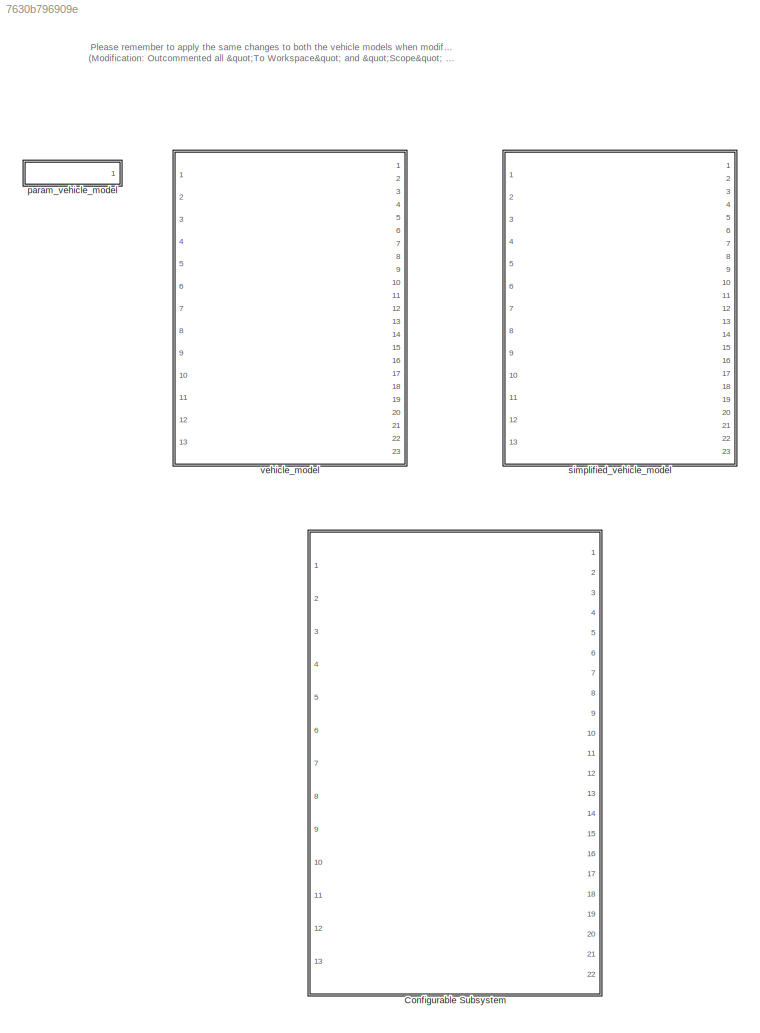
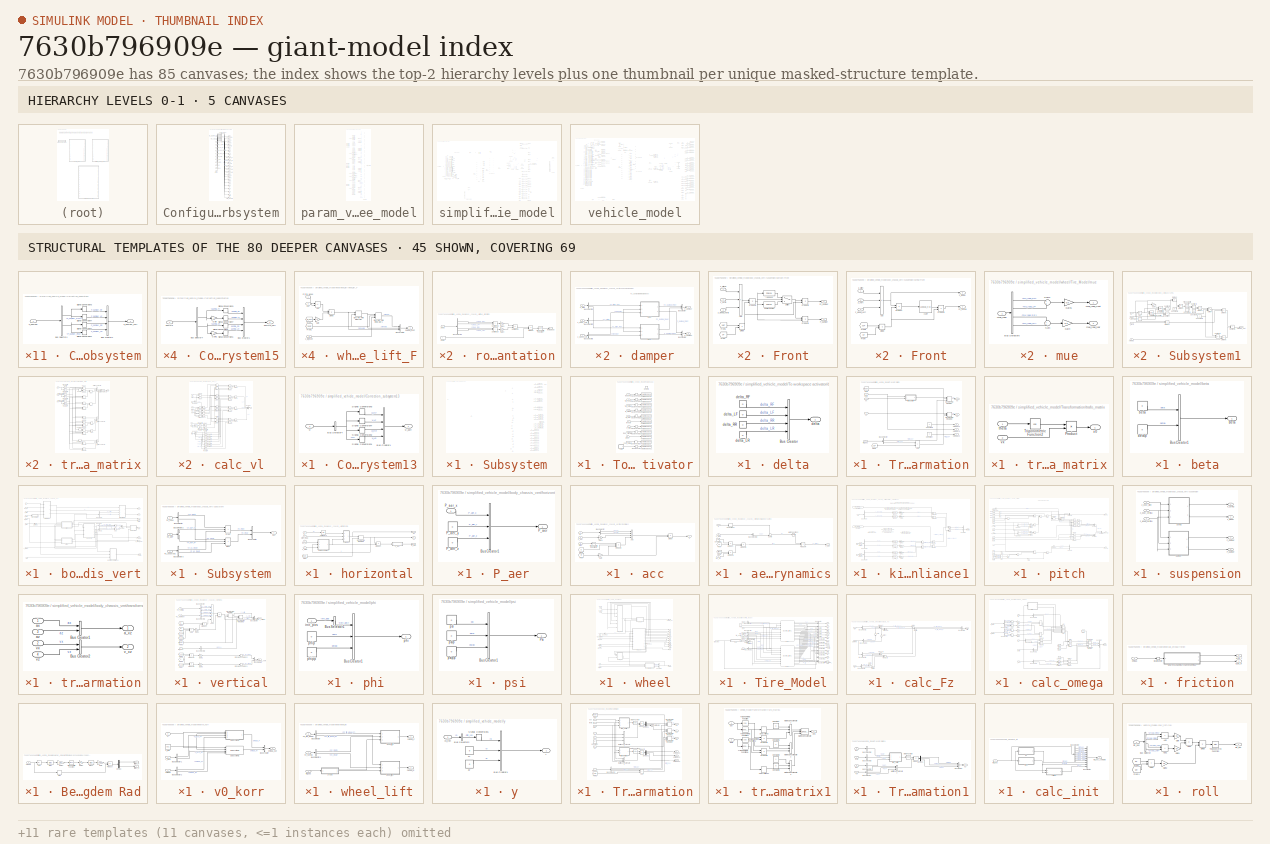
[diagram: thumbnail index - top-2 hierarchy levels (5 canvases) + 45 structural-template representatives of the remaining 80 canvases]
MODEL slx_7630b796909e
KIND library
CONFIG AbsTol = auto
CONFIG EnableMultiTasking = on
CONFIG FixedStep = auto
CONFIG MaxStep = auto
CONFIG MinStep = auto
CONFIG RelTol = 1e-3
CONFIG SampleTimeConstraint = Unconstrained
CONFIG SolverName = ode45
CONFIG StartTime = 0.0
CONFIG StopTime = 10.0
BLOCK [SubSystem] Configurable Subsystem
  BlockChoice = vehicle_model
  MemberBlocks = simplified_vehicle_model,vehicle_model
  Ports = [13, 22]
  RequestExecContextInheritance = off
  TemplateBlock = self
BLOCK [Inport] Configurable Subsystem/ENV_rho_air
  Port = 5
BLOCK [Inport] Configurable Subsystem/ENV_road_mu
  Port = 7
BLOCK [Inport] Configurable Subsystem/ENV_road_orientation
  Port = 6
BLOCK [Inport] Configurable Subsystem/ENV_v_wind
  Port = 4
BLOCK [Outport] Configurable Subsystem/F0
  Port = 20
  VectorParamsAs1DForOutWhenUnconnected = off
BLOCK [Inport] Configurable Subsystem/FZG_Parameter
  Port = 3
BLOCK [Outport] Configurable Subsystem/FZG_beta
  Port = 10
  VectorParamsAs1DForOutWhenUnconnected = off
BLOCK [Inport] Configurable Subsystem/FZG_delta
  Port = 8
BLOCK [Outport] Configurable Subsystem/FZG_omega
  VectorParamsAs1DForOutWhenUnconnected = off
BLOCK [Outport] Configurable Subsystem/FZG_phi
  Port = 2
  VectorParamsAs1DForOutWhenUnconnected = off
BLOCK [Outport] Configurable Subsystem/FZG_psi
  Port = 3
  VectorParamsAs1DForOutWhenUnconnected = off
BLOCK [Outport] Configurable Subsystem/FZG_rot_0
  Port = 14
  VectorParamsAs1DForOutWhenUnconnected = off
BLOCK [Outport] Configurable Subsystem/FZG_theta
  Port = 4
  VectorParamsAs1DForOutWhenUnconnected = off
BLOCK [Outport] Configurable Subsystem/FZG_wheel_Fl
  Port = 8
  VectorParamsAs1DForOutWhenUnconnected = off
BLOCK [Outport] Configurable Subsystem/FZG_wheel_Fs
  Port = 11
  VectorParamsAs1DForOutWhenUnconnected = off
BLOCK [Outport] Configurable Subsystem/FZG_wheel_Mh
  Port = 13
  VectorParamsAs1DForOutWhenUnconnected = off
BLOCK [Outport] Configurable Subsystem/FZG_wheel_Ml
  Port = 9
  VectorParamsAs1DForOutWhenUnconnected = off
BLOCK [Outport] Configurable Subsystem/FZG_wheel_Ms
  Port = 12
  VectorParamsAs1DForOutWhenUnconnected = off
BLOCK [Outport] Configurable Subsystem/FZG_x
  Port = 5
  VectorParamsAs1DForOutWhenUnconnected = off
BLOCK [Outport] Configurable Subsystem/FZG_y
  Port = 6
  VectorParamsAs1DForOutWhenUnconnected = off
BLOCK [Outport] Configurable Subsystem/FZG_z
  Port = 7
  VectorParamsAs1DForOutWhenUnconnected = off
BLOCK [Outport] Configurable Subsystem/Fz
  Port = 18
  VectorParamsAs1DForOutWhenUnconnected = off
BLOCK [Inport] Configurable Subsystem/M_antr
  Port = 9
BLOCK [Inport] Configurable Subsystem/M_brems
  Port = 10
BLOCK [Inport] Configurable Subsystem/TIR_parameter
BLOCK [Inport] Configurable Subsystem/TIR_scale
  Port = 2
BLOCK [Inport] Configurable Subsystem/delta_h
  Port = 13
BLOCK [Outport] Configurable Subsystem/delta_kinematic
  Port = 22
BLOCK [Inport] Configurable Subsystem/init_pos
  Port = 12
BLOCK [Outport] Configurable Subsystem/kappa
  Port = 16
  VectorParamsAs1DForOutWhenUnconnected = off
BLOCK [Outport] Configurable Subsystem/r_dyn
  Port = 17
  VectorParamsAs1DForOutWhenUnconnected = off
BLOCK [Outport] Configurable Subsystem/r_stat
  Port = 21
  VectorParamsAs1DForOutWhenUnconnected = off
BLOCK [Inport] Configurable Subsystem/reset
  Port = 11
BLOCK [Reference] Configurable Subsystem/vehicle_model  REF=$bdroot/vehicle_model
  Ports = [13, 23]
  SourceBlock = $bdroot/vehicle_model
  SourceType = SubSystem
BLOCK [Outport] Configurable Subsystem/vl
  Port = 19
  VectorParamsAs1DForOutWhenUnconnected = off
BLOCK [Outport] Configurable Subsystem/z_wheel
  Port = 15
  VectorParamsAs1DForOutWhenUnconnected = off
BLOCK [SubSystem] param_vehicle_model
  Ports = [0, 1]
  RequestExecContextInheritance = off
BLOCK [BusCreator] param_vehicle_model/Bus Creator
  DisplayOption = bar
  InheritFromInputs = on
  Inputs = 49
  Ports = [49, 1]
BLOCK [Constant] param_vehicle_model/Constant
  Value = par_VEH.m
BLOCK [Constant] param_vehicle_model/Constant1
  Value = par_VEH.cz
BLOCK [Constant] param_vehicle_model/Constant10
  Value = par_VEH.sF
BLOCK [Constant] param_vehicle_model/Constant11
  Value = par_VEH.sR
BLOCK [Constant] param_vehicle_model/Constant12
  Value = par_VEH.ssF
BLOCK [Constant] param_vehicle_model/Constant13
  Value = par_VEH.ssR
BLOCK [Constant] param_vehicle_model/Constant16
  Value = par_VEH.sdF
BLOCK [Constant] param_vehicle_model/Constant17
  Value = par_VEH.sdR
BLOCK [Constant] param_vehicle_model/Constant20
  Value = par_VEH.carbF
BLOCK [Constant] param_vehicle_model/Constant21
  Value = par_VEH.carbR
BLOCK [Constant] param_vehicle_model/Constant22
  Value = par_VEH.sDP
BLOCK [Constant] param_vehicle_model/Constant23
  Value = par_VEH.lDP
BLOCK [Constant] param_vehicle_model/Constant24
  Value = par_VEH.lF
BLOCK [Constant] param_vehicle_model/Constant25
  Value = par_VEH.lR
BLOCK [Constant] param_vehicle_model/Constant28
  Value = par_VEH.g
BLOCK [Constant] param_vehicle_model/Constant29
  Value = par_VEH.Iwf
BLOCK [Constant] param_vehicle_model/Constant3
  Value = par_VEH.Ix
BLOCK [Constant] param_vehicle_model/Constant30
  Value = par_VEH.Iwr
BLOCK [Constant] param_vehicle_model/Constant31
  Value = par_VEH.cx
BLOCK [Constant] param_vehicle_model/Constant32
  Value = par_VEH.Afront
BLOCK [Constant] param_vehicle_model/Constant34
  Value = par_VEH.cy
BLOCK [Constant] param_vehicle_model/Constant37
  Value = par_VEH.m_usF
BLOCK [Constant] param_vehicle_model/Constant38
  Value = par_VEH.m_usR
BLOCK [Constant] param_vehicle_model/Constant4
  Value = par_VEH.Iy
BLOCK [Constant] param_vehicle_model/Constant41
  Value = par_VEH.zRC
BLOCK [Constant] param_vehicle_model/Constant42
  Value = par_VEH.zRCf
BLOCK [Constant] param_vehicle_model/Constant43
  Value = par_VEH.zRCr
BLOCK [Constant] param_vehicle_model/Constant44
  Value = par_VEH.zPC
BLOCK [Constant] param_vehicle_model/Constant47
  Value = par_VEH.sarbF
BLOCK [Constant] param_vehicle_model/Constant48
  Value = par_VEH.sarbR
BLOCK [Constant] param_vehicle_model/Constant49
  Value = par_VEH.sw_kinematics
BLOCK [Constant] param_vehicle_model/Constant5
  Value = par_VEH.Iz
BLOCK [Constant] param_vehicle_model/Constant50
  Value = par_VEH.sw_compliance
BLOCK [Constant] param_vehicle_model/Constant6
  Value = par_VEH.xSP
BLOCK [Constant] param_vehicle_model/Constant7
  Value = par_VEH.ySP
BLOCK [Constant] param_vehicle_model/Constant8
  Value = par_VEH.zSP
BLOCK [Constant] param_vehicle_model/Constant9
  Value = par_VEH.l
BLOCK [Outport] param_vehicle_model/FZG_parameter
  VectorParamsAs1DForOutWhenUnconnected = off
BLOCK [Ground] param_vehicle_model/Ground1
BLOCK [Ground] param_vehicle_model/Ground10
BLOCK [Ground] param_vehicle_model/Ground2
BLOCK [Ground] param_vehicle_model/Ground3
BLOCK [Ground] param_vehicle_model/Ground4
BLOCK [Ground] param_vehicle_model/Ground5
BLOCK [Ground] param_vehicle_model/Ground6
BLOCK [Ground] param_vehicle_model/Ground7
BLOCK [Ground] param_vehicle_model/Ground77
BLOCK [Ground] param_vehicle_model/Ground78
BLOCK [Ground] param_vehicle_model/Ground8
BLOCK [Ground] param_vehicle_model/Ground9
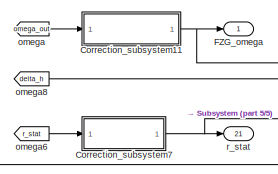
[diagram: simplified_vehicle_model - part 1/5, top right region]
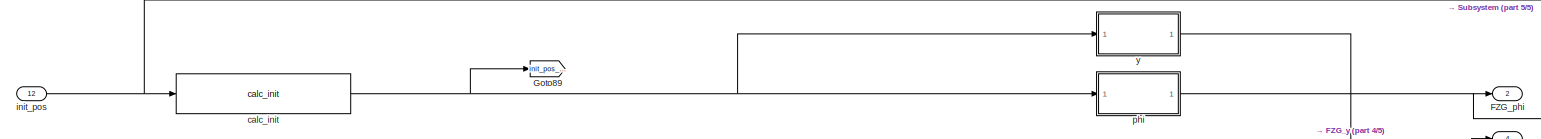
[diagram: simplified_vehicle_model - part 2/5, top center region]
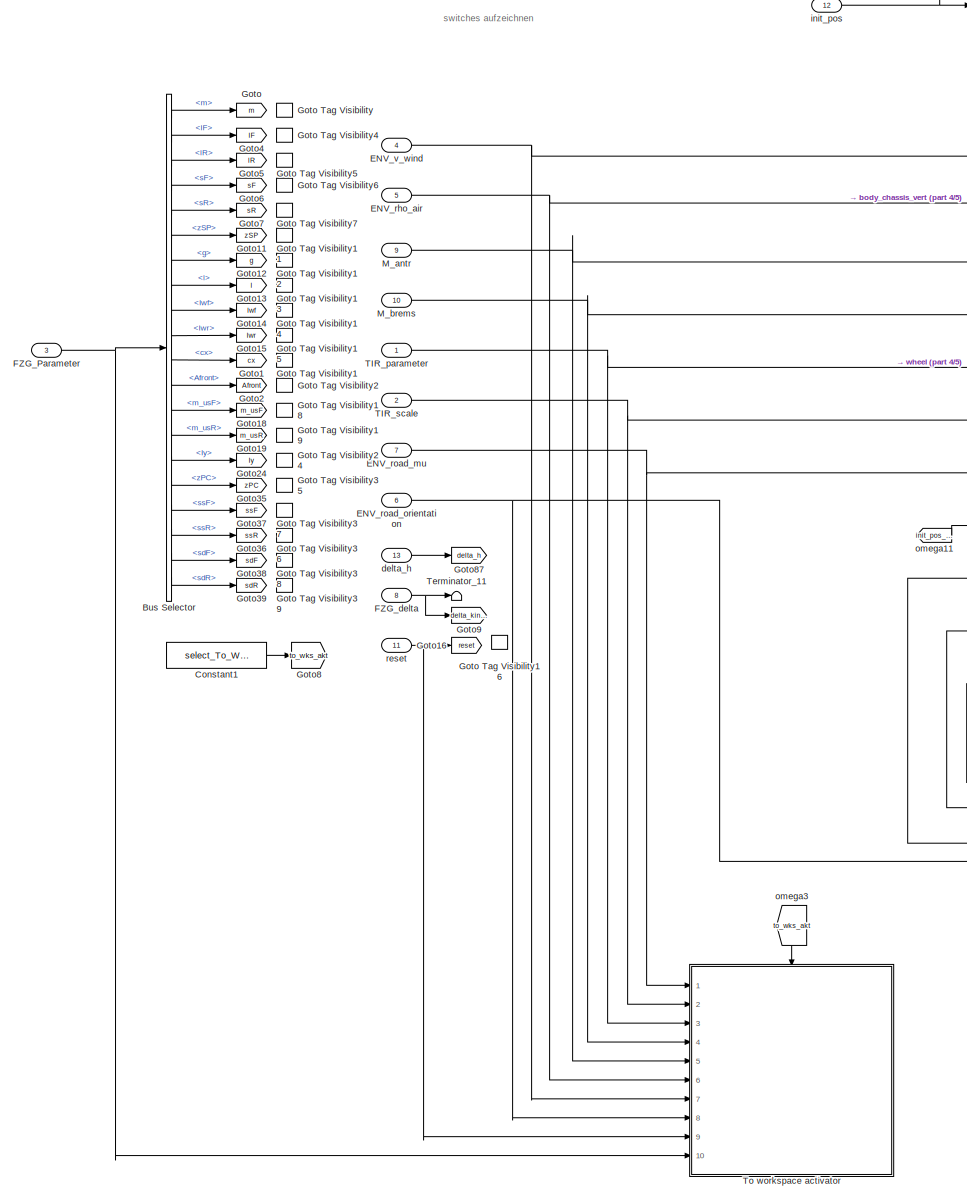
[diagram: simplified_vehicle_model - part 3/5, left side, full height]
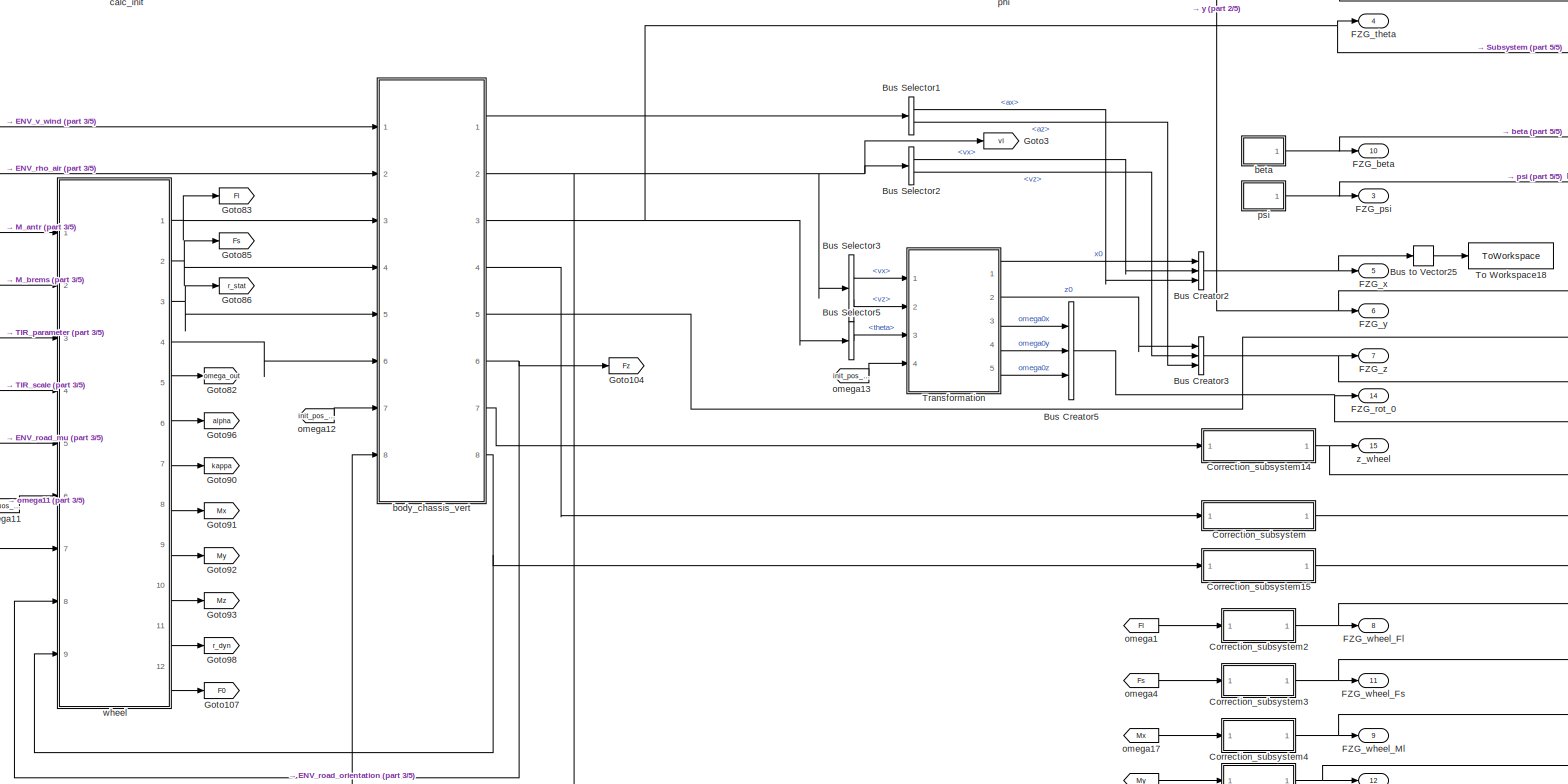
[diagram: simplified_vehicle_model - part 4/5, central region]
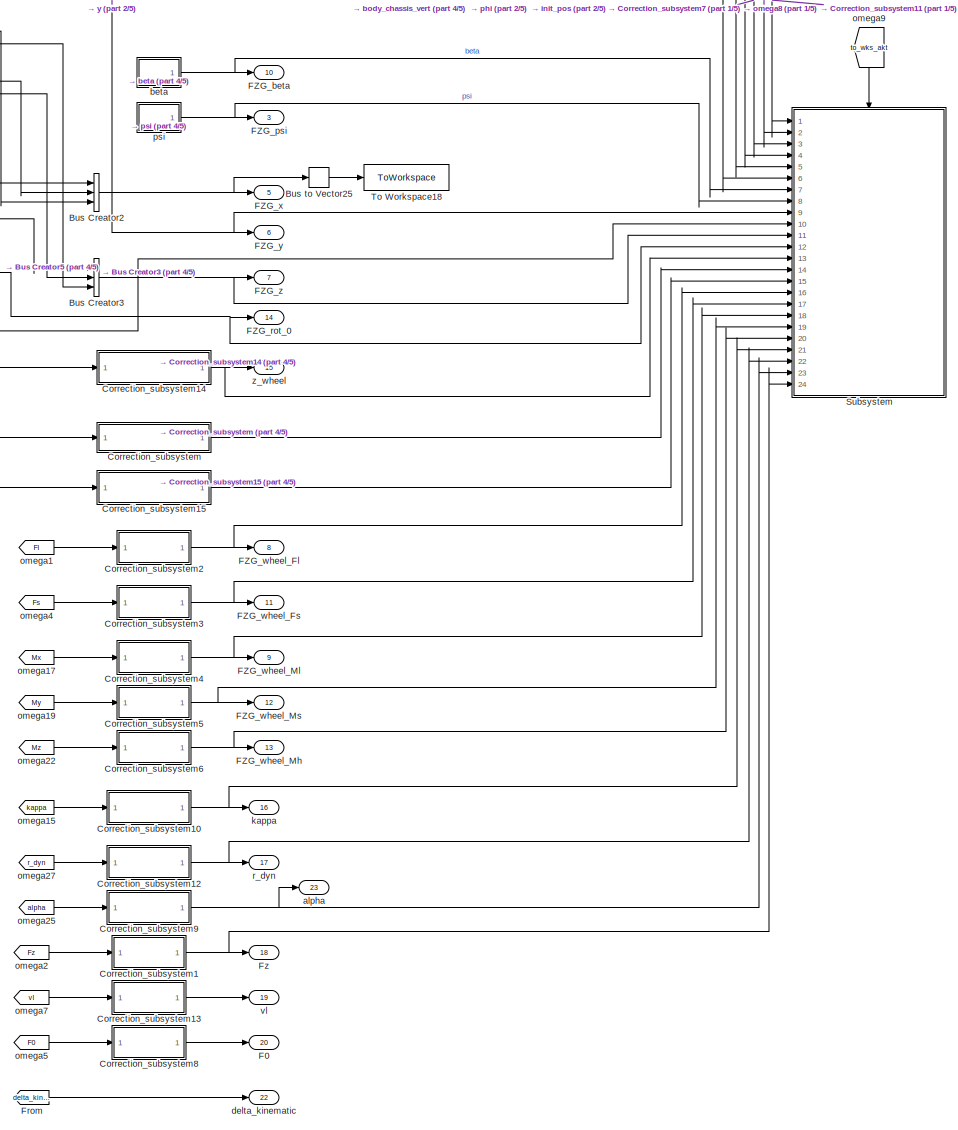
[diagram: simplified_vehicle_model - part 5/5, right side, full height]
BLOCK [SubSystem] simplified_vehicle_model
  MinAlgLoopOccurrences = on
  Ports = [13, 23]
  RequestExecContextInheritance = off
  SystemSampleTime = stepsize
  TreatAsAtomicUnit = on
BLOCK [BusCreator] simplified_vehicle_model/Bus Creator2
  DisplayOption = bar
  InheritFromInputs = on
  Inputs = 3
  Ports = [3, 1]
BLOCK [BusCreator] simplified_vehicle_model/Bus Creator3
  DisplayOption = bar
  InheritFromInputs = on
  Inputs = 3
  Ports = [3, 1]
BLOCK [BusCreator] simplified_vehicle_model/Bus Creator5
  DisplayOption = bar
  InheritFromInputs = on
  Inputs = 3
  Ports = [3, 1]
BLOCK [BusSelector] simplified_vehicle_model/Bus Selector
  OutputSignals = m,lF,lR,sF,sR,zSP,g,l,Iwf,Iwr,cx,Afront,m_usF,m_usR,Iy,zPC,ssF,ssR,sdF,sdR
  Ports = [1, 20]
BLOCK [BusSelector] simplified_vehicle_model/Bus Selector1
  OutputSignals = ax,az
  Ports = [1, 2]
BLOCK [BusSelector] simplified_vehicle_model/Bus Selector2
  OutputSignals = vx,vz
  Ports = [1, 2]
BLOCK [BusSelector] simplified_vehicle_model/Bus Selector3
  OutputSignals = vx,vz
  Ports = [1, 2]
BLOCK [BusSelector] simplified_vehicle_model/Bus Selector5
  OutputSignals = theta
  Ports = [1, 1]
BLOCK [BusToVector] simplified_vehicle_model/Bus to Vector25
BLOCK [Constant] simplified_vehicle_model/Constant1
  Value = select_To_Wks_akt
BLOCK [SubSystem] simplified_vehicle_model/Correction_subsystem
  Ports = [1, 1]
  RequestExecContextInheritance = off
BLOCK [BusCreator] simplified_vehicle_model/Correction_subsystem/Bus Creator1
  DisplayOption = bar
  InheritFromInputs = on
  Inputs = 4
  Ports = [4, 1]
BLOCK [BusSelector] simplified_vehicle_model/Correction_subsystem/Bus Selector4
  OutputSignals = P_damper_Front,P_damper_Rear
  Ports = [1, 2]
BLOCK [Inport] simplified_vehicle_model/Correction_subsystem/P_damper
BLOCK [Outport] simplified_vehicle_model/Correction_subsystem/P_damper_korr
  VectorParamsAs1DForOutWhenUnconnected = off
BLOCK [SignalConversion] simplified_vehicle_model/Correction_subsystem/Signal Conversion1
  OverrideOpt = off
BLOCK [SignalConversion] simplified_vehicle_model/Correction_subsystem/Signal Conversion2
  OverrideOpt = off
BLOCK [SignalConversion] simplified_vehicle_model/Correction_subsystem/Signal Conversion3
  OverrideOpt = off
BLOCK [SignalConversion] simplified_vehicle_model/Correction_subsystem/Signal Conversion7
  OverrideOpt = off
BLOCK [SubSystem] simplified_vehicle_model/Correction_subsystem1
  Ports = [1, 1]
  RequestExecContextInheritance = off
BLOCK [BusCreator] simplified_vehicle_model/Correction_subsystem1/Bus Creator1
  DisplayOption = bar
  InheritFromInputs = on
  Inputs = 4
  Ports = [4, 1]
BLOCK [BusSelector] simplified_vehicle_model/Correction_subsystem1/Bus Selector4
  OutputSignals = Fz_Front,Fz_Rear
  Ports = [1, 2]
BLOCK [Inport] simplified_vehicle_model/Correction_subsystem1/Fz
BLOCK [Outport] simplified_vehicle_model/Correction_subsystem1/Fz_korr
  VectorParamsAs1DForOutWhenUnconnected = off
BLOCK [SignalConversion] simplified_vehicle_model/Correction_subsystem1/Signal Conversion1
  OverrideOpt = off
BLOCK [SignalConversion] simplified_vehicle_model/Correction_subsystem1/Signal Conversion2
  OverrideOpt = off
BLOCK [SignalConversion] simplified_vehicle_model/Correction_subsystem1/Signal Conversion3
  OverrideOpt = off
BLOCK [SignalConversion] simplified_vehicle_model/Correction_subsystem1/Signal Conversion7
  OverrideOpt = off
BLOCK [SubSystem] simplified_vehicle_model/Correction_subsystem10
  Ports = [1, 1]
  RequestExecContextInheritance = off
BLOCK [BusCreator] simplified_vehicle_model/Correction_subsystem10/Bus Creator1
  DisplayOption = bar
  InheritFromInputs = on
  Inputs = 4
  Ports = [4, 1]
BLOCK [BusSelector] simplified_vehicle_model/Correction_subsystem10/Bus Selector4
  OutputSignals = kappa_F,kappa_R
  Ports = [1, 2]
BLOCK [SignalConversion] simplified_vehicle_model/Correction_subsystem10/Signal Conversion1
  OverrideOpt = off
BLOCK [SignalConversion] simplified_vehicle_model/Correction_subsystem10/Signal Conversion2
  OverrideOpt = off
BLOCK [SignalConversion] simplified_vehicle_model/Correction_subsystem10/Signal Conversion3
  OverrideOpt = off
BLOCK [SignalConversion] simplified_vehicle_model/Correction_subsystem10/Signal Conversion7
  OverrideOpt = off
BLOCK [Inport] simplified_vehicle_model/Correction_subsystem10/kappa
BLOCK [Outport] simplified_vehicle_model/Correction_subsystem10/kappa_korr
  VectorParamsAs1DForOutWhenUnconnected = off
BLOCK [SubSystem] simplified_vehicle_model/Correction_subsystem11
  Ports = [1, 1]
  RequestExecContextInheritance = off
BLOCK [BusCreator] simplified_vehicle_model/Correction_subsystem11/Bus Creator1
  DisplayOption = bar
  InheritFromInputs = on
  Inputs = 4
  Ports = [4, 1]
BLOCK [BusSelector] simplified_vehicle_model/Correction_subsystem11/Bus Selector4
  OutputSignals = omega_F,omega_R
  Ports = [1, 2]
BLOCK [SignalConversion] simplified_vehicle_model/Correction_subsystem11/Signal Conversion1
  OverrideOpt = off
BLOCK [SignalConversion] simplified_vehicle_model/Correction_subsystem11/Signal Conversion2
  OverrideOpt = off
BLOCK [SignalConversion] simplified_vehicle_model/Correction_subsystem11/Signal Conversion3
  OverrideOpt = off
BLOCK [SignalConversion] simplified_vehicle_model/Correction_subsystem11/Signal Conversion7
  OverrideOpt = off
BLOCK [Inport] simplified_vehicle_model/Correction_subsystem11/omega
BLOCK [Outport] simplified_vehicle_model/Correction_subsystem11/omega_korr
  VectorParamsAs1DForOutWhenUnconnected = off
BLOCK [SubSystem] simplified_vehicle_model/Correction_subsystem12
  Ports = [1, 1]
  RequestExecContextInheritance = off
BLOCK [BusCreator] simplified_vehicle_model/Correction_subsystem12/Bus Creator1
  DisplayOption = bar
  InheritFromInputs = on
  Inputs = 4
  Ports = [4, 1]
BLOCK [BusSelector] simplified_vehicle_model/Correction_subsystem12/Bus Selector4
  OutputSignals = r_dyn_F,r_dyn_R
  Ports = [1, 2]
BLOCK [SignalConversion] simplified_vehicle_model/Correction_subsystem12/Signal Conversion1
  OverrideOpt = off
BLOCK [SignalConversion] simplified_vehicle_model/Correction_subsystem12/Signal Conversion2
  OverrideOpt = off
BLOCK [SignalConversion] simplified_vehicle_model/Correction_subsystem12/Signal Conversion3
  OverrideOpt = off
BLOCK [SignalConversion] simplified_vehicle_model/Correction_subsystem12/Signal Conversion7
  OverrideOpt = off
BLOCK [Inport] simplified_vehicle_model/Correction_subsystem12/r_dyn
BLOCK [Outport] simplified_vehicle_model/Correction_subsystem12/r_dyn_korr
  VectorParamsAs1DForOutWhenUnconnected = off
BLOCK [SubSystem] simplified_vehicle_model/Correction_subsystem13
  Ports = [1, 1]
  RequestExecContextInheritance = off
BLOCK [BusCreator] simplified_vehicle_model/Correction_subsystem13/Bus Creator1
  DisplayOption = bar
  InheritFromInputs = on
  Inputs = 4
  Ports = [4, 1]
BLOCK [BusSelector] simplified_vehicle_model/Correction_subsystem13/Bus Selector4
  OutputSignals = vx
  Ports = [1, 1]
BLOCK [SignalConversion] simplified_vehicle_model/Correction_subsystem13/Signal Conversion1
  OverrideOpt = off
BLOCK [SignalConversion] simplified_vehicle_model/Correction_subsystem13/Signal Conversion2
  OverrideOpt = off
BLOCK [SignalConversion] simplified_vehicle_model/Correction_subsystem13/Signal Conversion3
  OverrideOpt = off
BLOCK [SignalConversion] simplified_vehicle_model/Correction_subsystem13/Signal Conversion7
  OverrideOpt = off
BLOCK [Inport] simplified_vehicle_model/Correction_subsystem13/vl
BLOCK [Outport] simplified_vehicle_model/Correction_subsystem13/vl_korr
  VectorParamsAs1DForOutWhenUnconnected = off
BLOCK [SubSystem] simplified_vehicle_model/Correction_subsystem14
  Ports = [1, 1]
  RequestExecContextInheritance = off
BLOCK [BusCreator] simplified_vehicle_model/Correction_subsystem14/Bus Creator1
  DisplayOption = bar
  InheritFromInputs = on
  Inputs = 4
  Ports = [4, 1]
BLOCK [BusSelector] simplified_vehicle_model/Correction_subsystem14/Bus Selector4
  OutputSignals = z_wheel_Front,z_wheel_Rear
  Ports = [1, 2]
BLOCK [SignalConversion] simplified_vehicle_model/Correction_subsystem14/Signal Conversion1
  OverrideOpt = off
BLOCK [SignalConversion] simplified_vehicle_model/Correction_subsystem14/Signal Conversion2
  OverrideOpt = off
BLOCK [SignalConversion] simplified_vehicle_model/Correction_subsystem14/Signal Conversion3
  OverrideOpt = off
BLOCK [SignalConversion] simplified_vehicle_model/Correction_subsystem14/Signal Conversion7
  OverrideOpt = off
BLOCK [Inport] simplified_vehicle_model/Correction_subsystem14/z_wheel
BLOCK [Outport] simplified_vehicle_model/Correction_subsystem14/z_wheel_korr
  VectorParamsAs1DForOutWhenUnconnected = off
BLOCK [SubSystem] simplified_vehicle_model/Correction_subsystem15
  Ports = [1, 1]
  RequestExecContextInheritance = off
BLOCK [BusCreator] simplified_vehicle_model/Correction_subsystem15/Bus Creator1
  DisplayOption = bar
  InheritFromInputs = on
  Inputs = 4
  Ports = [4, 1]
BLOCK [BusSelector] simplified_vehicle_model/Correction_subsystem15/Bus Selector4
  OutputSignals = gamma_F,gamma_R
  Ports = [1, 2]
BLOCK [Gain] simplified_vehicle_model/Correction_subsystem15/Gain
  Gain = -1
BLOCK [Gain] simplified_vehicle_model/Correction_subsystem15/Gain1
  Gain = -1
BLOCK [SignalConversion] simplified_vehicle_model/Correction_subsystem15/Signal Conversion1
  OverrideOpt = off
BLOCK [SignalConversion] simplified_vehicle_model/Correction_subsystem15/Signal Conversion2
  OverrideOpt = off
BLOCK [SignalConversion] simplified_vehicle_model/Correction_subsystem15/Signal Conversion3
  OverrideOpt = off
BLOCK [SignalConversion] simplified_vehicle_model/Correction_subsystem15/Signal Conversion7
  OverrideOpt = off
BLOCK [Inport] simplified_vehicle_model/Correction_subsystem15/gamma
BLOCK [Outport] simplified_vehicle_model/Correction_subsystem15/gamma_korr
  VectorParamsAs1DForOutWhenUnconnected = off
BLOCK [SubSystem] simplified_vehicle_model/Correction_subsystem2
  Ports = [1, 1]
  RequestExecContextInheritance = off
BLOCK [BusCreator] simplified_vehicle_model/Correction_subsystem2/Bus Creator1
  DisplayOption = bar
  InheritFromInputs = on
  Inputs = 4
  Ports = [4, 1]
BLOCK [BusSelector] simplified_vehicle_model/Correction_subsystem2/Bus Selector4
  OutputSignals = Fl_F,Fl_R
  Ports = [1, 2]
BLOCK [Inport] simplified_vehicle_model/Correction_subsystem2/Fl
BLOCK [Outport] simplified_vehicle_model/Correction_subsystem2/Fl_korr
  VectorParamsAs1DForOutWhenUnconnected = off
BLOCK [SignalConversion] simplified_vehicle_model/Correction_subsystem2/Signal Conversion1
  OverrideOpt = off
BLOCK [SignalConversion] simplified_vehicle_model/Correction_subsystem2/Signal Conversion2
  OverrideOpt = off
BLOCK [SignalConversion] simplified_vehicle_model/Correction_subsystem2/Signal Conversion3
  OverrideOpt = off
BLOCK [SignalConversion] simplified_vehicle_model/Correction_subsystem2/Signal Conversion7
  OverrideOpt = off
BLOCK [SubSystem] simplified_vehicle_model/Correction_subsystem3
  Ports = [1, 1]
  RequestExecContextInheritance = off
BLOCK [BusCreator] simplified_vehicle_model/Correction_subsystem3/Bus Creator1
  DisplayOption = bar
  InheritFromInputs = on
  Inputs = 4
  Ports = [4, 1]
BLOCK [BusSelector] simplified_vehicle_model/Correction_subsystem3/Bus Selector4
  OutputSignals = Fs_F,Fs_R
  Ports = [1, 2]
BLOCK [Inport] simplified_vehicle_model/Correction_subsystem3/Fs
BLOCK [Outport] simplified_vehicle_model/Correction_subsystem3/Fs_korr
  VectorParamsAs1DForOutWhenUnconnected = off
BLOCK [Gain] simplified_vehicle_model/Correction_subsystem3/Gain
  Gain = -1
BLOCK [Gain] simplified_vehicle_model/Correction_subsystem3/Gain1
  Gain = -1
BLOCK [SignalConversion] simplified_vehicle_model/Correction_subsystem3/Signal Conversion1
  OverrideOpt = off
BLOCK [SignalConversion] simplified_vehicle_model/Correction_subsystem3/Signal Conversion2
  OverrideOpt = off
BLOCK [SignalConversion] simplified_vehicle_model/Correction_subsystem3/Signal Conversion3
  OverrideOpt = off
BLOCK [SignalConversion] simplified_vehicle_model/Correction_subsystem3/Signal Conversion7
  OverrideOpt = off
BLOCK [SubSystem] simplified_vehicle_model/Correction_subsystem4
  Ports = [1, 1]
  RequestExecContextInheritance = off
BLOCK [BusCreator] simplified_vehicle_model/Correction_subsystem4/Bus Creator1
  DisplayOption = bar
  InheritFromInputs = on
  Inputs = 4
  Ports = [4, 1]
BLOCK [BusSelector] simplified_vehicle_model/Correction_subsystem4/Bus Selector4
  OutputSignals = Ml_F,Ml_R
  Ports = [1, 2]
BLOCK [Gain] simplified_vehicle_model/Correction_subsystem4/Gain
  Gain = -1
BLOCK [Gain] simplified_vehicle_model/Correction_subsystem4/Gain1
  Gain = -1
BLOCK [Inport] simplified_vehicle_model/Correction_subsystem4/Mx
BLOCK [Outport] simplified_vehicle_model/Correction_subsystem4/Mx_korr
  VectorParamsAs1DForOutWhenUnconnected = off
BLOCK [SignalConversion] simplified_vehicle_model/Correction_subsystem4/Signal Conversion1
  OverrideOpt = off
BLOCK [SignalConversion] simplified_vehicle_model/Correction_subsystem4/Signal Conversion2
  OverrideOpt = off
BLOCK [SignalConversion] simplified_vehicle_model/Correction_subsystem4/Signal Conversion3
  OverrideOpt = off
BLOCK [SignalConversion] simplified_vehicle_model/Correction_subsystem4/Signal Conversion7
  OverrideOpt = off
BLOCK [SubSystem] simplified_vehicle_model/Correction_subsystem5
  Ports = [1, 1]
  RequestExecContextInheritance = off
BLOCK [BusCreator] simplified_vehicle_model/Correction_subsystem5/Bus Creator1
  DisplayOption = bar
  InheritFromInputs = on
  Inputs = 4
  Ports = [4, 1]
BLOCK [BusSelector] simplified_vehicle_model/Correction_subsystem5/Bus Selector4
  OutputSignals = Ms_F,Ms_R
  Ports = [1, 2]
BLOCK [Inport] simplified_vehicle_model/Correction_subsystem5/My
BLOCK [Outport] simplified_vehicle_model/Correction_subsystem5/My_korr
  VectorParamsAs1DForOutWhenUnconnected = off
BLOCK [SignalConversion] simplified_vehicle_model/Correction_subsystem5/Signal Conversion1
  OverrideOpt = off
BLOCK [SignalConversion] simplified_vehicle_model/Correction_subsystem5/Signal Conversion2
  OverrideOpt = off
BLOCK [SignalConversion] simplified_vehicle_model/Correction_subsystem5/Signal Conversion3
  OverrideOpt = off
BLOCK [SignalConversion] simplified_vehicle_model/Correction_subsystem5/Signal Conversion7
  OverrideOpt = off
BLOCK [SubSystem] simplified_vehicle_model/Correction_subsystem6
  Ports = [1, 1]
  RequestExecContextInheritance = off
BLOCK [BusCreator] simplified_vehicle_model/Correction_subsystem6/Bus Creator1
  DisplayOption = bar
  InheritFromInputs = on
  Inputs = 4
  Ports = [4, 1]
BLOCK [BusSelector] simplified_vehicle_model/Correction_subsystem6/Bus Selector4
  OutputSignals = Mv_F,Mv_R
  Ports = [1, 2]
BLOCK [Gain] simplified_vehicle_model/Correction_subsystem6/Gain
  Gain = -1
BLOCK [Gain] simplified_vehicle_model/Correction_subsystem6/Gain1
  Gain = -1
BLOCK [Inport] simplified_vehicle_model/Correction_subsystem6/Mz
BLOCK [Outport] simplified_vehicle_model/Correction_subsystem6/Mz_korr
  VectorParamsAs1DForOutWhenUnconnected = off
BLOCK [SignalConversion] simplified_vehicle_model/Correction_subsystem6/Signal Conversion1
  OverrideOpt = off
BLOCK [SignalConversion] simplified_vehicle_model/Correction_subsystem6/Signal Conversion2
  OverrideOpt = off
BLOCK [SignalConversion] simplified_vehicle_model/Correction_subsystem6/Signal Conversion3
  OverrideOpt = off
BLOCK [SignalConversion] simplified_vehicle_model/Correction_subsystem6/Signal Conversion7
  OverrideOpt = off
BLOCK [SubSystem] simplified_vehicle_model/Correction_subsystem7
  Ports = [1, 1]
  RequestExecContextInheritance = off
BLOCK [BusCreator] simplified_vehicle_model/Correction_subsystem7/Bus Creator1
  DisplayOption = bar
  InheritFromInputs = on
  Inputs = 4
  Ports = [4, 1]
BLOCK [BusSelector] simplified_vehicle_model/Correction_subsystem7/Bus Selector4
  OutputSignals = r_stat_F,r_stat_R
  Ports = [1, 2]
BLOCK [SignalConversion] simplified_vehicle_model/Correction_subsystem7/Signal Conversion1
  OverrideOpt = off
BLOCK [SignalConversion] simplified_vehicle_model/Correction_subsystem7/Signal Conversion2
  OverrideOpt = off
BLOCK [SignalConversion] simplified_vehicle_model/Correction_subsystem7/Signal Conversion3
  OverrideOpt = off
BLOCK [SignalConversion] simplified_vehicle_model/Correction_subsystem7/Signal Conversion7
  OverrideOpt = off
BLOCK [Inport] simplified_vehicle_model/Correction_subsystem7/r_stat
BLOCK [Outport] simplified_vehicle_model/Correction_subsystem7/r_stat_korr
  VectorParamsAs1DForOutWhenUnconnected = off
BLOCK [SubSystem] simplified_vehicle_model/Correction_subsystem8
  Ports = [1, 1]
  RequestExecContextInheritance = off
BLOCK [BusCreator] simplified_vehicle_model/Correction_subsystem8/Bus Creator1
  DisplayOption = bar
  InheritFromInputs = on
  Inputs = 4
  Ports = [4, 1]
BLOCK [BusSelector] simplified_vehicle_model/Correction_subsystem8/Bus Selector4
  OutputSignals = F,R
  Ports = [1, 2]
BLOCK [Inport] simplified_vehicle_model/Correction_subsystem8/F0
BLOCK [Outport] simplified_vehicle_model/Correction_subsystem8/F0_korr
  VectorParamsAs1DForOutWhenUnconnected = off
BLOCK [SignalConversion] simplified_vehicle_model/Correction_subsystem8/Signal Conversion1
  OverrideOpt = off
BLOCK [SignalConversion] simplified_vehicle_model/Correction_subsystem8/Signal Conversion2
  OverrideOpt = off
BLOCK [SignalConversion] simplified_vehicle_model/Correction_subsystem8/Signal Conversion3
  OverrideOpt = off
BLOCK [SignalConversion] simplified_vehicle_model/Correction_subsystem8/Signal Conversion7
  OverrideOpt = off
BLOCK [SubSystem] simplified_vehicle_model/Correction_subsystem9
  Ports = [1, 1]
  RequestExecContextInheritance = off
BLOCK [BusCreator] simplified_vehicle_model/Correction_subsystem9/Bus Creator1
  DisplayOption = bar
  InheritFromInputs = on
  Inputs = 4
  Ports = [4, 1]
BLOCK [BusSelector] simplified_vehicle_model/Correction_subsystem9/Bus Selector4
  OutputSignals = alpha_F,alpha_R
  Ports = [1, 2]
BLOCK [SignalConversion] simplified_vehicle_model/Correction_subsystem9/Signal Conversion1
  OverrideOpt = off
BLOCK [SignalConversion] simplified_vehicle_model/Correction_subsystem9/Signal Conversion2
  OverrideOpt = off
BLOCK [SignalConversion] simplified_vehicle_model/Correction_subsystem9/Signal Conversion3
  OverrideOpt = off
BLOCK [SignalConversion] simplified_vehicle_model/Correction_subsystem9/Signal Conversion7
  OverrideOpt = off
BLOCK [Inport] simplified_vehicle_model/Correction_subsystem9/alpha
BLOCK [Outport] simplified_vehicle_model/Correction_subsystem9/alpha_korr
  VectorParamsAs1DForOutWhenUnconnected = off
BLOCK [Inport] simplified_vehicle_model/ENV_rho_air
  Port = 5
BLOCK [Inport] simplified_vehicle_model/ENV_road_mu
  Port = 7
BLOCK [Inport] simplified_vehicle_model/ENV_road_orientation
  Port = 6
BLOCK [Inport] simplified_vehicle_model/ENV_v_wind
  Port = 4
BLOCK [Outport] simplified_vehicle_model/F0
  Port = 20
  VectorParamsAs1DForOutWhenUnconnected = off
BLOCK [Inport] simplified_vehicle_model/FZG_Parameter
  Port = 3
BLOCK [Outport] simplified_vehicle_model/FZG_beta
  Port = 10
  VectorParamsAs1DForOutWhenUnconnected = off
BLOCK [Inport] simplified_vehicle_model/FZG_delta
  Port = 8
BLOCK [Outport] simplified_vehicle_model/FZG_omega
  VectorParamsAs1DForOutWhenUnconnected = off
BLOCK [Outport] simplified_vehicle_model/FZG_phi
  Port = 2
  VectorParamsAs1DForOutWhenUnconnected = off
BLOCK [Outport] simplified_vehicle_model/FZG_psi
  Port = 3
  VectorParamsAs1DForOutWhenUnconnected = off
BLOCK [Outport] simplified_vehicle_model/FZG_rot_0
  Port = 14
  VectorParamsAs1DForOutWhenUnconnected = off
BLOCK [Outport] simplified_vehicle_model/FZG_theta
  Port = 4
  VectorParamsAs1DForOutWhenUnconnected = off
BLOCK [Outport] simplified_vehicle_model/FZG_wheel_Fl
  Port = 8
  VectorParamsAs1DForOutWhenUnconnected = off
BLOCK [Outport] simplified_vehicle_model/FZG_wheel_Fs
  Port = 11
  VectorParamsAs1DForOutWhenUnconnected = off
BLOCK [Outport] simplified_vehicle_model/FZG_wheel_Mh
  Port = 13
  VectorParamsAs1DForOutWhenUnconnected = off
BLOCK [Outport] simplified_vehicle_model/FZG_wheel_Ml
  Port = 9
  VectorParamsAs1DForOutWhenUnconnected = off
BLOCK [Outport] simplified_vehicle_model/FZG_wheel_Ms
  Port = 12
  VectorParamsAs1DForOutWhenUnconnected = off
BLOCK [Outport] simplified_vehicle_model/FZG_x
  Port = 5
  PortDimensions = 3
  VectorParamsAs1DForOutWhenUnconnected = off
BLOCK [Outport] simplified_vehicle_model/FZG_y
  Port = 6
  VectorParamsAs1DForOutWhenUnconnected = off
BLOCK [Outport] simplified_vehicle_model/FZG_z
  Port = 7
  VectorParamsAs1DForOutWhenUnconnected = off
BLOCK [From] simplified_vehicle_model/From
  GotoTag = delta_kinematic
BLOCK [Outport] simplified_vehicle_model/Fz
  Port = 18
  VectorParamsAs1DForOutWhenUnconnected = off
BLOCK [Goto] simplified_vehicle_model/Goto
  GotoTag = m
  TagVisibility = scoped
BLOCK [GotoTagVisibility] simplified_vehicle_model/Goto Tag Visibility
  GotoTag = m
BLOCK [GotoTagVisibility] simplified_vehicle_model/Goto Tag Visibility1
  GotoTag = cx
BLOCK [GotoTagVisibility] simplified_vehicle_model/Goto Tag Visibility11
  GotoTag = zSP
BLOCK [GotoTagVisibility] simplified_vehicle_model/Goto Tag Visibility12
  GotoTag = g
BLOCK [GotoTagVisibility] simplified_vehicle_model/Goto Tag Visibility13
  GotoTag = l
BLOCK [GotoTagVisibility] simplified_vehicle_model/Goto Tag Visibility14
  GotoTag = Iwf
BLOCK [GotoTagVisibility] simplified_vehicle_model/Goto Tag Visibility15
  GotoTag = Iwr
BLOCK [GotoTagVisibility] simplified_vehicle_model/Goto Tag Visibility16
  GotoTag = reset
BLOCK [GotoTagVisibility] simplified_vehicle_model/Goto Tag Visibility18
  GotoTag = m_usF
BLOCK [GotoTagVisibility] simplified_vehicle_model/Goto Tag Visibility19
  GotoTag = m_usR
BLOCK [GotoTagVisibility] simplified_vehicle_model/Goto Tag Visibility2
  GotoTag = Afront
BLOCK [GotoTagVisibility] simplified_vehicle_model/Goto Tag Visibility24
  GotoTag = Iy
BLOCK [GotoTagVisibility] simplified_vehicle_model/Goto Tag Visibility35
  GotoTag = zPC
BLOCK [GotoTagVisibility] simplified_vehicle_model/Goto Tag Visibility36
  GotoTag = ssR
BLOCK [GotoTagVisibility] simplified_vehicle_model/Goto Tag Visibility37
  GotoTag = ssF
BLOCK [GotoTagVisibility] simplified_vehicle_model/Goto Tag Visibility38
  GotoTag = sdF
BLOCK [GotoTagVisibility] simplified_vehicle_model/Goto Tag Visibility39
  GotoTag = sdR
BLOCK [GotoTagVisibility] simplified_vehicle_model/Goto Tag Visibility4
  GotoTag = lF
BLOCK [GotoTagVisibility] simplified_vehicle_model/Goto Tag Visibility5
  GotoTag = lR
BLOCK [GotoTagVisibility] simplified_vehicle_model/Goto Tag Visibility6
  GotoTag = sF
BLOCK [GotoTagVisibility] simplified_vehicle_model/Goto Tag Visibility7
  GotoTag = sR
BLOCK [Goto] simplified_vehicle_model/Goto1
  GotoTag = cx
  TagVisibility = scoped
BLOCK [Goto] simplified_vehicle_model/Goto104
  GotoTag = Fz
BLOCK [Goto] simplified_vehicle_model/Goto107
  GotoTag = F0
BLOCK [Goto] simplified_vehicle_model/Goto11
  GotoTag = zSP
  TagVisibility = scoped
BLOCK [Goto] simplified_vehicle_model/Goto12
  GotoTag = g
  TagVisibility = scoped
BLOCK [Goto] simplified_vehicle_model/Goto13
  GotoTag = l
  TagVisibility = scoped
BLOCK [Goto] simplified_vehicle_model/Goto14
  GotoTag = Iwf
  TagVisibility = scoped
BLOCK [Goto] simplified_vehicle_model/Goto15
  GotoTag = Iwr
  TagVisibility = scoped
BLOCK [Goto] simplified_vehicle_model/Goto16
  GotoTag = reset
  TagVisibility = scoped
BLOCK [Goto] simplified_vehicle_model/Goto18
  GotoTag = m_usF
  TagVisibility = scoped
BLOCK [Goto] simplified_vehicle_model/Goto19
  GotoTag = m_usR
  TagVisibility = scoped
BLOCK [Goto] simplified_vehicle_model/Goto2
  GotoTag = Afront
  TagVisibility = scoped
BLOCK [Goto] simplified_vehicle_model/Goto24
  GotoTag = Iy
  TagVisibility = scoped
BLOCK [Goto] simplified_vehicle_model/Goto3
  GotoTag = vl
BLOCK [Goto] simplified_vehicle_model/Goto35
  GotoTag = zPC
  TagVisibility = scoped
BLOCK [Goto] simplified_vehicle_model/Goto36
  GotoTag = ssR
  TagVisibility = scoped
BLOCK [Goto] simplified_vehicle_model/Goto37
  GotoTag = ssF
  TagVisibility = scoped
BLOCK [Goto] simplified_vehicle_model/Goto38
  GotoTag = sdF
  TagVisibility = scoped
BLOCK [Goto] simplified_vehicle_model/Goto39
  GotoTag = sdR
  TagVisibility = scoped
BLOCK [Goto] simplified_vehicle_model/Goto4
  GotoTag = lF
  TagVisibility = scoped
BLOCK [Goto] simplified_vehicle_model/Goto5
  GotoTag = lR
  TagVisibility = scoped
BLOCK [Goto] simplified_vehicle_model/Goto6
  GotoTag = sF
  TagVisibility = scoped
BLOCK [Goto] simplified_vehicle_model/Goto7
  GotoTag = sR
  TagVisibility = scoped
BLOCK [Goto] simplified_vehicle_model/Goto8
  GotoTag = to_wks_akt
BLOCK [Goto] simplified_vehicle_model/Goto82
  GotoTag = omega_out
BLOCK [Goto] simplified_vehicle_model/Goto83
  GotoTag = Fl
BLOCK [Goto] simplified_vehicle_model/Goto85
  GotoTag = Fs
BLOCK [Goto] simplified_vehicle_model/Goto86
  GotoTag = r_stat
BLOCK [Goto] simplified_vehicle_model/Goto87
  GotoTag = delta_h
BLOCK [Goto] simplified_vehicle_model/Goto89
  GotoTag = init_pos_complete
BLOCK [Goto] simplified_vehicle_model/Goto9
  GotoTag = delta_kinematic
BLOCK [Goto] simplified_vehicle_model/Goto90
  GotoTag = kappa
BLOCK [Goto] simplified_vehicle_model/Goto91
  GotoTag = Mx
BLOCK [Goto] simplified_vehicle_model/Goto92
  GotoTag = My
BLOCK [Goto] simplified_vehicle_model/Goto93
  GotoTag = Mz
BLOCK [Goto] simplified_vehicle_model/Goto96
  GotoTag = alpha
BLOCK [Goto] simplified_vehicle_model/Goto98
  GotoTag = r_dyn
BLOCK [Inport] simplified_vehicle_model/M_antr
  Port = 9
  PortDimensions = 4
BLOCK [Inport] simplified_vehicle_model/M_brems
  Port = 10
  PortDimensions = 4
BLOCK [SubSystem] simplified_vehicle_model/Subsystem
  Ports = [24, 0, 1]
  RequestExecContextInheritance = off
BLOCK [BusToVector] simplified_vehicle_model/Subsystem/Bus to Vector1
BLOCK [BusToVector] simplified_vehicle_model/Subsystem/Bus to Vector16
BLOCK [BusToVector] simplified_vehicle_model/Subsystem/Bus to Vector17
BLOCK [BusToVector] simplified_vehicle_model/Subsystem/Bus to Vector18
BLOCK [BusToVector] simplified_vehicle_model/Subsystem/Bus to Vector19
BLOCK [BusToVector] simplified_vehicle_model/Subsystem/Bus to Vector2
BLOCK [BusToVector] simplified_vehicle_model/Subsystem/Bus to Vector20
BLOCK [BusToVector] simplified_vehicle_model/Subsystem/Bus to Vector21
BLOCK [BusToVector] simplified_vehicle_model/Subsystem/Bus to Vector22
BLOCK [BusToVector] simplified_vehicle_model/Subsystem/Bus to Vector23
BLOCK [BusToVector] simplified_vehicle_model/Subsystem/Bus to Vector24
BLOCK [BusToVector] simplified_vehicle_model/Subsystem/Bus to Vector28
BLOCK [BusToVector] simplified_vehicle_model/Subsystem/Bus to Vector3
BLOCK [BusToVector] simplified_vehicle_model/Subsystem/Bus to Vector34
BLOCK [BusToVector] simplified_vehicle_model/Subsystem/Bus to Vector35
BLOCK [BusToVector] simplified_vehicle_model/Subsystem/Bus to Vector4
BLOCK [BusToVector] simplified_vehicle_model/Subsystem/Bus to Vector43
BLOCK [BusToVector] simplified_vehicle_model/Subsystem/Bus to Vector44
BLOCK [BusToVector] simplified_vehicle_model/Subsystem/Bus to Vector45
BLOCK [BusToVector] simplified_vehicle_model/Subsystem/Bus to Vector5
BLOCK [BusToVector] simplified_vehicle_model/Subsystem/Bus to Vector6
BLOCK [BusToVector] simplified_vehicle_model/Subsystem/Bus to Vector7
BLOCK [BusToVector] simplified_vehicle_model/Subsystem/Bus to Vector8
BLOCK [EnablePort] simplified_vehicle_model/Subsystem/Enable
  Ports = []
BLOCK [Inport] simplified_vehicle_model/Subsystem/In1
BLOCK [Inport] simplified_vehicle_model/Subsystem/In10
  Port = 10
BLOCK [Inport] simplified_vehicle_model/Subsystem/In11
  Port = 11
BLOCK [Inport] simplified_vehicle_model/Subsystem/In12
  Port = 12
BLOCK [Inport] simplified_vehicle_model/Subsystem/In13
  Port = 13
BLOCK [Inport] simplified_vehicle_model/Subsystem/In14
  Port = 14
BLOCK [Inport] simplified_vehicle_model/Subsystem/In15
  Port = 15
BLOCK [Inport] simplified_vehicle_model/Subsystem/In16
  Port = 16
BLOCK [Inport] simplified_vehicle_model/Subsystem/In17
  Port = 17
BLOCK [Inport] simplified_vehicle_model/Subsystem/In18
  Port = 18
BLOCK [Inport] simplified_vehicle_model/Subsystem/In19
  Port = 19
BLOCK [Inport] simplified_vehicle_model/Subsystem/In2
  Port = 2
BLOCK [Inport] simplified_vehicle_model/Subsystem/In20
  Port = 20
BLOCK [Inport] simplified_vehicle_model/Subsystem/In21
  Port = 21
BLOCK [Inport] simplified_vehicle_model/Subsystem/In22
  Port = 22
BLOCK [Inport] simplified_vehicle_model/Subsystem/In23
  Port = 23
BLOCK [Inport] simplified_vehicle_model/Subsystem/In24
  Port = 24
BLOCK [Inport] simplified_vehicle_model/Subsystem/In3
  Port = 3
BLOCK [Inport] simplified_vehicle_model/Subsystem/In4
  Port = 4
BLOCK [Inport] simplified_vehicle_model/Subsystem/In5
  Port = 5
BLOCK [Inport] simplified_vehicle_model/Subsystem/In6
  Port = 6
BLOCK [Inport] simplified_vehicle_model/Subsystem/In9
  Port = 9
BLOCK [ToWorkspace] simplified_vehicle_model/Subsystem/To Workspace10
  Decimation = savedec
  FixptAsFi = on
  MaxDataPoints = 1
  Ports = [1]
  SampleTime = -1
  Save2DSignal = 2-D array (concatenate along first dimension)
  VariableName = sv_init_pos
BLOCK [ToWorkspace] simplified_vehicle_model/Subsystem/To Workspace12
  Decimation = savedec
  FixptAsFi = on
  MaxDataPoints = inf
  Ports = [1]
  SampleTime = -1
  Save2DSignal = 2-D array (concatenate along first dimension)
  VariableName = sv_FAH_delta
BLOCK [ToWorkspace] simplified_vehicle_model/Subsystem/To Workspace13
  Decimation = savedec
  FixptAsFi = on
  MaxDataPoints = inf
  Ports = [1]
  SampleTime = -1
  Save2DSignal = 2-D array (concatenate along first dimension)
  VariableName = sv_r_stat
BLOCK [ToWorkspace] simplified_vehicle_model/Subsystem/To Workspace14
  Decimation = savedec
  FixptAsFi = on
  MaxDataPoints = inf
  Ports = [1]
  SampleTime = -1
  Save2DSignal = 2-D array (concatenate along first dimension)
  VariableName = sv_FZG_omega
BLOCK [ToWorkspace] simplified_vehicle_model/Subsystem/To Workspace15
  Decimation = savedec
  FixptAsFi = on
  MaxDataPoints = inf
  Ports = [1]
  SampleTime = -1
  Save2DSignal = 2-D array (concatenate along first dimension)
  VariableName = sv_FZG_phi
BLOCK [ToWorkspace] simplified_vehicle_model/Subsystem/To Workspace16
  Decimation = savedec
  FixptAsFi = on
  MaxDataPoints = inf
  Ports = [1]
  SampleTime = -1
  Save2DSignal = 2-D array (concatenate along first dimension)
  VariableName = sv_FZG_psi
BLOCK [ToWorkspace] simplified_vehicle_model/Subsystem/To Workspace17
  Decimation = savedec
  FixptAsFi = on
  MaxDataPoints = inf
  Ports = [1]
  SampleTime = -1
  Save2DSignal = 2-D array (concatenate along first dimension)
  VariableName = sv_FZG_theta
BLOCK [ToWorkspace] simplified_vehicle_model/Subsystem/To Workspace19
  Decimation = savedec
  FixptAsFi = on
  MaxDataPoints = inf
  Ports = [1]
  SampleTime = -1
  Save2DSignal = 2-D array (concatenate along first dimension)
  VariableName = sv_FZG_y
BLOCK [ToWorkspace] simplified_vehicle_model/Subsystem/To Workspace20
  Decimation = savedec
  FixptAsFi = on
  MaxDataPoints = inf
  Ports = [1]
  SampleTime = -1
  Save2DSignal = 2-D array (concatenate along first dimension)
  VariableName = sv_FZG_z
BLOCK [ToWorkspace] simplified_vehicle_model/Subsystem/To Workspace21
  Decimation = savedec
  FixptAsFi = on
  MaxDataPoints = inf
  Ports = [1]
  SampleTime = -1
  Save2DSignal = 2-D array (concatenate along first dimension)
  VariableName = sv_FZG_Fl
BLOCK [ToWorkspace] simplified_vehicle_model/Subsystem/To Workspace22
  Decimation = savedec
  FixptAsFi = on
  MaxDataPoints = inf
  Ports = [1]
  SampleTime = -1
  Save2DSignal = 2-D array (concatenate along first dimension)
  VariableName = sv_FZG_Fs
BLOCK [ToWorkspace] simplified_vehicle_model/Subsystem/To Workspace23
  Decimation = savedec
  FixptAsFi = on
  MaxDataPoints = inf
  Ports = [1]
  SampleTime = -1
  Save2DSignal = 2-D array (concatenate along first dimension)
  VariableName = sv_FZG_wheel_Ml
BLOCK [ToWorkspace] simplified_vehicle_model/Subsystem/To Workspace24
  Decimation = savedec
  FixptAsFi = on
  MaxDataPoints = inf
  Ports = [1]
  SampleTime = -1
  Save2DSignal = 2-D array (concatenate along first dimension)
  VariableName = sv_FZG_wheel_Ms
BLOCK [ToWorkspace] simplified_vehicle_model/Subsystem/To Workspace25
  Decimation = savedec
  FixptAsFi = on
  MaxDataPoints = inf
  Ports = [1]
  SampleTime = -1
  Save2DSignal = 2-D array (concatenate along first dimension)
  VariableName = sv_FZG_wheel_Mh
BLOCK [ToWorkspace] simplified_vehicle_model/Subsystem/To Workspace26
  Decimation = savedec
  FixptAsFi = on
  MaxDataPoints = inf
  Ports = [1]
  SampleTime = -1
  Save2DSignal = 2-D array (concatenate along first dimension)
  VariableName = sv_FZG_beta
BLOCK [ToWorkspace] simplified_vehicle_model/Subsystem/To Workspace27
  Decimation = savedec
  FixptAsFi = on
  MaxDataPoints = inf
  Ports = [1]
  SampleTime = -1
  Save2DSignal = 2-D array (concatenate along first dimension)
  VariableName = sv_FZG_rot_0
BLOCK [ToWorkspace] simplified_vehicle_model/Subsystem/To Workspace28
  Decimation = savedec
  FixptAsFi = on
  MaxDataPoints = inf
  Ports = [1]
  SampleTime = -1
  Save2DSignal = 2-D array (concatenate along first dimension)
  VariableName = sv_kappa
BLOCK [ToWorkspace] simplified_vehicle_model/Subsystem/To Workspace29
  Decimation = savedec
  FixptAsFi = on
  MaxDataPoints = inf
  Ports = [1]
  SampleTime = -1
  Save2DSignal = 2-D array (concatenate along first dimension)
  VariableName = sv_FZG_zwheel
BLOCK [ToWorkspace] simplified_vehicle_model/Subsystem/To Workspace30
  Decimation = savedec
  FixptAsFi = on
  MaxDataPoints = inf
  Ports = [1]
  SampleTime = -1
  Save2DSignal = 2-D array (concatenate along first dimension)
  VariableName = sv_FZG_camber
BLOCK [ToWorkspace] simplified_vehicle_model/Subsystem/To Workspace31
  Decimation = savedec
  FixptAsFi = on
  MaxDataPoints = inf
  Ports = [1]
  SampleTime = -1
  Save2DSignal = 2-D array (concatenate along first dimension)
  VariableName = sv_alpha
BLOCK [ToWorkspace] simplified_vehicle_model/Subsystem/To Workspace32
  Decimation = savedec
  FixptAsFi = on
  MaxDataPoints = inf
  Ports = [1]
  SampleTime = -1
  Save2DSignal = 2-D array (concatenate along first dimension)
  VariableName = sv_FZG_Fz
BLOCK [ToWorkspace] simplified_vehicle_model/Subsystem/To Workspace33
  Decimation = savedec
  FixptAsFi = on
  MaxDataPoints = inf
  Ports = [1]
  SampleTime = -1
  Save2DSignal = 2-D array (concatenate along first dimension)
  VariableName = sv_r_dyn
BLOCK [ToWorkspace] simplified_vehicle_model/Subsystem/To Workspace34
  Decimation = savedec
  FixptAsFi = on
  MaxDataPoints = inf
  Ports = [1]
  SampleTime = -1
  Save2DSignal = 2-D array (concatenate along first dimension)
  VariableName = sv_Paer
BLOCK [ToWorkspace] simplified_vehicle_model/Subsystem/To Workspace35
  Decimation = savedec
  FixptAsFi = on
  MaxDataPoints = inf
  Ports = [1]
  SampleTime = -1
  Save2DSignal = 2-D array (concatenate along first dimension)
  VariableName = sv_Pdamper
BLOCK [Inport] simplified_vehicle_model/Subsystem/beta
  Port = 7
BLOCK [Inport] simplified_vehicle_model/Subsystem/psi
  Port = 8
BLOCK [Inport] simplified_vehicle_model/TIR_parameter
BLOCK [Inport] simplified_vehicle_model/TIR_scale
  Port = 2
BLOCK [Terminator] simplified_vehicle_model/Terminator_11
BLOCK [ToWorkspace] simplified_vehicle_model/To Workspace18
  Commented = on
  Decimation = savedec
  FixptAsFi = on
  MaxDataPoints = inf
  Ports = [1]
  SampleTime = -1
  Save2DSignal = 2-D array (concatenate along first dimension)
  VariableName = sv_FZG_x
BLOCK [SubSystem] simplified_vehicle_model/To workspace activator
  Ports = [10, 0, 1]
  RequestExecContextInheritance = off
BLOCK [BusToVector] simplified_vehicle_model/To workspace activator/Bus to Vector
BLOCK [BusToVector] simplified_vehicle_model/To workspace activator/Bus to Vector26
BLOCK [BusToVector] simplified_vehicle_model/To workspace activator/Bus to Vector27
BLOCK [BusToVector] simplified_vehicle_model/To workspace activator/Bus to Vector29
BLOCK [BusToVector] simplified_vehicle_model/To workspace activator/Bus to Vector30
BLOCK [BusToVector] simplified_vehicle_model/To workspace activator/Bus to Vector31
BLOCK [BusToVector] simplified_vehicle_model/To workspace activator/Bus to Vector32
BLOCK [BusToVector] simplified_vehicle_model/To workspace activator/Bus to Vector33
BLOCK [BusToVector] simplified_vehicle_model/To workspace activator/Bus to Vector38
BLOCK [EnablePort] simplified_vehicle_model/To workspace activator/Enable
  Ports = []
BLOCK [Inport] simplified_vehicle_model/To workspace activator/FZG_param
  Port = 10
BLOCK [Inport] simplified_vehicle_model/To workspace activator/M_antr
  Port = 5
BLOCK [Inport] simplified_vehicle_model/To workspace activator/M_brems
  Port = 4
BLOCK [Inport] simplified_vehicle_model/To workspace activator/TIR_param
  Port = 3
BLOCK [Inport] simplified_vehicle_model/To workspace activator/TIR_scale
  Port = 2
BLOCK [ToWorkspace] simplified_vehicle_model/To workspace activator/To Workspace
  Decimation = savedec
  FixptAsFi = on
  MaxDataPoints = 1
  Ports = [1]
  SampleTime = -1
  Save2DSignal = 2-D array (concatenate along first dimension)
  VariableName = sv_FZG_Parameter
BLOCK [ToWorkspace] simplified_vehicle_model/To workspace activator/To Workspace1
  Decimation = savedec
  FixptAsFi = on
  MaxDataPoints = inf
  Ports = [1]
  SampleTime = -1
  Save2DSignal = 2-D array (concatenate along first dimension)
  VariableName = sv_ENV_v_wind
BLOCK [ToWorkspace] simplified_vehicle_model/To workspace activator/To Workspace11
  Decimation = savedec
  FixptAsFi = on
  MaxDataPoints = inf
  Ports = [1]
  SampleTime = -1
  Save2DSignal = 2-D array (concatenate along first dimension)
  VariableName = sv_FZG_delta
BLOCK [ToWorkspace] simplified_vehicle_model/To workspace activator/To Workspace2
  Decimation = savedec
  FixptAsFi = on
  MaxDataPoints = inf
  Ports = [1]
  SampleTime = -1
  Save2DSignal = 2-D array (concatenate along first dimension)
  VariableName = sv_ENV_rho_air
BLOCK [ToWorkspace] simplified_vehicle_model/To workspace activator/To Workspace3
  Decimation = savedec
  FixptAsFi = on
  MaxDataPoints = inf
  Ports = [1]
  SampleTime = -1
  Save2DSignal = 2-D array (concatenate along first dimension)
  VariableName = sv_reset
BLOCK [ToWorkspace] simplified_vehicle_model/To workspace activator/To Workspace4
  Decimation = savedec
  FixptAsFi = on
  MaxDataPoints = inf
  Ports = [1]
  SampleTime = -1
  Save2DSignal = 2-D array (concatenate along first dimension)
  VariableName = sv_FZG_M_antr
BLOCK [ToWorkspace] simplified_vehicle_model/To workspace activator/To Workspace5
  Decimation = savedec
  FixptAsFi = on
  MaxDataPoints = inf
  Ports = [1]
  SampleTime = -1
  Save2DSignal = 2-D array (concatenate along first dimension)
  VariableName = sv_FZG_M_brems
BLOCK [ToWorkspace] simplified_vehicle_model/To workspace activator/To Workspace6
  Decimation = savedec
  FixptAsFi = on
  MaxDataPoints = 1
  Ports = [1]
  SampleTime = -1
  Save2DSignal = 2-D array (concatenate along first dimension)
  VariableName = sv_TIR_parameter
BLOCK [ToWorkspace] simplified_vehicle_model/To workspace activator/To Workspace7
  Decimation = savedec
  FixptAsFi = on
  MaxDataPoints = 1
  Ports = [1]
  SampleTime = -1
  Save2DSignal = 2-D array (concatenate along first dimension)
  VariableName = sv_TIR_scale
BLOCK [ToWorkspace] simplified_vehicle_model/To workspace activator/To Workspace8
  Decimation = savedec
  FixptAsFi = on
  MaxDataPoints = inf
  Ports = [1]
  SampleTime = -1
  Save2DSignal = 2-D array (concatenate along first dimension)
  VariableName = sv_ENV_road_mu
BLOCK [ToWorkspace] simplified_vehicle_model/To workspace activator/To Workspace9
  Decimation = savedec
  FixptAsFi = on
  MaxDataPoints = inf
  Ports = [1]
  SampleTime = -1
  Save2DSignal = 2-D array (concatenate along first dimension)
  VariableName = sv_ENV_road_orientation
BLOCK [SubSystem] simplified_vehicle_model/To workspace activator/delta
  Ports = [0, 1]
  RequestExecContextInheritance = off
BLOCK [BusCreator] simplified_vehicle_model/To workspace activator/delta/Bus Creator
  DisplayOption = bar
  InheritFromInputs = on
  Inputs = 4
  Ports = [4, 1]
BLOCK [Outport] simplified_vehicle_model/To workspace activator/delta/delta
  VectorParamsAs1DForOutWhenUnconnected = off
BLOCK [Constant] simplified_vehicle_model/To workspace activator/delta/delta_LF
  Value = 0
BLOCK [Constant] simplified_vehicle_model/To workspace activator/delta/delta_LR
  Value = 0
BLOCK [Constant] simplified_vehicle_model/To workspace activator/delta/delta_RF
  Value = 0
BLOCK [Constant] simplified_vehicle_model/To workspace activator/delta/delta_RR
  Value = 0
BLOCK [Inport] simplified_vehicle_model/To workspace activator/reset
  Port = 9
BLOCK [Inport] simplified_vehicle_model/To workspace activator/rho_air
  Port = 6
BLOCK [Inport] simplified_vehicle_model/To workspace activator/road_mu
BLOCK [Inport] simplified_vehicle_model/To workspace activator/road_orientation
  Port = 8
BLOCK [Inport] simplified_vehicle_model/To workspace activator/v_wind
  Port = 7
BLOCK [SubSystem] simplified_vehicle_model/Transformation
  Ports = [4, 5]
  RequestExecContextInheritance = off
BLOCK [Sum] simplified_vehicle_model/Transformation/Add
  IconShape = rectangular
  Ports = [2, 1]
BLOCK [BusSelector] simplified_vehicle_model/Transformation/Bus Selector
  OutputSignals = init_x0,init_z0
  Ports = [1, 2]
BLOCK [Constant] simplified_vehicle_model/Transformation/Constant
  Value = 0
BLOCK [Constant] simplified_vehicle_model/Transformation/Constant1
  Value = 0
BLOCK [DiscreteIntegrator] simplified_vehicle_model/Transformation/Discrete-Time Integrator
  ExternalReset = sampled level
  ICPrevOutput = DiscIntNeverNeededParam
  ICPrevScaledInput = DiscIntNeverNeededParam
  InitialConditionSource = external
  Ports = [3, 1]
  SampleTime = -1
BLOCK [DiscreteIntegrator] simplified_vehicle_model/Transformation/Discrete-Time Integrator2
  ExternalReset = sampled level
  ICPrevOutput = DiscIntNeverNeededParam
  ICPrevScaledInput = DiscIntNeverNeededParam
  InitialConditionSource = external
  Ports = [3, 1]
  SampleTime = -1
BLOCK [From] simplified_vehicle_model/Transformation/From
  GotoTag = reset
  TagVisibility = scoped
BLOCK [From] simplified_vehicle_model/Transformation/From1
  GotoTag = zSP
  TagVisibility = scoped
BLOCK [Inport] simplified_vehicle_model/Transformation/init_pos
  Port = 4
BLOCK [Outport] simplified_vehicle_model/Transformation/omegax0
  Port = 3
  VectorParamsAs1DForOutWhenUnconnected = off
BLOCK [Outport] simplified_vehicle_model/Transformation/omegay0
  Port = 4
  VectorParamsAs1DForOutWhenUnconnected = off
BLOCK [Outport] simplified_vehicle_model/Transformation/omegaz0
  Port = 5
  VectorParamsAs1DForOutWhenUnconnected = off
BLOCK [Inport] simplified_vehicle_model/Transformation/theta
  Port = 3
BLOCK [SubSystem] simplified_vehicle_model/Transformation/trafo_matrix
  Ports = [2, 1]
  RequestExecContextInheritance = off
BLOCK [Product] simplified_vehicle_model/Transformation/trafo_matrix/Product
  Ports = [2, 1]
BLOCK [Trigonometry] simplified_vehicle_model/Transformation/trafo_matrix/Trigonometric Function2
  Operator = cos
  Ports = [1, 1]
BLOCK [Inport] simplified_vehicle_model/Transformation/trafo_matrix/theta
  NameLocation = top
BLOCK [Inport] simplified_vehicle_model/Transformation/trafo_matrix/vx
  NameLocation = top
  Port = 2
BLOCK [Outport] simplified_vehicle_model/Transformation/trafo_matrix/x0
  VectorParamsAs1DForOutWhenUnconnected = off
BLOCK [Inport] simplified_vehicle_model/Transformation/vx
BLOCK [Inport] simplified_vehicle_model/Transformation/vz
  Port = 2
BLOCK [Outport] simplified_vehicle_model/Transformation/x0
  VectorParamsAs1DForOutWhenUnconnected = off
BLOCK [Outport] simplified_vehicle_model/Transformation/z0
  Port = 2
  VectorParamsAs1DForOutWhenUnconnected = off
BLOCK [Outport] simplified_vehicle_model/alpha
  Port = 23
  VectorParamsAs1DForOutWhenUnconnected = off
BLOCK [SubSystem] simplified_vehicle_model/beta
  Ports = [0, 1]
  RequestExecContextInheritance = off
BLOCK [Outport] simplified_vehicle_model/beta/Beta
  VectorParamsAs1DForOutWhenUnconnected = off
BLOCK [BusCreator] simplified_vehicle_model/beta/Bus Creator1
  DisplayOption = bar
  InheritFromInputs = on
  Inputs = 2
  Ports = [2, 1]
BLOCK [Constant] simplified_vehicle_model/beta/beta
  Value = 0
BLOCK [Constant] simplified_vehicle_model/beta/betap
  Value = 0
BLOCK [SubSystem] simplified_vehicle_model/body_chassis_vert
  Ports = [8, 8]
  RequestExecContextInheritance = off
BLOCK [Sum] simplified_vehicle_model/body_chassis_vert/Add
  IconShape = rectangular
  Ports = [2, 1]
BLOCK [Sum] simplified_vehicle_model/body_chassis_vert/Add3
  IconShape = rectangular
  Ports = [2, 1]
BLOCK [BusCreator] simplified_vehicle_model/body_chassis_vert/Bus Creator
  DisplayOption = bar
  InheritFromInputs = on
  Inputs = 2
  Ports = [2, 1]
BLOCK [BusSelector] simplified_vehicle_model/body_chassis_vert/Bus Selector
  OutputSignals = Fz_spring_Front,Fz_spring_Rear
  Ports = [1, 2]
BLOCK [BusSelector] simplified_vehicle_model/body_chassis_vert/Bus Selector1
  OutputSignals = Fz_damper_Front,Fz_damper_Rear
  Ports = [1, 2]
BLOCK [BusSelector] simplified_vehicle_model/body_chassis_vert/Bus Selector2
  OutputSignals = z_vertpp,z_vertp
  Ports = [1, 2]
BLOCK [Inport] simplified_vehicle_model/body_chassis_vert/Fl
  Port = 3
BLOCK [Inport] simplified_vehicle_model/body_chassis_vert/Fs
  Port = 4
BLOCK [Outport] simplified_vehicle_model/body_chassis_vert/Fzt
  Port = 6
  VectorParamsAs1DForOutWhenUnconnected = off
BLOCK [Outport] simplified_vehicle_model/body_chassis_vert/P_aer
  Port = 5
  VectorParamsAs1DForOutWhenUnconnected = off
BLOCK [Outport] simplified_vehicle_model/body_chassis_vert/P_damper
  Port = 4
  VectorParamsAs1DForOutWhenUnconnected = off
BLOCK [SubSystem] simplified_vehicle_model/body_chassis_vert/Subsystem
  Ports = [3, 1]
  RequestExecContextInheritance = off
BLOCK [BusCreator] simplified_vehicle_model/body_chassis_vert/Subsystem/Bus Creator
  DisplayOption = bar
  InheritFromInputs = on
  Inputs = 2
  Ports = [2, 1]
BLOCK [BusSelector] simplified_vehicle_model/body_chassis_vert/Subsystem/Bus Selector
  OutputSignals = Fz_Front,Fz_Rear
  Ports = [1, 2]
BLOCK [BusSelector] simplified_vehicle_model/body_chassis_vert/Subsystem/Bus Selector2
  OutputSignals = F_kinP_F,F_kinP_R
  Ports = [1, 2]
BLOCK [BusSelector] simplified_vehicle_model/body_chassis_vert/Subsystem/Bus Selector3
  OutputSignals = F_us_Front,F_us_Rear
  Ports = [1, 2]
BLOCK [Sum] simplified_vehicle_model/body_chassis_vert/Subsystem/Front
  IconShape = rectangular
  Inputs = +++
  Ports = [3, 1]
BLOCK [Inport] simplified_vehicle_model/body_chassis_vert/Subsystem/Fz_kinP
  Port = 2
BLOCK [Inport] simplified_vehicle_model/body_chassis_vert/Subsystem/Fz_susp
BLOCK [Inport] simplified_vehicle_model/body_chassis_vert/Subsystem/Fz_unsprung
  Port = 3
BLOCK [Outport] simplified_vehicle_model/body_chassis_vert/Subsystem/Fzt
  VectorParamsAs1DForOutWhenUnconnected = off
BLOCK [Sum] simplified_vehicle_model/body_chassis_vert/Subsystem/Rear
  IconShape = rectangular
  Inputs = +++
  Ports = [3, 1]
BLOCK [UnitDelay] simplified_vehicle_model/body_chassis_vert/Unit Delay3
  HasFrameUpgradeWarning = on
  SampleTime = -1
BLOCK [Outport] simplified_vehicle_model/body_chassis_vert/a_xz
  VectorParamsAs1DForOutWhenUnconnected = off
BLOCK [Outport] simplified_vehicle_model/body_chassis_vert/gamma
  Port = 8
  VectorParamsAs1DForOutWhenUnconnected = off
BLOCK [SubSystem] simplified_vehicle_model/body_chassis_vert/horizontal
  Ports = [4, 3]
  RequestExecContextInheritance = off
BLOCK [DiscreteIntegrator] simplified_vehicle_model/body_chassis_vert/horizontal/Discrete-Time Integrator2
  ExternalReset = sampled level
  ICPrevOutput = DiscIntNeverNeededParam
  ICPrevScaledInput = DiscIntNeverNeededParam
  InitialCondition = v0
  Ports = [2, 1]
  SampleTime = -1
BLOCK [Inport] simplified_vehicle_model/body_chassis_vert/horizontal/Fl
BLOCK [From] simplified_vehicle_model/body_chassis_vert/horizontal/From
  GotoTag = reset
  TagVisibility = scoped
BLOCK [Outport] simplified_vehicle_model/body_chassis_vert/horizontal/P_aer
  Port = 3
  VectorParamsAs1DForOutWhenUnconnected = off
BLOCK [SubSystem] simplified_vehicle_model/body_chassis_vert/horizontal/P_aer 
  Ports = [1, 1]
  RequestExecContextInheritance = off
BLOCK [BusCreator] simplified_vehicle_model/body_chassis_vert/horizontal/P_aer /Bus Creator1
  DisplayOption = bar
  InheritFromInputs = on
  Inputs = 3
  Ports = [3, 1]
BLOCK [Outport] simplified_vehicle_model/body_chassis_vert/horizontal/P_aer /P_aer
  VectorParamsAs1DForOutWhenUnconnected = off
BLOCK [Inport] simplified_vehicle_model/body_chassis_vert/horizontal/P_aer /P_aer_x
BLOCK [Constant] simplified_vehicle_model/body_chassis_vert/horizontal/P_aer /P_aer_y
  Value = 0
BLOCK [Constant] simplified_vehicle_model/body_chassis_vert/horizontal/P_aer /P_aer_z
  Value = 0
BLOCK [Product] simplified_vehicle_model/body_chassis_vert/horizontal/Product
  Ports = [2, 1]
BLOCK [UnitDelay] simplified_vehicle_model/body_chassis_vert/horizontal/Unit Delay3
  HasFrameUpgradeWarning = on
  SampleTime = -1
BLOCK [SubSystem] simplified_vehicle_model/body_chassis_vert/horizontal/acc
  Ports = [3, 1]
  RequestExecContextInheritance = off
BLOCK [Sum] simplified_vehicle_model/body_chassis_vert/horizontal/acc/Add
  IconShape = rectangular
  Inputs = ++--
  Ports = [4, 1]
BLOCK [BusSelector] simplified_vehicle_model/body_chassis_vert/horizontal/acc/Bus Selector
  OutputSignals = Fl_F,Fl_R
  Ports = [1, 2]
BLOCK [Product] simplified_vehicle_model/body_chassis_vert/horizontal/acc/Divide
  Inputs = */
  Ports = [2, 1]
BLOCK [Inport] simplified_vehicle_model/body_chassis_vert/horizontal/acc/F_aer
  Port = 3
BLOCK [Inport] simplified_vehicle_model/body_chassis_vert/horizontal/acc/Fl
BLOCK [From] simplified_vehicle_model/body_chassis_vert/horizontal/acc/From
  GotoTag = m
  TagVisibility = scoped
BLOCK [From] simplified_vehicle_model/body_chassis_vert/horizontal/acc/From1
  GotoTag = g
  TagVisibility = scoped
BLOCK [Gain] simplified_vehicle_model/body_chassis_vert/horizontal/acc/Gain
  Gain = 0.5
BLOCK [Gain] simplified_vehicle_model/body_chassis_vert/horizontal/acc/Gain1
  Gain = 0.5
BLOCK [Product] simplified_vehicle_model/body_chassis_vert/horizontal/acc/Product4
  Inputs = 3
  Ports = [3, 1]
  RndMeth = Zero
BLOCK [Trigonometry] simplified_vehicle_model/body_chassis_vert/horizontal/acc/Trigonometric Function5
  Ports = [1, 1]
BLOCK [Outport] simplified_vehicle_model/body_chassis_vert/horizontal/acc/a
  VectorParamsAs1DForOutWhenUnconnected = off
BLOCK [Inport] simplified_vehicle_model/body_chassis_vert/horizontal/acc/pitch
  Port = 2
BLOCK [SubSystem] simplified_vehicle_model/body_chassis_vert/horizontal/aerodynamics
  Ports = [3, 1]
  RequestExecContextInheritance = off
BLOCK [BusSelector] simplified_vehicle_model/body_chassis_vert/horizontal/aerodynamics/Bus Selector2
  OutputSignals = vx
  Ports = [1, 1]
BLOCK [Constant] simplified_vehicle_model/body_chassis_vert/horizontal/aerodynamics/Constant
  Value = 0.5
BLOCK [Outport] simplified_vehicle_model/body_chassis_vert/horizontal/aerodynamics/F_aer
  VectorParamsAs1DForOutWhenUnconnected = off
BLOCK [From] simplified_vehicle_model/body_chassis_vert/horizontal/aerodynamics/From
  GotoTag = cx
  TagVisibility = scoped
BLOCK [From] simplified_vehicle_model/body_chassis_vert/horizontal/aerodynamics/From1
  GotoTag = Afront
  TagVisibility = scoped
BLOCK [Math] simplified_vehicle_model/body_chassis_vert/horizontal/aerodynamics/Math Function2
  Operator = square
  Ports = [1, 1]
  SignedPower = on
BLOCK [Product] simplified_vehicle_model/body_chassis_vert/horizontal/aerodynamics/Product
  Ports = [2, 1]
  RndMeth = Zero
BLOCK [Product] simplified_vehicle_model/body_chassis_vert/horizontal/aerodynamics/Product1
  Ports = [2, 1]
  RndMeth = Zero
BLOCK [Product] simplified_vehicle_model/body_chassis_vert/horizontal/aerodynamics/Product2
  Ports = [2, 1]
  RndMeth = Zero
BLOCK [Product] simplified_vehicle_model/body_chassis_vert/horizontal/aerodynamics/Product4
  Ports = [2, 1]
  RndMeth = Zero
BLOCK [Sum] simplified_vehicle_model/body_chassis_vert/horizontal/aerodynamics/Sum5
  Inputs = ++|
  Ports = [2, 1]
BLOCK [UnaryMinus] simplified_vehicle_model/body_chassis_vert/horizontal/aerodynamics/Unary Minus
BLOCK [Inport] simplified_vehicle_model/body_chassis_vert/horizontal/aerodynamics/rho_air
BLOCK [Inport] simplified_vehicle_model/body_chassis_vert/horizontal/aerodynamics/v
  NameLocation = top
  Port = 2
BLOCK [Inport] simplified_vehicle_model/body_chassis_vert/horizontal/aerodynamics/v_wind
  NameLocation = top
  Port = 3
BLOCK [Outport] simplified_vehicle_model/body_chassis_vert/horizontal/ax
  VectorParamsAs1DForOutWhenUnconnected = off
BLOCK [Inport] simplified_vehicle_model/body_chassis_vert/horizontal/pitch_road
  Port = 4
BLOCK [Inport] simplified_vehicle_model/body_chassis_vert/horizontal/rho_air
  Port = 2
BLOCK [Inport] simplified_vehicle_model/body_chassis_vert/horizontal/v_wind
  Port = 3
BLOCK [Outport] simplified_vehicle_model/body_chassis_vert/horizontal/vx
  Port = 2
  VectorParamsAs1DForOutWhenUnconnected = off
BLOCK [Inport] simplified_vehicle_model/body_chassis_vert/init_pos
  Port = 7
BLOCK [SubSystem] simplified_vehicle_model/body_chassis_vert/kinematics_compliance1
  Ports = [3, 1]
  RequestExecContextInheritance = off
BLOCK [Sum] simplified_vehicle_model/body_chassis_vert/kinematics_compliance1/Add10
  IconShape = rectangular
  Ports = [2, 1]
BLOCK [Sum] simplified_vehicle_model/body_chassis_vert/kinematics_compliance1/Add4
  IconShape = rectangular
  Ports = [2, 1]
BLOCK [Sum] simplified_vehicle_model/body_chassis_vert/kinematics_compliance1/Add6
  IconShape = rectangular
  Ports = [2, 1]
BLOCK [Sum] simplified_vehicle_model/body_chassis_vert/kinematics_compliance1/Add8
  IconShape = rectangular
  Ports = [2, 1]
BLOCK [BusCreator] simplified_vehicle_model/body_chassis_vert/kinematics_compliance1/Bus Creator
  DisplayOption = bar
  InheritFromInputs = on
  Inputs = 2
  Ports = [2, 1]
BLOCK [BusSelector] simplified_vehicle_model/body_chassis_vert/kinematics_compliance1/Bus Selector
  OutputSignals = z_wheel_Front,z_wheel_Rear
  Ports = [1, 2]
BLOCK [BusSelector] simplified_vehicle_model/body_chassis_vert/kinematics_compliance1/Bus Selector3
  OutputSignals = Fs_F,Fs_R
  Ports = [1, 2]
BLOCK [BusSelector] simplified_vehicle_model/body_chassis_vert/kinematics_compliance1/Bus Selector4
  OutputSignals = Fl_F,Fl_R
  Ports = [1, 2]
BLOCK [Constant] simplified_vehicle_model/body_chassis_vert/kinematics_compliance1/Constant2
  Value = par_VEH.sw_kinematics
BLOCK [Constant] simplified_vehicle_model/body_chassis_vert/kinematics_compliance1/Constant3
  Value = par_VEH.sw_compliance
BLOCK [Gain] simplified_vehicle_model/body_chassis_vert/kinematics_compliance1/D2R14
  Gain = pi/180
BLOCK [Gain] simplified_vehicle_model/body_chassis_vert/kinematics_compliance1/D2R15
  Gain = pi/180
BLOCK [Gain] simplified_vehicle_model/body_chassis_vert/kinematics_compliance1/D2R16
  Gain = pi/180
BLOCK [Gain] simplified_vehicle_model/body_chassis_vert/kinematics_compliance1/D2R3
  Gain = pi/180
BLOCK [Gain] simplified_vehicle_model/body_chassis_vert/kinematics_compliance1/D2R5
  Gain = pi/180
BLOCK [Gain] simplified_vehicle_model/body_chassis_vert/kinematics_compliance1/D2R7
  Gain = pi/180
BLOCK [Inport] simplified_vehicle_model/body_chassis_vert/kinematics_compliance1/Fl
  Port = 2
BLOCK [Inport] simplified_vehicle_model/body_chassis_vert/kinematics_compliance1/Fs
  Port = 3
BLOCK [Product] simplified_vehicle_model/body_chassis_vert/kinematics_compliance1/Product10
  Ports = [2, 1]
  RndMeth = Zero
BLOCK [Product] simplified_vehicle_model/body_chassis_vert/kinematics_compliance1/Product12
  Ports = [2, 1]
  RndMeth = Zero
BLOCK [Product] simplified_vehicle_model/body_chassis_vert/kinematics_compliance1/Product6
  Ports = [2, 1]
  RndMeth = Zero
BLOCK [Product] simplified_vehicle_model/body_chassis_vert/kinematics_compliance1/Product8
  Ports = [2, 1]
  RndMeth = Zero
BLOCK [Polyval] simplified_vehicle_model/body_chassis_vert/kinematics_compliance1/Sturz_F1
  Coefs = par_VEH.kin_camb_f
BLOCK [Polyval] simplified_vehicle_model/body_chassis_vert/kinematics_compliance1/Sturz_R1
  Coefs = par_VEH.kin_camb_r
BLOCK [UnitDelay] simplified_vehicle_model/body_chassis_vert/kinematics_compliance1/Unit Delay
  HasFrameUpgradeWarning = on
  SampleTime = -1
BLOCK [UnitDelay] simplified_vehicle_model/body_chassis_vert/kinematics_compliance1/Unit Delay1
  HasFrameUpgradeWarning = on
  SampleTime = -1
BLOCK [Outport] simplified_vehicle_model/body_chassis_vert/kinematics_compliance1/gamma
  VectorParamsAs1DForOutWhenUnconnected = off
BLOCK [Polyval] simplified_vehicle_model/body_chassis_vert/kinematics_compliance1/x_camb_f1
  Coefs = par_VEH.elkin_x_camb_f
BLOCK [Polyval] simplified_vehicle_model/body_chassis_vert/kinematics_compliance1/x_camp_r1
  Coefs = par_VEH.elkin_x_camb_r
BLOCK [Polyval] simplified_vehicle_model/body_chassis_vert/kinematics_compliance1/y_camb_f1
  Coefs = par_VEH.elkin_y_camb_f
BLOCK [Polyval] simplified_vehicle_model/body_chassis_vert/kinematics_compliance1/y_camb_r1
  Coefs = par_VEH.elkin_y_camb_r
BLOCK [Inport] simplified_vehicle_model/body_chassis_vert/kinematics_compliance1/z
BLOCK [SubSystem] simplified_vehicle_model/body_chassis_vert/pitch
  Ports = [5, 3]
  RequestExecContextInheritance = off
BLOCK [Sum] simplified_vehicle_model/body_chassis_vert/pitch/Add2
  IconShape = rectangular
  Inputs = -+
  Ports = [2, 1]
BLOCK [Sum] simplified_vehicle_model/body_chassis_vert/pitch/Add5
  IconShape = rectangular
  Inputs = -+
  Ports = [2, 1]
BLOCK [Sum] simplified_vehicle_model/body_chassis_vert/pitch/Add6
  IconShape = rectangular
  Inputs = +-
  Ports = [2, 1]
BLOCK [Sum] simplified_vehicle_model/body_chassis_vert/pitch/Add7
  IconShape = rectangular
  Ports = [2, 1]
BLOCK [Sum] simplified_vehicle_model/body_chassis_vert/pitch/Add9
  IconShape = rectangular
  Ports = [2, 1]
BLOCK [BusCreator] simplified_vehicle_model/body_chassis_vert/pitch/Bus Creator
  DisplayOption = bar
  InheritFromInputs = on
  Inputs = 2
  Ports = [2, 1]
BLOCK [BusCreator] simplified_vehicle_model/body_chassis_vert/pitch/Bus Creator1
  DisplayOption = bar
  InheritFromInputs = on
  Inputs = 3
  Ports = [3, 1]
BLOCK [BusCreator] simplified_vehicle_model/body_chassis_vert/pitch/Bus Creator3
  DisplayOption = bar
  InheritFromInputs = on
  Inputs = 3
  Ports = [3, 1]
BLOCK [BusCreator] simplified_vehicle_model/body_chassis_vert/pitch/Bus Creator5
  DisplayOption = bar
  InheritFromInputs = on
  Inputs = 3
  Ports = [3, 1]
BLOCK [BusCreator] simplified_vehicle_model/body_chassis_vert/pitch/Bus Creator6
  DisplayOption = bar
  InheritFromInputs = on
  Inputs = 2
  Ports = [2, 1]
BLOCK [BusSelector] simplified_vehicle_model/body_chassis_vert/pitch/Bus Selector
  OutputSignals = Fz_spring_Front,Fz_spring_Rear
  Ports = [1, 2]
BLOCK [BusSelector] simplified_vehicle_model/body_chassis_vert/pitch/Bus Selector1
  OutputSignals = Fz_damper_Front,Fz_damper_Rear
  Ports = [1, 2]
BLOCK [BusSelector] simplified_vehicle_model/body_chassis_vert/pitch/Bus Selector2
  OutputSignals = init_theta
  Ports = [1, 1]
BLOCK [BusSelector] simplified_vehicle_model/body_chassis_vert/pitch/Bus Selector3
  OutputSignals = r_stat_F,r_stat_R
  Ports = [1, 2]
BLOCK [DiscreteIntegrator] simplified_vehicle_model/body_chassis_vert/pitch/Discrete-Time Integrator
  ExternalReset = sampled level
  ICPrevOutput = DiscIntNeverNeededParam
  ICPrevScaledInput = DiscIntNeverNeededParam
  InitialConditionSource = external
  Ports = [3, 1]
  SampleTime = stepsize
BLOCK [DiscreteIntegrator] simplified_vehicle_model/body_chassis_vert/pitch/Discrete-Time Integrator1
  ExternalReset = sampled level
  ICPrevOutput = DiscIntNeverNeededParam
  ICPrevScaledInput = DiscIntNeverNeededParam
  Ports = [2, 1]
  SampleTime = stepsize
BLOCK [Product] simplified_vehicle_model/body_chassis_vert/pitch/Divide
  Inputs = /*
  Ports = [2, 1]
BLOCK [Product] simplified_vehicle_model/body_chassis_vert/pitch/Divide1
  Inputs = */
  Ports = [2, 1]
BLOCK [Outport] simplified_vehicle_model/body_chassis_vert/pitch/F_kin_pitch
  Port = 3
  VectorParamsAs1DForOutWhenUnconnected = off
BLOCK [From] simplified_vehicle_model/body_chassis_vert/pitch/From
  GotoTag = lF
  TagVisibility = scoped
BLOCK [From] simplified_vehicle_model/body_chassis_vert/pitch/From1
  GotoTag = reset
  TagVisibility = scoped
BLOCK [From] simplified_vehicle_model/body_chassis_vert/pitch/From10
  GotoTag = lF
  TagVisibility = scoped
BLOCK [From] simplified_vehicle_model/body_chassis_vert/pitch/From11
  GotoTag = lR
  TagVisibility = scoped
BLOCK [From] simplified_vehicle_model/body_chassis_vert/pitch/From2
  GotoTag = zSP
  TagVisibility = scoped
BLOCK [From] simplified_vehicle_model/body_chassis_vert/pitch/From3
  GotoTag = Iy
  TagVisibility = scoped
BLOCK [From] simplified_vehicle_model/body_chassis_vert/pitch/From4
  GotoTag = lR
  TagVisibility = scoped
BLOCK [From] simplified_vehicle_model/body_chassis_vert/pitch/From5
  GotoTag = m
  TagVisibility = scoped
BLOCK [From] simplified_vehicle_model/body_chassis_vert/pitch/From6
  GotoTag = m
  TagVisibility = scoped
BLOCK [From] simplified_vehicle_model/body_chassis_vert/pitch/From7
  GotoTag = zPC
  TagVisibility = scoped
BLOCK [From] simplified_vehicle_model/body_chassis_vert/pitch/From8
  GotoTag = zPC
  TagVisibility = scoped
BLOCK [From] simplified_vehicle_model/body_chassis_vert/pitch/From9
  GotoTag = l
  TagVisibility = scoped
BLOCK [Inport] simplified_vehicle_model/body_chassis_vert/pitch/Fz_damper
  Port = 4
BLOCK [Inport] simplified_vehicle_model/body_chassis_vert/pitch/Fz_spring
  Port = 3
BLOCK [Gain] simplified_vehicle_model/body_chassis_vert/pitch/Gain1
  Gain = 0.5
BLOCK [Gain] simplified_vehicle_model/body_chassis_vert/pitch/Gain2
  Gain = 0.5
BLOCK [Gain] simplified_vehicle_model/body_chassis_vert/pitch/Gain3
  Gain = 0.5
BLOCK [Gain] simplified_vehicle_model/body_chassis_vert/pitch/Gain4
  Gain = 0.5
BLOCK [Gain] simplified_vehicle_model/body_chassis_vert/pitch/Gain5
  Gain = 0.5
BLOCK [Product] simplified_vehicle_model/body_chassis_vert/pitch/Product
  Inputs = 3
  Ports = [3, 1]
  RndMeth = Zero
BLOCK [Product] simplified_vehicle_model/body_chassis_vert/pitch/Product1
  Ports = [2, 1]
  RndMeth = Zero
BLOCK [Product] simplified_vehicle_model/body_chassis_vert/pitch/Product10
  Ports = [2, 1]
  RndMeth = Zero
BLOCK [Product] simplified_vehicle_model/body_chassis_vert/pitch/Product11
  Ports = [2, 1]
  RndMeth = Zero
BLOCK [Product] simplified_vehicle_model/body_chassis_vert/pitch/Product2
  Ports = [2, 1]
  RndMeth = Zero
BLOCK [Product] simplified_vehicle_model/body_chassis_vert/pitch/Product3
  Ports = [2, 1]
  RndMeth = Zero
BLOCK [Product] simplified_vehicle_model/body_chassis_vert/pitch/Product4
  Ports = [2, 1]
  RndMeth = Zero
BLOCK [Product] simplified_vehicle_model/body_chassis_vert/pitch/Product5
  Inputs = 3
  Ports = [3, 1]
  RndMeth = Zero
BLOCK [Product] simplified_vehicle_model/body_chassis_vert/pitch/Product6
  Ports = [2, 1]
  RndMeth = Zero
BLOCK [Product] simplified_vehicle_model/body_chassis_vert/pitch/Product7
  Ports = [2, 1]
  RndMeth = Zero
BLOCK [Product] simplified_vehicle_model/body_chassis_vert/pitch/Product8
  Ports = [2, 1]
  RndMeth = Zero
BLOCK [Product] simplified_vehicle_model/body_chassis_vert/pitch/Product9
  Ports = [2, 1]
  RndMeth = Zero
BLOCK [Sum] simplified_vehicle_model/body_chassis_vert/pitch/Sum
  IconShape = rectangular
  Inputs = -++
  Ports = [3, 1]
BLOCK [UnaryMinus] simplified_vehicle_model/body_chassis_vert/pitch/Unary Minus
BLOCK [UnaryMinus] simplified_vehicle_model/body_chassis_vert/pitch/Unary Minus1
BLOCK [UnaryMinus] simplified_vehicle_model/body_chassis_vert/pitch/Unary Minus2
BLOCK [UnaryMinus] simplified_vehicle_model/body_chassis_vert/pitch/Unary Minus3
BLOCK [Inport] simplified_vehicle_model/body_chassis_vert/pitch/ax
BLOCK [Inport] simplified_vehicle_model/body_chassis_vert/pitch/init_pos
  Port = 5
BLOCK [Outport] simplified_vehicle_model/body_chassis_vert/pitch/pitch_body
  VectorParamsAs1DForOutWhenUnconnected = off
BLOCK [Inport] simplified_vehicle_model/body_chassis_vert/pitch/rstat
  Port = 2
BLOCK [Outport] simplified_vehicle_model/body_chassis_vert/pitch/z_body_pitch
  Port = 2
  VectorParamsAs1DForOutWhenUnconnected = off
BLOCK [Inport] simplified_vehicle_model/body_chassis_vert/r_stat
  Port = 5
BLOCK [Inport] simplified_vehicle_model/body_chassis_vert/rho_air
  Port = 2
BLOCK [SubSystem] simplified_vehicle_model/body_chassis_vert/road_orientation
  Ports = [1, 1]
  RequestExecContextInheritance = off
BLOCK [BusSelector] simplified_vehicle_model/body_chassis_vert/road_orientation/Bus Selector1
  OutputSignals = zroad_RF,zroad_LF,zroad_RR,zroad_LR
  Ports = [1, 4]
BLOCK [Product] simplified_vehicle_model/body_chassis_vert/road_orientation/Divide8
  Inputs = */
  Ports = [2, 1]
BLOCK [From] simplified_vehicle_model/body_chassis_vert/road_orientation/From5
  GotoTag = l
  TagVisibility = scoped
BLOCK [Gain] simplified_vehicle_model/body_chassis_vert/road_orientation/Gain3
  Gain = 0.5
BLOCK [Gain] simplified_vehicle_model/body_chassis_vert/road_orientation/Gain4
  Gain = 0.5
BLOCK [Sum] simplified_vehicle_model/body_chassis_vert/road_orientation/Subtract18
  IconShape = rectangular
  Ports = [2, 1]
BLOCK [Sum] simplified_vehicle_model/body_chassis_vert/road_orientation/Subtract19
  IconShape = rectangular
  Ports = [2, 1]
BLOCK [Sum] simplified_vehicle_model/body_chassis_vert/road_orientation/Subtract20
  IconShape = rectangular
  Inputs = +-
  Ports = [2, 1]
BLOCK [Trigonometry] simplified_vehicle_model/body_chassis_vert/road_orientation/Trigonometric Function
  Operator = asin
  Ports = [1, 1]
BLOCK [Outport] simplified_vehicle_model/body_chassis_vert/road_orientation/theta_road
  VectorParamsAs1DForOutWhenUnconnected = off
BLOCK [Inport] simplified_vehicle_model/body_chassis_vert/road_orientation/zroad
BLOCK [SubSystem] simplified_vehicle_model/body_chassis_vert/suspension
  Ports = [3, 4]
  RequestExecContextInheritance = off
BLOCK [Outport] simplified_vehicle_model/body_chassis_vert/suspension/F_damper
  Port = 2
  VectorParamsAs1DForOutWhenUnconnected = off
BLOCK [Outport] simplified_vehicle_model/body_chassis_vert/suspension/F_spring
  VectorParamsAs1DForOutWhenUnconnected = off
BLOCK [Outport] simplified_vehicle_model/body_chassis_vert/suspension/P_damper
  Port = 4
  VectorParamsAs1DForOutWhenUnconnected = off
BLOCK [SubSystem] simplified_vehicle_model/body_chassis_vert/suspension/damper
  Ports = [3, 2]
  RequestExecContextInheritance = off
BLOCK [BusCreator] simplified_vehicle_model/body_chassis_vert/suspension/damper/Bus Creator
  DisplayOption = bar
  InheritFromInputs = on
  Inputs = 2
  Ports = [2, 1]
BLOCK [BusCreator] simplified_vehicle_model/body_chassis_vert/suspension/damper/Bus Creator1
  DisplayOption = bar
  InheritFromInputs = on
  Inputs = 2
  Ports = [2, 1]
BLOCK [BusSelector] simplified_vehicle_model/body_chassis_vert/suspension/damper/Bus Selector1
  OutputSignals = z_pitch_Front.z_pitch_Fp,z_pitch_Rear.z_pitch_Rp
  Ports = [1, 2]
BLOCK [BusSelector] simplified_vehicle_model/body_chassis_vert/suspension/damper/Bus Selector2
  OutputSignals = z_vertp
  Ports = [1, 1]
BLOCK [BusSelector] simplified_vehicle_model/body_chassis_vert/suspension/damper/Bus Selector3
  OutputSignals = zwheel_F.zwheelp,zwheel_R.zwheelp
  Ports = [1, 2]
BLOCK [Outport] simplified_vehicle_model/body_chassis_vert/suspension/damper/F_damper
  VectorParamsAs1DForOutWhenUnconnected = off
BLOCK [SubSystem] simplified_vehicle_model/body_chassis_vert/suspension/damper/Front
  Ports = [3, 2]
  RequestExecContextInheritance = off
BLOCK [Sum] simplified_vehicle_model/body_chassis_vert/suspension/damper/Front/Add
  IconShape = rectangular
  Inputs = ++-
  Ports = [3, 1]
BLOCK [Product] simplified_vehicle_model/body_chassis_vert/suspension/damper/Front/Divide
  Inputs = */
  Ports = [2, 1]
BLOCK [From] simplified_vehicle_model/body_chassis_vert/suspension/damper/Front/From
  GotoTag = sF
  TagVisibility = scoped
BLOCK [From] simplified_vehicle_model/body_chassis_vert/suspension/damper/Front/From1
  GotoTag = sdF
  TagVisibility = scoped
BLOCK [Outport] simplified_vehicle_model/body_chassis_vert/suspension/damper/Front/Fz_damper
  VectorParamsAs1DForOutWhenUnconnected = off
BLOCK [Outport] simplified_vehicle_model/body_chassis_vert/suspension/damper/Front/P_damper
  Port = 2
  VectorParamsAs1DForOutWhenUnconnected = off
BLOCK [Product] simplified_vehicle_model/body_chassis_vert/suspension/damper/Front/Product1
  Ports = [2, 1]
  RndMeth = Zero
BLOCK [Product] simplified_vehicle_model/body_chassis_vert/suspension/damper/Front/Product2
  Ports = [2, 1]
  RndMeth = Zero
BLOCK [Product] simplified_vehicle_model/body_chassis_vert/suspension/damper/Front/Product3
  Ports = [2, 1]
  RndMeth = Zero
BLOCK [Switch] simplified_vehicle_model/body_chassis_vert/suspension/damper/Front/Switch
  InputSameDT = off
  SaturateOnIntegerOverflow = off
BLOCK [Polyval] simplified_vehicle_model/body_chassis_vert/suspension/damper/Front/compression
  Coefs = par_VEH.ddF_comp
BLOCK [Polyval] simplified_vehicle_model/body_chassis_vert/suspension/damper/Front/rebound
  Coefs = par_VEH.ddF_reb
BLOCK [Inport] simplified_vehicle_model/body_chassis_vert/suspension/damper/Front/z_pitchp
BLOCK [Inport] simplified_vehicle_model/body_chassis_vert/suspension/damper/Front/z_vertp
  Port = 2
BLOCK [Inport] simplified_vehicle_model/body_chassis_vert/suspension/damper/Front/z_wheel_vertp
  Port = 3
BLOCK [Outport] simplified_vehicle_model/body_chassis_vert/suspension/damper/P_damper
  Port = 2
  VectorParamsAs1DForOutWhenUnconnected = off
BLOCK [SubSystem] simplified_vehicle_model/body_chassis_vert/suspension/damper/Rear
  Ports = [3, 2]
  RequestExecContextInheritance = off
BLOCK [Sum] simplified_vehicle_model/body_chassis_vert/suspension/damper/Rear/Add
  IconShape = rectangular
  Inputs = ++-
  Ports = [3, 1]
BLOCK [Product] simplified_vehicle_model/body_chassis_vert/suspension/damper/Rear/Divide
  Inputs = */
  Ports = [2, 1]
BLOCK [From] simplified_vehicle_model/body_chassis_vert/suspension/damper/Rear/From
  GotoTag = sR
  TagVisibility = scoped
BLOCK [From] simplified_vehicle_model/body_chassis_vert/suspension/damper/Rear/From1
  GotoTag = sdR
  TagVisibility = scoped
BLOCK [Outport] simplified_vehicle_model/body_chassis_vert/suspension/damper/Rear/Fz_damper
  VectorParamsAs1DForOutWhenUnconnected = off
BLOCK [Outport] simplified_vehicle_model/body_chassis_vert/suspension/damper/Rear/P_damper
  Port = 2
  VectorParamsAs1DForOutWhenUnconnected = off
BLOCK [Product] simplified_vehicle_model/body_chassis_vert/suspension/damper/Rear/Product1
  Ports = [2, 1]
  RndMeth = Zero
BLOCK [Product] simplified_vehicle_model/body_chassis_vert/suspension/damper/Rear/Product2
  Ports = [2, 1]
  RndMeth = Zero
BLOCK [Product] simplified_vehicle_model/body_chassis_vert/suspension/damper/Rear/Product3
  Ports = [2, 1]
  RndMeth = Zero
BLOCK [Switch] simplified_vehicle_model/body_chassis_vert/suspension/damper/Rear/Switch
  InputSameDT = off
  SaturateOnIntegerOverflow = off
BLOCK [Polyval] simplified_vehicle_model/body_chassis_vert/suspension/damper/Rear/compression
  Coefs = par_VEH.ddR_comp
BLOCK [Polyval] simplified_vehicle_model/body_chassis_vert/suspension/damper/Rear/rebound
  Coefs = par_VEH.ddR_reb
BLOCK [Inport] simplified_vehicle_model/body_chassis_vert/suspension/damper/Rear/z_pitchp
BLOCK [Inport] simplified_vehicle_model/body_chassis_vert/suspension/damper/Rear/z_vertp
  Port = 2
BLOCK [Inport] simplified_vehicle_model/body_chassis_vert/suspension/damper/Rear/z_wheel_vertp
  Port = 3
BLOCK [Inport] simplified_vehicle_model/body_chassis_vert/suspension/damper/z_body_vert
  Port = 2
BLOCK [Inport] simplified_vehicle_model/body_chassis_vert/suspension/damper/z_pitch
BLOCK [Inport] simplified_vehicle_model/body_chassis_vert/suspension/damper/z_wheel_vert
  Port = 3
BLOCK [SubSystem] simplified_vehicle_model/body_chassis_vert/suspension/spring
  Ports = [3, 2]
  RequestExecContextInheritance = off
BLOCK [BusCreator] simplified_vehicle_model/body_chassis_vert/suspension/spring/Bus Creator
  DisplayOption = bar
  InheritFromInputs = on
  Inputs = 2
  Ports = [2, 1]
BLOCK [BusCreator] simplified_vehicle_model/body_chassis_vert/suspension/spring/Bus Creator1
  DisplayOption = bar
  InheritFromInputs = on
  Inputs = 2
  Ports = [2, 1]
BLOCK [BusSelector] simplified_vehicle_model/body_chassis_vert/suspension/spring/Bus Selector1
  OutputSignals = z_pitch_Front.z_pitch_F,z_pitch_Rear.z_pitch_R
  Ports = [1, 2]
BLOCK [BusSelector] simplified_vehicle_model/body_chassis_vert/suspension/spring/Bus Selector2
  OutputSignals = z_vert
  Ports = [1, 1]
BLOCK [BusSelector] simplified_vehicle_model/body_chassis_vert/suspension/spring/Bus Selector3
  OutputSignals = zwheel_F.zwheel,zwheel_R.zwheel
  Ports = [1, 2]
BLOCK [SubSystem] simplified_vehicle_model/body_chassis_vert/suspension/spring/Front
  Ports = [3, 2]
  RequestExecContextInheritance = off
BLOCK [Sum] simplified_vehicle_model/body_chassis_vert/suspension/spring/Front/Add
  IconShape = rectangular
  Inputs = --+
  Ports = [3, 1]
BLOCK [Product] simplified_vehicle_model/body_chassis_vert/suspension/spring/Front/Divide
  Inputs = */
  Ports = [2, 1]
BLOCK [From] simplified_vehicle_model/body_chassis_vert/suspension/spring/Front/From
  GotoTag = sF
  TagVisibility = scoped
BLOCK [From] simplified_vehicle_model/body_chassis_vert/suspension/spring/Front/From1
  GotoTag = ssF
  TagVisibility = scoped
BLOCK [Outport] simplified_vehicle_model/body_chassis_vert/suspension/spring/Front/Fz_spring
  VectorParamsAs1DForOutWhenUnconnected = off
BLOCK [Product] simplified_vehicle_model/body_chassis_vert/suspension/spring/Front/Product
  Ports = [2, 1]
BLOCK [Product] simplified_vehicle_model/body_chassis_vert/suspension/spring/Front/Product1
  Ports = [2, 1]
BLOCK [Lookup_n-D] simplified_vehicle_model/body_chassis_vert/suspension/spring/Front/csRF
  BreakpointsForDimension1 = par_VEH.cF_front(:,1)
  InputPortMap = u0
  InternalRulePriority = Speed
  NumberOfTableDimensions = 1
  Ports = [1, 1]
  RndMeth = Simplest
  Table = par_VEH.cF_front(:,2)
BLOCK [Inport] simplified_vehicle_model/body_chassis_vert/suspension/spring/Front/z_pitch
BLOCK [Inport] simplified_vehicle_model/body_chassis_vert/suspension/spring/Front/z_vert
  Port = 2
BLOCK [Outport] simplified_vehicle_model/body_chassis_vert/suspension/spring/Front/z_wheel
  Port = 2
  VectorParamsAs1DForOutWhenUnconnected = off
BLOCK [Inport] simplified_vehicle_model/body_chassis_vert/suspension/spring/Front/z_wheel_vert
  Port = 3
BLOCK [Outport] simplified_vehicle_model/body_chassis_vert/suspension/spring/Fz_spring
  VectorParamsAs1DForOutWhenUnconnected = off
BLOCK [SubSystem] simplified_vehicle_model/body_chassis_vert/suspension/spring/Rear
  Ports = [3, 2]
  RequestExecContextInheritance = off
BLOCK [Sum] simplified_vehicle_model/body_chassis_vert/suspension/spring/Rear/Add
  IconShape = rectangular
  Inputs = --+
  Ports = [3, 1]
BLOCK [Product] simplified_vehicle_model/body_chassis_vert/suspension/spring/Rear/Divide
  Inputs = */
  Ports = [2, 1]
BLOCK [From] simplified_vehicle_model/body_chassis_vert/suspension/spring/Rear/From
  GotoTag = sR
  TagVisibility = scoped
BLOCK [From] simplified_vehicle_model/body_chassis_vert/suspension/spring/Rear/From1
  GotoTag = ssR
  TagVisibility = scoped
BLOCK [Outport] simplified_vehicle_model/body_chassis_vert/suspension/spring/Rear/Fz_spring
  VectorParamsAs1DForOutWhenUnconnected = off
BLOCK [Product] simplified_vehicle_model/body_chassis_vert/suspension/spring/Rear/Product
  Ports = [2, 1]
BLOCK [Product] simplified_vehicle_model/body_chassis_vert/suspension/spring/Rear/Product1
  Ports = [2, 1]
BLOCK [Lookup_n-D] simplified_vehicle_model/body_chassis_vert/suspension/spring/Rear/csRF
  BreakpointsForDimension1 = par_VEH.cF_rear(:,1)
  InputPortMap = u0
  InternalRulePriority = Speed
  NumberOfTableDimensions = 1
  Ports = [1, 1]
  RndMeth = Simplest
  Table = par_VEH.cF_rear(:,2)
BLOCK [Inport] simplified_vehicle_model/body_chassis_vert/suspension/spring/Rear/z_pitch
BLOCK [Inport] simplified_vehicle_model/body_chassis_vert/suspension/spring/Rear/z_vert
  Port = 2
BLOCK [Outport] simplified_vehicle_model/body_chassis_vert/suspension/spring/Rear/z_wheel
  Port = 2
  VectorParamsAs1DForOutWhenUnconnected = off
BLOCK [Inport] simplified_vehicle_model/body_chassis_vert/suspension/spring/Rear/z_wheel_vert
  Port = 3
BLOCK [Inport] simplified_vehicle_model/body_chassis_vert/suspension/spring/z_pitch
BLOCK [Inport] simplified_vehicle_model/body_chassis_vert/suspension/spring/z_vert
  Port = 2
BLOCK [Outport] simplified_vehicle_model/body_chassis_vert/suspension/spring/z_wheel
  Port = 2
  VectorParamsAs1DForOutWhenUnconnected = off
BLOCK [Inport] simplified_vehicle_model/body_chassis_vert/suspension/spring/z_wheel_vert
  Port = 3
BLOCK [Inport] simplified_vehicle_model/body_chassis_vert/suspension/z_body_pitch
BLOCK [Inport] simplified_vehicle_model/body_chassis_vert/suspension/z_body_vertical
  Port = 2
BLOCK [Outport] simplified_vehicle_model/body_chassis_vert/suspension/z_wheel
  Port = 3
  VectorParamsAs1DForOutWhenUnconnected = off
BLOCK [Inport] simplified_vehicle_model/body_chassis_vert/suspension/z_wheel_vertical
  Port = 3
BLOCK [Outport] simplified_vehicle_model/body_chassis_vert/theta
  Port = 3
  VectorParamsAs1DForOutWhenUnconnected = off
BLOCK [SubSystem] simplified_vehicle_model/body_chassis_vert/transformation
  Ports = [4, 2]
  RequestExecContextInheritance = off
BLOCK [BusCreator] simplified_vehicle_model/body_chassis_vert/transformation/Bus Creator1
  DisplayOption = bar
  InheritFromInputs = on
  Inputs = 2
  Ports = [2, 1]
BLOCK [BusCreator] simplified_vehicle_model/body_chassis_vert/transformation/Bus Creator2
  DisplayOption = bar
  InheritFromInputs = on
  Inputs = 2
  Ports = [2, 1]
BLOCK [Outport] simplified_vehicle_model/body_chassis_vert/transformation/a_xz
  VectorParamsAs1DForOutWhenUnconnected = off
BLOCK [Inport] simplified_vehicle_model/body_chassis_vert/transformation/ax
BLOCK [Inport] simplified_vehicle_model/body_chassis_vert/transformation/az
  Port = 3
BLOCK [Outport] simplified_vehicle_model/body_chassis_vert/transformation/v_xz
  Port = 2
  VectorParamsAs1DForOutWhenUnconnected = off
BLOCK [Inport] simplified_vehicle_model/body_chassis_vert/transformation/vx
  Port = 2
BLOCK [Inport] simplified_vehicle_model/body_chassis_vert/transformation/vz
  Port = 4
BLOCK [Inport] simplified_vehicle_model/body_chassis_vert/v_wind
BLOCK [Outport] simplified_vehicle_model/body_chassis_vert/v_xz
  Port = 2
  VectorParamsAs1DForOutWhenUnconnected = off
BLOCK [SubSystem] simplified_vehicle_model/body_chassis_vert/vertical
  Ports = [3, 2]
  RequestExecContextInheritance = off
BLOCK [Sum] simplified_vehicle_model/body_chassis_vert/vertical/Add
  IconShape = rectangular
  Inputs = +--
  Ports = [3, 1]
BLOCK [Sum] simplified_vehicle_model/body_chassis_vert/vertical/Add1
  IconShape = rectangular
  Inputs = ++++-
  Ports = [5, 1]
BLOCK [BusCreator] simplified_vehicle_model/body_chassis_vert/vertical/Bus Creator
  DisplayOption = bar
  InheritFromInputs = on
  Inputs = 3
  Ports = [3, 1]
BLOCK [BusCreator] simplified_vehicle_model/body_chassis_vert/vertical/Bus Creator1
  DisplayOption = bar
  InheritFromInputs = on
  Inputs = 2
  Ports = [2, 1]
BLOCK [BusSelector] simplified_vehicle_model/body_chassis_vert/vertical/Bus Selector
  OutputSignals = Fz_spring_Front,Fz_spring_Rear
  Ports = [1, 2]
BLOCK [BusSelector] simplified_vehicle_model/body_chassis_vert/vertical/Bus Selector1
  OutputSignals = Fz_damper_Front,Fz_damper_Rear
  Ports = [1, 2]
BLOCK [BusSelector] simplified_vehicle_model/body_chassis_vert/vertical/Bus Selector2
  OutputSignals = init_z0
  Ports = [1, 1]
BLOCK [DiscreteIntegrator] simplified_vehicle_model/body_chassis_vert/vertical/Discrete-Time Integrator
  ExternalReset = sampled level
  ICPrevOutput = DiscIntNeverNeededParam
  ICPrevScaledInput = DiscIntNeverNeededParam
  Ports = [2, 1]
  SampleTime = -1
BLOCK [DiscreteIntegrator] simplified_vehicle_model/body_chassis_vert/vertical/Discrete-Time Integrator1
  ExternalReset = sampled level
  ICPrevOutput = DiscIntNeverNeededParam
  ICPrevScaledInput = DiscIntNeverNeededParam
  InitialConditionSource = external
  Ports = [3, 1]
  SampleTime = -1
BLOCK [Product] simplified_vehicle_model/body_chassis_vert/vertical/Divide
  Inputs = */
  Ports = [2, 1]
BLOCK [Outport] simplified_vehicle_model/body_chassis_vert/vertical/F_unsprung_vert
  Port = 2
  VectorParamsAs1DForOutWhenUnconnected = off
BLOCK [From] simplified_vehicle_model/body_chassis_vert/vertical/From
  GotoTag = m
  TagVisibility = scoped
BLOCK [From] simplified_vehicle_model/body_chassis_vert/vertical/From1
  GotoTag = m_usF
  TagVisibility = scoped
BLOCK [From] simplified_vehicle_model/body_chassis_vert/vertical/From2
  GotoTag = m_usR
  TagVisibility = scoped
BLOCK [From] simplified_vehicle_model/body_chassis_vert/vertical/From3
  GotoTag = reset
  TagVisibility = scoped
BLOCK [From] simplified_vehicle_model/body_chassis_vert/vertical/From4
  GotoTag = g
  TagVisibility = scoped
BLOCK [From] simplified_vehicle_model/body_chassis_vert/vertical/From5
  GotoTag = g
  TagVisibility = scoped
BLOCK [From] simplified_vehicle_model/body_chassis_vert/vertical/From6
  GotoTag = m_usF
  TagVisibility = scoped
BLOCK [From] simplified_vehicle_model/body_chassis_vert/vertical/From7
  GotoTag = m_usR
  TagVisibility = scoped
BLOCK [Inport] simplified_vehicle_model/body_chassis_vert/vertical/Fz_damper
  Port = 2
BLOCK [Inport] simplified_vehicle_model/body_chassis_vert/vertical/Fz_spring
BLOCK [Gain] simplified_vehicle_model/body_chassis_vert/vertical/Gain1
  Gain = 0.5
BLOCK [Gain] simplified_vehicle_model/body_chassis_vert/vertical/Gain2
  Gain = 0.5
BLOCK [Gain] simplified_vehicle_model/body_chassis_vert/vertical/Gain3
  Gain = 0.5
BLOCK [Product] simplified_vehicle_model/body_chassis_vert/vertical/Product
  Ports = [2, 1]
  RndMeth = Zero
BLOCK [Product] simplified_vehicle_model/body_chassis_vert/vertical/Product1
  Ports = [2, 1]
  RndMeth = Zero
BLOCK [Product] simplified_vehicle_model/body_chassis_vert/vertical/Product3
  Ports = [2, 1]
  RndMeth = Zero
BLOCK [SignalConversion] simplified_vehicle_model/body_chassis_vert/vertical/Signal Conversion1
  OverrideOpt = off
BLOCK [SignalConversion] simplified_vehicle_model/body_chassis_vert/vertical/Signal Conversion2
  OverrideOpt = off
BLOCK [Inport] simplified_vehicle_model/body_chassis_vert/vertical/init_pos
  Port = 3
BLOCK [Outport] simplified_vehicle_model/body_chassis_vert/vertical/z_body_vertical
  VectorParamsAs1DForOutWhenUnconnected = off
BLOCK [Inport] simplified_vehicle_model/body_chassis_vert/z_road
  Port = 8
BLOCK [Inport] simplified_vehicle_model/body_chassis_vert/z_wheel
  Port = 6
BLOCK [Outport] simplified_vehicle_model/body_chassis_vert/z_wheel_body
  Port = 7
  VectorParamsAs1DForOutWhenUnconnected = off
BLOCK [Reference] simplified_vehicle_model/calc_init  REF=$bdroot/vehicle_model/calc_init
  Ports = [1, 1]
  SourceBlock = $bdroot/vehicle_model/calc_init
  SourceType = SubSystem
BLOCK [Inport] simplified_vehicle_model/delta_h
  Port = 13
BLOCK [Outport] simplified_vehicle_model/delta_kinematic
  Port = 22
  VectorParamsAs1DForOutWhenUnconnected = off
BLOCK [Inport] simplified_vehicle_model/init_pos
  Port = 12
BLOCK [Outport] simplified_vehicle_model/kappa
  Port = 16
  VectorParamsAs1DForOutWhenUnconnected = off
BLOCK [From] simplified_vehicle_model/omega
  GotoTag = omega_out
BLOCK [From] simplified_vehicle_model/omega1
  GotoTag = Fl
BLOCK [From] simplified_vehicle_model/omega11
  GotoTag = init_pos_complete
BLOCK [From] simplified_vehicle_model/omega12
  GotoTag = init_pos_complete
BLOCK [From] simplified_vehicle_model/omega13
  GotoTag = init_pos_complete
BLOCK [From] simplified_vehicle_model/omega15
  GotoTag = kappa
BLOCK [From] simplified_vehicle_model/omega17
  GotoTag = Mx
BLOCK [From] simplified_vehicle_model/omega19
  GotoTag = My
BLOCK [From] simplified_vehicle_model/omega2
  GotoTag = Fz
BLOCK [From] simplified_vehicle_model/omega22
  GotoTag = Mz
BLOCK [From] simplified_vehicle_model/omega25
  GotoTag = alpha
BLOCK [From] simplified_vehicle_model/omega27
  GotoTag = r_dyn
BLOCK [From] simplified_vehicle_model/omega3
  GotoTag = to_wks_akt
  NameLocation = left
BLOCK [From] simplified_vehicle_model/omega4
  GotoTag = Fs
BLOCK [From] simplified_vehicle_model/omega5
  GotoTag = F0
BLOCK [From] simplified_vehicle_model/omega6
  GotoTag = r_stat
BLOCK [From] simplified_vehicle_model/omega7
  GotoTag = vl
BLOCK [From] simplified_vehicle_model/omega8
  GotoTag = delta_h
BLOCK [From] simplified_vehicle_model/omega9
  GotoTag = to_wks_akt
  NameLocation = left
BLOCK [SubSystem] simplified_vehicle_model/phi 
  Ports = [1, 1]
  RequestExecContextInheritance = off
BLOCK [BusCreator] simplified_vehicle_model/phi /Bus Creator1
  DisplayOption = bar
  InheritFromInputs = on
  Inputs = 3
  Ports = [3, 1]
BLOCK [BusSelector] simplified_vehicle_model/phi /Bus Selector1
  OutputSignals = init_phi
  Ports = [1, 1]
BLOCK [Inport] simplified_vehicle_model/phi /init_pos
BLOCK [Outport] simplified_vehicle_model/phi /phi
  VectorParamsAs1DForOutWhenUnconnected = off
BLOCK [Constant] simplified_vehicle_model/phi /phip
  Value = 0
BLOCK [Constant] simplified_vehicle_model/phi /phipp
  Value = 0
BLOCK [SubSystem] simplified_vehicle_model/psi
  Ports = [0, 1]
  RequestExecContextInheritance = off
BLOCK [BusCreator] simplified_vehicle_model/psi/Bus Creator1
  DisplayOption = bar
  InheritFromInputs = on
  Inputs = 3
  Ports = [3, 1]
BLOCK [Outport] simplified_vehicle_model/psi/Psi
  VectorParamsAs1DForOutWhenUnconnected = off
BLOCK [Constant] simplified_vehicle_model/psi/psi
  Value = 0
BLOCK [Constant] simplified_vehicle_model/psi/psip
  Value = 0
BLOCK [Constant] simplified_vehicle_model/psi/psipp
  Value = 0
BLOCK [Outport] simplified_vehicle_model/r_dyn
  Port = 17
  VectorParamsAs1DForOutWhenUnconnected = off
BLOCK [Outport] simplified_vehicle_model/r_stat
  Port = 21
  VectorParamsAs1DForOutWhenUnconnected = off
BLOCK [Inport] simplified_vehicle_model/reset
  Port = 11
BLOCK [Outport] simplified_vehicle_model/vl
  Port = 19
  VectorParamsAs1DForOutWhenUnconnected = off
BLOCK [SubSystem] simplified_vehicle_model/wheel
  Ports = [9, 12]
  RequestExecContextInheritance = off
BLOCK [BusCreator] simplified_vehicle_model/wheel/Bus Creator3
  DisplayOption = bar
  InheritFromInputs = on
  Inputs = 2
  Ports = [2, 1]
BLOCK [BusSelector] simplified_vehicle_model/wheel/Bus Selector
  OutputSignals = vx
  Ports = [1, 1]
BLOCK [Outport] simplified_vehicle_model/wheel/F0
  Port = 12
  VectorParamsAs1DForOutWhenUnconnected = off
BLOCK [Outport] simplified_vehicle_model/wheel/Fl
  VectorParamsAs1DForOutWhenUnconnected = off
BLOCK [Outport] simplified_vehicle_model/wheel/Fs
  Port = 2
  VectorParamsAs1DForOutWhenUnconnected = off
BLOCK [Inport] simplified_vehicle_model/wheel/Fzt
  Port = 8
BLOCK [Inport] simplified_vehicle_model/wheel/Init_pos
  Port = 6
BLOCK [Inport] simplified_vehicle_model/wheel/M_antr
BLOCK [Inport] simplified_vehicle_model/wheel/M_brems
  Port = 2
BLOCK [Outport] simplified_vehicle_model/wheel/Mx
  Port = 8
  VectorParamsAs1DForOutWhenUnconnected = off
BLOCK [Outport] simplified_vehicle_model/wheel/My
  Port = 9
  VectorParamsAs1DForOutWhenUnconnected = off
BLOCK [Outport] simplified_vehicle_model/wheel/Mz
  Port = 10
  VectorParamsAs1DForOutWhenUnconnected = off
BLOCK [Inport] simplified_vehicle_model/wheel/TIR_parameter
  Port = 3
BLOCK [Inport] simplified_vehicle_model/wheel/TIR_scale
  Port = 4
BLOCK [Terminator] simplified_vehicle_model/wheel/Terminator_11
BLOCK [SubSystem] simplified_vehicle_model/wheel/Tire_Model
  Ports = [7, 13]
  RequestExecContextInheritance = off
BLOCK [Outport] simplified_vehicle_model/wheel/Tire_Model/Aligning_torque_vars
  Port = 10
  VectorParamsAs1DForOutWhenUnconnected = off
BLOCK [BusCreator] simplified_vehicle_model/wheel/Tire_Model/Bus Creator
  DisplayOption = bar
  InheritFromInputs = on
  Inputs = 2
  Ports = [2, 1]
BLOCK [BusCreator] simplified_vehicle_model/wheel/Tire_Model/Bus Creator1
  DisplayOption = bar
  InheritFromInputs = on
  Inputs = 2
  Ports = [2, 1]
BLOCK [BusCreator] simplified_vehicle_model/wheel/Tire_Model/Bus Creator10
  DisplayOption = bar
  InheritFromInputs = on
  Inputs = 2
  Ports = [2, 1]
BLOCK [BusCreator] simplified_vehicle_model/wheel/Tire_Model/Bus Creator11
  DisplayOption = bar
  InheritFromInputs = on
  Inputs = 2
  Ports = [2, 1]
BLOCK [BusCreator] simplified_vehicle_model/wheel/Tire_Model/Bus Creator12
  DisplayOption = bar
  InheritFromInputs = on
  Inputs = 2
  Ports = [2, 1]
BLOCK [BusCreator] simplified_vehicle_model/wheel/Tire_Model/Bus Creator2
  DisplayOption = bar
  InheritFromInputs = on
  Inputs = 2
  Ports = [2, 1]
BLOCK [BusCreator] simplified_vehicle_model/wheel/Tire_Model/Bus Creator3
  DisplayOption = bar
  InheritFromInputs = on
  Inputs = 2
  Ports = [2, 1]
BLOCK [BusCreator] simplified_vehicle_model/wheel/Tire_Model/Bus Creator4
  DisplayOption = bar
  InheritFromInputs = on
  Inputs = 2
  Ports = [2, 1]
BLOCK [BusCreator] simplified_vehicle_model/wheel/Tire_Model/Bus Creator5
  DisplayOption = bar
  InheritFromInputs = on
  Inputs = 2
  Ports = [2, 1]
BLOCK [BusCreator] simplified_vehicle_model/wheel/Tire_Model/Bus Creator6
  DisplayOption = bar
  InheritFromInputs = on
  Inputs = 2
  Ports = [2, 1]
BLOCK [BusCreator] simplified_vehicle_model/wheel/Tire_Model/Bus Creator7
  DisplayOption = bar
  InheritFromInputs = on
  Inputs = 2
  Ports = [2, 1]
BLOCK [BusCreator] simplified_vehicle_model/wheel/Tire_Model/Bus Creator8
  DisplayOption = bar
  InheritFromInputs = on
  Inputs = 2
  Ports = [2, 1]
BLOCK [BusCreator] simplified_vehicle_model/wheel/Tire_Model/Bus Creator9
  DisplayOption = bar
  InheritFromInputs = on
  Inputs = 3
  Ports = [3, 1]
BLOCK [BusSelector] simplified_vehicle_model/wheel/Tire_Model/Bus Selector
  OutputSignals = Fz_tire_wheel_F,Fz_tire_wheel_R
  Ports = [1, 2]
BLOCK [BusSelector] simplified_vehicle_model/wheel/Tire_Model/Bus Selector1
  OutputSignals = gamma_F,gamma_R
  Ports = [1, 2]
BLOCK [BusSelector] simplified_vehicle_model/wheel/Tire_Model/Bus Selector3
  OutputSignals = front,rear
  Ports = [1, 2]
BLOCK [BusSelector] simplified_vehicle_model/wheel/Tire_Model/Bus Selector4
  OutputSignals = front,rear
  Ports = [1, 2]
BLOCK [BusSelector] simplified_vehicle_model/wheel/Tire_Model/Bus Selector5
  OutputSignals = omega_F,omega_R
  Ports = [1, 2]
BLOCK [Outport] simplified_vehicle_model/wheel/Tire_Model/F0
  Port = 13
  VectorParamsAs1DForOutWhenUnconnected = off
BLOCK [Outport] simplified_vehicle_model/wheel/Tire_Model/Fl
  VectorParamsAs1DForOutWhenUnconnected = off
BLOCK [Reference] simplified_vehicle_model/wheel/Tire_Model/Front  REF=pacejka_trans/pacejka_trans1  (lib defined in slx_87146da11fda, slx_996e1929c7ab)
  Ports = [8, 13]
  SourceBlock = pacejka_trans/pacejka_trans1
BLOCK [Outport] simplified_vehicle_model/wheel/Tire_Model/Fs
  Port = 2
  VectorParamsAs1DForOutWhenUnconnected = off
BLOCK [Inport] simplified_vehicle_model/wheel/Tire_Model/Fz
  Port = 2
BLOCK [Outport] simplified_vehicle_model/wheel/Tire_Model/Mx
  Port = 3
  VectorParamsAs1DForOutWhenUnconnected = off
BLOCK [Outport] simplified_vehicle_model/wheel/Tire_Model/My
  Port = 5
  VectorParamsAs1DForOutWhenUnconnected = off
BLOCK [Outport] simplified_vehicle_model/wheel/Tire_Model/Mz
  Port = 6
  VectorParamsAs1DForOutWhenUnconnected = off
BLOCK [Reference] simplified_vehicle_model/wheel/Tire_Model/Rear  REF=pacejka_trans/pacejka_trans1  (lib defined in slx_87146da11fda, slx_996e1929c7ab)
  Ports = [8, 13]
  SourceBlock = pacejka_trans/pacejka_trans1
BLOCK [Saturate] simplified_vehicle_model/wheel/Tire_Model/Saturation
  LowerLimit = 0.05
  UpperLimit = 2
BLOCK [Saturate] simplified_vehicle_model/wheel/Tire_Model/Saturation1
  LowerLimit = 0.05
  UpperLimit = 2
BLOCK [Inport] simplified_vehicle_model/wheel/Tire_Model/TIR_parameter
  Port = 3
BLOCK [Inport] simplified_vehicle_model/wheel/Tire_Model/TIR_scale
  Port = 4
BLOCK [Outport] simplified_vehicle_model/wheel/Tire_Model/alpha
  Port = 7
  VectorParamsAs1DForOutWhenUnconnected = off
BLOCK [Outport] simplified_vehicle_model/wheel/Tire_Model/cz
  Port = 11
  VectorParamsAs1DForOutWhenUnconnected = off
BLOCK [Outport] simplified_vehicle_model/wheel/Tire_Model/dz
  Port = 12
  VectorParamsAs1DForOutWhenUnconnected = off
BLOCK [Inport] simplified_vehicle_model/wheel/Tire_Model/gamma
  Port = 6
BLOCK [Outport] simplified_vehicle_model/wheel/Tire_Model/kappa
  Port = 8
  VectorParamsAs1DForOutWhenUnconnected = off
BLOCK [SubSystem] simplified_vehicle_model/wheel/Tire_Model/mue
  Ports = [1, 2]
  RequestExecContextInheritance = off
BLOCK [BusSelector] simplified_vehicle_model/wheel/Tire_Model/mue/Bus Selector6
  OutputSignals = mu_road_RF,mu_road_LF,mu_road_RR,mu_road_LR
  Ports = [1, 4]
BLOCK [Gain] simplified_vehicle_model/wheel/Tire_Model/mue/Gain
  Gain = 0.5
BLOCK [Gain] simplified_vehicle_model/wheel/Tire_Model/mue/Gain1
  Gain = 0.5
BLOCK [Sum] simplified_vehicle_model/wheel/Tire_Model/mue/Sum
  Ports = [2, 1]
BLOCK [Sum] simplified_vehicle_model/wheel/Tire_Model/mue/Sum1
  Ports = [2, 1]
BLOCK [Inport] simplified_vehicle_model/wheel/Tire_Model/mue/mue_road 
BLOCK [Outport] simplified_vehicle_model/wheel/Tire_Model/mue/mue_road_front
  VectorParamsAs1DForOutWhenUnconnected = off
BLOCK [Outport] simplified_vehicle_model/wheel/Tire_Model/mue/mue_road_rear
  Port = 2
  VectorParamsAs1DForOutWhenUnconnected = off
BLOCK [Inport] simplified_vehicle_model/wheel/Tire_Model/mue_ext
  Port = 7
BLOCK [Inport] simplified_vehicle_model/wheel/Tire_Model/omega
  Port = 5
BLOCK [Outport] simplified_vehicle_model/wheel/Tire_Model/r_dyn
  Port = 4
  VectorParamsAs1DForOutWhenUnconnected = off
BLOCK [Outport] simplified_vehicle_model/wheel/Tire_Model/r_stat
  Port = 9
  VectorParamsAs1DForOutWhenUnconnected = off
BLOCK [Inport] simplified_vehicle_model/wheel/Tire_Model/v
BLOCK [Constant] simplified_vehicle_model/wheel/Tire_Model/vs
  Value = 0
BLOCK [Outport] simplified_vehicle_model/wheel/alpha
  Port = 6
  VectorParamsAs1DForOutWhenUnconnected = off
BLOCK [SubSystem] simplified_vehicle_model/wheel/calc_Fz
  Ports = [3, 1]
  RequestExecContextInheritance = off
BLOCK [BusCreator] simplified_vehicle_model/wheel/calc_Fz/Bus Creator1
  DisplayOption = bar
  InheritFromInputs = on
  Inputs = 2
  Ports = [2, 1]
BLOCK [BusSelector] simplified_vehicle_model/wheel/calc_Fz/Bus Selector1
  OutputSignals = cz_F,cz_R
  Ports = [1, 2]
BLOCK [BusSelector] simplified_vehicle_model/wheel/calc_Fz/Bus Selector3
  OutputSignals = zwheel_F.zwheel,zwheel_R.zwheel
  Ports = [1, 2]
BLOCK [BusSelector] simplified_vehicle_model/wheel/calc_Fz/Bus Selector4
  OutputSignals = zwheel_F.zwheelp,zwheel_R.zwheelp
  Ports = [1, 2]
BLOCK [BusSelector] simplified_vehicle_model/wheel/calc_Fz/Bus Selector5
  OutputSignals = dz_F,dz_R
  Ports = [1, 2]
BLOCK [Outport] simplified_vehicle_model/wheel/calc_Fz/Fztire
  VectorParamsAs1DForOutWhenUnconnected = off
BLOCK [Gain] simplified_vehicle_model/wheel/calc_Fz/Gain
  Gain = -1
  NameLocation = right
BLOCK [Gain] simplified_vehicle_model/wheel/calc_Fz/Gain1
BLOCK [Gain] simplified_vehicle_model/wheel/calc_Fz/Gain2
  Gain = -1
  NameLocation = right
BLOCK [Gain] simplified_vehicle_model/wheel/calc_Fz/Gain5
BLOCK [Product] simplified_vehicle_model/wheel/calc_Fz/Product
  Ports = [2, 1]
  RndMeth = Zero
BLOCK [Product] simplified_vehicle_model/wheel/calc_Fz/Product1
  Ports = [2, 1]
  RndMeth = Zero
BLOCK [Product] simplified_vehicle_model/wheel/calc_Fz/Product4
  Ports = [2, 1]
  RndMeth = Zero
BLOCK [Product] simplified_vehicle_model/wheel/calc_Fz/Product5
  Ports = [2, 1]
  RndMeth = Zero
BLOCK [Sum] simplified_vehicle_model/wheel/calc_Fz/Sum4
  Inputs = |+-
  Ports = [2, 1]
BLOCK [Sum] simplified_vehicle_model/wheel/calc_Fz/Sum5
  Inputs = |+-
  Ports = [2, 1]
BLOCK [Inport] simplified_vehicle_model/wheel/calc_Fz/cz
BLOCK [Inport] simplified_vehicle_model/wheel/calc_Fz/dz
  Port = 2
BLOCK [Inport] simplified_vehicle_model/wheel/calc_Fz/zwheel
  Port = 3
BLOCK [SubSystem] simplified_vehicle_model/wheel/calc_omega
  Ports = [6, 1]
  RequestExecContextInheritance = off
BLOCK [Sum] simplified_vehicle_model/wheel/calc_omega/Add
  IconShape = rectangular
  Inputs = ++--
  Ports = [4, 1]
BLOCK [Sum] simplified_vehicle_model/wheel/calc_omega/Add1
  IconShape = rectangular
  Inputs = ++--
  Ports = [4, 1]
BLOCK [Sum] simplified_vehicle_model/wheel/calc_omega/Add2
  IconShape = rectangular
  Ports = [2, 1]
BLOCK [Sum] simplified_vehicle_model/wheel/calc_omega/Add3
  IconShape = rectangular
  Ports = [2, 1]
BLOCK [Sum] simplified_vehicle_model/wheel/calc_omega/Add4
  IconShape = rectangular
  Ports = [2, 1]
BLOCK [Sum] simplified_vehicle_model/wheel/calc_omega/Add5
  IconShape = rectangular
  Ports = [2, 1]
BLOCK [Sum] simplified_vehicle_model/wheel/calc_omega/Add6
  IconShape = rectangular
  Ports = [2, 1]
BLOCK [Sum] simplified_vehicle_model/wheel/calc_omega/Add7
  IconShape = rectangular
  Ports = [2, 1]
BLOCK [BusCreator] simplified_vehicle_model/wheel/calc_omega/Bus Creator
  DisplayOption = bar
  InheritFromInputs = on
  Inputs = 2
  Ports = [2, 1]
BLOCK [BusSelector] simplified_vehicle_model/wheel/calc_omega/Bus Selector2
  OutputSignals = r_stat_F,r_stat_R
  Ports = [1, 2]
BLOCK [BusSelector] simplified_vehicle_model/wheel/calc_omega/Bus Selector3
  OutputSignals = Ms_F,Ms_R
  Ports = [1, 2]
BLOCK [BusSelector] simplified_vehicle_model/wheel/calc_omega/Bus Selector4
  OutputSignals = Fl_F,Fl_R
  Ports = [1, 2]
BLOCK [BusSelector] simplified_vehicle_model/wheel/calc_omega/Bus Selector6
  OutputSignals = r_dyn_F,r_dyn_R
  Ports = [1, 2]
BLOCK [BusSelector] simplified_vehicle_model/wheel/calc_omega/Bus Selector7
  OutputSignals = M_antr_RF,M_antr_LF,M_antr_RR,M_antr_LR
  Ports = [1, 4]
BLOCK [BusSelector] simplified_vehicle_model/wheel/calc_omega/Bus Selector8
  OutputSignals = M_brems_RF,M_brems_LF,M_brems_RR,M_brems_LR
  Ports = [1, 4]
BLOCK [Constant] simplified_vehicle_model/wheel/calc_omega/Constant
  Value = v0
BLOCK [DiscreteIntegrator] simplified_vehicle_model/wheel/calc_omega/Discrete-Time Integrator1
  ExternalReset = sampled level
  ICPrevOutput = DiscIntNeverNeededParam
  ICPrevScaledInput = DiscIntNeverNeededParam
  InitialCondition = v0/0.3
  InitialConditionSource = external
  Ports = [3, 1]
  SampleTime = -1
BLOCK [DiscreteIntegrator] simplified_vehicle_model/wheel/calc_omega/Discrete-Time Integrator2
  ExternalReset = sampled level
  ICPrevOutput = DiscIntNeverNeededParam
  ICPrevScaledInput = DiscIntNeverNeededParam
  InitialCondition = v0/0.3
  InitialConditionSource = external
  Ports = [3, 1]
  SampleTime = -1
BLOCK [Product] simplified_vehicle_model/wheel/calc_omega/Divide
  Inputs = */
  Ports = [2, 1]
BLOCK [Product] simplified_vehicle_model/wheel/calc_omega/Divide1
  Inputs = */
  Ports = [2, 1]
BLOCK [Product] simplified_vehicle_model/wheel/calc_omega/Divide4
  Inputs = */
  Ports = [2, 1]
BLOCK [Product] simplified_vehicle_model/wheel/calc_omega/Divide5
  Inputs = */
  Ports = [2, 1]
BLOCK [Inport] simplified_vehicle_model/wheel/calc_omega/Fl
  Port = 5
BLOCK [From] simplified_vehicle_model/wheel/calc_omega/From1
  GotoTag = Iwr
  TagVisibility = scoped
BLOCK [From] simplified_vehicle_model/wheel/calc_omega/From2
  GotoTag = reset
  TagVisibility = scoped
BLOCK [From] simplified_vehicle_model/wheel/calc_omega/From3
  GotoTag = Iwf
  TagVisibility = scoped
BLOCK [Gain] simplified_vehicle_model/wheel/calc_omega/Gain
  Gain = 0.5
BLOCK [Gain] simplified_vehicle_model/wheel/calc_omega/Gain1
  Gain = 0.5
BLOCK [Gain] simplified_vehicle_model/wheel/calc_omega/Gain2
  Gain = 0.5
BLOCK [Gain] simplified_vehicle_model/wheel/calc_omega/Gain3
  Gain = 0.5
BLOCK [Inport] simplified_vehicle_model/wheel/calc_omega/M_antr
BLOCK [Inport] simplified_vehicle_model/wheel/calc_omega/M_brems
  Port = 2
BLOCK [Inport] simplified_vehicle_model/wheel/calc_omega/My
  Port = 4
BLOCK [Product] simplified_vehicle_model/wheel/calc_omega/Product4
  Ports = [2, 1]
  RndMeth = Zero
BLOCK [Product] simplified_vehicle_model/wheel/calc_omega/Product5
  Ports = [2, 1]
  RndMeth = Zero
BLOCK [UnitDelay] simplified_vehicle_model/wheel/calc_omega/Unit Delay1
  HasFrameUpgradeWarning = on
  InitialCondition = par_VEH.r_stat0
  SampleTime = -1
BLOCK [UnitDelay] simplified_vehicle_model/wheel/calc_omega/Unit Delay2
  HasFrameUpgradeWarning = on
  InitialCondition = par_VEH.r_stat0
  SampleTime = -1
BLOCK [SubSystem] simplified_vehicle_model/wheel/calc_omega/friction
  Ports = [1, 2]
  RequestExecContextInheritance = off
BLOCK [SubSystem] simplified_vehicle_model/wheel/calc_omega/friction/Begrenzung bei durchgehendem Rad
  Ports = [1, 2]
  RequestExecContextInheritance = off
BLOCK [Abs] simplified_vehicle_model/wheel/calc_omega/friction/Begrenzung bei durchgehendem Rad/Abs
  SaturateOnIntegerOverflow = off
BLOCK [Bias] simplified_vehicle_model/wheel/calc_omega/friction/Begrenzung bei durchgehendem Rad/Bias
  Bias = -350
  SaturateOnIntegerOverflow = off
BLOCK [Bias] simplified_vehicle_model/wheel/calc_omega/friction/Begrenzung bei durchgehendem Rad/Bias1
  Bias = 0.5
  SaturateOnIntegerOverflow = off
BLOCK [Demux] simplified_vehicle_model/wheel/calc_omega/friction/Begrenzung bei durchgehendem Rad/Demux
  Outputs = 2
  Ports = [1, 2]
BLOCK [Gain] simplified_vehicle_model/wheel/calc_omega/friction/Begrenzung bei durchgehendem Rad/Gain
  Gain = 1000
BLOCK [Gain] simplified_vehicle_model/wheel/calc_omega/friction/Begrenzung bei durchgehendem Rad/Gain1
  Gain = 0.5
BLOCK [Gain] simplified_vehicle_model/wheel/calc_omega/friction/Begrenzung bei durchgehendem Rad/Gain2
  Gain = 1/30
BLOCK [Product] simplified_vehicle_model/wheel/calc_omega/friction/Begrenzung bei durchgehendem Rad/Product
  Ports = [2, 1]
  RndMeth = Zero
BLOCK [Signum] simplified_vehicle_model/wheel/calc_omega/friction/Begrenzung bei durchgehendem Rad/Sign
BLOCK [Trigonometry] simplified_vehicle_model/wheel/calc_omega/friction/Begrenzung bei durchgehendem Rad/Trigonometric Function
  Operator = tanh
  Ports = [1, 1]
BLOCK [Outport] simplified_vehicle_model/wheel/calc_omega/friction/Begrenzung bei durchgehendem Rad/friction_F
  VectorParamsAs1DForOutWhenUnconnected = off
BLOCK [Outport] simplified_vehicle_model/wheel/calc_omega/friction/Begrenzung bei durchgehendem Rad/friction_R
  Port = 2
  VectorParamsAs1DForOutWhenUnconnected = off
BLOCK [Inport] simplified_vehicle_model/wheel/calc_omega/friction/Begrenzung bei durchgehendem Rad/omega
BLOCK [BusToVector] simplified_vehicle_model/wheel/calc_omega/friction/Bus to Vector
BLOCK [Outport] simplified_vehicle_model/wheel/calc_omega/friction/M_fric_F
  VectorParamsAs1DForOutWhenUnconnected = off
BLOCK [Outport] simplified_vehicle_model/wheel/calc_omega/friction/M_fric_R
  Port = 2
  VectorParamsAs1DForOutWhenUnconnected = off
BLOCK [Inport] simplified_vehicle_model/wheel/calc_omega/friction/omega
BLOCK [Outport] simplified_vehicle_model/wheel/calc_omega/omega
  VectorParamsAs1DForOutWhenUnconnected = off
BLOCK [Inport] simplified_vehicle_model/wheel/calc_omega/r_dyn
  Port = 3
BLOCK [Inport] simplified_vehicle_model/wheel/calc_omega/r_stat
  Port = 6
BLOCK [Inport] simplified_vehicle_model/wheel/gamma
  Port = 9
BLOCK [Outport] simplified_vehicle_model/wheel/kappa
  Port = 7
  VectorParamsAs1DForOutWhenUnconnected = off
BLOCK [Inport] simplified_vehicle_model/wheel/mue_ext
  Port = 5
BLOCK [Outport] simplified_vehicle_model/wheel/omega_out
  Port = 5
  VectorParamsAs1DForOutWhenUnconnected = off
BLOCK [Outport] simplified_vehicle_model/wheel/r_dyn
  Port = 11
  VectorParamsAs1DForOutWhenUnconnected = off
BLOCK [Outport] simplified_vehicle_model/wheel/r_stat
  Port = 3
  VectorParamsAs1DForOutWhenUnconnected = off
BLOCK [Inport] simplified_vehicle_model/wheel/v
  Port = 7
BLOCK [SubSystem] simplified_vehicle_model/wheel/v0_korr
  Ports = [3, 1]
  RequestExecContextInheritance = off
BLOCK [BusCreator] simplified_vehicle_model/wheel/v0_korr/Bus Creator
  DisplayOption = bar
  InheritFromInputs = on
  Inputs = 2
  Ports = [2, 1]
BLOCK [BusSelector] simplified_vehicle_model/wheel/v0_korr/Bus Selector1
  OutputSignals = r_dyn_F,r_dyn_R
  Ports = [1, 2]
BLOCK [BusSelector] simplified_vehicle_model/wheel/v0_korr/Bus Selector2
  OutputSignals = omega_F,omega_R
  Ports = [1, 2]
BLOCK [SubSystem] simplified_vehicle_model/wheel/v0_korr/Subsystem1
  Ports = [4, 1]
  RequestExecContextInheritance = off
BLOCK [Abs] simplified_vehicle_model/wheel/v0_korr/Subsystem1/Abs
  SaturateOnIntegerOverflow = off
BLOCK [Constant] simplified_vehicle_model/wheel/v0_korr/Subsystem1/Constant1
BLOCK [Constant] simplified_vehicle_model/wheel/v0_korr/Subsystem1/Constant2
  Value = pi
BLOCK [Constant] simplified_vehicle_model/wheel/v0_korr/Subsystem1/Constant3
  Value = 0.5
BLOCK [Constant] simplified_vehicle_model/wheel/v0_korr/Subsystem1/Constant4
  Value = 0
  VectorParams1D = off
BLOCK [Constant] simplified_vehicle_model/wheel/v0_korr/Subsystem1/Constant5
BLOCK [Product] simplified_vehicle_model/wheel/v0_korr/Subsystem1/Divide1
  Inputs = */
  Ports = [2, 1]
BLOCK [Product] simplified_vehicle_model/wheel/v0_korr/Subsystem1/Divide2
  Inputs = */
  Ports = [2, 1]
BLOCK [Product] simplified_vehicle_model/wheel/v0_korr/Subsystem1/Divide3
  Inputs = **
  Ports = [2, 1]
BLOCK [Product] simplified_vehicle_model/wheel/v0_korr/Subsystem1/Divide4
  Inputs = **
  Ports = [2, 1]
BLOCK [Product] simplified_vehicle_model/wheel/v0_korr/Subsystem1/Divide5
  Inputs = **
  Ports = [2, 1]
BLOCK [Product] simplified_vehicle_model/wheel/v0_korr/Subsystem1/Divide6
  Inputs = **
  Ports = [2, 1]
BLOCK [Gain] simplified_vehicle_model/wheel/v0_korr/Subsystem1/Gain
  Gain = 2
BLOCK [Reference] simplified_vehicle_model/wheel/v0_korr/Subsystem1/Saturation Dynamic  REF=simulink/Discontinuities/Saturation
Dynamic
  Ports = [3, 1]
  SourceBlock = simulink/Discontinuities/Saturation\nDynamic
  SourceProductBaseCode = SL
  SourceType = Saturation Dynamic
BLOCK [Reference] simplified_vehicle_model/wheel/v0_korr/Subsystem1/Saturation Dynamic1  REF=simulink/Discontinuities/Saturation
Dynamic
  Ports = [3, 1]
  SourceBlock = simulink/Discontinuities/Saturation\nDynamic
  SourceProductBaseCode = SL
  SourceType = Saturation Dynamic
BLOCK [Sum] simplified_vehicle_model/wheel/v0_korr/Subsystem1/Subtract
  IconShape = rectangular
  Inputs = +-
  Ports = [2, 1]
BLOCK [Sum] simplified_vehicle_model/wheel/v0_korr/Subsystem1/Subtract1
  IconShape = rectangular
  Ports = [2, 1]
BLOCK [Sum] simplified_vehicle_model/wheel/v0_korr/Subsystem1/Subtract2
  IconShape = rectangular
  Inputs = -+
  Ports = [2, 1]
BLOCK [Sum] simplified_vehicle_model/wheel/v0_korr/Subsystem1/Subtract3
  IconShape = rectangular
  Inputs = +-
  Ports = [2, 1]
BLOCK [Sum] simplified_vehicle_model/wheel/v0_korr/Subsystem1/Subtract5
  IconShape = rectangular
  Ports = [2, 1]
BLOCK [Switch] simplified_vehicle_model/wheel/v0_korr/Subsystem1/Switch
  InputSameDT = off
  SaturateOnIntegerOverflow = off
  Threshold = -0.0001
BLOCK [Trigonometry] simplified_vehicle_model/wheel/v0_korr/Subsystem1/Trigonometric Function
  Operator = cos
  Ports = [1, 1]
BLOCK [Inport] simplified_vehicle_model/wheel/v0_korr/Subsystem1/omega
  Port = 4
BLOCK [Outport] simplified_vehicle_model/wheel/v0_korr/Subsystem1/omega_out
  VectorParamsAs1DForOutWhenUnconnected = off
BLOCK [Inport] simplified_vehicle_model/wheel/v0_korr/Subsystem1/r_dyn
  Port = 3
BLOCK [Inport] simplified_vehicle_model/wheel/v0_korr/Subsystem1/v_low
  Port = 2
BLOCK [Inport] simplified_vehicle_model/wheel/v0_korr/Subsystem1/vl
  NameLocation = top
BLOCK [Reference] simplified_vehicle_model/wheel/v0_korr/Subsystem2  REF=$bdroot/vehicle_model/wheel/v0_korr/Subsystem4
  Ports = [4, 1]
  SourceBlock = $bdroot/vehicle_model/wheel/v0_korr/Subsystem4
  SourceType = SubSystem
BLOCK [Inport] simplified_vehicle_model/wheel/v0_korr/omega
  Port = 3
BLOCK [Outport] simplified_vehicle_model/wheel/v0_korr/omega_out
  VectorParamsAs1DForOutWhenUnconnected = off
BLOCK [Inport] simplified_vehicle_model/wheel/v0_korr/r_dyn
  Port = 2
BLOCK [Constant] simplified_vehicle_model/wheel/v0_korr/v_low
  Value = 0.01
  VectorParams1D = off
BLOCK [Inport] simplified_vehicle_model/wheel/v0_korr/vl
BLOCK [SubSystem] simplified_vehicle_model/wheel/wheel_lift
  Ports = [3, 2]
  RequestExecContextInheritance = off
BLOCK [BusSelector] simplified_vehicle_model/wheel/wheel_lift/Bus Selector
  OutputSignals = Fz_tire_wheel_F,Fz_tire_wheel_R
  Ports = [1, 2]
BLOCK [BusSelector] simplified_vehicle_model/wheel/wheel_lift/Bus Selector1
  OutputSignals = Fz_Front,Fz_Rear
  Ports = [1, 2]
BLOCK [Inport] simplified_vehicle_model/wheel/wheel_lift/Fz_spring
BLOCK [Inport] simplified_vehicle_model/wheel/wheel_lift/Fz_tire_wheel
  Port = 2
BLOCK [Inport] simplified_vehicle_model/wheel/wheel_lift/init_pos
  Port = 3
BLOCK [SubSystem] simplified_vehicle_model/wheel/wheel_lift/wheel_lift_F
  Ports = [3, 1]
  RequestExecContextInheritance = off
BLOCK [Sum] simplified_vehicle_model/wheel/wheel_lift/wheel_lift_F/Add
  IconShape = rectangular
  Inputs = +-
  Ports = [2, 1]
BLOCK [BusCreator] simplified_vehicle_model/wheel/wheel_lift/wheel_lift_F/Bus Creator
  DisplayOption = bar
  InheritFromInputs = on
  Inputs = 3
  Ports = [3, 1]
BLOCK [DiscreteIntegrator] simplified_vehicle_model/wheel/wheel_lift/wheel_lift_F/Discrete-Time Integrator
  ExternalReset = level
  ICPrevOutput = DiscIntNeverNeededParam
  ICPrevScaledInput = DiscIntNeverNeededParam
  Ports = [2, 1]
  SampleTime = -1
BLOCK [DiscreteIntegrator] simplified_vehicle_model/wheel/wheel_lift/wheel_lift_F/Discrete-Time Integrator1
  ExternalReset = level
  ICPrevOutput = DiscIntNeverNeededParam
  ICPrevScaledInput = DiscIntNeverNeededParam
  InitialConditionSource = external
  Ports = [3, 1]
  SampleTime = -1
BLOCK [Product] simplified_vehicle_model/wheel/wheel_lift/wheel_lift_F/Divide
  Inputs = */
  Ports = [2, 1]
BLOCK [From] simplified_vehicle_model/wheel/wheel_lift/wheel_lift_F/From
  GotoTag = m_usF
  TagVisibility = scoped
BLOCK [From] simplified_vehicle_model/wheel/wheel_lift/wheel_lift_F/From1
  GotoTag = reset
  TagVisibility = scoped
BLOCK [Inport] simplified_vehicle_model/wheel/wheel_lift/wheel_lift_F/Fz_tire_wheel
BLOCK [Inport] simplified_vehicle_model/wheel/wheel_lift/wheel_lift_F/Fzt
  Port = 2
BLOCK [Gain] simplified_vehicle_model/wheel/wheel_lift/wheel_lift_F/Gain
  Gain = 0.5
BLOCK [Inport] simplified_vehicle_model/wheel/wheel_lift/wheel_lift_F/z_init_front
  Port = 3
BLOCK [Outport] simplified_vehicle_model/wheel/wheel_lift/wheel_lift_F/zwheel_front
  VectorParamsAs1DForOutWhenUnconnected = off
BLOCK [SubSystem] simplified_vehicle_model/wheel/wheel_lift/wheel_lift_R
  Ports = [3, 1]
  RequestExecContextInheritance = off
BLOCK [Sum] simplified_vehicle_model/wheel/wheel_lift/wheel_lift_R/Add
  IconShape = rectangular
  Inputs = +-
  Ports = [2, 1]
BLOCK [BusCreator] simplified_vehicle_model/wheel/wheel_lift/wheel_lift_R/Bus Creator
  DisplayOption = bar
  InheritFromInputs = on
  Inputs = 3
  Ports = [3, 1]
BLOCK [DiscreteIntegrator] simplified_vehicle_model/wheel/wheel_lift/wheel_lift_R/Discrete-Time Integrator
  ExternalReset = level
  ICPrevOutput = DiscIntNeverNeededParam
  ICPrevScaledInput = DiscIntNeverNeededParam
  Ports = [2, 1]
  SampleTime = -1
BLOCK [DiscreteIntegrator] simplified_vehicle_model/wheel/wheel_lift/wheel_lift_R/Discrete-Time Integrator1
  ExternalReset = level
  ICPrevOutput = DiscIntNeverNeededParam
  ICPrevScaledInput = DiscIntNeverNeededParam
  InitialConditionSource = external
  Ports = [3, 1]
  SampleTime = -1
BLOCK [Product] simplified_vehicle_model/wheel/wheel_lift/wheel_lift_R/Divide
  Inputs = */
  Ports = [2, 1]
BLOCK [From] simplified_vehicle_model/wheel/wheel_lift/wheel_lift_R/From
  GotoTag = m_usR
  TagVisibility = scoped
BLOCK [From] simplified_vehicle_model/wheel/wheel_lift/wheel_lift_R/From1
  GotoTag = reset
  TagVisibility = scoped
BLOCK [Inport] simplified_vehicle_model/wheel/wheel_lift/wheel_lift_R/Fz_tire_wheel
BLOCK [Inport] simplified_vehicle_model/wheel/wheel_lift/wheel_lift_R/Fzt
  Port = 2
BLOCK [Gain] simplified_vehicle_model/wheel/wheel_lift/wheel_lift_R/Gain
  Gain = 0.5
BLOCK [Inport] simplified_vehicle_model/wheel/wheel_lift/wheel_lift_R/z_init_rear
  Port = 3
BLOCK [Outport] simplified_vehicle_model/wheel/wheel_lift/wheel_lift_R/zwheel_rear
  VectorParamsAs1DForOutWhenUnconnected = off
BLOCK [SubSystem] simplified_vehicle_model/wheel/wheel_lift/zroad
  Ports = [1, 2]
  RequestExecContextInheritance = off
BLOCK [BusSelector] simplified_vehicle_model/wheel/wheel_lift/zroad/Bus Selector6
  OutputSignals = zroad_RF0,zroad_LF0,zroad_RR0,zroad_LR0
  Ports = [1, 4]
BLOCK [Gain] simplified_vehicle_model/wheel/wheel_lift/zroad/Gain
  Gain = 0.5
BLOCK [Gain] simplified_vehicle_model/wheel/wheel_lift/zroad/Gain1
  Gain = 0.5
BLOCK [Sum] simplified_vehicle_model/wheel/wheel_lift/zroad/Sum
  Ports = [2, 1]
BLOCK [Sum] simplified_vehicle_model/wheel/wheel_lift/zroad/Sum1
  Ports = [2, 1]
BLOCK [Inport] simplified_vehicle_model/wheel/wheel_lift/zroad/init_pos
BLOCK [Outport] simplified_vehicle_model/wheel/wheel_lift/zroad/zroad_front
  VectorParamsAs1DForOutWhenUnconnected = off
BLOCK [Outport] simplified_vehicle_model/wheel/wheel_lift/zroad/zroad_rear
  Port = 2
  VectorParamsAs1DForOutWhenUnconnected = off
BLOCK [Outport] simplified_vehicle_model/wheel/wheel_lift/zwheel_F
  VectorParamsAs1DForOutWhenUnconnected = off
BLOCK [Outport] simplified_vehicle_model/wheel/wheel_lift/zwheel_R
  Port = 2
  VectorParamsAs1DForOutWhenUnconnected = off
BLOCK [Outport] simplified_vehicle_model/wheel/zwheel
  Port = 4
  VectorParamsAs1DForOutWhenUnconnected = off
BLOCK [SubSystem] simplified_vehicle_model/y
  Ports = [1, 1]
  RequestExecContextInheritance = off
BLOCK [BusCreator] simplified_vehicle_model/y/Bus Creator1
  DisplayOption = bar
  InheritFromInputs = on
  Inputs = 3
  Ports = [3, 1]
BLOCK [BusSelector] simplified_vehicle_model/y/Bus Selector2
  OutputSignals = init_y0
  Ports = [1, 1]
BLOCK [SignalConversion] simplified_vehicle_model/y/Signal Conversion1
  OverrideOpt = off
BLOCK [Constant] simplified_vehicle_model/y/ay
  Value = 0
BLOCK [Constant] simplified_vehicle_model/y/vy
  Value = 0
BLOCK [Outport] simplified_vehicle_model/y/y
  VectorParamsAs1DForOutWhenUnconnected = off
BLOCK [Inport] simplified_vehicle_model/y/y0_init
BLOCK [Outport] simplified_vehicle_model/z_wheel
  Port = 15
  VectorParamsAs1DForOutWhenUnconnected = off
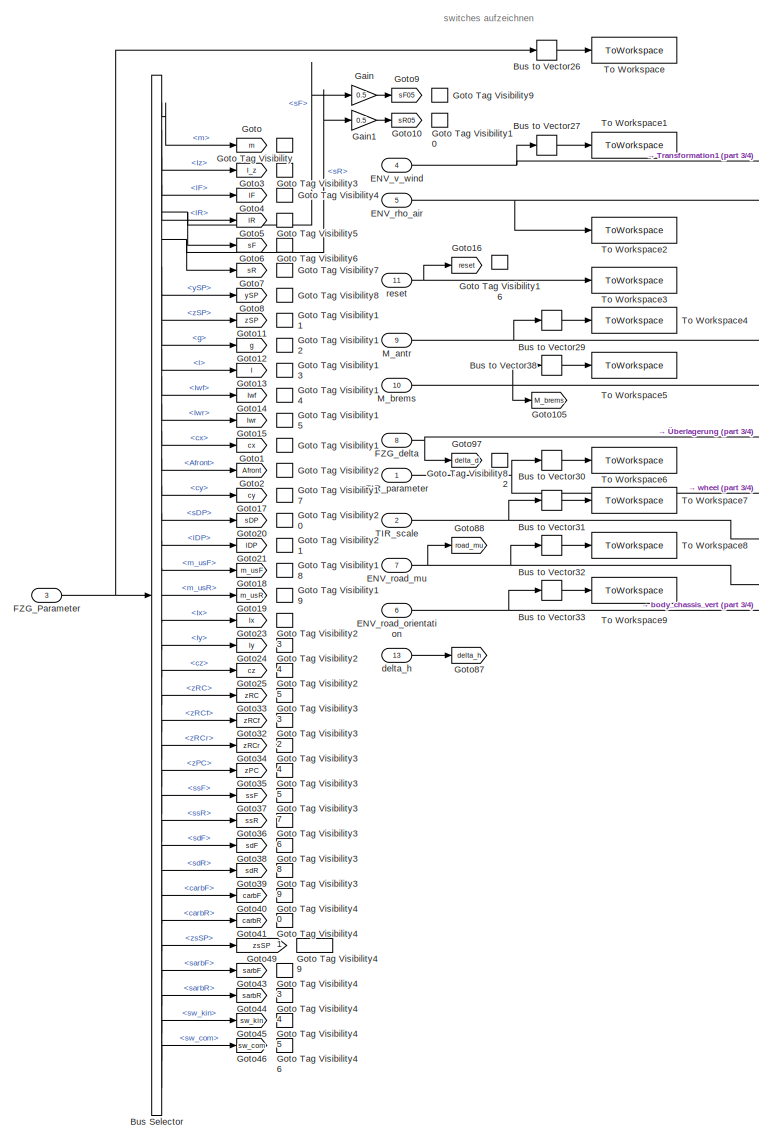
[diagram: vehicle_model - part 1/4, left side, full height]
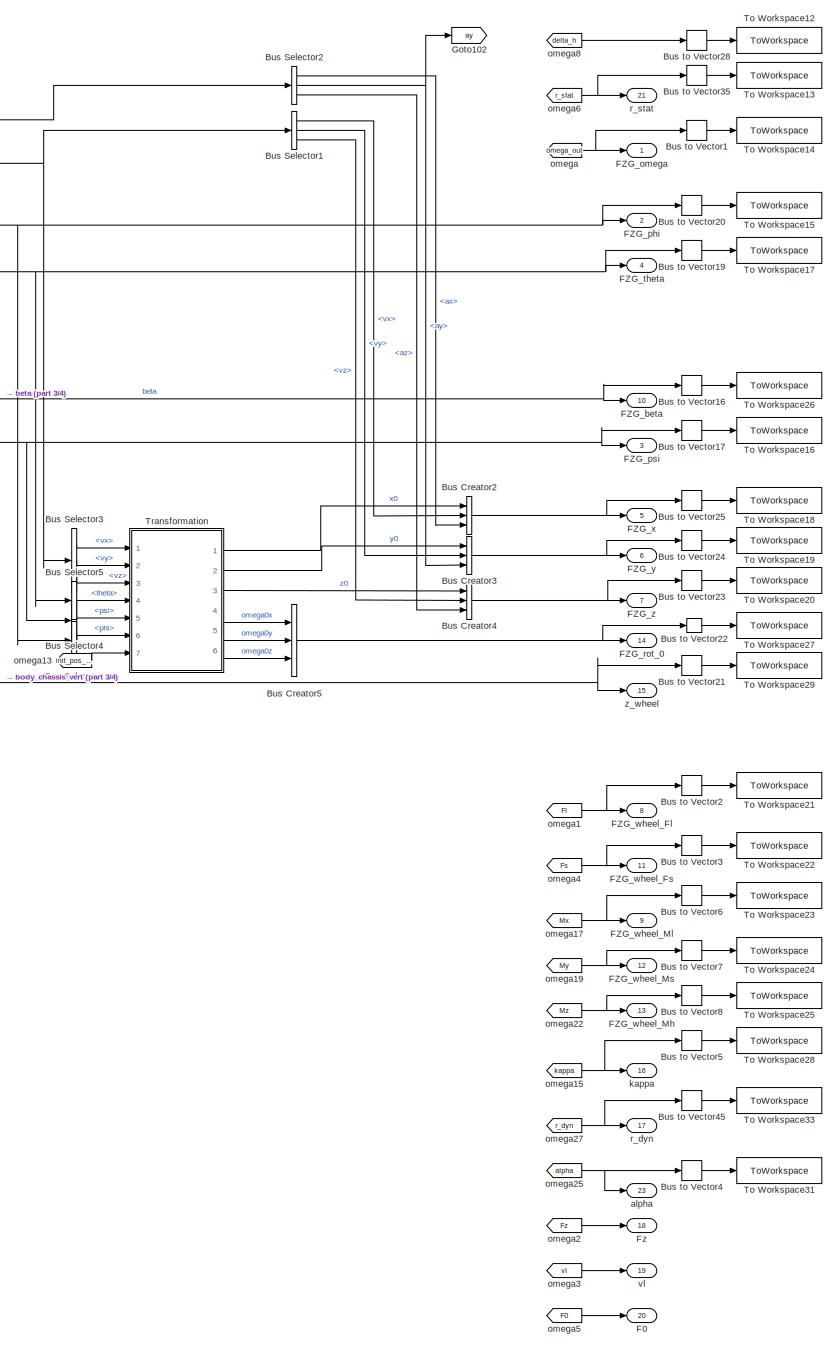
[diagram: vehicle_model - part 2/4, right side, full height]
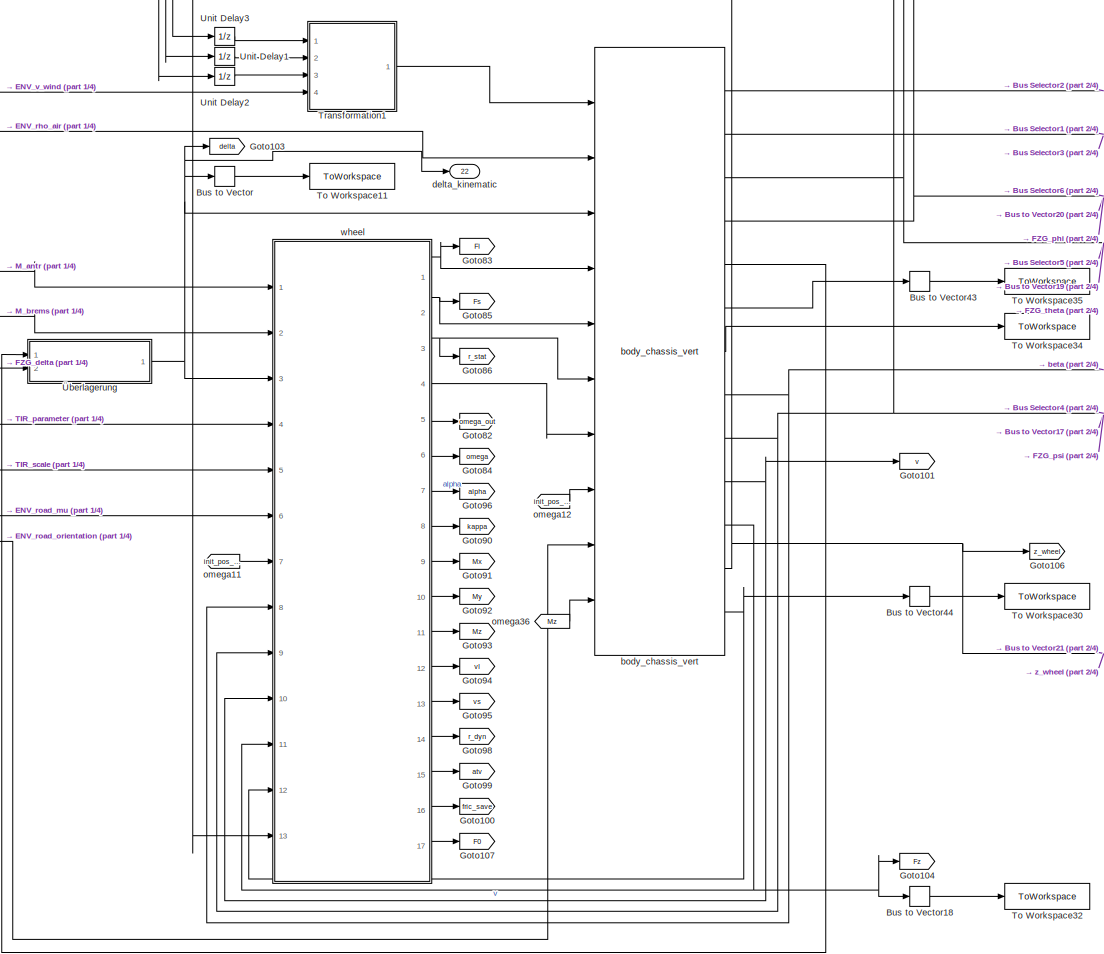
[diagram: vehicle_model - part 3/4, central region]
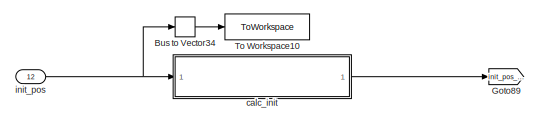
[diagram: vehicle_model - part 4/4, bottom left region]
BLOCK [SubSystem] vehicle_model
  MinAlgLoopOccurrences = on
  Ports = [13, 23]
  RequestExecContextInheritance = off
  SystemSampleTime = stepsize
  TreatAsAtomicUnit = on
BLOCK [BusCreator] vehicle_model/Bus Creator2
  DisplayOption = bar
  InheritFromInputs = on
  Inputs = 3
  Ports = [3, 1]
BLOCK [BusCreator] vehicle_model/Bus Creator3
  DisplayOption = bar
  InheritFromInputs = on
  Inputs = 3
  Ports = [3, 1]
BLOCK [BusCreator] vehicle_model/Bus Creator4
  DisplayOption = bar
  InheritFromInputs = on
  Inputs = 3
  Ports = [3, 1]
BLOCK [BusCreator] vehicle_model/Bus Creator5
  DisplayOption = bar
  InheritFromInputs = on
  Inputs = 3
  Ports = [3, 1]
BLOCK [BusSelector] vehicle_model/Bus Selector
  OutputSignals = m,Iz,lF,lR,sF,sR,ySP,zSP,g,l,Iwf,Iwr,cx,Afront,cy,sDP,lDP,m_usF,m_usR,Ix,Iy,cz,zRC,zRCf,zRCr,zPC,ssF,ssR,sdF,sdR,carbF,carbR,zsSP,sarbF,sarbR,sw_kin,sw_com
  Ports = [1, 37]
BLOCK [BusSelector] vehicle_model/Bus Selector1
  OutputSignals = vx,vy,vz
  Ports = [1, 3]
BLOCK [BusSelector] vehicle_model/Bus Selector2
  OutputSignals = ax,ay,az
  Ports = [1, 3]
BLOCK [BusSelector] vehicle_model/Bus Selector3
  OutputSignals = vx,vy,vz
  Ports = [1, 3]
BLOCK [BusSelector] vehicle_model/Bus Selector4
  OutputSignals = psi
  Ports = [1, 1]
BLOCK [BusSelector] vehicle_model/Bus Selector5
  OutputSignals = theta
  Ports = [1, 1]
BLOCK [BusSelector] vehicle_model/Bus Selector6
  OutputSignals = phi
  Ports = [1, 1]
BLOCK [BusToVector] vehicle_model/Bus to Vector
BLOCK [BusToVector] vehicle_model/Bus to Vector1
BLOCK [BusToVector] vehicle_model/Bus to Vector16
BLOCK [BusToVector] vehicle_model/Bus to Vector17
BLOCK [BusToVector] vehicle_model/Bus to Vector18
BLOCK [BusToVector] vehicle_model/Bus to Vector19
BLOCK [BusToVector] vehicle_model/Bus to Vector2
BLOCK [BusToVector] vehicle_model/Bus to Vector20
BLOCK [BusToVector] vehicle_model/Bus to Vector21
BLOCK [BusToVector] vehicle_model/Bus to Vector22
BLOCK [BusToVector] vehicle_model/Bus to Vector23
BLOCK [BusToVector] vehicle_model/Bus to Vector24
BLOCK [BusToVector] vehicle_model/Bus to Vector25
BLOCK [BusToVector] vehicle_model/Bus to Vector26
BLOCK [BusToVector] vehicle_model/Bus to Vector27
BLOCK [BusToVector] vehicle_model/Bus to Vector28
BLOCK [BusToVector] vehicle_model/Bus to Vector29
BLOCK [BusToVector] vehicle_model/Bus to Vector3
BLOCK [BusToVector] vehicle_model/Bus to Vector30
BLOCK [BusToVector] vehicle_model/Bus to Vector31
BLOCK [BusToVector] vehicle_model/Bus to Vector32
BLOCK [BusToVector] vehicle_model/Bus to Vector33
BLOCK [BusToVector] vehicle_model/Bus to Vector34
BLOCK [BusToVector] vehicle_model/Bus to Vector35
BLOCK [BusToVector] vehicle_model/Bus to Vector38
BLOCK [BusToVector] vehicle_model/Bus to Vector4
BLOCK [BusToVector] vehicle_model/Bus to Vector43
BLOCK [BusToVector] vehicle_model/Bus to Vector44
BLOCK [BusToVector] vehicle_model/Bus to Vector45
BLOCK [BusToVector] vehicle_model/Bus to Vector5
BLOCK [BusToVector] vehicle_model/Bus to Vector6
BLOCK [BusToVector] vehicle_model/Bus to Vector7
BLOCK [BusToVector] vehicle_model/Bus to Vector8
BLOCK [Inport] vehicle_model/ENV_rho_air
  Port = 5
BLOCK [Inport] vehicle_model/ENV_road_mu
  Port = 7
BLOCK [Inport] vehicle_model/ENV_road_orientation
  Port = 6
BLOCK [Inport] vehicle_model/ENV_v_wind
  Port = 4
BLOCK [Outport] vehicle_model/F0
  Port = 20
  VectorParamsAs1DForOutWhenUnconnected = off
BLOCK [Inport] vehicle_model/FZG_Parameter
  Port = 3
BLOCK [Outport] vehicle_model/FZG_beta
  Port = 10
  VectorParamsAs1DForOutWhenUnconnected = off
BLOCK [Inport] vehicle_model/FZG_delta
  Port = 8
BLOCK [Outport] vehicle_model/FZG_omega
  VectorParamsAs1DForOutWhenUnconnected = off
BLOCK [Outport] vehicle_model/FZG_phi
  Port = 2
  VectorParamsAs1DForOutWhenUnconnected = off
BLOCK [Outport] vehicle_model/FZG_psi
  Port = 3
  VectorParamsAs1DForOutWhenUnconnected = off
BLOCK [Outport] vehicle_model/FZG_rot_0
  Port = 14
  VectorParamsAs1DForOutWhenUnconnected = off
BLOCK [Outport] vehicle_model/FZG_theta
  Port = 4
  VectorParamsAs1DForOutWhenUnconnected = off
BLOCK [Outport] vehicle_model/FZG_wheel_Fl
  Port = 8
  VectorParamsAs1DForOutWhenUnconnected = off
BLOCK [Outport] vehicle_model/FZG_wheel_Fs
  Port = 11
  VectorParamsAs1DForOutWhenUnconnected = off
BLOCK [Outport] vehicle_model/FZG_wheel_Mh
  Port = 13
  VectorParamsAs1DForOutWhenUnconnected = off
BLOCK [Outport] vehicle_model/FZG_wheel_Ml
  Port = 9
  VectorParamsAs1DForOutWhenUnconnected = off
BLOCK [Outport] vehicle_model/FZG_wheel_Ms
  Port = 12
  VectorParamsAs1DForOutWhenUnconnected = off
BLOCK [Outport] vehicle_model/FZG_x
  Port = 5
  PortDimensions = 3
  VectorParamsAs1DForOutWhenUnconnected = off
BLOCK [Outport] vehicle_model/FZG_y
  Port = 6
  VectorParamsAs1DForOutWhenUnconnected = off
BLOCK [Outport] vehicle_model/FZG_z
  Port = 7
  VectorParamsAs1DForOutWhenUnconnected = off
BLOCK [Outport] vehicle_model/Fz
  Port = 18
  VectorParamsAs1DForOutWhenUnconnected = off
BLOCK [Gain] vehicle_model/Gain
  Gain = 0.5
BLOCK [Gain] vehicle_model/Gain1
  Gain = 0.5
BLOCK [Goto] vehicle_model/Goto
  GotoTag = m
  TagVisibility = scoped
BLOCK [GotoTagVisibility] vehicle_model/Goto Tag Visibility
  GotoTag = m
BLOCK [GotoTagVisibility] vehicle_model/Goto Tag Visibility1
  GotoTag = cx
BLOCK [GotoTagVisibility] vehicle_model/Goto Tag Visibility10
  GotoTag = sR05
BLOCK [GotoTagVisibility] vehicle_model/Goto Tag Visibility11
  GotoTag = zSP
BLOCK [GotoTagVisibility] vehicle_model/Goto Tag Visibility12
  GotoTag = g
BLOCK [GotoTagVisibility] vehicle_model/Goto Tag Visibility13
  GotoTag = l
BLOCK [GotoTagVisibility] vehicle_model/Goto Tag Visibility14
  GotoTag = Iwf
BLOCK [GotoTagVisibility] vehicle_model/Goto Tag Visibility15
  GotoTag = Iwr
BLOCK [GotoTagVisibility] vehicle_model/Goto Tag Visibility16
  GotoTag = reset
BLOCK [GotoTagVisibility] vehicle_model/Goto Tag Visibility17
  GotoTag = cy
BLOCK [GotoTagVisibility] vehicle_model/Goto Tag Visibility18
  GotoTag = m_usF
BLOCK [GotoTagVisibility] vehicle_model/Goto Tag Visibility19
  GotoTag = m_usR
BLOCK [GotoTagVisibility] vehicle_model/Goto Tag Visibility2
  GotoTag = Afront
BLOCK [GotoTagVisibility] vehicle_model/Goto Tag Visibility20
  GotoTag = sDP
BLOCK [GotoTagVisibility] vehicle_model/Goto Tag Visibility21
  GotoTag = lDP
BLOCK [GotoTagVisibility] vehicle_model/Goto Tag Visibility23
  GotoTag = Ix
BLOCK [GotoTagVisibility] vehicle_model/Goto Tag Visibility24
  GotoTag = Iy
BLOCK [GotoTagVisibility] vehicle_model/Goto Tag Visibility25
  GotoTag = cz
BLOCK [GotoTagVisibility] vehicle_model/Goto Tag Visibility3
  GotoTag = I_z
BLOCK [GotoTagVisibility] vehicle_model/Goto Tag Visibility32
  GotoTag = zRCf
BLOCK [GotoTagVisibility] vehicle_model/Goto Tag Visibility33
  GotoTag = zRC
BLOCK [GotoTagVisibility] vehicle_model/Goto Tag Visibility34
  GotoTag = zRCr
BLOCK [GotoTagVisibility] vehicle_model/Goto Tag Visibility35
  GotoTag = zPC
BLOCK [GotoTagVisibility] vehicle_model/Goto Tag Visibility36
  GotoTag = ssR
BLOCK [GotoTagVisibility] vehicle_model/Goto Tag Visibility37
  GotoTag = ssF
BLOCK [GotoTagVisibility] vehicle_model/Goto Tag Visibility38
  GotoTag = sdF
BLOCK [GotoTagVisibility] vehicle_model/Goto Tag Visibility39
  GotoTag = sdR
BLOCK [GotoTagVisibility] vehicle_model/Goto Tag Visibility4
  GotoTag = lF
BLOCK [GotoTagVisibility] vehicle_model/Goto Tag Visibility40
  GotoTag = carbF
BLOCK [GotoTagVisibility] vehicle_model/Goto Tag Visibility41
  GotoTag = carbR
BLOCK [GotoTagVisibility] vehicle_model/Goto Tag Visibility43
  GotoTag = sarbF
BLOCK [GotoTagVisibility] vehicle_model/Goto Tag Visibility44
  GotoTag = sarbR
BLOCK [GotoTagVisibility] vehicle_model/Goto Tag Visibility45
  GotoTag = sw_kin
BLOCK [GotoTagVisibility] vehicle_model/Goto Tag Visibility46
  GotoTag = sw_com
BLOCK [GotoTagVisibility] vehicle_model/Goto Tag Visibility49
  GotoTag = zsSP
BLOCK [GotoTagVisibility] vehicle_model/Goto Tag Visibility5
  GotoTag = lR
BLOCK [GotoTagVisibility] vehicle_model/Goto Tag Visibility6
  GotoTag = sF
BLOCK [GotoTagVisibility] vehicle_model/Goto Tag Visibility7
  GotoTag = sR
BLOCK [GotoTagVisibility] vehicle_model/Goto Tag Visibility8
  GotoTag = ySP
BLOCK [GotoTagVisibility] vehicle_model/Goto Tag Visibility82
  GotoTag = delta_d
BLOCK [GotoTagVisibility] vehicle_model/Goto Tag Visibility9
  GotoTag = sF05
BLOCK [Goto] vehicle_model/Goto1
  GotoTag = cx
  TagVisibility = scoped
BLOCK [Goto] vehicle_model/Goto10
  GotoTag = sR05
  TagVisibility = scoped
BLOCK [Goto] vehicle_model/Goto100
  GotoTag = fric_save
BLOCK [Goto] vehicle_model/Goto101
  GotoTag = v
BLOCK [Goto] vehicle_model/Goto102
  GotoTag = ay
BLOCK [Goto] vehicle_model/Goto103
  GotoTag = delta
BLOCK [Goto] vehicle_model/Goto104
  GotoTag = Fz
BLOCK [Goto] vehicle_model/Goto105
  GotoTag = M_brems
BLOCK [Goto] vehicle_model/Goto106
  GotoTag = z_wheel
BLOCK [Goto] vehicle_model/Goto107
  GotoTag = F0
BLOCK [Goto] vehicle_model/Goto11
  GotoTag = zSP
  TagVisibility = scoped
BLOCK [Goto] vehicle_model/Goto12
  GotoTag = g
  TagVisibility = scoped
BLOCK [Goto] vehicle_model/Goto13
  GotoTag = l
  TagVisibility = scoped
BLOCK [Goto] vehicle_model/Goto14
  GotoTag = Iwf
  TagVisibility = scoped
BLOCK [Goto] vehicle_model/Goto15
  GotoTag = Iwr
  TagVisibility = scoped
BLOCK [Goto] vehicle_model/Goto16
  GotoTag = reset
  TagVisibility = scoped
BLOCK [Goto] vehicle_model/Goto17
  GotoTag = cy
  TagVisibility = scoped
BLOCK [Goto] vehicle_model/Goto18
  GotoTag = m_usF
  TagVisibility = scoped
BLOCK [Goto] vehicle_model/Goto19
  GotoTag = m_usR
  TagVisibility = scoped
BLOCK [Goto] vehicle_model/Goto2
  GotoTag = Afront
  TagVisibility = scoped
BLOCK [Goto] vehicle_model/Goto20
  GotoTag = sDP
  TagVisibility = scoped
BLOCK [Goto] vehicle_model/Goto21
  GotoTag = lDP
  TagVisibility = scoped
BLOCK [Goto] vehicle_model/Goto23
  GotoTag = Ix
  TagVisibility = scoped
BLOCK [Goto] vehicle_model/Goto24
  GotoTag = Iy
  TagVisibility = scoped
BLOCK [Goto] vehicle_model/Goto25
  GotoTag = cz
  TagVisibility = scoped
BLOCK [Goto] vehicle_model/Goto3
  GotoTag = I_z
  TagVisibility = scoped
BLOCK [Goto] vehicle_model/Goto32
  GotoTag = zRCf
  TagVisibility = scoped
BLOCK [Goto] vehicle_model/Goto33
  GotoTag = zRC
  TagVisibility = scoped
BLOCK [Goto] vehicle_model/Goto34
  GotoTag = zRCr
  TagVisibility = scoped
BLOCK [Goto] vehicle_model/Goto35
  GotoTag = zPC
  TagVisibility = scoped
BLOCK [Goto] vehicle_model/Goto36
  GotoTag = ssR
  TagVisibility = scoped
BLOCK [Goto] vehicle_model/Goto37
  GotoTag = ssF
  TagVisibility = scoped
BLOCK [Goto] vehicle_model/Goto38
  GotoTag = sdF
  TagVisibility = scoped
BLOCK [Goto] vehicle_model/Goto39
  GotoTag = sdR
  TagVisibility = scoped
BLOCK [Goto] vehicle_model/Goto4
  GotoTag = lF
  TagVisibility = scoped
BLOCK [Goto] vehicle_model/Goto40
  GotoTag = carbF
  TagVisibility = scoped
BLOCK [Goto] vehicle_model/Goto41
  GotoTag = carbR
  TagVisibility = scoped
BLOCK [Goto] vehicle_model/Goto43
  GotoTag = sarbF
  TagVisibility = scoped
BLOCK [Goto] vehicle_model/Goto44
  GotoTag = sarbR
  TagVisibility = scoped
BLOCK [Goto] vehicle_model/Goto45
  GotoTag = sw_kin
  TagVisibility = scoped
BLOCK [Goto] vehicle_model/Goto46
  GotoTag = sw_com
  TagVisibility = scoped
BLOCK [Goto] vehicle_model/Goto49
  GotoTag = zsSP
  TagVisibility = scoped
BLOCK [Goto] vehicle_model/Goto5
  GotoTag = lR
  TagVisibility = scoped
BLOCK [Goto] vehicle_model/Goto6
  GotoTag = sF
  TagVisibility = scoped
BLOCK [Goto] vehicle_model/Goto7
  GotoTag = sR
  TagVisibility = scoped
BLOCK [Goto] vehicle_model/Goto8
  GotoTag = ySP
  TagVisibility = scoped
BLOCK [Goto] vehicle_model/Goto82
  GotoTag = omega_out
BLOCK [Goto] vehicle_model/Goto83
  GotoTag = Fl
BLOCK [Goto] vehicle_model/Goto84
  GotoTag = omega
BLOCK [Goto] vehicle_model/Goto85
  GotoTag = Fs
BLOCK [Goto] vehicle_model/Goto86
  GotoTag = r_stat
BLOCK [Goto] vehicle_model/Goto87
  GotoTag = delta_h
BLOCK [Goto] vehicle_model/Goto88
  GotoTag = road_mu
BLOCK [Goto] vehicle_model/Goto89
  GotoTag = init_pos_complete
BLOCK [Goto] vehicle_model/Goto9
  GotoTag = sF05
  TagVisibility = scoped
BLOCK [Goto] vehicle_model/Goto90
  GotoTag = kappa
BLOCK [Goto] vehicle_model/Goto91
  GotoTag = Mx
BLOCK [Goto] vehicle_model/Goto92
  GotoTag = My
BLOCK [Goto] vehicle_model/Goto93
  GotoTag = Mz
BLOCK [Goto] vehicle_model/Goto94
  GotoTag = vl
BLOCK [Goto] vehicle_model/Goto95
  GotoTag = vs
BLOCK [Goto] vehicle_model/Goto96
  GotoTag = alpha
BLOCK [Goto] vehicle_model/Goto97
  GotoTag = delta_d
  TagVisibility = scoped
BLOCK [Goto] vehicle_model/Goto98
  GotoTag = r_dyn
BLOCK [Goto] vehicle_model/Goto99
  GotoTag = atv
BLOCK [Inport] vehicle_model/M_antr
  Port = 9
  PortDimensions = 4
BLOCK [Inport] vehicle_model/M_brems
  Port = 10
  PortDimensions = 4
BLOCK [Inport] vehicle_model/TIR_parameter
BLOCK [Inport] vehicle_model/TIR_scale
  Port = 2
BLOCK [ToWorkspace] vehicle_model/To Workspace
  Commented = on
  Decimation = savedec
  FixptAsFi = on
  MaxDataPoints = 1
  Ports = [1]
  SampleTime = -1
  Save2DSignal = 2-D array (concatenate along first dimension)
  VariableName = sv_FZG_Parameter
BLOCK [ToWorkspace] vehicle_model/To Workspace1
  Commented = on
  Decimation = savedec
  FixptAsFi = on
  MaxDataPoints = inf
  Ports = [1]
  SampleTime = -1
  Save2DSignal = 2-D array (concatenate along first dimension)
  VariableName = sv_ENV_v_wind
BLOCK [ToWorkspace] vehicle_model/To Workspace10
  Commented = on
  Decimation = savedec
  FixptAsFi = on
  MaxDataPoints = 1
  Ports = [1]
  SampleTime = -1
  Save2DSignal = 2-D array (concatenate along first dimension)
  VariableName = sv_init_pos
BLOCK [ToWorkspace] vehicle_model/To Workspace11
  Commented = on
  Decimation = savedec
  FixptAsFi = on
  MaxDataPoints = inf
  Ports = [1]
  SampleTime = -1
  Save2DSignal = 2-D array (concatenate along first dimension)
  VariableName = sv_FZG_delta
BLOCK [ToWorkspace] vehicle_model/To Workspace12
  Commented = on
  Decimation = savedec
  FixptAsFi = on
  MaxDataPoints = inf
  Ports = [1]
  SampleTime = -1
  Save2DSignal = 2-D array (concatenate along first dimension)
  VariableName = sv_FAH_delta
BLOCK [ToWorkspace] vehicle_model/To Workspace13
  Commented = on
  Decimation = savedec
  FixptAsFi = on
  MaxDataPoints = inf
  Ports = [1]
  SampleTime = -1
  Save2DSignal = 2-D array (concatenate along first dimension)
  VariableName = sv_r_stat
BLOCK [ToWorkspace] vehicle_model/To Workspace14
  Commented = on
  Decimation = savedec
  FixptAsFi = on
  MaxDataPoints = inf
  Ports = [1]
  SampleTime = -1
  Save2DSignal = 2-D array (concatenate along first dimension)
  VariableName = sv_FZG_omega
BLOCK [ToWorkspace] vehicle_model/To Workspace15
  Commented = on
  Decimation = savedec
  FixptAsFi = on
  MaxDataPoints = inf
  Ports = [1]
  SampleTime = -1
  Save2DSignal = 2-D array (concatenate along first dimension)
  VariableName = sv_FZG_phi
BLOCK [ToWorkspace] vehicle_model/To Workspace16
  Commented = on
  Decimation = savedec
  FixptAsFi = on
  MaxDataPoints = inf
  Ports = [1]
  SampleTime = -1
  Save2DSignal = 2-D array (concatenate along first dimension)
  VariableName = sv_FZG_psi
BLOCK [ToWorkspace] vehicle_model/To Workspace17
  Commented = on
  Decimation = savedec
  FixptAsFi = on
  MaxDataPoints = inf
  Ports = [1]
  SampleTime = -1
  Save2DSignal = 2-D array (concatenate along first dimension)
  VariableName = sv_FZG_theta
BLOCK [ToWorkspace] vehicle_model/To Workspace18
  Commented = on
  Decimation = savedec
  FixptAsFi = on
  MaxDataPoints = inf
  Ports = [1]
  SampleTime = -1
  Save2DSignal = 2-D array (concatenate along first dimension)
  VariableName = sv_FZG_x
BLOCK [ToWorkspace] vehicle_model/To Workspace19
  Commented = on
  Decimation = savedec
  FixptAsFi = on
  MaxDataPoints = inf
  Ports = [1]
  SampleTime = -1
  Save2DSignal = 2-D array (concatenate along first dimension)
  VariableName = sv_FZG_y
BLOCK [ToWorkspace] vehicle_model/To Workspace2
  Commented = on
  Decimation = savedec
  FixptAsFi = on
  MaxDataPoints = inf
  Ports = [1]
  SampleTime = -1
  Save2DSignal = 2-D array (concatenate along first dimension)
  VariableName = sv_ENV_rho_air
BLOCK [ToWorkspace] vehicle_model/To Workspace20
  Commented = on
  Decimation = savedec
  FixptAsFi = on
  MaxDataPoints = inf
  Ports = [1]
  SampleTime = -1
  Save2DSignal = 2-D array (concatenate along first dimension)
  VariableName = sv_FZG_z
BLOCK [ToWorkspace] vehicle_model/To Workspace21
  Commented = on
  Decimation = savedec
  FixptAsFi = on
  MaxDataPoints = inf
  Ports = [1]
  SampleTime = -1
  Save2DSignal = 2-D array (concatenate along first dimension)
  VariableName = sv_FZG_Fl
BLOCK [ToWorkspace] vehicle_model/To Workspace22
  Commented = on
  Decimation = savedec
  FixptAsFi = on
  MaxDataPoints = inf
  Ports = [1]
  SampleTime = -1
  Save2DSignal = 2-D array (concatenate along first dimension)
  VariableName = sv_FZG_Fs
BLOCK [ToWorkspace] vehicle_model/To Workspace23
  Commented = on
  Decimation = savedec
  FixptAsFi = on
  MaxDataPoints = inf
  Ports = [1]
  SampleTime = -1
  Save2DSignal = 2-D array (concatenate along first dimension)
  VariableName = sv_FZG_wheel_Ml
BLOCK [ToWorkspace] vehicle_model/To Workspace24
  Commented = on
  Decimation = savedec
  FixptAsFi = on
  MaxDataPoints = inf
  Ports = [1]
  SampleTime = -1
  Save2DSignal = 2-D array (concatenate along first dimension)
  VariableName = sv_FZG_wheel_Ms
BLOCK [ToWorkspace] vehicle_model/To Workspace25
  Commented = on
  Decimation = savedec
  FixptAsFi = on
  MaxDataPoints = inf
  Ports = [1]
  SampleTime = -1
  Save2DSignal = 2-D array (concatenate along first dimension)
  VariableName = sv_FZG_wheel_Mh
BLOCK [ToWorkspace] vehicle_model/To Workspace26
  Commented = on
  Decimation = savedec
  FixptAsFi = on
  MaxDataPoints = inf
  Ports = [1]
  SampleTime = -1
  Save2DSignal = 2-D array (concatenate along first dimension)
  VariableName = sv_FZG_beta
BLOCK [ToWorkspace] vehicle_model/To Workspace27
  Commented = on
  Decimation = savedec
  FixptAsFi = on
  MaxDataPoints = inf
  Ports = [1]
  SampleTime = -1
  Save2DSignal = 2-D array (concatenate along first dimension)
  VariableName = sv_FZG_rot_0
BLOCK [ToWorkspace] vehicle_model/To Workspace28
  Commented = on
  Decimation = savedec
  FixptAsFi = on
  MaxDataPoints = inf
  Ports = [1]
  SampleTime = -1
  Save2DSignal = 2-D array (concatenate along first dimension)
  VariableName = sv_kappa
BLOCK [ToWorkspace] vehicle_model/To Workspace29
  Commented = on
  Decimation = savedec
  FixptAsFi = on
  MaxDataPoints = inf
  Ports = [1]
  SampleTime = -1
  Save2DSignal = 2-D array (concatenate along first dimension)
  VariableName = sv_FZG_zwheel
BLOCK [ToWorkspace] vehicle_model/To Workspace3
  Commented = on
  Decimation = savedec
  FixptAsFi = on
  MaxDataPoints = inf
  Ports = [1]
  SampleTime = -1
  Save2DSignal = 2-D array (concatenate along first dimension)
  VariableName = sv_reset
BLOCK [ToWorkspace] vehicle_model/To Workspace30
  Commented = on
  Decimation = savedec
  FixptAsFi = on
  MaxDataPoints = inf
  Ports = [1]
  SampleTime = -1
  Save2DSignal = 2-D array (concatenate along first dimension)
  VariableName = sv_FZG_camber
BLOCK [ToWorkspace] vehicle_model/To Workspace31
  Commented = on
  Decimation = savedec
  FixptAsFi = on
  MaxDataPoints = inf
  Ports = [1]
  SampleTime = -1
  Save2DSignal = 2-D array (concatenate along first dimension)
  VariableName = sv_alpha
BLOCK [ToWorkspace] vehicle_model/To Workspace32
  Commented = on
  Decimation = savedec
  FixptAsFi = on
  MaxDataPoints = inf
  Ports = [1]
  SampleTime = -1
  Save2DSignal = 2-D array (concatenate along first dimension)
  VariableName = sv_FZG_Fz
BLOCK [ToWorkspace] vehicle_model/To Workspace33
  Commented = on
  Decimation = savedec
  FixptAsFi = on
  MaxDataPoints = inf
  Ports = [1]
  SampleTime = -1
  Save2DSignal = 2-D array (concatenate along first dimension)
  VariableName = sv_r_dyn
BLOCK [ToWorkspace] vehicle_model/To Workspace34
  Commented = on
  Decimation = savedec
  FixptAsFi = on
  MaxDataPoints = inf
  Ports = [1]
  SampleTime = -1
  Save2DSignal = 2-D array (concatenate along first dimension)
  VariableName = sv_Paer
BLOCK [ToWorkspace] vehicle_model/To Workspace35
  Commented = on
  Decimation = savedec
  FixptAsFi = on
  MaxDataPoints = inf
  Ports = [1]
  SampleTime = -1
  Save2DSignal = 2-D array (concatenate along first dimension)
  VariableName = sv_Pdamper
BLOCK [ToWorkspace] vehicle_model/To Workspace4
  Commented = on
  Decimation = savedec
  FixptAsFi = on
  MaxDataPoints = inf
  Ports = [1]
  SampleTime = -1
  Save2DSignal = 2-D array (concatenate along first dimension)
  VariableName = sv_FZG_M_antr
BLOCK [ToWorkspace] vehicle_model/To Workspace5
  Commented = on
  Decimation = savedec
  FixptAsFi = on
  MaxDataPoints = inf
  Ports = [1]
  SampleTime = -1
  Save2DSignal = 2-D array (concatenate along first dimension)
  VariableName = sv_FZG_M_brems
BLOCK [ToWorkspace] vehicle_model/To Workspace6
  Commented = on
  Decimation = savedec
  FixptAsFi = on
  MaxDataPoints = 1
  Ports = [1]
  SampleTime = -1
  Save2DSignal = 2-D array (concatenate along first dimension)
  VariableName = sv_TIR_parameter
BLOCK [ToWorkspace] vehicle_model/To Workspace7
  Commented = on
  Decimation = savedec
  FixptAsFi = on
  MaxDataPoints = 1
  Ports = [1]
  SampleTime = -1
  Save2DSignal = 2-D array (concatenate along first dimension)
  VariableName = sv_TIR_scale
BLOCK [ToWorkspace] vehicle_model/To Workspace8
  Commented = on
  Decimation = savedec
  FixptAsFi = on
  MaxDataPoints = inf
  Ports = [1]
  SampleTime = -1
  Save2DSignal = 2-D array (concatenate along first dimension)
  VariableName = sv_ENV_road_mu
BLOCK [ToWorkspace] vehicle_model/To Workspace9
  Commented = on
  Decimation = savedec
  FixptAsFi = on
  MaxDataPoints = inf
  Ports = [1]
  SampleTime = -1
  Save2DSignal = 2-D array (concatenate along first dimension)
  VariableName = sv_ENV_road_orientation
BLOCK [SubSystem] vehicle_model/Transformation
  Ports = [7, 6]
  RequestExecContextInheritance = off
BLOCK [Sum] vehicle_model/Transformation/Add
  IconShape = rectangular
  Ports = [2, 1]
BLOCK [BusSelector] vehicle_model/Transformation/Bus Selector
  OutputSignals = init_x0,init_y0,init_z0
  Ports = [1, 3]
BLOCK [Constant] vehicle_model/Transformation/Constant
  Value = 0
BLOCK [Demux] vehicle_model/Transformation/Demux1
  Outputs = 3
  Ports = [1, 3]
BLOCK [Demux] vehicle_model/Transformation/Demux2
  Outputs = 3
  Ports = [1, 3]
BLOCK [DiscreteIntegrator] vehicle_model/Transformation/Discrete-Time Integrator
  ExternalReset = sampled level
  ICPrevOutput = DiscIntNeverNeededParam
  ICPrevScaledInput = DiscIntNeverNeededParam
  InitialConditionSource = external
  Ports = [3, 1]
  SampleTime = -1
BLOCK [DiscreteIntegrator] vehicle_model/Transformation/Discrete-Time Integrator1
  ExternalReset = sampled level
  ICPrevOutput = DiscIntNeverNeededParam
  ICPrevScaledInput = DiscIntNeverNeededParam
  InitialConditionSource = external
  Ports = [3, 1]
  SampleTime = -1
BLOCK [DiscreteIntegrator] vehicle_model/Transformation/Discrete-Time Integrator2
  ExternalReset = sampled level
  ICPrevOutput = DiscIntNeverNeededParam
  ICPrevScaledInput = DiscIntNeverNeededParam
  InitialConditionSource = external
  Ports = [3, 1]
  SampleTime = -1
BLOCK [From] vehicle_model/Transformation/From
  GotoTag = reset
  TagVisibility = scoped
BLOCK [From] vehicle_model/Transformation/From1
  GotoTag = zSP
  TagVisibility = scoped
BLOCK [Math] vehicle_model/Transformation/Math Function
  Operator = transpose
  Ports = [1, 1]
  SignedPower = on
BLOCK [Math] vehicle_model/Transformation/Math Function1
  Operator = transpose
  Ports = [1, 1]
  SignedPower = on
BLOCK [Concatenate] vehicle_model/Transformation/Matrix Concatenate1
  NumInputs = 3
  Ports = [3, 1]
BLOCK [Concatenate] vehicle_model/Transformation/Matrix Concatenate2
  NumInputs = 3
  Ports = [3, 1]
BLOCK [Product] vehicle_model/Transformation/Product
  Multiplication = Matrix(*)
  Ports = [2, 1]
BLOCK [Product] vehicle_model/Transformation/Product1
  Multiplication = Matrix(*)
  Ports = [2, 1]
BLOCK [Terminator] vehicle_model/Transformation/Terminator
BLOCK [Inport] vehicle_model/Transformation/init_pos
  Port = 7
BLOCK [Outport] vehicle_model/Transformation/omegax0
  Port = 4
  VectorParamsAs1DForOutWhenUnconnected = off
BLOCK [Outport] vehicle_model/Transformation/omegay0
  Port = 5
  VectorParamsAs1DForOutWhenUnconnected = off
BLOCK [Outport] vehicle_model/Transformation/omegaz0
  Port = 6
  VectorParamsAs1DForOutWhenUnconnected = off
BLOCK [Inport] vehicle_model/Transformation/phi
  Port = 6
BLOCK [Inport] vehicle_model/Transformation/psi
  Port = 5
BLOCK [Inport] vehicle_model/Transformation/theta
  Port = 4
BLOCK [SubSystem] vehicle_model/Transformation/trafo_matrix
  Ports = [3, 1]
  RequestExecContextInheritance = off
BLOCK [Sum] vehicle_model/Transformation/trafo_matrix/Add1
  IconShape = rectangular
  Ports = [2, 1]
BLOCK [Sum] vehicle_model/Transformation/trafo_matrix/Add2
  IconShape = rectangular
  Ports = [2, 1]
BLOCK [Sum] vehicle_model/Transformation/trafo_matrix/Add3
  IconShape = rectangular
  Ports = [2, 1]
BLOCK [Sum] vehicle_model/Transformation/trafo_matrix/Add4
  IconShape = rectangular
  Ports = [2, 1]
BLOCK [Concatenate] vehicle_model/Transformation/trafo_matrix/Matrix Concatenate
  ConcatenateDimension = 2
  Mode = Multidimensional array
  NumInputs = 3
  Ports = [3, 1]
BLOCK [Concatenate] vehicle_model/Transformation/trafo_matrix/Matrix Concatenate1
  NumInputs = 3
  Ports = [3, 1]
BLOCK [Concatenate] vehicle_model/Transformation/trafo_matrix/Matrix Concatenate2
  NumInputs = 3
  Ports = [3, 1]
BLOCK [Concatenate] vehicle_model/Transformation/trafo_matrix/Matrix Concatenate3
  NumInputs = 3
  Ports = [3, 1]
BLOCK [Outport] vehicle_model/Transformation/trafo_matrix/OT3
  VectorParamsAs1DForOutWhenUnconnected = off
BLOCK [Product] vehicle_model/Transformation/trafo_matrix/Product
  Ports = [2, 1]
BLOCK [Product] vehicle_model/Transformation/trafo_matrix/Product1
  Ports = [2, 1]
BLOCK [Product] vehicle_model/Transformation/trafo_matrix/Product10
  Ports = [2, 1]
BLOCK [Product] vehicle_model/Transformation/trafo_matrix/Product11
  Ports = [2, 1]
BLOCK [Product] vehicle_model/Transformation/trafo_matrix/Product2
  Inputs = 3
  Ports = [3, 1]
BLOCK [Product] vehicle_model/Transformation/trafo_matrix/Product3
  Ports = [2, 1]
BLOCK [Product] vehicle_model/Transformation/trafo_matrix/Product4
  Inputs = 3
  Ports = [3, 1]
BLOCK [Product] vehicle_model/Transformation/trafo_matrix/Product5
  Ports = [2, 1]
BLOCK [Product] vehicle_model/Transformation/trafo_matrix/Product6
  Ports = [2, 1]
BLOCK [Product] vehicle_model/Transformation/trafo_matrix/Product7
  Inputs = 3
  Ports = [3, 1]
BLOCK [Product] vehicle_model/Transformation/trafo_matrix/Product8
  Ports = [2, 1]
BLOCK [Product] vehicle_model/Transformation/trafo_matrix/Product9
  Inputs = 3
  Ports = [3, 1]
BLOCK [Trigonometry] vehicle_model/Transformation/trafo_matrix/Trigonometric Function
  Operator = cos
  Ports = [1, 1]
BLOCK [Trigonometry] vehicle_model/Transformation/trafo_matrix/Trigonometric Function2
  Operator = cos
  Ports = [1, 1]
BLOCK [Trigonometry] vehicle_model/Transformation/trafo_matrix/Trigonometric Function3
  Operator = cos
  Ports = [1, 1]
BLOCK [Trigonometry] vehicle_model/Transformation/trafo_matrix/Trigonometric Function6
  Ports = [1, 1]
BLOCK [Trigonometry] vehicle_model/Transformation/trafo_matrix/Trigonometric Function7
  Ports = [1, 1]
BLOCK [Trigonometry] vehicle_model/Transformation/trafo_matrix/Trigonometric Function8
  Ports = [1, 1]
BLOCK [UnaryMinus] vehicle_model/Transformation/trafo_matrix/Unary Minus
BLOCK [UnaryMinus] vehicle_model/Transformation/trafo_matrix/Unary Minus1
BLOCK [UnaryMinus] vehicle_model/Transformation/trafo_matrix/Unary Minus2
BLOCK [Inport] vehicle_model/Transformation/trafo_matrix/phi
  NameLocation = top
  Port = 3
BLOCK [Inport] vehicle_model/Transformation/trafo_matrix/psi
  NameLocation = top
BLOCK [Inport] vehicle_model/Transformation/trafo_matrix/theta
  NameLocation = top
  Port = 2
BLOCK [SubSystem] vehicle_model/Transformation/trafo_matrix1
  Ports = [2, 1]
  RequestExecContextInheritance = off
BLOCK [Constant] vehicle_model/Transformation/trafo_matrix1/Constant
  Value = 0
BLOCK [Constant] vehicle_model/Transformation/trafo_matrix1/Constant1
  Value = 0
BLOCK [Constant] vehicle_model/Transformation/trafo_matrix1/Constant2
BLOCK [Constant] vehicle_model/Transformation/trafo_matrix1/Constant3
  Value = 0
BLOCK [Concatenate] vehicle_model/Transformation/trafo_matrix1/Matrix Concatenate
  ConcatenateDimension = 2
  Mode = Multidimensional array
  NumInputs = 3
  Ports = [3, 1]
BLOCK [Concatenate] vehicle_model/Transformation/trafo_matrix1/Matrix Concatenate1
  NumInputs = 3
  Ports = [3, 1]
BLOCK [Concatenate] vehicle_model/Transformation/trafo_matrix1/Matrix Concatenate2
  NumInputs = 3
  Ports = [3, 1]
BLOCK [Concatenate] vehicle_model/Transformation/trafo_matrix1/Matrix Concatenate3
  NumInputs = 3
  Ports = [3, 1]
BLOCK [Outport] vehicle_model/Transformation/trafo_matrix1/OTo
  VectorParamsAs1DForOutWhenUnconnected = off
BLOCK [Product] vehicle_model/Transformation/trafo_matrix1/Product3
  Ports = [2, 1]
BLOCK [Product] vehicle_model/Transformation/trafo_matrix1/Product6
  Ports = [2, 1]
BLOCK [Trigonometry] vehicle_model/Transformation/trafo_matrix1/Trigonometric Function
  Operator = cos
  Ports = [1, 1]
BLOCK [Trigonometry] vehicle_model/Transformation/trafo_matrix1/Trigonometric Function2
  Operator = cos
  Ports = [1, 1]
BLOCK [Trigonometry] vehicle_model/Transformation/trafo_matrix1/Trigonometric Function7
  Ports = [1, 1]
BLOCK [Trigonometry] vehicle_model/Transformation/trafo_matrix1/Trigonometric Function8
  Ports = [1, 1]
BLOCK [UnaryMinus] vehicle_model/Transformation/trafo_matrix1/Unary Minus
BLOCK [UnaryMinus] vehicle_model/Transformation/trafo_matrix1/Unary Minus1
BLOCK [Inport] vehicle_model/Transformation/trafo_matrix1/psi
  NameLocation = top
BLOCK [Inport] vehicle_model/Transformation/trafo_matrix1/theta
  NameLocation = top
  Port = 2
BLOCK [Inport] vehicle_model/Transformation/vx
BLOCK [Inport] vehicle_model/Transformation/vy
  Port = 2
BLOCK [Inport] vehicle_model/Transformation/vz
  Port = 3
BLOCK [Outport] vehicle_model/Transformation/x0
  VectorParamsAs1DForOutWhenUnconnected = off
BLOCK [Outport] vehicle_model/Transformation/y0
  Port = 2
  VectorParamsAs1DForOutWhenUnconnected = off
BLOCK [Outport] vehicle_model/Transformation/z0
  Port = 3
  VectorParamsAs1DForOutWhenUnconnected = off
BLOCK [SubSystem] vehicle_model/Transformation1
  Ports = [4, 1]
  RequestExecContextInheritance = off
BLOCK [BusCreator] vehicle_model/Transformation1/Bus Creator
  DisplayOption = bar
  InheritFromInputs = on
  Inputs = 3
  Ports = [3, 1]
BLOCK [BusSelector] vehicle_model/Transformation1/Bus Selector
  OutputSignals = vx,vy,vz
  Ports = [1, 3]
BLOCK [BusSelector] vehicle_model/Transformation1/Bus Selector1
  OutputSignals = psi
  Ports = [1, 1]
BLOCK [BusSelector] vehicle_model/Transformation1/Bus Selector2
  OutputSignals = theta
  Ports = [1, 1]
BLOCK [BusSelector] vehicle_model/Transformation1/Bus Selector3
  OutputSignals = phi
  Ports = [1, 1]
BLOCK [Demux] vehicle_model/Transformation1/Demux1
  Outputs = 3
  Ports = [1, 3]
BLOCK [Math] vehicle_model/Transformation1/Math Function
  Operator = transpose
  Ports = [1, 1]
  SignedPower = on
BLOCK [Concatenate] vehicle_model/Transformation1/Matrix Concatenate2
  NumInputs = 3
  Ports = [3, 1]
BLOCK [Product] vehicle_model/Transformation1/Product
  Multiplication = Matrix(*)
  Ports = [2, 1]
BLOCK [Inport] vehicle_model/Transformation1/phi
  Port = 3
BLOCK [Inport] vehicle_model/Transformation1/psi
BLOCK [Inport] vehicle_model/Transformation1/theta
  Port = 2
BLOCK [SubSystem] vehicle_model/Transformation1/trafo_matrix
  Ports = [3, 1]
  RequestExecContextInheritance = off
BLOCK [Sum] vehicle_model/Transformation1/trafo_matrix/Add1
  IconShape = rectangular
  Ports = [2, 1]
BLOCK [Sum] vehicle_model/Transformation1/trafo_matrix/Add2
  IconShape = rectangular
  Ports = [2, 1]
BLOCK [Sum] vehicle_model/Transformation1/trafo_matrix/Add3
  IconShape = rectangular
  Ports = [2, 1]
BLOCK [Sum] vehicle_model/Transformation1/trafo_matrix/Add4
  IconShape = rectangular
  Ports = [2, 1]
BLOCK [Concatenate] vehicle_model/Transformation1/trafo_matrix/Matrix Concatenate
  ConcatenateDimension = 2
  Mode = Multidimensional array
  NumInputs = 3
  Ports = [3, 1]
BLOCK [Concatenate] vehicle_model/Transformation1/trafo_matrix/Matrix Concatenate1
  NumInputs = 3
  Ports = [3, 1]
BLOCK [Concatenate] vehicle_model/Transformation1/trafo_matrix/Matrix Concatenate2
  NumInputs = 3
  Ports = [3, 1]
BLOCK [Concatenate] vehicle_model/Transformation1/trafo_matrix/Matrix Concatenate3
  NumInputs = 3
  Ports = [3, 1]
BLOCK [Outport] vehicle_model/Transformation1/trafo_matrix/OT3
  VectorParamsAs1DForOutWhenUnconnected = off
BLOCK [Product] vehicle_model/Transformation1/trafo_matrix/Product
  Ports = [2, 1]
BLOCK [Product] vehicle_model/Transformation1/trafo_matrix/Product1
  Ports = [2, 1]
BLOCK [Product] vehicle_model/Transformation1/trafo_matrix/Product10
  Ports = [2, 1]
BLOCK [Product] vehicle_model/Transformation1/trafo_matrix/Product12
  Inputs = 3
  Ports = [3, 1]
BLOCK [Product] vehicle_model/Transformation1/trafo_matrix/Product2
  Ports = [2, 1]
BLOCK [Product] vehicle_model/Transformation1/trafo_matrix/Product3
  Inputs = 3
  Ports = [3, 1]
BLOCK [Product] vehicle_model/Transformation1/trafo_matrix/Product4
  Inputs = 3
  Ports = [3, 1]
BLOCK [Product] vehicle_model/Transformation1/trafo_matrix/Product5
  Ports = [2, 1]
BLOCK [Product] vehicle_model/Transformation1/trafo_matrix/Product6
  Ports = [2, 1]
BLOCK [Product] vehicle_model/Transformation1/trafo_matrix/Product7
  Ports = [2, 1]
BLOCK [Product] vehicle_model/Transformation1/trafo_matrix/Product8
  Ports = [2, 1]
BLOCK [Product] vehicle_model/Transformation1/trafo_matrix/Product9
  Inputs = 3
  Ports = [3, 1]
BLOCK [Trigonometry] vehicle_model/Transformation1/trafo_matrix/Trigonometric Function
  Operator = cos
  Ports = [1, 1]
BLOCK [Trigonometry] vehicle_model/Transformation1/trafo_matrix/Trigonometric Function2
  Operator = cos
  Ports = [1, 1]
BLOCK [Trigonometry] vehicle_model/Transformation1/trafo_matrix/Trigonometric Function3
  Operator = cos
  Ports = [1, 1]
BLOCK [Trigonometry] vehicle_model/Transformation1/trafo_matrix/Trigonometric Function6
  Ports = [1, 1]
BLOCK [Trigonometry] vehicle_model/Transformation1/trafo_matrix/Trigonometric Function7
  Ports = [1, 1]
BLOCK [Trigonometry] vehicle_model/Transformation1/trafo_matrix/Trigonometric Function8
  Ports = [1, 1]
BLOCK [UnaryMinus] vehicle_model/Transformation1/trafo_matrix/Unary Minus1
BLOCK [UnaryMinus] vehicle_model/Transformation1/trafo_matrix/Unary Minus3
BLOCK [UnaryMinus] vehicle_model/Transformation1/trafo_matrix/Unary Minus4
BLOCK [Inport] vehicle_model/Transformation1/trafo_matrix/phi
  NameLocation = right
  Port = 3
BLOCK [Inport] vehicle_model/Transformation1/trafo_matrix/psi
  NameLocation = right
BLOCK [Inport] vehicle_model/Transformation1/trafo_matrix/theta
  NameLocation = right
  Port = 2
BLOCK [Inport] vehicle_model/Transformation1/vx
  Port = 4
BLOCK [Outport] vehicle_model/Transformation1/x3
  VectorParamsAs1DForOutWhenUnconnected = off
BLOCK [UnitDelay] vehicle_model/Unit Delay1
  HasFrameUpgradeWarning = on
  SampleTime = -1
BLOCK [UnitDelay] vehicle_model/Unit Delay2
  HasFrameUpgradeWarning = on
  SampleTime = -1
BLOCK [UnitDelay] vehicle_model/Unit Delay3
  HasFrameUpgradeWarning = on
  SampleTime = -1
BLOCK [Outport] vehicle_model/alpha
  Port = 23
  VectorParamsAs1DForOutWhenUnconnected = off
BLOCK [Reference] vehicle_model/body_chassis_vert  REF=body_chassis_vert/body_chassis_vert  (lib defined in slx_ea5960bab744)
  Ports = [10, 13]
  SourceBlock = body_chassis_vert/body_chassis_vert
  SourceType = SubSystem
BLOCK [SubSystem] vehicle_model/calc_init
  Ports = [1, 1]
  RequestExecContextInheritance = off
BLOCK [BusCreator] vehicle_model/calc_init/Bus Creator
  DisplayOption = bar
  InheritFromInputs = on
  Inputs = 10
  Ports = [10, 1]
BLOCK [BusSelector] vehicle_model/calc_init/Bus Selector
  OutputSignals = init_x0,init_y0,init_psi,zroad_RF0,zroad_LF0,zroad_RR0,zroad_LR0
  Ports = [1, 7]
BLOCK [Inport] vehicle_model/calc_init/init_pos
BLOCK [Outport] vehicle_model/calc_init/init_pos_complete
  VectorParamsAs1DForOutWhenUnconnected = off
BLOCK [SubSystem] vehicle_model/calc_init/pitch
  Ports = [1, 1]
  RequestExecContextInheritance = off
BLOCK [Sum] vehicle_model/calc_init/pitch/Add
  IconShape = rectangular
  Ports = [2, 1]
BLOCK [Sum] vehicle_model/calc_init/pitch/Add1
  IconShape = rectangular
  Ports = [2, 1]
BLOCK [Sum] vehicle_model/calc_init/pitch/Add2
  IconShape = rectangular
  Inputs = +-
  Ports = [2, 1]
BLOCK [BusSelector] vehicle_model/calc_init/pitch/Bus Selector
  OutputSignals = zroad_RF0,zroad_LF0,zroad_RR0,zroad_LR0
  Ports = [1, 4]
BLOCK [Product] vehicle_model/calc_init/pitch/Divide
  Inputs = */
  Ports = [2, 1]
BLOCK [From] vehicle_model/calc_init/pitch/From1
  GotoTag = l
  TagVisibility = scoped
BLOCK [Gain] vehicle_model/calc_init/pitch/Gain
  Gain = 0.5
BLOCK [Gain] vehicle_model/calc_init/pitch/Gain1
  Gain = 0.5
BLOCK [Trigonometry] vehicle_model/calc_init/pitch/Trigonometric Function
  Operator = atan
  Ports = [1, 1]
BLOCK [Inport] vehicle_model/calc_init/pitch/init_pos
BLOCK [Outport] vehicle_model/calc_init/pitch/init_theta
  VectorParamsAs1DForOutWhenUnconnected = off
BLOCK [SubSystem] vehicle_model/calc_init/roll
  Ports = [1, 1]
  RequestExecContextInheritance = off
BLOCK [Sum] vehicle_model/calc_init/roll/Add
  IconShape = rectangular
  Ports = [2, 1]
BLOCK [Sum] vehicle_model/calc_init/roll/Add1
  IconShape = rectangular
  Ports = [2, 1]
BLOCK [Sum] vehicle_model/calc_init/roll/Add2
  IconShape = rectangular
  Inputs = +-
  Ports = [2, 1]
BLOCK [Sum] vehicle_model/calc_init/roll/Add3
  IconShape = rectangular
  Ports = [2, 1]
BLOCK [BusSelector] vehicle_model/calc_init/roll/Bus Selector
  OutputSignals = zroad_RF0,zroad_RR0,zroad_LF0,zroad_LR0
  Ports = [1, 4]
BLOCK [Product] vehicle_model/calc_init/roll/Divide
  Inputs = */
  Ports = [2, 1]
BLOCK [From] vehicle_model/calc_init/roll/From
  GotoTag = sF
  TagVisibility = scoped
BLOCK [From] vehicle_model/calc_init/roll/From1
  GotoTag = sR
  TagVisibility = scoped
BLOCK [Gain] vehicle_model/calc_init/roll/Gain
  Gain = 0.5
BLOCK [Gain] vehicle_model/calc_init/roll/Gain1
  Gain = 0.5
BLOCK [Gain] vehicle_model/calc_init/roll/Gain2
  Gain = 0.5
BLOCK [Trigonometry] vehicle_model/calc_init/roll/Trigonometric Function
  Operator = atan
  Ports = [1, 1]
BLOCK [Outport] vehicle_model/calc_init/roll/init_phi
  VectorParamsAs1DForOutWhenUnconnected = off
BLOCK [Inport] vehicle_model/calc_init/roll/init_pos
BLOCK [SubSystem] vehicle_model/calc_init/vertical
  Ports = [2, 1]
  RequestExecContextInheritance = off
BLOCK [Sum] vehicle_model/calc_init/vertical/Add
  IconShape = rectangular
  Ports = [2, 1]
BLOCK [Sum] vehicle_model/calc_init/vertical/Add1
  IconShape = rectangular
  Ports = [2, 1]
BLOCK [BusSelector] vehicle_model/calc_init/vertical/Bus Selector
  OutputSignals = zroad_RF0,zroad_LF0
  Ports = [1, 2]
BLOCK [From] vehicle_model/calc_init/vertical/From
  GotoTag = lF
  TagVisibility = scoped
BLOCK [Gain] vehicle_model/calc_init/vertical/Gain
  Gain = 0.5
BLOCK [Product] vehicle_model/calc_init/vertical/Product
  Ports = [2, 1]
  RndMeth = Zero
BLOCK [Trigonometry] vehicle_model/calc_init/vertical/Trigonometric Function
  Ports = [1, 1]
BLOCK [Inport] vehicle_model/calc_init/vertical/init_pos
BLOCK [Outport] vehicle_model/calc_init/vertical/init_z0
  VectorParamsAs1DForOutWhenUnconnected = off
BLOCK [Inport] vehicle_model/calc_init/vertical/theta
  Port = 2
BLOCK [Inport] vehicle_model/delta_h
  Port = 13
BLOCK [Outport] vehicle_model/delta_kinematic
  Port = 22
  VectorParamsAs1DForOutWhenUnconnected = off
BLOCK [Inport] vehicle_model/init_pos
  Port = 12
BLOCK [Outport] vehicle_model/kappa
  Port = 16
  VectorParamsAs1DForOutWhenUnconnected = off
BLOCK [From] vehicle_model/omega
  GotoTag = omega_out
BLOCK [From] vehicle_model/omega1
  GotoTag = Fl
BLOCK [From] vehicle_model/omega11
  GotoTag = init_pos_complete
BLOCK [From] vehicle_model/omega12
  GotoTag = init_pos_complete
BLOCK [From] vehicle_model/omega13
  GotoTag = init_pos_complete
BLOCK [From] vehicle_model/omega15
  GotoTag = kappa
BLOCK [From] vehicle_model/omega17
  GotoTag = Mx
BLOCK [From] vehicle_model/omega19
  GotoTag = My
BLOCK [From] vehicle_model/omega2
  GotoTag = Fz
BLOCK [From] vehicle_model/omega22
  GotoTag = Mz
BLOCK [From] vehicle_model/omega25
  GotoTag = alpha
BLOCK [From] vehicle_model/omega27
  GotoTag = r_dyn
BLOCK [From] vehicle_model/omega3
  GotoTag = vl
BLOCK [From] vehicle_model/omega36
  GotoTag = Mz
BLOCK [From] vehicle_model/omega4
  GotoTag = Fs
BLOCK [From] vehicle_model/omega5
  GotoTag = F0
BLOCK [From] vehicle_model/omega6
  GotoTag = r_stat
BLOCK [From] vehicle_model/omega8
  GotoTag = delta_h
BLOCK [Outport] vehicle_model/r_dyn
  Port = 17
  VectorParamsAs1DForOutWhenUnconnected = off
BLOCK [Outport] vehicle_model/r_stat
  Port = 21
  VectorParamsAs1DForOutWhenUnconnected = off
BLOCK [Inport] vehicle_model/reset
  Port = 11
BLOCK [Outport] vehicle_model/vl
  Port = 19
  VectorParamsAs1DForOutWhenUnconnected = off
BLOCK [SubSystem] vehicle_model/wheel
  Ports = [13, 17]
  RequestExecContextInheritance = off
BLOCK [BusCreator] vehicle_model/wheel/Bus Creator3
  DisplayOption = bar
  InheritFromInputs = on
  Inputs = 4
  Ports = [4, 1]
BLOCK [Outport] vehicle_model/wheel/F0
  Port = 17
  VectorParamsAs1DForOutWhenUnconnected = off
BLOCK [Outport] vehicle_model/wheel/Fl
  VectorParamsAs1DForOutWhenUnconnected = off
BLOCK [Outport] vehicle_model/wheel/Fs
  Port = 2
  VectorParamsAs1DForOutWhenUnconnected = off
BLOCK [Inport] vehicle_model/wheel/Fzt
  Port = 11
BLOCK [Inport] vehicle_model/wheel/M_antr
BLOCK [Inport] vehicle_model/wheel/M_brems
  Port = 2
BLOCK [Outport] vehicle_model/wheel/Mx
  Port = 9
  VectorParamsAs1DForOutWhenUnconnected = off
BLOCK [Outport] vehicle_model/wheel/My
  Port = 10
  VectorParamsAs1DForOutWhenUnconnected = off
BLOCK [Outport] vehicle_model/wheel/Mz
  Port = 11
  VectorParamsAs1DForOutWhenUnconnected = off
BLOCK [Inport] vehicle_model/wheel/TIR_parameter
  Port = 4
BLOCK [Inport] vehicle_model/wheel/TIR_scale
  Port = 5
BLOCK [Terminator] vehicle_model/wheel/Terminator_11
BLOCK [SubSystem] vehicle_model/wheel/Tire Model
  Ports = [8, 13]
  RequestExecContextInheritance = off
BLOCK [BusCreator] vehicle_model/wheel/Tire Model/Bus Creator
  DisplayOption = bar
  InheritFromInputs = on
  Inputs = 4
  Ports = [4, 1]
BLOCK [BusCreator] vehicle_model/wheel/Tire Model/Bus Creator1
  DisplayOption = bar
  InheritFromInputs = on
  Inputs = 4
  Ports = [4, 1]
BLOCK [BusCreator] vehicle_model/wheel/Tire Model/Bus Creator10
  DisplayOption = bar
  InheritFromInputs = on
  Inputs = 4
  Ports = [4, 1]
BLOCK [BusCreator] vehicle_model/wheel/Tire Model/Bus Creator11
  DisplayOption = bar
  InheritFromInputs = on
  Inputs = 5
  Ports = [5, 1]
BLOCK [BusCreator] vehicle_model/wheel/Tire Model/Bus Creator12
  DisplayOption = bar
  InheritFromInputs = on
  Inputs = 4
  Ports = [4, 1]
BLOCK [BusCreator] vehicle_model/wheel/Tire Model/Bus Creator2
  DisplayOption = bar
  InheritFromInputs = on
  Inputs = 4
  Ports = [4, 1]
BLOCK [BusCreator] vehicle_model/wheel/Tire Model/Bus Creator3
  DisplayOption = bar
  InheritFromInputs = on
  Inputs = 4
  Ports = [4, 1]
BLOCK [BusCreator] vehicle_model/wheel/Tire Model/Bus Creator4
  DisplayOption = bar
  InheritFromInputs = on
  Inputs = 4
  Ports = [4, 1]
BLOCK [BusCreator] vehicle_model/wheel/Tire Model/Bus Creator5
  DisplayOption = bar
  InheritFromInputs = on
  Inputs = 4
  Ports = [4, 1]
BLOCK [BusCreator] vehicle_model/wheel/Tire Model/Bus Creator6
  DisplayOption = bar
  InheritFromInputs = on
  Inputs = 4
  Ports = [4, 1]
BLOCK [BusCreator] vehicle_model/wheel/Tire Model/Bus Creator7
  DisplayOption = bar
  InheritFromInputs = on
  Inputs = 4
  Ports = [4, 1]
BLOCK [BusCreator] vehicle_model/wheel/Tire Model/Bus Creator8
  DisplayOption = bar
  InheritFromInputs = on
  Inputs = 4
  Ports = [4, 1]
BLOCK [BusCreator] vehicle_model/wheel/Tire Model/Bus Creator9
  DisplayOption = bar
  InheritFromInputs = on
  Inputs = 4
  Ports = [4, 1]
BLOCK [BusSelector] vehicle_model/wheel/Tire Model/Bus Selector
  OutputSignals = Fz_tire_wheel_RF,Fz_tire_wheel_LF,Fz_tire_wheel_RR,Fz_tire_wheel_LR
  Ports = [1, 4]
BLOCK [BusSelector] vehicle_model/wheel/Tire Model/Bus Selector1
  OutputSignals = vl_RF,vl_LF,vl_RR,vl_LR
  Ports = [1, 4]
BLOCK [BusSelector] vehicle_model/wheel/Tire Model/Bus Selector2
  OutputSignals = vs_RF,vs_LF,vs_RR,vs_LR
  Ports = [1, 4]
BLOCK [BusSelector] vehicle_model/wheel/Tire Model/Bus Selector3
  OutputSignals = omega_RF,omega_LF,omega_RR,omega_LR
  Ports = [1, 4]
BLOCK [BusSelector] vehicle_model/wheel/Tire Model/Bus Selector4
  OutputSignals = mu_road_RF,mu_road_LF,mu_road_RR,mu_road_LR
  Ports = [1, 4]
BLOCK [BusSelector] vehicle_model/wheel/Tire Model/Bus Selector5
  OutputSignals = gamma_RF,gamma_LF,gamma_RR,gamma_LR
  Ports = [1, 4]
BLOCK [BusSelector] vehicle_model/wheel/Tire Model/Bus Selector6
  OutputSignals = front,rear
  Ports = [1, 2]
BLOCK [BusSelector] vehicle_model/wheel/Tire Model/Bus Selector7
  OutputSignals = front,rear
  Ports = [1, 2]
BLOCK [Outport] vehicle_model/wheel/Tire Model/F0
  Port = 13
  VectorParamsAs1DForOutWhenUnconnected = off
BLOCK [Outport] vehicle_model/wheel/Tire Model/Fl
  VectorParamsAs1DForOutWhenUnconnected = off
BLOCK [Outport] vehicle_model/wheel/Tire Model/Fs
  Port = 2
  VectorParamsAs1DForOutWhenUnconnected = off
BLOCK [Inport] vehicle_model/wheel/Tire Model/Fz
  Port = 2
BLOCK [Reference] vehicle_model/wheel/Tire Model/LF  REF=pacejka_trans/pacejka_trans1  (lib defined in slx_87146da11fda, slx_996e1929c7ab)
  Ports = [8, 13]
  SourceBlock = pacejka_trans/pacejka_trans1
BLOCK [Reference] vehicle_model/wheel/Tire Model/LR  REF=pacejka_trans/pacejka_trans1  (lib defined in slx_87146da11fda, slx_996e1929c7ab)
  Ports = [8, 13]
  SourceBlock = pacejka_trans/pacejka_trans1
BLOCK [Outport] vehicle_model/wheel/Tire Model/Mx
  Port = 3
  VectorParamsAs1DForOutWhenUnconnected = off
BLOCK [Outport] vehicle_model/wheel/Tire Model/My
  Port = 5
  VectorParamsAs1DForOutWhenUnconnected = off
BLOCK [Outport] vehicle_model/wheel/Tire Model/Mz
  Port = 6
  VectorParamsAs1DForOutWhenUnconnected = off
BLOCK [Reference] vehicle_model/wheel/Tire Model/RF  REF=pacejka_trans/pacejka_trans1  (lib defined in slx_87146da11fda, slx_996e1929c7ab)
  Ports = [8, 13]
  SourceBlock = pacejka_trans/pacejka_trans1
BLOCK [Reference] vehicle_model/wheel/Tire Model/RR  REF=pacejka_trans/pacejka_trans1  (lib defined in slx_87146da11fda, slx_996e1929c7ab)
  Ports = [8, 13]
  SourceBlock = pacejka_trans/pacejka_trans1
BLOCK [Saturate] vehicle_model/wheel/Tire Model/Saturation
  LowerLimit = 0.05
  UpperLimit = 2
BLOCK [Saturate] vehicle_model/wheel/Tire Model/Saturation1
  LowerLimit = 0.05
  UpperLimit = 2
BLOCK [Saturate] vehicle_model/wheel/Tire Model/Saturation2
  LowerLimit = 0.05
  UpperLimit = 2
BLOCK [Saturate] vehicle_model/wheel/Tire Model/Saturation3
  LowerLimit = 0.05
  UpperLimit = 2
BLOCK [Inport] vehicle_model/wheel/Tire Model/TIR_parameter
  Port = 4
BLOCK [Inport] vehicle_model/wheel/Tire Model/TIR_scale
  Port = 5
BLOCK [Outport] vehicle_model/wheel/Tire Model/aligning_torque_vars
  Port = 10
  VectorParamsAs1DForOutWhenUnconnected = off
BLOCK [Outport] vehicle_model/wheel/Tire Model/alpha
  Port = 7
  VectorParamsAs1DForOutWhenUnconnected = off
BLOCK [Outport] vehicle_model/wheel/Tire Model/cz
  Port = 11
  VectorParamsAs1DForOutWhenUnconnected = off
BLOCK [Outport] vehicle_model/wheel/Tire Model/dz
  Port = 12
  VectorParamsAs1DForOutWhenUnconnected = off
BLOCK [Inport] vehicle_model/wheel/Tire Model/gamma
  Port = 3
BLOCK [Outport] vehicle_model/wheel/Tire Model/kappa
  Port = 8
  VectorParamsAs1DForOutWhenUnconnected = off
BLOCK [Inport] vehicle_model/wheel/Tire Model/mue_ext
  Port = 8
BLOCK [Inport] vehicle_model/wheel/Tire Model/omega
  Port = 7
BLOCK [Outport] vehicle_model/wheel/Tire Model/r_dyn
  Port = 4
  VectorParamsAs1DForOutWhenUnconnected = off
BLOCK [Outport] vehicle_model/wheel/Tire Model/r_stat
  Port = 9
  VectorParamsAs1DForOutWhenUnconnected = off
BLOCK [Inport] vehicle_model/wheel/Tire Model/vl
BLOCK [Inport] vehicle_model/wheel/Tire Model/vs
  Port = 6
BLOCK [Outport] vehicle_model/wheel/alpha
  Port = 7
  VectorParamsAs1DForOutWhenUnconnected = off
BLOCK [Outport] vehicle_model/wheel/atv
  Port = 15
  VectorParamsAs1DForOutWhenUnconnected = off
BLOCK [Inport] vehicle_model/wheel/beta
  Port = 8
BLOCK [SubSystem] vehicle_model/wheel/calc_Fz
  Ports = [3, 1]
  RequestExecContextInheritance = off
BLOCK [BusCreator] vehicle_model/wheel/calc_Fz/Bus Creator
  DisplayOption = bar
  InheritFromInputs = on
  Inputs = 4
  Ports = [4, 1]
BLOCK [BusSelector] vehicle_model/wheel/calc_Fz/Bus Selector
  OutputSignals = cz_RF,cz_LF,cz_RR,cz_LR
  Ports = [1, 4]
BLOCK [BusSelector] vehicle_model/wheel/calc_Fz/Bus Selector2
  OutputSignals = zwheel_RF.zwheel,zwheel_LF.zwheel,zwheel_RR.zwheel,zwheel_LR.zwheel
  Ports = [1, 4]
BLOCK [BusSelector] vehicle_model/wheel/calc_Fz/Bus Selector3
  OutputSignals = dz_RF,dz_LF,dz_RR,dz_LR
  Ports = [1, 4]
BLOCK [BusSelector] vehicle_model/wheel/calc_Fz/Bus Selector4
  OutputSignals = zwheel_RF.zwheelp,zwheel_LF.zwheelp,zwheel_RR.zwheelp,zwheel_LR.zwheelp
  Ports = [1, 4]
BLOCK [Outport] vehicle_model/wheel/calc_Fz/Fztire
  VectorParamsAs1DForOutWhenUnconnected = off
BLOCK [Gain] vehicle_model/wheel/calc_Fz/Gain
  Gain = -1
  NameLocation = right
BLOCK [Gain] vehicle_model/wheel/calc_Fz/Gain1
BLOCK [Gain] vehicle_model/wheel/calc_Fz/Gain2
BLOCK [Gain] vehicle_model/wheel/calc_Fz/Gain3
BLOCK [Gain] vehicle_model/wheel/calc_Fz/Gain4
  Gain = -1
  NameLocation = right
BLOCK [Gain] vehicle_model/wheel/calc_Fz/Gain5
BLOCK [Gain] vehicle_model/wheel/calc_Fz/Gain6
  Gain = -1
  NameLocation = right
BLOCK [Gain] vehicle_model/wheel/calc_Fz/Gain7
  Gain = -1
  NameLocation = right
BLOCK [Product] vehicle_model/wheel/calc_Fz/Product
  Ports = [2, 1]
  RndMeth = Zero
BLOCK [Product] vehicle_model/wheel/calc_Fz/Product1
  Ports = [2, 1]
  RndMeth = Zero
BLOCK [Product] vehicle_model/wheel/calc_Fz/Product2
  Ports = [2, 1]
  RndMeth = Zero
BLOCK [Product] vehicle_model/wheel/calc_Fz/Product3
  Ports = [2, 1]
  RndMeth = Zero
BLOCK [Product] vehicle_model/wheel/calc_Fz/Product4
  Ports = [2, 1]
  RndMeth = Zero
BLOCK [Product] vehicle_model/wheel/calc_Fz/Product5
  Ports = [2, 1]
  RndMeth = Zero
BLOCK [Product] vehicle_model/wheel/calc_Fz/Product6
  Ports = [2, 1]
  RndMeth = Zero
BLOCK [Product] vehicle_model/wheel/calc_Fz/Product7
  Ports = [2, 1]
  RndMeth = Zero
BLOCK [Sum] vehicle_model/wheel/calc_Fz/Sum4
  Inputs = |+-
  Ports = [2, 1]
BLOCK [Sum] vehicle_model/wheel/calc_Fz/Sum5
  Inputs = |+-
  Ports = [2, 1]
BLOCK [Sum] vehicle_model/wheel/calc_Fz/Sum6
  Inputs = |+-
  Ports = [2, 1]
BLOCK [Sum] vehicle_model/wheel/calc_Fz/Sum7
  Inputs = |+-
  Ports = [2, 1]
BLOCK [Inport] vehicle_model/wheel/calc_Fz/cz
BLOCK [Inport] vehicle_model/wheel/calc_Fz/dz
  Port = 2
BLOCK [Inport] vehicle_model/wheel/calc_Fz/zwheel
  Port = 3
BLOCK [SubSystem] vehicle_model/wheel/calc_omega
  Ports = [13, 3]
  RequestExecContextInheritance = off
BLOCK [Sum] vehicle_model/wheel/calc_omega/Add
  IconShape = rectangular
  Inputs = ++--
  Ports = [4, 1]
BLOCK [Sum] vehicle_model/wheel/calc_omega/Add1
  IconShape = rectangular
  Inputs = ++--
  Ports = [4, 1]
BLOCK [Sum] vehicle_model/wheel/calc_omega/Add2
  IconShape = rectangular
  Inputs = ++--
  Ports = [4, 1]
BLOCK [Sum] vehicle_model/wheel/calc_omega/Add3
  IconShape = rectangular
  Inputs = ++--
  Ports = [4, 1]
BLOCK [Sum] vehicle_model/wheel/calc_omega/Add4
  IconShape = rectangular
  Ports = [2, 1]
BLOCK [Sum] vehicle_model/wheel/calc_omega/Add5
  IconShape = rectangular
  Ports = [2, 1]
BLOCK [Sum] vehicle_model/wheel/calc_omega/Add6
  IconShape = rectangular
  Ports = [2, 1]
BLOCK [Sum] vehicle_model/wheel/calc_omega/Add7
  IconShape = rectangular
  Ports = [2, 1]
BLOCK [BusCreator] vehicle_model/wheel/calc_omega/Bus Creator
  DisplayOption = bar
  InheritFromInputs = on
  Inputs = 4
  Ports = [4, 1]
BLOCK [BusCreator] vehicle_model/wheel/calc_omega/Bus Creator1
  DisplayOption = bar
  InheritFromInputs = on
  Inputs = 4
  Ports = [4, 1]
BLOCK [BusSelector] vehicle_model/wheel/calc_omega/Bus Selector1
  OutputSignals = M_antr_RF,M_antr_LF,M_antr_RR,M_antr_LR
  Ports = [1, 4]
BLOCK [BusSelector] vehicle_model/wheel/calc_omega/Bus Selector2
  OutputSignals = r_stat_RF,r_stat_LF,r_stat_RR,r_stat_LR
  Ports = [1, 4]
BLOCK [BusSelector] vehicle_model/wheel/calc_omega/Bus Selector3
  OutputSignals = Ms_RF,Ms_LF,Ms_RR,Ms_LR
  Ports = [1, 4]
BLOCK [BusSelector] vehicle_model/wheel/calc_omega/Bus Selector4
  OutputSignals = Fl_RF,Fl_LF,Fl_RR,Fl_LR
  Ports = [1, 4]
BLOCK [BusSelector] vehicle_model/wheel/calc_omega/Bus Selector5
  OutputSignals = M_brems_RF,M_brems_LF,M_brems_RR,M_brems_LR
  Ports = [1, 4]
BLOCK [BusSelector] vehicle_model/wheel/calc_omega/Bus Selector6
  OutputSignals = r_dyn_RF,r_dyn_LF,r_dyn_RR,r_dyn_LR
  Ports = [1, 4]
BLOCK [Constant] vehicle_model/wheel/calc_omega/Constant
  Value = v0
BLOCK [DiscreteIntegrator] vehicle_model/wheel/calc_omega/Discrete-Time Integrator1
  ExternalReset = sampled level
  ICPrevOutput = DiscIntNeverNeededParam
  ICPrevScaledInput = DiscIntNeverNeededParam
  InitialCondition = v0/0.3
  InitialConditionSource = external
  Ports = [3, 1]
  SampleTime = -1
BLOCK [DiscreteIntegrator] vehicle_model/wheel/calc_omega/Discrete-Time Integrator2
  ExternalReset = sampled level
  ICPrevOutput = DiscIntNeverNeededParam
  ICPrevScaledInput = DiscIntNeverNeededParam
  InitialCondition = v0/0.3
  InitialConditionSource = external
  Ports = [3, 1]
  SampleTime = -1
BLOCK [DiscreteIntegrator] vehicle_model/wheel/calc_omega/Discrete-Time Integrator3
  ExternalReset = sampled level
  ICPrevOutput = DiscIntNeverNeededParam
  ICPrevScaledInput = DiscIntNeverNeededParam
  InitialCondition = v0/0.3
  InitialConditionSource = external
  Ports = [3, 1]
  SampleTime = -1
BLOCK [DiscreteIntegrator] vehicle_model/wheel/calc_omega/Discrete-Time Integrator4
  ExternalReset = sampled level
  ICPrevOutput = DiscIntNeverNeededParam
  ICPrevScaledInput = DiscIntNeverNeededParam
  InitialCondition = v0/0.3
  InitialConditionSource = external
  Ports = [3, 1]
  SampleTime = -1
BLOCK [Product] vehicle_model/wheel/calc_omega/Divide
  Inputs = */
  Ports = [2, 1]
BLOCK [Product] vehicle_model/wheel/calc_omega/Divide1
  Inputs = */
  Ports = [2, 1]
BLOCK [Product] vehicle_model/wheel/calc_omega/Divide2
  Inputs = */
  Ports = [2, 1]
BLOCK [Product] vehicle_model/wheel/calc_omega/Divide3
  Inputs = */
  Ports = [2, 1]
BLOCK [Product] vehicle_model/wheel/calc_omega/Divide4
  Inputs = */
  Ports = [2, 1]
BLOCK [Product] vehicle_model/wheel/calc_omega/Divide5
  Inputs = */
  Ports = [2, 1]
BLOCK [Product] vehicle_model/wheel/calc_omega/Divide6
  Inputs = */
  Ports = [2, 1]
BLOCK [Product] vehicle_model/wheel/calc_omega/Divide7
  Inputs = */
  Ports = [2, 1]
BLOCK [Inport] vehicle_model/wheel/calc_omega/Fl
  Port = 5
BLOCK [From] vehicle_model/wheel/calc_omega/From1
  GotoTag = Iwr
  TagVisibility = scoped
BLOCK [From] vehicle_model/wheel/calc_omega/From2
  GotoTag = reset
  TagVisibility = scoped
BLOCK [From] vehicle_model/wheel/calc_omega/From3
  GotoTag = Iwf
  TagVisibility = scoped
BLOCK [Inport] vehicle_model/wheel/calc_omega/Fs
  Port = 7
BLOCK [Inport] vehicle_model/wheel/calc_omega/Fz
  Port = 6
BLOCK [Inport] vehicle_model/wheel/calc_omega/M_antr
BLOCK [Inport] vehicle_model/wheel/calc_omega/M_brems
  Port = 2
BLOCK [Inport] vehicle_model/wheel/calc_omega/M_x
  Port = 12
BLOCK [Inport] vehicle_model/wheel/calc_omega/M_z
  Port = 13
BLOCK [Inport] vehicle_model/wheel/calc_omega/My
  Port = 4
BLOCK [Product] vehicle_model/wheel/calc_omega/Product4
  Ports = [2, 1]
  RndMeth = Zero
BLOCK [Product] vehicle_model/wheel/calc_omega/Product5
  Ports = [2, 1]
  RndMeth = Zero
BLOCK [Product] vehicle_model/wheel/calc_omega/Product6
  Ports = [2, 1]
  RndMeth = Zero
BLOCK [Product] vehicle_model/wheel/calc_omega/Product7
  Ports = [2, 1]
  RndMeth = Zero
BLOCK [UnitDelay] vehicle_model/wheel/calc_omega/Unit Delay1
  HasFrameUpgradeWarning = on
  InitialCondition = par_VEH.r_stat0
  SampleTime = -1
BLOCK [UnitDelay] vehicle_model/wheel/calc_omega/Unit Delay2
  HasFrameUpgradeWarning = on
  InitialCondition = par_VEH.r_stat0
  SampleTime = -1
BLOCK [UnitDelay] vehicle_model/wheel/calc_omega/Unit Delay3
  HasFrameUpgradeWarning = on
  InitialCondition = par_VEH.r_stat0
  SampleTime = -1
BLOCK [UnitDelay] vehicle_model/wheel/calc_omega/Unit Delay4
  HasFrameUpgradeWarning = on
  InitialCondition = par_VEH.r_stat0
  SampleTime = -1
BLOCK [Inport] vehicle_model/wheel/calc_omega/camber
  Port = 10
BLOCK [Inport] vehicle_model/wheel/calc_omega/delta
  Port = 9
BLOCK [Outport] vehicle_model/wheel/calc_omega/fric_save
  Port = 3
  VectorParamsAs1DForOutWhenUnconnected = off
BLOCK [SubSystem] vehicle_model/wheel/calc_omega/friction
  Ports = [12, 5]
  RequestExecContextInheritance = off
BLOCK [Sum] vehicle_model/wheel/calc_omega/friction/Add
  IconShape = rectangular
  Inputs = ++++
  Ports = [4, 1]
BLOCK [Sum] vehicle_model/wheel/calc_omega/friction/Add1
  IconShape = rectangular
  Inputs = ++++
  Ports = [4, 1]
BLOCK [Sum] vehicle_model/wheel/calc_omega/friction/Add2
  IconShape = rectangular
  Inputs = ++++
  Ports = [4, 1]
BLOCK [Sum] vehicle_model/wheel/calc_omega/friction/Add3
  IconShape = rectangular
  Inputs = ++++
  Ports = [4, 1]
BLOCK [SubSystem] vehicle_model/wheel/calc_omega/friction/Begrenzung bei durchgehendem Rad
  Ports = [1, 4]
  RequestExecContextInheritance = off
BLOCK [Abs] vehicle_model/wheel/calc_omega/friction/Begrenzung bei durchgehendem Rad/Abs
  SaturateOnIntegerOverflow = off
BLOCK [Bias] vehicle_model/wheel/calc_omega/friction/Begrenzung bei durchgehendem Rad/Bias
  Bias = -350
  SaturateOnIntegerOverflow = off
BLOCK [Bias] vehicle_model/wheel/calc_omega/friction/Begrenzung bei durchgehendem Rad/Bias1
  Bias = 0.5
  SaturateOnIntegerOverflow = off
BLOCK [Demux] vehicle_model/wheel/calc_omega/friction/Begrenzung bei durchgehendem Rad/Demux
  Ports = [1, 4]
BLOCK [Gain] vehicle_model/wheel/calc_omega/friction/Begrenzung bei durchgehendem Rad/Gain
  Gain = 1000
BLOCK [Gain] vehicle_model/wheel/calc_omega/friction/Begrenzung bei durchgehendem Rad/Gain1
  Gain = 0.5
BLOCK [Gain] vehicle_model/wheel/calc_omega/friction/Begrenzung bei durchgehendem Rad/Gain2
  Gain = 1/30
BLOCK [Product] vehicle_model/wheel/calc_omega/friction/Begrenzung bei durchgehendem Rad/Product
  Ports = [2, 1]
  RndMeth = Zero
BLOCK [Signum] vehicle_model/wheel/calc_omega/friction/Begrenzung bei durchgehendem Rad/Sign
BLOCK [Trigonometry] vehicle_model/wheel/calc_omega/friction/Begrenzung bei durchgehendem Rad/Trigonometric Function
  Operator = tanh
  Ports = [1, 1]
BLOCK [Outport] vehicle_model/wheel/calc_omega/friction/Begrenzung bei durchgehendem Rad/friction_LF
  Port = 2
  VectorParamsAs1DForOutWhenUnconnected = off
BLOCK [Outport] vehicle_model/wheel/calc_omega/friction/Begrenzung bei durchgehendem Rad/friction_LR
  Port = 4
  VectorParamsAs1DForOutWhenUnconnected = off
BLOCK [Outport] vehicle_model/wheel/calc_omega/friction/Begrenzung bei durchgehendem Rad/friction_RF
  VectorParamsAs1DForOutWhenUnconnected = off
BLOCK [Outport] vehicle_model/wheel/calc_omega/friction/Begrenzung bei durchgehendem Rad/friction_RR
  Port = 3
  VectorParamsAs1DForOutWhenUnconnected = off
BLOCK [Inport] vehicle_model/wheel/calc_omega/friction/Begrenzung bei durchgehendem Rad/omega
BLOCK [BusCreator] vehicle_model/wheel/calc_omega/friction/Bus Creator
  DisplayOption = bar
  InheritFromInputs = on
  Inputs = 4
  Ports = [4, 1]
BLOCK [BusCreator] vehicle_model/wheel/calc_omega/friction/Bus Creator1
  DisplayOption = bar
  InheritFromInputs = on
  Inputs = 6
  Ports = [6, 1]
BLOCK [BusCreator] vehicle_model/wheel/calc_omega/friction/Bus Creator2
  DisplayOption = bar
  InheritFromInputs = on
  Inputs = 4
  Ports = [4, 1]
BLOCK [BusCreator] vehicle_model/wheel/calc_omega/friction/Bus Creator3
  DisplayOption = bar
  InheritFromInputs = on
  Inputs = 4
  Ports = [4, 1]
BLOCK [BusCreator] vehicle_model/wheel/calc_omega/friction/Bus Creator4
  DisplayOption = bar
  InheritFromInputs = on
  Inputs = 4
  Ports = [4, 1]
BLOCK [BusCreator] vehicle_model/wheel/calc_omega/friction/Bus Creator5
  DisplayOption = bar
  InheritFromInputs = on
  Inputs = 4
  Ports = [4, 1]
BLOCK [BusCreator] vehicle_model/wheel/calc_omega/friction/Bus Creator6
  DisplayOption = bar
  InheritFromInputs = on
  Inputs = 4
  Ports = [4, 1]
BLOCK [BusSelector] vehicle_model/wheel/calc_omega/friction/Bus Selector
  OutputSignals = omega_RF,omega_LF,omega_RR,omega_LR
  Ports = [1, 4]
BLOCK [BusToVector] vehicle_model/wheel/calc_omega/friction/Bus to Vector
BLOCK [Inport] vehicle_model/wheel/calc_omega/friction/Fl
  Port = 10
BLOCK [Inport] vehicle_model/wheel/calc_omega/friction/Fs
  Port = 2
BLOCK [Inport] vehicle_model/wheel/calc_omega/friction/Fz
BLOCK [Ground] vehicle_model/wheel/calc_omega/friction/Ground_1
BLOCK [Ground] vehicle_model/wheel/calc_omega/friction/Ground_10
BLOCK [Ground] vehicle_model/wheel/calc_omega/friction/Ground_11
BLOCK [Ground] vehicle_model/wheel/calc_omega/friction/Ground_12
BLOCK [Ground] vehicle_model/wheel/calc_omega/friction/Ground_13
BLOCK [Ground] vehicle_model/wheel/calc_omega/friction/Ground_14
BLOCK [Ground] vehicle_model/wheel/calc_omega/friction/Ground_15
BLOCK [Ground] vehicle_model/wheel/calc_omega/friction/Ground_16
BLOCK [Ground] vehicle_model/wheel/calc_omega/friction/Ground_17
BLOCK [Ground] vehicle_model/wheel/calc_omega/friction/Ground_18
BLOCK [Ground] vehicle_model/wheel/calc_omega/friction/Ground_19
BLOCK [Ground] vehicle_model/wheel/calc_omega/friction/Ground_2
BLOCK [Ground] vehicle_model/wheel/calc_omega/friction/Ground_20
BLOCK [Ground] vehicle_model/wheel/calc_omega/friction/Ground_21
BLOCK [Ground] vehicle_model/wheel/calc_omega/friction/Ground_22
BLOCK [Ground] vehicle_model/wheel/calc_omega/friction/Ground_23
BLOCK [Ground] vehicle_model/wheel/calc_omega/friction/Ground_24
BLOCK [Ground] vehicle_model/wheel/calc_omega/friction/Ground_25
BLOCK [Ground] vehicle_model/wheel/calc_omega/friction/Ground_26
BLOCK [Ground] vehicle_model/wheel/calc_omega/friction/Ground_27
BLOCK [Ground] vehicle_model/wheel/calc_omega/friction/Ground_28
BLOCK [Ground] vehicle_model/wheel/calc_omega/friction/Ground_29
BLOCK [Ground] vehicle_model/wheel/calc_omega/friction/Ground_3
BLOCK [Ground] vehicle_model/wheel/calc_omega/friction/Ground_30
BLOCK [Ground] vehicle_model/wheel/calc_omega/friction/Ground_31
BLOCK [Ground] vehicle_model/wheel/calc_omega/friction/Ground_32
BLOCK [Ground] vehicle_model/wheel/calc_omega/friction/Ground_33
BLOCK [Ground] vehicle_model/wheel/calc_omega/friction/Ground_34
BLOCK [Ground] vehicle_model/wheel/calc_omega/friction/Ground_35
BLOCK [Ground] vehicle_model/wheel/calc_omega/friction/Ground_36
BLOCK [Ground] vehicle_model/wheel/calc_omega/friction/Ground_4
BLOCK [Ground] vehicle_model/wheel/calc_omega/friction/Ground_5
BLOCK [Ground] vehicle_model/wheel/calc_omega/friction/Ground_6
BLOCK [Ground] vehicle_model/wheel/calc_omega/friction/Ground_7
BLOCK [Ground] vehicle_model/wheel/calc_omega/friction/Ground_8
BLOCK [Ground] vehicle_model/wheel/calc_omega/friction/Ground_9
BLOCK [Inport] vehicle_model/wheel/calc_omega/friction/M_brake
  Port = 5
BLOCK [Inport] vehicle_model/wheel/calc_omega/friction/M_drive
  Port = 6
BLOCK [Outport] vehicle_model/wheel/calc_omega/friction/M_fric_LF
  Port = 2
  VectorParamsAs1DForOutWhenUnconnected = off
BLOCK [Outport] vehicle_model/wheel/calc_omega/friction/M_fric_LR
  Port = 4
  VectorParamsAs1DForOutWhenUnconnected = off
BLOCK [Outport] vehicle_model/wheel/calc_omega/friction/M_fric_RF
  VectorParamsAs1DForOutWhenUnconnected = off
BLOCK [Outport] vehicle_model/wheel/calc_omega/friction/M_fric_RR
  Port = 3
  VectorParamsAs1DForOutWhenUnconnected = off
BLOCK [Inport] vehicle_model/wheel/calc_omega/friction/M_x
  Port = 11
BLOCK [Inport] vehicle_model/wheel/calc_omega/friction/M_z
  Port = 12
BLOCK [Product] vehicle_model/wheel/calc_omega/friction/Product12
  Ports = [2, 1]
BLOCK [Product] vehicle_model/wheel/calc_omega/friction/Product13
  Ports = [2, 1]
BLOCK [Product] vehicle_model/wheel/calc_omega/friction/Product14
  Ports = [2, 1]
BLOCK [Product] vehicle_model/wheel/calc_omega/friction/Product15
  Ports = [2, 1]
BLOCK [Product] vehicle_model/wheel/calc_omega/friction/Product16
  Ports = [2, 1]
BLOCK [Product] vehicle_model/wheel/calc_omega/friction/Product17
  Ports = [2, 1]
BLOCK [Product] vehicle_model/wheel/calc_omega/friction/Product18
  Ports = [2, 1]
BLOCK [Product] vehicle_model/wheel/calc_omega/friction/Product19
  Ports = [2, 1]
BLOCK [Product] vehicle_model/wheel/calc_omega/friction/Product20
  Ports = [2, 1]
BLOCK [Product] vehicle_model/wheel/calc_omega/friction/Product21
  Ports = [2, 1]
BLOCK [Product] vehicle_model/wheel/calc_omega/friction/Product22
  Ports = [2, 1]
BLOCK [Product] vehicle_model/wheel/calc_omega/friction/Product23
  Ports = [2, 1]
BLOCK [Terminator] vehicle_model/wheel/calc_omega/friction/Terminator_1
BLOCK [Terminator] vehicle_model/wheel/calc_omega/friction/Terminator_10
BLOCK [Terminator] vehicle_model/wheel/calc_omega/friction/Terminator_11
BLOCK [Terminator] vehicle_model/wheel/calc_omega/friction/Terminator_2
BLOCK [Terminator] vehicle_model/wheel/calc_omega/friction/Terminator_3
BLOCK [Terminator] vehicle_model/wheel/calc_omega/friction/Terminator_4
BLOCK [Terminator] vehicle_model/wheel/calc_omega/friction/Terminator_5
BLOCK [Terminator] vehicle_model/wheel/calc_omega/friction/Terminator_6
BLOCK [Terminator] vehicle_model/wheel/calc_omega/friction/Terminator_7
BLOCK [Terminator] vehicle_model/wheel/calc_omega/friction/Terminator_8
BLOCK [Terminator] vehicle_model/wheel/calc_omega/friction/Terminator_9
BLOCK [Inport] vehicle_model/wheel/calc_omega/friction/camber
  Port = 8
BLOCK [Inport] vehicle_model/wheel/calc_omega/friction/delta
  Port = 7
BLOCK [Outport] vehicle_model/wheel/calc_omega/friction/fric_save
  Port = 5
  VectorParamsAs1DForOutWhenUnconnected = off
BLOCK [Inport] vehicle_model/wheel/calc_omega/friction/omega
  Port = 3
BLOCK [Inport] vehicle_model/wheel/calc_omega/friction/r_stat
  Port = 4
BLOCK [Inport] vehicle_model/wheel/calc_omega/friction/z_wheel_body
  Port = 9
BLOCK [Outport] vehicle_model/wheel/calc_omega/omega
  VectorParamsAs1DForOutWhenUnconnected = off
BLOCK [Outport] vehicle_model/wheel/calc_omega/omegap
  Port = 2
  VectorParamsAs1DForOutWhenUnconnected = off
BLOCK [Inport] vehicle_model/wheel/calc_omega/r_dyn
  Port = 3
BLOCK [Inport] vehicle_model/wheel/calc_omega/r_stat
  Port = 8
BLOCK [Inport] vehicle_model/wheel/calc_omega/z_wheel_body
  Port = 11
BLOCK [SubSystem] vehicle_model/wheel/calc_v
  Ports = [4, 2]
  RequestExecContextInheritance = off
BLOCK [From] vehicle_model/wheel/calc_v/From
  GotoTag = lF
  TagVisibility = scoped
BLOCK [From] vehicle_model/wheel/calc_v/From1
  GotoTag = lR
  TagVisibility = scoped
BLOCK [From] vehicle_model/wheel/calc_v/From2
  GotoTag = sF05
  TagVisibility = scoped
BLOCK [From] vehicle_model/wheel/calc_v/From3
  GotoTag = sR05
  TagVisibility = scoped
BLOCK [From] vehicle_model/wheel/calc_v/From4
  GotoTag = ySP
  TagVisibility = scoped
BLOCK [Inport] vehicle_model/wheel/calc_v/beta
  Port = 2
BLOCK [SubSystem] vehicle_model/wheel/calc_v/calc_vl
  Ports = [9, 1]
  RequestExecContextInheritance = off
BLOCK [BusCreator] vehicle_model/wheel/calc_v/calc_vl/Bus Creator
  DisplayOption = bar
  InheritFromInputs = on
  Inputs = 4
  Ports = [4, 1]
BLOCK [BusSelector] vehicle_model/wheel/calc_v/calc_vl/Bus Selector
  OutputSignals = psip
  Ports = [1, 1]
BLOCK [BusSelector] vehicle_model/wheel/calc_v/calc_vl/Bus Selector1
  OutputSignals = delta_RF,delta_LF,delta_RR,delta_LR
  Ports = [1, 4]
BLOCK [BusSelector] vehicle_model/wheel/calc_v/calc_vl/Bus Selector2
  OutputSignals = beta
  Ports = [1, 1]
BLOCK [Product] vehicle_model/wheel/calc_v/calc_vl/Product
  Ports = [2, 1]
  RndMeth = Zero
BLOCK [Product] vehicle_model/wheel/calc_v/calc_vl/Product1
  Ports = [2, 1]
  RndMeth = Zero
BLOCK [Product] vehicle_model/wheel/calc_v/calc_vl/Product10
  Ports = [2, 1]
  RndMeth = Zero
BLOCK [Product] vehicle_model/wheel/calc_v/calc_vl/Product11
  Ports = [2, 1]
  RndMeth = Zero
BLOCK [Product] vehicle_model/wheel/calc_v/calc_vl/Product12
  Ports = [2, 1]
  RndMeth = Zero
BLOCK [Product] vehicle_model/wheel/calc_v/calc_vl/Product13
  Ports = [2, 1]
  RndMeth = Zero
BLOCK [Product] vehicle_model/wheel/calc_v/calc_vl/Product14
  Ports = [2, 1]
  RndMeth = Zero
BLOCK [Product] vehicle_model/wheel/calc_v/calc_vl/Product15
  Ports = [2, 1]
  RndMeth = Zero
BLOCK [Product] vehicle_model/wheel/calc_v/calc_vl/Product2
  Ports = [2, 1]
  RndMeth = Zero
BLOCK [Product] vehicle_model/wheel/calc_v/calc_vl/Product3
  Ports = [2, 1]
  RndMeth = Zero
BLOCK [Product] vehicle_model/wheel/calc_v/calc_vl/Product4
  Ports = [2, 1]
  RndMeth = Zero
BLOCK [Product] vehicle_model/wheel/calc_v/calc_vl/Product5
  Ports = [2, 1]
  RndMeth = Zero
BLOCK [Product] vehicle_model/wheel/calc_v/calc_vl/Product6
  Ports = [2, 1]
  RndMeth = Zero
BLOCK [Product] vehicle_model/wheel/calc_v/calc_vl/Product7
  Ports = [2, 1]
  RndMeth = Zero
BLOCK [Product] vehicle_model/wheel/calc_v/calc_vl/Product8
  Ports = [2, 1]
  RndMeth = Zero
BLOCK [Product] vehicle_model/wheel/calc_v/calc_vl/Product9
  Ports = [2, 1]
  RndMeth = Zero
BLOCK [Sum] vehicle_model/wheel/calc_v/calc_vl/Subtract
  IconShape = rectangular
  Ports = [2, 1]
BLOCK [Sum] vehicle_model/wheel/calc_v/calc_vl/Subtract1
  IconShape = rectangular
  Ports = [2, 1]
BLOCK [Sum] vehicle_model/wheel/calc_v/calc_vl/Subtract10
  IconShape = rectangular
  Ports = [2, 1]
BLOCK [Sum] vehicle_model/wheel/calc_v/calc_vl/Subtract11
  IconShape = rectangular
  Inputs = +-
  Ports = [2, 1]
BLOCK [Sum] vehicle_model/wheel/calc_v/calc_vl/Subtract12
  IconShape = rectangular
  Inputs = +-
  Ports = [2, 1]
BLOCK [Sum] vehicle_model/wheel/calc_v/calc_vl/Subtract13
  IconShape = rectangular
  Ports = [2, 1]
BLOCK [Sum] vehicle_model/wheel/calc_v/calc_vl/Subtract14
  IconShape = rectangular
  Inputs = +-
  Ports = [2, 1]
BLOCK [Sum] vehicle_model/wheel/calc_v/calc_vl/Subtract15
  IconShape = rectangular
  Ports = [2, 1]
BLOCK [Sum] vehicle_model/wheel/calc_v/calc_vl/Subtract2
  IconShape = rectangular
  Ports = [2, 1]
BLOCK [Sum] vehicle_model/wheel/calc_v/calc_vl/Subtract3
  IconShape = rectangular
  Inputs = +-
  Ports = [2, 1]
BLOCK [Sum] vehicle_model/wheel/calc_v/calc_vl/Subtract4
  IconShape = rectangular
  Ports = [2, 1]
BLOCK [Sum] vehicle_model/wheel/calc_v/calc_vl/Subtract5
  IconShape = rectangular
  Ports = [2, 1]
BLOCK [Sum] vehicle_model/wheel/calc_v/calc_vl/Subtract6
  IconShape = rectangular
  Ports = [2, 1]
BLOCK [Sum] vehicle_model/wheel/calc_v/calc_vl/Subtract7
  IconShape = rectangular
  Ports = [2, 1]
BLOCK [Sum] vehicle_model/wheel/calc_v/calc_vl/Subtract8
  IconShape = rectangular
  Inputs = +-
  Ports = [2, 1]
BLOCK [Sum] vehicle_model/wheel/calc_v/calc_vl/Subtract9
  IconShape = rectangular
  Inputs = +-
  Ports = [2, 1]
BLOCK [Trigonometry] vehicle_model/wheel/calc_v/calc_vl/Trigonometric Function
  Ports = [1, 1]
BLOCK [Trigonometry] vehicle_model/wheel/calc_v/calc_vl/Trigonometric Function1
  Operator = cos
  Ports = [1, 1]
BLOCK [Trigonometry] vehicle_model/wheel/calc_v/calc_vl/Trigonometric Function2
  Ports = [1, 1]
BLOCK [Trigonometry] vehicle_model/wheel/calc_v/calc_vl/Trigonometric Function3
  Operator = cos
  Ports = [1, 1]
BLOCK [Trigonometry] vehicle_model/wheel/calc_v/calc_vl/Trigonometric Function4
  Ports = [1, 1]
BLOCK [Trigonometry] vehicle_model/wheel/calc_v/calc_vl/Trigonometric Function5
  Ports = [1, 1]
BLOCK [Trigonometry] vehicle_model/wheel/calc_v/calc_vl/Trigonometric Function6
  Ports = [1, 1]
BLOCK [Trigonometry] vehicle_model/wheel/calc_v/calc_vl/Trigonometric Function7
  Operator = cos
  Ports = [1, 1]
BLOCK [Trigonometry] vehicle_model/wheel/calc_v/calc_vl/Trigonometric Function8
  Operator = cos
  Ports = [1, 1]
BLOCK [Trigonometry] vehicle_model/wheel/calc_v/calc_vl/Trigonometric Function9
  Operator = cos
  Ports = [1, 1]
BLOCK [Inport] vehicle_model/wheel/calc_v/calc_vl/beta
  Port = 7
BLOCK [Inport] vehicle_model/wheel/calc_v/calc_vl/delta
  Port = 8
BLOCK [Inport] vehicle_model/wheel/calc_v/calc_vl/lF
BLOCK [Inport] vehicle_model/wheel/calc_v/calc_vl/lR
  Port = 2
BLOCK [Inport] vehicle_model/wheel/calc_v/calc_vl/psi
  Port = 6
BLOCK [Inport] vehicle_model/wheel/calc_v/calc_vl/sF05
  Port = 3
BLOCK [Inport] vehicle_model/wheel/calc_v/calc_vl/sR05
  Port = 4
BLOCK [Inport] vehicle_model/wheel/calc_v/calc_vl/v
  Port = 5
BLOCK [Outport] vehicle_model/wheel/calc_v/calc_vl/vl
  VectorParamsAs1DForOutWhenUnconnected = off
BLOCK [Inport] vehicle_model/wheel/calc_v/calc_vl/ySP
  Port = 9
BLOCK [SubSystem] vehicle_model/wheel/calc_v/calc_vs
  Ports = [9, 1]
  RequestExecContextInheritance = off
BLOCK [BusCreator] vehicle_model/wheel/calc_v/calc_vs/Bus Creator
  DisplayOption = bar
  InheritFromInputs = on
  Inputs = 4
  Ports = [4, 1]
BLOCK [BusSelector] vehicle_model/wheel/calc_v/calc_vs/Bus Selector
  OutputSignals = psip
  Ports = [1, 1]
BLOCK [BusSelector] vehicle_model/wheel/calc_v/calc_vs/Bus Selector1
  OutputSignals = delta_RF,delta_LF,delta_RR,delta_LR
  Ports = [1, 4]
BLOCK [BusSelector] vehicle_model/wheel/calc_v/calc_vs/Bus Selector2
  OutputSignals = beta
  Ports = [1, 1]
BLOCK [Product] vehicle_model/wheel/calc_v/calc_vs/Product
  Ports = [2, 1]
  RndMeth = Zero
BLOCK [Product] vehicle_model/wheel/calc_v/calc_vs/Product1
  Ports = [2, 1]
  RndMeth = Zero
BLOCK [Product] vehicle_model/wheel/calc_v/calc_vs/Product10
  Ports = [2, 1]
  RndMeth = Zero
BLOCK [Product] vehicle_model/wheel/calc_v/calc_vs/Product11
  Ports = [2, 1]
  RndMeth = Zero
BLOCK [Product] vehicle_model/wheel/calc_v/calc_vs/Product12
  Ports = [2, 1]
  RndMeth = Zero
BLOCK [Product] vehicle_model/wheel/calc_v/calc_vs/Product13
  Ports = [2, 1]
  RndMeth = Zero
BLOCK [Product] vehicle_model/wheel/calc_v/calc_vs/Product14
  Ports = [2, 1]
  RndMeth = Zero
BLOCK [Product] vehicle_model/wheel/calc_v/calc_vs/Product15
  Ports = [2, 1]
  RndMeth = Zero
BLOCK [Product] vehicle_model/wheel/calc_v/calc_vs/Product2
  Ports = [2, 1]
  RndMeth = Zero
BLOCK [Product] vehicle_model/wheel/calc_v/calc_vs/Product3
  Ports = [2, 1]
  RndMeth = Zero
BLOCK [Product] vehicle_model/wheel/calc_v/calc_vs/Product4
  Ports = [2, 1]
  RndMeth = Zero
BLOCK [Product] vehicle_model/wheel/calc_v/calc_vs/Product5
  Ports = [2, 1]
  RndMeth = Zero
BLOCK [Product] vehicle_model/wheel/calc_v/calc_vs/Product6
  Ports = [2, 1]
  RndMeth = Zero
BLOCK [Product] vehicle_model/wheel/calc_v/calc_vs/Product7
  Ports = [2, 1]
  RndMeth = Zero
BLOCK [Product] vehicle_model/wheel/calc_v/calc_vs/Product8
  Ports = [2, 1]
  RndMeth = Zero
BLOCK [Product] vehicle_model/wheel/calc_v/calc_vs/Product9
  Ports = [2, 1]
  RndMeth = Zero
BLOCK [Sum] vehicle_model/wheel/calc_v/calc_vs/Subtract
  IconShape = rectangular
  Inputs = --
  Ports = [2, 1]
BLOCK [Sum] vehicle_model/wheel/calc_v/calc_vs/Subtract1
  IconShape = rectangular
  Ports = [2, 1]
BLOCK [Sum] vehicle_model/wheel/calc_v/calc_vs/Subtract10
  IconShape = rectangular
  Ports = [2, 1]
BLOCK [Sum] vehicle_model/wheel/calc_v/calc_vs/Subtract11
  IconShape = rectangular
  Inputs = +-
  Ports = [2, 1]
BLOCK [Sum] vehicle_model/wheel/calc_v/calc_vs/Subtract12
  IconShape = rectangular
  Inputs = +-
  Ports = [2, 1]
BLOCK [Sum] vehicle_model/wheel/calc_v/calc_vs/Subtract13
  IconShape = rectangular
  Ports = [2, 1]
BLOCK [Sum] vehicle_model/wheel/calc_v/calc_vs/Subtract14
  IconShape = rectangular
  Inputs = +-
  Ports = [2, 1]
BLOCK [Sum] vehicle_model/wheel/calc_v/calc_vs/Subtract15
  IconShape = rectangular
  Ports = [2, 1]
BLOCK [Sum] vehicle_model/wheel/calc_v/calc_vs/Subtract2
  IconShape = rectangular
  Ports = [2, 1]
BLOCK [Sum] vehicle_model/wheel/calc_v/calc_vs/Subtract3
  IconShape = rectangular
  Inputs = -+
  Ports = [2, 1]
BLOCK [Sum] vehicle_model/wheel/calc_v/calc_vs/Subtract4
  IconShape = rectangular
  Ports = [2, 1]
BLOCK [Sum] vehicle_model/wheel/calc_v/calc_vs/Subtract5
  IconShape = rectangular
  Ports = [2, 1]
BLOCK [Sum] vehicle_model/wheel/calc_v/calc_vs/Subtract6
  IconShape = rectangular
  Inputs = --
  Ports = [2, 1]
BLOCK [Sum] vehicle_model/wheel/calc_v/calc_vs/Subtract7
  IconShape = rectangular
  Ports = [2, 1]
BLOCK [Sum] vehicle_model/wheel/calc_v/calc_vs/Subtract8
  IconShape = rectangular
  Inputs = +-
  Ports = [2, 1]
BLOCK [Sum] vehicle_model/wheel/calc_v/calc_vs/Subtract9
  IconShape = rectangular
  Inputs = -+
  Ports = [2, 1]
BLOCK [Trigonometry] vehicle_model/wheel/calc_v/calc_vs/Trigonometric Function
  Ports = [1, 1]
BLOCK [Trigonometry] vehicle_model/wheel/calc_v/calc_vs/Trigonometric Function1
  Operator = cos
  Ports = [1, 1]
BLOCK [Trigonometry] vehicle_model/wheel/calc_v/calc_vs/Trigonometric Function2
  Ports = [1, 1]
BLOCK [Trigonometry] vehicle_model/wheel/calc_v/calc_vs/Trigonometric Function3
  Operator = cos
  Ports = [1, 1]
BLOCK [Trigonometry] vehicle_model/wheel/calc_v/calc_vs/Trigonometric Function4
  Ports = [1, 1]
BLOCK [Trigonometry] vehicle_model/wheel/calc_v/calc_vs/Trigonometric Function5
  Ports = [1, 1]
BLOCK [Trigonometry] vehicle_model/wheel/calc_v/calc_vs/Trigonometric Function6
  Ports = [1, 1]
BLOCK [Trigonometry] vehicle_model/wheel/calc_v/calc_vs/Trigonometric Function7
  Operator = cos
  Ports = [1, 1]
BLOCK [Trigonometry] vehicle_model/wheel/calc_v/calc_vs/Trigonometric Function8
  Operator = cos
  Ports = [1, 1]
BLOCK [Trigonometry] vehicle_model/wheel/calc_v/calc_vs/Trigonometric Function9
  Operator = cos
  Ports = [1, 1]
BLOCK [Inport] vehicle_model/wheel/calc_v/calc_vs/beta
  Port = 7
BLOCK [Inport] vehicle_model/wheel/calc_v/calc_vs/delta
  Port = 8
BLOCK [Inport] vehicle_model/wheel/calc_v/calc_vs/lF
BLOCK [Inport] vehicle_model/wheel/calc_v/calc_vs/lR
  Port = 2
BLOCK [Inport] vehicle_model/wheel/calc_v/calc_vs/psi
  Port = 6
BLOCK [Inport] vehicle_model/wheel/calc_v/calc_vs/sF05
  Port = 3
BLOCK [Inport] vehicle_model/wheel/calc_v/calc_vs/sR05
  Port = 4
BLOCK [Inport] vehicle_model/wheel/calc_v/calc_vs/v
  Port = 5
BLOCK [Outport] vehicle_model/wheel/calc_v/calc_vs/vs
  VectorParamsAs1DForOutWhenUnconnected = off
BLOCK [Inport] vehicle_model/wheel/calc_v/calc_vs/ySP
  Port = 9
BLOCK [Inport] vehicle_model/wheel/calc_v/delta
BLOCK [Inport] vehicle_model/wheel/calc_v/psi
  Port = 3
BLOCK [Inport] vehicle_model/wheel/calc_v/v
  Port = 4
BLOCK [Outport] vehicle_model/wheel/calc_v/vl
  Port = 2
  VectorParamsAs1DForOutWhenUnconnected = off
BLOCK [Outport] vehicle_model/wheel/calc_v/vs
  VectorParamsAs1DForOutWhenUnconnected = off
BLOCK [Inport] vehicle_model/wheel/delta
  Port = 3
BLOCK [Outport] vehicle_model/wheel/fric_save
  Port = 16
  VectorParamsAs1DForOutWhenUnconnected = off
BLOCK [Inport] vehicle_model/wheel/gamma
  Port = 12
BLOCK [Inport] vehicle_model/wheel/init_pos
  Port = 7
BLOCK [Outport] vehicle_model/wheel/kappa
  Port = 8
  VectorParamsAs1DForOutWhenUnconnected = off
BLOCK [Inport] vehicle_model/wheel/mu_ext
  Port = 6
BLOCK [Outport] vehicle_model/wheel/omega
  Port = 6
  VectorParamsAs1DForOutWhenUnconnected = off
BLOCK [Outport] vehicle_model/wheel/omega_out
  Port = 5
  VectorParamsAs1DForOutWhenUnconnected = off
BLOCK [Inport] vehicle_model/wheel/psi
  Port = 9
BLOCK [Outport] vehicle_model/wheel/r_dyn
  Port = 14
  VectorParamsAs1DForOutWhenUnconnected = off
BLOCK [Outport] vehicle_model/wheel/r_stat
  Port = 3
  VectorParamsAs1DForOutWhenUnconnected = off
BLOCK [Inport] vehicle_model/wheel/v
  Port = 10
BLOCK [SubSystem] vehicle_model/wheel/v0_korr
  Ports = [3, 1]
  RequestExecContextInheritance = off
BLOCK [BusCreator] vehicle_model/wheel/v0_korr/Bus Creator
  DisplayOption = bar
  InheritFromInputs = on
  Inputs = 4
  Ports = [4, 1]
BLOCK [BusSelector] vehicle_model/wheel/v0_korr/Bus Selector
  OutputSignals = vl_RF,vl_LF,vl_RR,vl_LR
  Ports = [1, 4]
BLOCK [BusSelector] vehicle_model/wheel/v0_korr/Bus Selector1
  OutputSignals = r_dyn_RF,r_dyn_LF,r_dyn_RR,r_dyn_LR
  Ports = [1, 4]
BLOCK [BusSelector] vehicle_model/wheel/v0_korr/Bus Selector2
  OutputSignals = omega_RF,omega_LF,omega_RR,omega_LR
  Ports = [1, 4]
BLOCK [Reference] vehicle_model/wheel/v0_korr/Subsystem1  REF=$bdroot/vehicle_model/wheel/v0_korr/Subsystem4
  Ports = [4, 1]
  SourceBlock = $bdroot/vehicle_model/wheel/v0_korr/Subsystem4
  SourceType = SubSystem
BLOCK [Reference] vehicle_model/wheel/v0_korr/Subsystem2  REF=$bdroot/vehicle_model/wheel/v0_korr/Subsystem4
  Ports = [4, 1]
  SourceBlock = $bdroot/vehicle_model/wheel/v0_korr/Subsystem4
  SourceType = SubSystem
BLOCK [Reference] vehicle_model/wheel/v0_korr/Subsystem3  REF=$bdroot/vehicle_model/wheel/v0_korr/Subsystem4
  Ports = [4, 1]
  SourceBlock = $bdroot/vehicle_model/wheel/v0_korr/Subsystem4
  SourceType = SubSystem
BLOCK [SubSystem] vehicle_model/wheel/v0_korr/Subsystem4
  Ports = [4, 1]
  RequestExecContextInheritance = off
BLOCK [Abs] vehicle_model/wheel/v0_korr/Subsystem4/Abs
  SaturateOnIntegerOverflow = off
BLOCK [Constant] vehicle_model/wheel/v0_korr/Subsystem4/Constant1
BLOCK [Constant] vehicle_model/wheel/v0_korr/Subsystem4/Constant2
  Value = pi
BLOCK [Constant] vehicle_model/wheel/v0_korr/Subsystem4/Constant3
  Value = 0.5
BLOCK [Constant] vehicle_model/wheel/v0_korr/Subsystem4/Constant4
  Value = 0
  VectorParams1D = off
BLOCK [Constant] vehicle_model/wheel/v0_korr/Subsystem4/Constant5
BLOCK [Product] vehicle_model/wheel/v0_korr/Subsystem4/Divide1
  Inputs = */
  Ports = [2, 1]
BLOCK [Product] vehicle_model/wheel/v0_korr/Subsystem4/Divide2
  Inputs = */
  Ports = [2, 1]
BLOCK [Product] vehicle_model/wheel/v0_korr/Subsystem4/Divide3
  Inputs = **
  Ports = [2, 1]
BLOCK [Product] vehicle_model/wheel/v0_korr/Subsystem4/Divide4
  Inputs = **
  Ports = [2, 1]
BLOCK [Product] vehicle_model/wheel/v0_korr/Subsystem4/Divide5
  Inputs = **
  Ports = [2, 1]
BLOCK [Product] vehicle_model/wheel/v0_korr/Subsystem4/Divide6
  Inputs = **
  Ports = [2, 1]
BLOCK [Gain] vehicle_model/wheel/v0_korr/Subsystem4/Gain
  Gain = 2
BLOCK [Reference] vehicle_model/wheel/v0_korr/Subsystem4/Saturation Dynamic  REF=simulink/Discontinuities/Saturation
Dynamic
  Ports = [3, 1]
  SourceBlock = simulink/Discontinuities/Saturation\nDynamic
  SourceProductBaseCode = SL
  SourceType = Saturation Dynamic
BLOCK [Reference] vehicle_model/wheel/v0_korr/Subsystem4/Saturation Dynamic1  REF=simulink/Discontinuities/Saturation
Dynamic
  Ports = [3, 1]
  SourceBlock = simulink/Discontinuities/Saturation\nDynamic
  SourceProductBaseCode = SL
  SourceType = Saturation Dynamic
BLOCK [Sum] vehicle_model/wheel/v0_korr/Subsystem4/Subtract
  IconShape = rectangular
  Inputs = +-
  Ports = [2, 1]
BLOCK [Sum] vehicle_model/wheel/v0_korr/Subsystem4/Subtract1
  IconShape = rectangular
  Ports = [2, 1]
BLOCK [Sum] vehicle_model/wheel/v0_korr/Subsystem4/Subtract2
  IconShape = rectangular
  Inputs = -+
  Ports = [2, 1]
BLOCK [Sum] vehicle_model/wheel/v0_korr/Subsystem4/Subtract3
  IconShape = rectangular
  Inputs = +-
  Ports = [2, 1]
BLOCK [Sum] vehicle_model/wheel/v0_korr/Subsystem4/Subtract5
  IconShape = rectangular
  Ports = [2, 1]
BLOCK [Switch] vehicle_model/wheel/v0_korr/Subsystem4/Switch
  InputSameDT = off
  SaturateOnIntegerOverflow = off
  Threshold = -0.0001
BLOCK [Trigonometry] vehicle_model/wheel/v0_korr/Subsystem4/Trigonometric Function
  Operator = cos
  Ports = [1, 1]
BLOCK [Inport] vehicle_model/wheel/v0_korr/Subsystem4/omega
  Port = 4
BLOCK [Outport] vehicle_model/wheel/v0_korr/Subsystem4/omega_out
  VectorParamsAs1DForOutWhenUnconnected = off
BLOCK [Inport] vehicle_model/wheel/v0_korr/Subsystem4/r_dyn
  Port = 3
BLOCK [Inport] vehicle_model/wheel/v0_korr/Subsystem4/v_low
  Port = 2
BLOCK [Inport] vehicle_model/wheel/v0_korr/Subsystem4/vl
  NameLocation = top
BLOCK [Inport] vehicle_model/wheel/v0_korr/omega
  Port = 3
BLOCK [Outport] vehicle_model/wheel/v0_korr/omega_out
  VectorParamsAs1DForOutWhenUnconnected = off
BLOCK [Inport] vehicle_model/wheel/v0_korr/r_dyn
  Port = 2
BLOCK [Constant] vehicle_model/wheel/v0_korr/v_low
  Value = 0.01
  VectorParams1D = off
BLOCK [Inport] vehicle_model/wheel/v0_korr/vl
BLOCK [Outport] vehicle_model/wheel/vl
  Port = 12
  VectorParamsAs1DForOutWhenUnconnected = off
BLOCK [Outport] vehicle_model/wheel/vs
  Port = 13
  VectorParamsAs1DForOutWhenUnconnected = off
BLOCK [SubSystem] vehicle_model/wheel/wheel_lift
  Ports = [3, 4]
  RequestExecContextInheritance = off
BLOCK [BusSelector] vehicle_model/wheel/wheel_lift/Bus Selector
  OutputSignals = Fz_tire_wheel_RF,Fz_tire_wheel_LF,Fz_tire_wheel_RR,Fz_tire_wheel_LR
  Ports = [1, 4]
BLOCK [BusSelector] vehicle_model/wheel/wheel_lift/Bus Selector1
  OutputSignals = Fz_RF,Fz_LF,Fz_RR,Fz_LR
  Ports = [1, 4]
BLOCK [BusSelector] vehicle_model/wheel/wheel_lift/Bus Selector2
  OutputSignals = zroad_RF0,zroad_LF0,zroad_RR0,zroad_LR0
  Ports = [1, 4]
BLOCK [Inport] vehicle_model/wheel/wheel_lift/Fz_spring
BLOCK [Inport] vehicle_model/wheel/wheel_lift/Fz_tire_wheel
  Port = 2
BLOCK [Inport] vehicle_model/wheel/wheel_lift/init_pos
  Port = 3
BLOCK [Reference] vehicle_model/wheel/wheel_lift/wheel_lift_LF  REF=$bdroot/vehicle_model/wheel/wheel_lift/wheel_lift_RF
  Ports = [3, 1]
  SourceBlock = $bdroot/vehicle_model/wheel/wheel_lift/wheel_lift_RF
  SourceType = SubSystem
BLOCK [Reference] vehicle_model/wheel/wheel_lift/wheel_lift_LR  REF=$bdroot/vehicle_model/wheel/wheel_lift/wheel_lift_RR
  Ports = [3, 1]
  SourceBlock = $bdroot/vehicle_model/wheel/wheel_lift/wheel_lift_RR
  SourceType = SubSystem
BLOCK [SubSystem] vehicle_model/wheel/wheel_lift/wheel_lift_RF
  Ports = [3, 1]
  RequestExecContextInheritance = off
BLOCK [Sum] vehicle_model/wheel/wheel_lift/wheel_lift_RF/Add
  IconShape = rectangular
  Inputs = +-
  Ports = [2, 1]
BLOCK [BusCreator] vehicle_model/wheel/wheel_lift/wheel_lift_RF/Bus Creator
  DisplayOption = bar
  InheritFromInputs = on
  Inputs = 3
  Ports = [3, 1]
BLOCK [DiscreteIntegrator] vehicle_model/wheel/wheel_lift/wheel_lift_RF/Discrete-Time Integrator
  ExternalReset = level
  ICPrevOutput = DiscIntNeverNeededParam
  ICPrevScaledInput = DiscIntNeverNeededParam
  Ports = [2, 1]
  SampleTime = -1
BLOCK [DiscreteIntegrator] vehicle_model/wheel/wheel_lift/wheel_lift_RF/Discrete-Time Integrator1
  ExternalReset = level
  ICPrevOutput = DiscIntNeverNeededParam
  ICPrevScaledInput = DiscIntNeverNeededParam
  InitialConditionSource = external
  Ports = [3, 1]
  SampleTime = -1
BLOCK [Product] vehicle_model/wheel/wheel_lift/wheel_lift_RF/Divide
  Inputs = */
  Ports = [2, 1]
BLOCK [From] vehicle_model/wheel/wheel_lift/wheel_lift_RF/From
  GotoTag = m_usF
  TagVisibility = scoped
BLOCK [From] vehicle_model/wheel/wheel_lift/wheel_lift_RF/From1
  GotoTag = reset
  TagVisibility = scoped
BLOCK [Inport] vehicle_model/wheel/wheel_lift/wheel_lift_RF/Fz_tire_wheel
BLOCK [Inport] vehicle_model/wheel/wheel_lift/wheel_lift_RF/Fzt
  Port = 2
BLOCK [Gain] vehicle_model/wheel/wheel_lift/wheel_lift_RF/Gain
  Gain = 0.5
BLOCK [Inport] vehicle_model/wheel/wheel_lift/wheel_lift_RF/z_init
  Port = 3
BLOCK [Outport] vehicle_model/wheel/wheel_lift/wheel_lift_RF/zwheel
  VectorParamsAs1DForOutWhenUnconnected = off
BLOCK [SubSystem] vehicle_model/wheel/wheel_lift/wheel_lift_RR
  Ports = [3, 1]
  RequestExecContextInheritance = off
BLOCK [Sum] vehicle_model/wheel/wheel_lift/wheel_lift_RR/Add
  IconShape = rectangular
  Inputs = +-
  Ports = [2, 1]
BLOCK [BusCreator] vehicle_model/wheel/wheel_lift/wheel_lift_RR/Bus Creator
  DisplayOption = bar
  InheritFromInputs = on
  Inputs = 3
  Ports = [3, 1]
BLOCK [DiscreteIntegrator] vehicle_model/wheel/wheel_lift/wheel_lift_RR/Discrete-Time Integrator
  ExternalReset = level
  ICPrevOutput = DiscIntNeverNeededParam
  ICPrevScaledInput = DiscIntNeverNeededParam
  Ports = [2, 1]
  SampleTime = -1
BLOCK [DiscreteIntegrator] vehicle_model/wheel/wheel_lift/wheel_lift_RR/Discrete-Time Integrator1
  ExternalReset = level
  ICPrevOutput = DiscIntNeverNeededParam
  ICPrevScaledInput = DiscIntNeverNeededParam
  InitialConditionSource = external
  Ports = [3, 1]
  SampleTime = -1
BLOCK [Product] vehicle_model/wheel/wheel_lift/wheel_lift_RR/Divide
  Inputs = */
  Ports = [2, 1]
BLOCK [From] vehicle_model/wheel/wheel_lift/wheel_lift_RR/From
  GotoTag = m_usR
  TagVisibility = scoped
BLOCK [From] vehicle_model/wheel/wheel_lift/wheel_lift_RR/From1
  GotoTag = reset
  TagVisibility = scoped
BLOCK [Inport] vehicle_model/wheel/wheel_lift/wheel_lift_RR/Fz_tire_wheel
BLOCK [Inport] vehicle_model/wheel/wheel_lift/wheel_lift_RR/Fzt
  Port = 2
BLOCK [Gain] vehicle_model/wheel/wheel_lift/wheel_lift_RR/Gain
  Gain = 0.5
BLOCK [Inport] vehicle_model/wheel/wheel_lift/wheel_lift_RR/z_init
  Port = 3
BLOCK [Outport] vehicle_model/wheel/wheel_lift/wheel_lift_RR/zwheel
  VectorParamsAs1DForOutWhenUnconnected = off
BLOCK [Outport] vehicle_model/wheel/wheel_lift/zwheel_LF
  Port = 2
  VectorParamsAs1DForOutWhenUnconnected = off
BLOCK [Outport] vehicle_model/wheel/wheel_lift/zwheel_LR
  Port = 4
  VectorParamsAs1DForOutWhenUnconnected = off
BLOCK [Outport] vehicle_model/wheel/wheel_lift/zwheel_RF
  VectorParamsAs1DForOutWhenUnconnected = off
BLOCK [Outport] vehicle_model/wheel/wheel_lift/zwheel_RR
  Port = 3
  VectorParamsAs1DForOutWhenUnconnected = off
BLOCK [Inport] vehicle_model/wheel/z_wheel_body
  Port = 13
BLOCK [Outport] vehicle_model/wheel/zwheel
  Port = 4
  VectorParamsAs1DForOutWhenUnconnected = off
BLOCK [Outport] vehicle_model/z_wheel
  Port = 15
  VectorParamsAs1DForOutWhenUnconnected = off
BLOCK [SubSystem] vehicle_model/Überlagerung
  Ports = [2, 1]
  RequestExecContextInheritance = off
BLOCK [BusCreator] vehicle_model/Überlagerung/Bus Creator
  DisplayOption = bar
  InheritFromInputs = on
  Inputs = 4
  Ports = [4, 1]
BLOCK [BusSelector] vehicle_model/Überlagerung/Bus Selector1
  OutputSignals = d_delta_RF,d_delta_LF,d_delta_RR,d_delta_LR
  Ports = [1, 4]
BLOCK [BusSelector] vehicle_model/Überlagerung/Bus Selector9
  OutputSignals = delta_RF,delta_LF,delta_RR,delta_LR
  Ports = [1, 4]
BLOCK [Sum] vehicle_model/Überlagerung/Sum
  IconShape = rectangular
  Ports = [2, 1]
BLOCK [Sum] vehicle_model/Überlagerung/Sum1
  IconShape = rectangular
  Ports = [2, 1]
BLOCK [Sum] vehicle_model/Überlagerung/Sum2
  IconShape = rectangular
  Ports = [2, 1]
BLOCK [Sum] vehicle_model/Überlagerung/Sum3
  IconShape = rectangular
  Ports = [2, 1]
BLOCK [UnitDelay] vehicle_model/Überlagerung/Unit Delay1
  HasFrameUpgradeWarning = on
  SampleTime = -1
BLOCK [UnitDelay] vehicle_model/Überlagerung/Unit Delay2
  HasFrameUpgradeWarning = on
  SampleTime = -1
BLOCK [UnitDelay] vehicle_model/Überlagerung/Unit Delay3
  HasFrameUpgradeWarning = on
  SampleTime = -1
BLOCK [UnitDelay] vehicle_model/Überlagerung/Unit Delay4
  HasFrameUpgradeWarning = on
  SampleTime = -1
BLOCK [Outport] vehicle_model/Überlagerung/ges_lenkwinkel
  VectorParamsAs1DForOutWhenUnconnected = off
BLOCK [Inport] vehicle_model/Überlagerung/lenkwinkel
  Port = 2
BLOCK [Inport] vehicle_model/Überlagerung/spuraenderungen
ANNOTATION (root): Please remember to apply the same changes to both the vehicle models when modifing. (Modification: Outcommented all "To Workspace" and "Scope" Blocks)
ANNOTATION param_vehicle_model: not used anymore
ANNOTATION simplified_vehicle_model: switches aufzeichnen
ANNOTATION simplified_vehicle_model/body_chassis_vert/kinematics_compliance1: Fs für Kennlinie positiv, wenn Kraft nach innen gerichtet Sturz für Kennlinie positiv, wenn das Rad oben nach außen wandert
ANNOTATION simplified_vehicle_model/body_chassis_vert/kinematics_compliance1: Fs positiv wenn Kraft nach links zeigt
ANNOTATION simplified_vehicle_model/body_chassis_vert/kinematics_compliance1: Kompensation über Lenkwinkel (Rollwinkel wirkt sich bei 90° Lenkwinkel nicht auf den Sturz aus)
ANNOTATION simplified_vehicle_model/body_chassis_vert/kinematics_compliance1: Spur im FZG-Modell positiv, wenn das Rad nach links gedreht ist (positive z-Achsen-Rotation)
ANNOTATION simplified_vehicle_model/body_chassis_vert/kinematics_compliance1: Spur in der Kennlinie positiv, wenn in Vorspurlage, d.h. nach Fahrzeuginnen gerichtet
ANNOTATION simplified_vehicle_model/body_chassis_vert/kinematics_compliance1: Sturz für FZG-Modell positive wenn Rad oben nach rechts wandert
ANNOTATION simplified_vehicle_model/body_chassis_vert/pitch: Momenten-GGW um Nickzentrum
ANNOTATION simplified_vehicle_model/body_chassis_vert/suspension/damper: Fz_damper is refered to wheel
ANNOTATION simplified_vehicle_model/body_chassis_vert/suspension/spring: Fz_spring is refered to wheel
ANNOTATION vehicle_model: switches aufzeichnen
LINE Configurable Subsystem/ENV_rho_air:1 -> Configurable Subsystem/vehicle_model:5
LINE Configurable Subsystem/ENV_road_mu:1 -> Configurable Subsystem/vehicle_model:7
LINE Configurable Subsystem/ENV_road_orientation:1 -> Configurable Subsystem/vehicle_model:6
LINE Configurable Subsystem/ENV_v_wind:1 -> Configurable Subsystem/vehicle_model:4
LINE Configurable Subsystem/FZG_Parameter:1 -> Configurable Subsystem/vehicle_model:3
LINE Configurable Subsystem/FZG_delta:1 -> Configurable Subsystem/vehicle_model:8
LINE Configurable Subsystem/M_antr:1 -> Configurable Subsystem/vehicle_model:9
LINE Configurable Subsystem/M_brems:1 -> Configurable Subsystem/vehicle_model:10
LINE Configurable Subsystem/TIR_parameter:1 -> Configurable Subsystem/vehicle_model:1
LINE Configurable Subsystem/TIR_scale:1 -> Configurable Subsystem/vehicle_model:2
LINE Configurable Subsystem/delta_h:1 -> Configurable Subsystem/vehicle_model:13
LINE Configurable Subsystem/init_pos:1 -> Configurable Subsystem/vehicle_model:12
LINE Configurable Subsystem/reset:1 -> Configurable Subsystem/vehicle_model:11
LINE Configurable Subsystem/vehicle_model:1 -> Configurable Subsystem/FZG_omega:1
LINE Configurable Subsystem/vehicle_model:10 -> Configurable Subsystem/FZG_beta:1
LINE Configurable Subsystem/vehicle_model:11 -> Configurable Subsystem/FZG_wheel_Fs:1
LINE Configurable Subsystem/vehicle_model:12 -> Configurable Subsystem/FZG_wheel_Ms:1
LINE Configurable Subsystem/vehicle_model:13 -> Configurable Subsystem/FZG_wheel_Mh:1
LINE Configurable Subsystem/vehicle_model:14 -> Configurable Subsystem/FZG_rot_0:1
LINE Configurable Subsystem/vehicle_model:15 -> Configurable Subsystem/z_wheel:1
LINE Configurable Subsystem/vehicle_model:16 -> Configurable Subsystem/kappa:1
LINE Configurable Subsystem/vehicle_model:17 -> Configurable Subsystem/r_dyn:1
LINE Configurable Subsystem/vehicle_model:18 -> Configurable Subsystem/Fz:1
LINE Configurable Subsystem/vehicle_model:19 -> Configurable Subsystem/vl:1
LINE Configurable Subsystem/vehicle_model:2 -> Configurable Subsystem/FZG_phi:1
LINE Configurable Subsystem/vehicle_model:20 -> Configurable Subsystem/F0:1
LINE Configurable Subsystem/vehicle_model:21 -> Configurable Subsystem/r_stat:1
LINE Configurable Subsystem/vehicle_model:22 -> Configurable Subsystem/delta_kinematic:1
LINE Configurable Subsystem/vehicle_model:3 -> Configurable Subsystem/FZG_psi:1
LINE Configurable Subsystem/vehicle_model:4 -> Configurable Subsystem/FZG_theta:1
LINE Configurable Subsystem/vehicle_model:5 -> Configurable Subsystem/FZG_x:1
LINE Configurable Subsystem/vehicle_model:6 -> Configurable Subsystem/FZG_y:1
LINE Configurable Subsystem/vehicle_model:7 -> Configurable Subsystem/FZG_z:1
LINE Configurable Subsystem/vehicle_model:8 -> Configurable Subsystem/FZG_wheel_Fl:1
LINE Configurable Subsystem/vehicle_model:9 -> Configurable Subsystem/FZG_wheel_Ml:1
LINE param_vehicle_model/Bus Creator:1 -> param_vehicle_model/FZG_parameter:1
LINE param_vehicle_model/Constant10:1 -> param_vehicle_model/Bus Creator:11
LINE param_vehicle_model/Constant11:1 -> param_vehicle_model/Bus Creator:12
LINE param_vehicle_model/Constant12:1 -> param_vehicle_model/Bus Creator:13
LINE param_vehicle_model/Constant13:1 -> param_vehicle_model/Bus Creator:14
LINE param_vehicle_model/Constant16:1 -> param_vehicle_model/Bus Creator:17
LINE param_vehicle_model/Constant17:1 -> param_vehicle_model/Bus Creator:18
LINE param_vehicle_model/Constant1:1 -> param_vehicle_model/Bus Creator:2
LINE param_vehicle_model/Constant20:1 -> param_vehicle_model/Bus Creator:21
LINE param_vehicle_model/Constant21:1 -> param_vehicle_model/Bus Creator:22
LINE param_vehicle_model/Constant22:1 -> param_vehicle_model/Bus Creator:36
LINE param_vehicle_model/Constant23:1 -> param_vehicle_model/Bus Creator:37
LINE param_vehicle_model/Constant24:1 -> param_vehicle_model/Bus Creator:25
LINE param_vehicle_model/Constant25:1 -> param_vehicle_model/Bus Creator:26
LINE param_vehicle_model/Constant28:1 -> param_vehicle_model/Bus Creator:27
LINE param_vehicle_model/Constant29:1 -> param_vehicle_model/Bus Creator:28
LINE param_vehicle_model/Constant30:1 -> param_vehicle_model/Bus Creator:29
LINE param_vehicle_model/Constant31:1 -> param_vehicle_model/Bus Creator:30
LINE param_vehicle_model/Constant32:1 -> param_vehicle_model/Bus Creator:31
LINE param_vehicle_model/Constant34:1 -> param_vehicle_model/Bus Creator:33
LINE param_vehicle_model/Constant37:1 -> param_vehicle_model/Bus Creator:23
LINE param_vehicle_model/Constant38:1 -> param_vehicle_model/Bus Creator:24
LINE param_vehicle_model/Constant3:1 -> param_vehicle_model/Bus Creator:4
LINE param_vehicle_model/Constant41:1 -> param_vehicle_model/Bus Creator:40
LINE param_vehicle_model/Constant42:1 -> param_vehicle_model/Bus Creator:41
LINE param_vehicle_model/Constant43:1 -> param_vehicle_model/Bus Creator:42
LINE param_vehicle_model/Constant44:1 -> param_vehicle_model/Bus Creator:43
LINE param_vehicle_model/Constant47:1 -> param_vehicle_model/Bus Creator:46
LINE param_vehicle_model/Constant48:1 -> param_vehicle_model/Bus Creator:47
LINE param_vehicle_model/Constant49:1 -> param_vehicle_model/Bus Creator:48
LINE param_vehicle_model/Constant4:1 -> param_vehicle_model/Bus Creator:5
LINE param_vehicle_model/Constant50:1 -> param_vehicle_model/Bus Creator:49
LINE param_vehicle_model/Constant5:1 -> param_vehicle_model/Bus Creator:6
LINE param_vehicle_model/Constant6:1 -> param_vehicle_model/Bus Creator:7
LINE param_vehicle_model/Constant7:1 -> param_vehicle_model/Bus Creator:8
LINE param_vehicle_model/Constant8:1 -> param_vehicle_model/Bus Creator:9
LINE param_vehicle_model/Constant9:1 -> param_vehicle_model/Bus Creator:10
LINE param_vehicle_model/Constant:1 -> param_vehicle_model/Bus Creator:1
LINE param_vehicle_model/Ground10:1 -> param_vehicle_model/Bus Creator:3
LINE param_vehicle_model/Ground1:1 -> param_vehicle_model/Bus Creator:19
LINE param_vehicle_model/Ground2:1 -> param_vehicle_model/Bus Creator:20
LINE param_vehicle_model/Ground3:1 -> param_vehicle_model/Bus Creator:32
LINE param_vehicle_model/Ground4:1 -> param_vehicle_model/Bus Creator:34
LINE param_vehicle_model/Ground5:1 -> param_vehicle_model/Bus Creator:35
LINE param_vehicle_model/Ground6:1 -> param_vehicle_model/Bus Creator:38
LINE param_vehicle_model/Ground77:1 -> param_vehicle_model/Bus Creator:15
LINE param_vehicle_model/Ground78:1 -> param_vehicle_model/Bus Creator:16
LINE param_vehicle_model/Ground7:1 -> param_vehicle_model/Bus Creator:39
LINE param_vehicle_model/Ground8:1 -> param_vehicle_model/Bus Creator:44
LINE param_vehicle_model/Ground9:1 -> param_vehicle_model/Bus Creator:45
NET simplified_vehicle_model/Bus Creator2:1 -> simplified_vehicle_model/Bus to Vector25:1, simplified_vehicle_model/FZG_x:1
NET simplified_vehicle_model/Bus Creator3:1 -> simplified_vehicle_model/FZG_z:1, simplified_vehicle_model/Subsystem:11
NET simplified_vehicle_model/Bus Creator5:1 -> simplified_vehicle_model/FZG_rot_0:1, simplified_vehicle_model/Subsystem:12
LINE simplified_vehicle_model/Bus Selector1:1 -> simplified_vehicle_model/Bus Creator2:3
LINE simplified_vehicle_model/Bus Selector1:2 -> simplified_vehicle_model/Bus Creator3:3
LINE simplified_vehicle_model/Bus Selector2:1 -> simplified_vehicle_model/Bus Creator2:2
LINE simplified_vehicle_model/Bus Selector2:2 -> simplified_vehicle_model/Bus Creator3:2
LINE simplified_vehicle_model/Bus Selector3:1 -> simplified_vehicle_model/Transformation:1
LINE simplified_vehicle_model/Bus Selector3:2 -> simplified_vehicle_model/Transformation:2
LINE simplified_vehicle_model/Bus Selector5:1 -> simplified_vehicle_model/Transformation:3
LINE simplified_vehicle_model/Bus Selector:1 -> simplified_vehicle_model/Goto:1
LINE simplified_vehicle_model/Bus Selector:10 -> simplified_vehicle_model/Goto15:1
LINE simplified_vehicle_model/Bus Selector:11 -> simplified_vehicle_model/Goto1:1
LINE simplified_vehicle_model/Bus Selector:12 -> simplified_vehicle_model/Goto2:1
LINE simplified_vehicle_model/Bus Selector:13 -> simplified_vehicle_model/Goto18:1
LINE simplified_vehicle_model/Bus Selector:14 -> simplified_vehicle_model/Goto19:1
LINE simplified_vehicle_model/Bus Selector:15 -> simplified_vehicle_model/Goto24:1
LINE simplified_vehicle_model/Bus Selector:16 -> simplified_vehicle_model/Goto35:1
LINE simplified_vehicle_model/Bus Selector:17 -> simplified_vehicle_model/Goto37:1
LINE simplified_vehicle_model/Bus Selector:18 -> simplified_vehicle_model/Goto36:1
LINE simplified_vehicle_model/Bus Selector:19 -> simplified_vehicle_model/Goto38:1
LINE simplified_vehicle_model/Bus Selector:2 -> simplified_vehicle_model/Goto4:1
LINE simplified_vehicle_model/Bus Selector:20 -> simplified_vehicle_model/Goto39:1
LINE simplified_vehicle_model/Bus Selector:3 -> simplified_vehicle_model/Goto5:1
LINE simplified_vehicle_model/Bus Selector:4 -> simplified_vehicle_model/Goto6:1
LINE simplified_vehicle_model/Bus Selector:5 -> simplified_vehicle_model/Goto7:1
LINE simplified_vehicle_model/Bus Selector:6 -> simplified_vehicle_model/Goto11:1
LINE simplified_vehicle_model/Bus Selector:7 -> simplified_vehicle_model/Goto12:1
LINE simplified_vehicle_model/Bus Selector:8 -> simplified_vehicle_model/Goto13:1
LINE simplified_vehicle_model/Bus Selector:9 -> simplified_vehicle_model/Goto14:1
LINE simplified_vehicle_model/Bus to Vector25:1 -> simplified_vehicle_model/To Workspace18:1
LINE simplified_vehicle_model/Constant1:1 -> simplified_vehicle_model/Goto8:1
LINE simplified_vehicle_model/Correction_subsystem/Bus Creator1:1 -> simplified_vehicle_model/Correction_subsystem/P_damper_korr:1
NET simplified_vehicle_model/Correction_subsystem/Bus Selector4:1 -> simplified_vehicle_model/Correction_subsystem/Signal Conversion3:1, simplified_vehicle_model/Correction_subsystem/Signal Conversion7:1
NET simplified_vehicle_model/Correction_subsystem/Bus Selector4:2 -> simplified_vehicle_model/Correction_subsystem/Signal Conversion1:1, simplified_vehicle_model/Correction_subsystem/Signal Conversion2:1
LINE simplified_vehicle_model/Correction_subsystem/P_damper:1 -> simplified_vehicle_model/Correction_subsystem/Bus Selector4:1
LINE simplified_vehicle_model/Correction_subsystem/Signal Conversion1:1 -> simplified_vehicle_model/Correction_subsystem/Bus Creator1:4
LINE simplified_vehicle_model/Correction_subsystem/Signal Conversion2:1 -> simplified_vehicle_model/Correction_subsystem/Bus Creator1:3
LINE simplified_vehicle_model/Correction_subsystem/Signal Conversion3:1 -> simplified_vehicle_model/Correction_subsystem/Bus Creator1:1
LINE simplified_vehicle_model/Correction_subsystem/Signal Conversion7:1 -> simplified_vehicle_model/Correction_subsystem/Bus Creator1:2
LINE simplified_vehicle_model/Correction_subsystem1/Bus Creator1:1 -> simplified_vehicle_model/Correction_subsystem1/Fz_korr:1
NET simplified_vehicle_model/Correction_subsystem1/Bus Selector4:1 -> simplified_vehicle_model/Correction_subsystem1/Signal Conversion3:1, simplified_vehicle_model/Correction_subsystem1/Signal Conversion7:1
NET simplified_vehicle_model/Correction_subsystem1/Bus Selector4:2 -> simplified_vehicle_model/Correction_subsystem1/Signal Conversion1:1, simplified_vehicle_model/Correction_subsystem1/Signal Conversion2:1
LINE simplified_vehicle_model/Correction_subsystem1/Fz:1 -> simplified_vehicle_model/Correction_subsystem1/Bus Selector4:1
LINE simplified_vehicle_model/Correction_subsystem1/Signal Conversion1:1 -> simplified_vehicle_model/Correction_subsystem1/Bus Creator1:4
LINE simplified_vehicle_model/Correction_subsystem1/Signal Conversion2:1 -> simplified_vehicle_model/Correction_subsystem1/Bus Creator1:3
LINE simplified_vehicle_model/Correction_subsystem1/Signal Conversion3:1 -> simplified_vehicle_model/Correction_subsystem1/Bus Creator1:1
LINE simplified_vehicle_model/Correction_subsystem1/Signal Conversion7:1 -> simplified_vehicle_model/Correction_subsystem1/Bus Creator1:2
LINE simplified_vehicle_model/Correction_subsystem10/Bus Creator1:1 -> simplified_vehicle_model/Correction_subsystem10/kappa_korr:1
NET simplified_vehicle_model/Correction_subsystem10/Bus Selector4:1 -> simplified_vehicle_model/Correction_subsystem10/Signal Conversion3:1, simplified_vehicle_model/Correction_subsystem10/Signal Conversion7:1
NET simplified_vehicle_model/Correction_subsystem10/Bus Selector4:2 -> simplified_vehicle_model/Correction_subsystem10/Signal Conversion1:1, simplified_vehicle_model/Correction_subsystem10/Signal Conversion2:1
LINE simplified_vehicle_model/Correction_subsystem10/Signal Conversion1:1 -> simplified_vehicle_model/Correction_subsystem10/Bus Creator1:4
LINE simplified_vehicle_model/Correction_subsystem10/Signal Conversion2:1 -> simplified_vehicle_model/Correction_subsystem10/Bus Creator1:3
LINE simplified_vehicle_model/Correction_subsystem10/Signal Conversion3:1 -> simplified_vehicle_model/Correction_subsystem10/Bus Creator1:1
LINE simplified_vehicle_model/Correction_subsystem10/Signal Conversion7:1 -> simplified_vehicle_model/Correction_subsystem10/Bus Creator1:2
LINE simplified_vehicle_model/Correction_subsystem10/kappa:1 -> simplified_vehicle_model/Correction_subsystem10/Bus Selector4:1
NET simplified_vehicle_model/Correction_subsystem10:1 -> simplified_vehicle_model/Subsystem:21, simplified_vehicle_model/kappa:1
LINE simplified_vehicle_model/Correction_subsystem11/Bus Creator1:1 -> simplified_vehicle_model/Correction_subsystem11/omega_korr:1
NET simplified_vehicle_model/Correction_subsystem11/Bus Selector4:1 -> simplified_vehicle_model/Correction_subsystem11/Signal Conversion3:1, simplified_vehicle_model/Correction_subsystem11/Signal Conversion7:1
NET simplified_vehicle_model/Correction_subsystem11/Bus Selector4:2 -> simplified_vehicle_model/Correction_subsystem11/Signal Conversion1:1, simplified_vehicle_model/Correction_subsystem11/Signal Conversion2:1
LINE simplified_vehicle_model/Correction_subsystem11/Signal Conversion1:1 -> simplified_vehicle_model/Correction_subsystem11/Bus Creator1:4
LINE simplified_vehicle_model/Correction_subsystem11/Signal Conversion2:1 -> simplified_vehicle_model/Correction_subsystem11/Bus Creator1:3
LINE simplified_vehicle_model/Correction_subsystem11/Signal Conversion3:1 -> simplified_vehicle_model/Correction_subsystem11/Bus Creator1:1
LINE simplified_vehicle_model/Correction_subsystem11/Signal Conversion7:1 -> simplified_vehicle_model/Correction_subsystem11/Bus Creator1:2
LINE simplified_vehicle_model/Correction_subsystem11/omega:1 -> simplified_vehicle_model/Correction_subsystem11/Bus Selector4:1
NET simplified_vehicle_model/Correction_subsystem11:1 -> simplified_vehicle_model/FZG_omega:1, simplified_vehicle_model/Subsystem:1
LINE simplified_vehicle_model/Correction_subsystem12/Bus Creator1:1 -> simplified_vehicle_model/Correction_subsystem12/r_dyn_korr:1
NET simplified_vehicle_model/Correction_subsystem12/Bus Selector4:1 -> simplified_vehicle_model/Correction_subsystem12/Signal Conversion3:1, simplified_vehicle_model/Correction_subsystem12/Signal Conversion7:1
NET simplified_vehicle_model/Correction_subsystem12/Bus Selector4:2 -> simplified_vehicle_model/Correction_subsystem12/Signal Conversion1:1, simplified_vehicle_model/Correction_subsystem12/Signal Conversion2:1
LINE simplified_vehicle_model/Correction_subsystem12/Signal Conversion1:1 -> simplified_vehicle_model/Correction_subsystem12/Bus Creator1:4
LINE simplified_vehicle_model/Correction_subsystem12/Signal Conversion2:1 -> simplified_vehicle_model/Correction_subsystem12/Bus Creator1:3
LINE simplified_vehicle_model/Correction_subsystem12/Signal Conversion3:1 -> simplified_vehicle_model/Correction_subsystem12/Bus Creator1:1
LINE simplified_vehicle_model/Correction_subsystem12/Signal Conversion7:1 -> simplified_vehicle_model/Correction_subsystem12/Bus Creator1:2
LINE simplified_vehicle_model/Correction_subsystem12/r_dyn:1 -> simplified_vehicle_model/Correction_subsystem12/Bus Selector4:1
NET simplified_vehicle_model/Correction_subsystem12:1 -> simplified_vehicle_model/Subsystem:22, simplified_vehicle_model/r_dyn:1
LINE simplified_vehicle_model/Correction_subsystem13/Bus Creator1:1 -> simplified_vehicle_model/Correction_subsystem13/vl_korr:1
NET simplified_vehicle_model/Correction_subsystem13/Bus Selector4:1 -> simplified_vehicle_model/Correction_subsystem13/Signal Conversion1:1, simplified_vehicle_model/Correction_subsystem13/Signal Conversion2:1, simplified_vehicle_model/Correction_subsystem13/Signal Conversion3:1, simplified_vehicle_model/Correction_subsystem13/Signal Conversion7:1
LINE simplified_vehicle_model/Correction_subsystem13/Signal Conversion1:1 -> simplified_vehicle_model/Correction_subsystem13/Bus Creator1:4
LINE simplified_vehicle_model/Correction_subsystem13/Signal Conversion2:1 -> simplified_vehicle_model/Correction_subsystem13/Bus Creator1:3
LINE simplified_vehicle_model/Correction_subsystem13/Signal Conversion3:1 -> simplified_vehicle_model/Correction_subsystem13/Bus Creator1:1
LINE simplified_vehicle_model/Correction_subsystem13/Signal Conversion7:1 -> simplified_vehicle_model/Correction_subsystem13/Bus Creator1:2
LINE simplified_vehicle_model/Correction_subsystem13/vl:1 -> simplified_vehicle_model/Correction_subsystem13/Bus Selector4:1
LINE simplified_vehicle_model/Correction_subsystem13:1 -> simplified_vehicle_model/vl:1
LINE simplified_vehicle_model/Correction_subsystem14/Bus Creator1:1 -> simplified_vehicle_model/Correction_subsystem14/z_wheel_korr:1
NET simplified_vehicle_model/Correction_subsystem14/Bus Selector4:1 -> simplified_vehicle_model/Correction_subsystem14/Signal Conversion3:1, simplified_vehicle_model/Correction_subsystem14/Signal Conversion7:1
NET simplified_vehicle_model/Correction_subsystem14/Bus Selector4:2 -> simplified_vehicle_model/Correction_subsystem14/Signal Conversion1:1, simplified_vehicle_model/Correction_subsystem14/Signal Conversion2:1
LINE simplified_vehicle_model/Correction_subsystem14/Signal Conversion1:1 -> simplified_vehicle_model/Correction_subsystem14/Bus Creator1:4
LINE simplified_vehicle_model/Correction_subsystem14/Signal Conversion2:1 -> simplified_vehicle_model/Correction_subsystem14/Bus Creator1:3
LINE simplified_vehicle_model/Correction_subsystem14/Signal Conversion3:1 -> simplified_vehicle_model/Correction_subsystem14/Bus Creator1:1
LINE simplified_vehicle_model/Correction_subsystem14/Signal Conversion7:1 -> simplified_vehicle_model/Correction_subsystem14/Bus Creator1:2
LINE simplified_vehicle_model/Correction_subsystem14/z_wheel:1 -> simplified_vehicle_model/Correction_subsystem14/Bus Selector4:1
NET simplified_vehicle_model/Correction_subsystem14:1 -> simplified_vehicle_model/Subsystem:13, simplified_vehicle_model/z_wheel:1
LINE simplified_vehicle_model/Correction_subsystem15/Bus Creator1:1 -> simplified_vehicle_model/Correction_subsystem15/gamma_korr:1
NET simplified_vehicle_model/Correction_subsystem15/Bus Selector4:1 -> simplified_vehicle_model/Correction_subsystem15/Gain:1, simplified_vehicle_model/Correction_subsystem15/Signal Conversion3:1
NET simplified_vehicle_model/Correction_subsystem15/Bus Selector4:2 -> simplified_vehicle_model/Correction_subsystem15/Gain1:1, simplified_vehicle_model/Correction_subsystem15/Signal Conversion2:1
LINE simplified_vehicle_model/Correction_subsystem15/Gain1:1 -> simplified_vehicle_model/Correction_subsystem15/Signal Conversion1:1
LINE simplified_vehicle_model/Correction_subsystem15/Gain:1 -> simplified_vehicle_model/Correction_subsystem15/Signal Conversion7:1
LINE simplified_vehicle_model/Correction_subsystem15/Signal Conversion1:1 -> simplified_vehicle_model/Correction_subsystem15/Bus Creator1:4
LINE simplified_vehicle_model/Correction_subsystem15/Signal Conversion2:1 -> simplified_vehicle_model/Correction_subsystem15/Bus Creator1:3
LINE simplified_vehicle_model/Correction_subsystem15/Signal Conversion3:1 -> simplified_vehicle_model/Correction_subsystem15/Bus Creator1:1
LINE simplified_vehicle_model/Correction_subsystem15/Signal Conversion7:1 -> simplified_vehicle_model/Correction_subsystem15/Bus Creator1:2
LINE simplified_vehicle_model/Correction_subsystem15/gamma:1 -> simplified_vehicle_model/Correction_subsystem15/Bus Selector4:1
LINE simplified_vehicle_model/Correction_subsystem15:1 -> simplified_vehicle_model/Subsystem:15
NET simplified_vehicle_model/Correction_subsystem1:1 -> simplified_vehicle_model/Fz:1, simplified_vehicle_model/Subsystem:24
LINE simplified_vehicle_model/Correction_subsystem2/Bus Creator1:1 -> simplified_vehicle_model/Correction_subsystem2/Fl_korr:1
NET simplified_vehicle_model/Correction_subsystem2/Bus Selector4:1 -> simplified_vehicle_model/Correction_subsystem2/Signal Conversion3:1, simplified_vehicle_model/Correction_subsystem2/Signal Conversion7:1
NET simplified_vehicle_model/Correction_subsystem2/Bus Selector4:2 -> simplified_vehicle_model/Correction_subsystem2/Signal Conversion1:1, simplified_vehicle_model/Correction_subsystem2/Signal Conversion2:1
LINE simplified_vehicle_model/Correction_subsystem2/Fl:1 -> simplified_vehicle_model/Correction_subsystem2/Bus Selector4:1
LINE simplified_vehicle_model/Correction_subsystem2/Signal Conversion1:1 -> simplified_vehicle_model/Correction_subsystem2/Bus Creator1:4
LINE simplified_vehicle_model/Correction_subsystem2/Signal Conversion2:1 -> simplified_vehicle_model/Correction_subsystem2/Bus Creator1:3
LINE simplified_vehicle_model/Correction_subsystem2/Signal Conversion3:1 -> simplified_vehicle_model/Correction_subsystem2/Bus Creator1:1
LINE simplified_vehicle_model/Correction_subsystem2/Signal Conversion7:1 -> simplified_vehicle_model/Correction_subsystem2/Bus Creator1:2
NET simplified_vehicle_model/Correction_subsystem2:1 -> simplified_vehicle_model/FZG_wheel_Fl:1, simplified_vehicle_model/Subsystem:16
LINE simplified_vehicle_model/Correction_subsystem3/Bus Creator1:1 -> simplified_vehicle_model/Correction_subsystem3/Fs_korr:1
NET simplified_vehicle_model/Correction_subsystem3/Bus Selector4:1 -> simplified_vehicle_model/Correction_subsystem3/Gain:1, simplified_vehicle_model/Correction_subsystem3/Signal Conversion3:1
NET simplified_vehicle_model/Correction_subsystem3/Bus Selector4:2 -> simplified_vehicle_model/Correction_subsystem3/Gain1:1, simplified_vehicle_model/Correction_subsystem3/Signal Conversion2:1
LINE simplified_vehicle_model/Correction_subsystem3/Fs:1 -> simplified_vehicle_model/Correction_subsystem3/Bus Selector4:1
LINE simplified_vehicle_model/Correction_subsystem3/Gain1:1 -> simplified_vehicle_model/Correction_subsystem3/Signal Conversion1:1
LINE simplified_vehicle_model/Correction_subsystem3/Gain:1 -> simplified_vehicle_model/Correction_subsystem3/Signal Conversion7:1
LINE simplified_vehicle_model/Correction_subsystem3/Signal Conversion1:1 -> simplified_vehicle_model/Correction_subsystem3/Bus Creator1:4
LINE simplified_vehicle_model/Correction_subsystem3/Signal Conversion2:1 -> simplified_vehicle_model/Correction_subsystem3/Bus Creator1:3
LINE simplified_vehicle_model/Correction_subsystem3/Signal Conversion3:1 -> simplified_vehicle_model/Correction_subsystem3/Bus Creator1:1
LINE simplified_vehicle_model/Correction_subsystem3/Signal Conversion7:1 -> simplified_vehicle_model/Correction_subsystem3/Bus Creator1:2
NET simplified_vehicle_model/Correction_subsystem3:1 -> simplified_vehicle_model/FZG_wheel_Fs:1, simplified_vehicle_model/Subsystem:17
LINE simplified_vehicle_model/Correction_subsystem4/Bus Creator1:1 -> simplified_vehicle_model/Correction_subsystem4/Mx_korr:1
NET simplified_vehicle_model/Correction_subsystem4/Bus Selector4:1 -> simplified_vehicle_model/Correction_subsystem4/Gain:1, simplified_vehicle_model/Correction_subsystem4/Signal Conversion3:1
NET simplified_vehicle_model/Correction_subsystem4/Bus Selector4:2 -> simplified_vehicle_model/Correction_subsystem4/Gain1:1, simplified_vehicle_model/Correction_subsystem4/Signal Conversion2:1
LINE simplified_vehicle_model/Correction_subsystem4/Gain1:1 -> simplified_vehicle_model/Correction_subsystem4/Signal Conversion1:1
LINE simplified_vehicle_model/Correction_subsystem4/Gain:1 -> simplified_vehicle_model/Correction_subsystem4/Signal Conversion7:1
LINE simplified_vehicle_model/Correction_subsystem4/Mx:1 -> simplified_vehicle_model/Correction_subsystem4/Bus Selector4:1
LINE simplified_vehicle_model/Correction_subsystem4/Signal Conversion1:1 -> simplified_vehicle_model/Correction_subsystem4/Bus Creator1:4
LINE simplified_vehicle_model/Correction_subsystem4/Signal Conversion2:1 -> simplified_vehicle_model/Correction_subsystem4/Bus Creator1:3
LINE simplified_vehicle_model/Correction_subsystem4/Signal Conversion3:1 -> simplified_vehicle_model/Correction_subsystem4/Bus Creator1:1
LINE simplified_vehicle_model/Correction_subsystem4/Signal Conversion7:1 -> simplified_vehicle_model/Correction_subsystem4/Bus Creator1:2
NET simplified_vehicle_model/Correction_subsystem4:1 -> simplified_vehicle_model/FZG_wheel_Ml:1, simplified_vehicle_model/Subsystem:18
LINE simplified_vehicle_model/Correction_subsystem5/Bus Creator1:1 -> simplified_vehicle_model/Correction_subsystem5/My_korr:1
NET simplified_vehicle_model/Correction_subsystem5/Bus Selector4:1 -> simplified_vehicle_model/Correction_subsystem5/Signal Conversion3:1, simplified_vehicle_model/Correction_subsystem5/Signal Conversion7:1
NET simplified_vehicle_model/Correction_subsystem5/Bus Selector4:2 -> simplified_vehicle_model/Correction_subsystem5/Signal Conversion1:1, simplified_vehicle_model/Correction_subsystem5/Signal Conversion2:1
LINE simplified_vehicle_model/Correction_subsystem5/My:1 -> simplified_vehicle_model/Correction_subsystem5/Bus Selector4:1
LINE simplified_vehicle_model/Correction_subsystem5/Signal Conversion1:1 -> simplified_vehicle_model/Correction_subsystem5/Bus Creator1:4
LINE simplified_vehicle_model/Correction_subsystem5/Signal Conversion2:1 -> simplified_vehicle_model/Correction_subsystem5/Bus Creator1:3
LINE simplified_vehicle_model/Correction_subsystem5/Signal Conversion3:1 -> simplified_vehicle_model/Correction_subsystem5/Bus Creator1:1
LINE simplified_vehicle_model/Correction_subsystem5/Signal Conversion7:1 -> simplified_vehicle_model/Correction_subsystem5/Bus Creator1:2
NET simplified_vehicle_model/Correction_subsystem5:1 -> simplified_vehicle_model/FZG_wheel_Ms:1, simplified_vehicle_model/Subsystem:19
LINE simplified_vehicle_model/Correction_subsystem6/Bus Creator1:1 -> simplified_vehicle_model/Correction_subsystem6/Mz_korr:1
NET simplified_vehicle_model/Correction_subsystem6/Bus Selector4:1 -> simplified_vehicle_model/Correction_subsystem6/Gain1:1, simplified_vehicle_model/Correction_subsystem6/Signal Conversion3:1
NET simplified_vehicle_model/Correction_subsystem6/Bus Selector4:2 -> simplified_vehicle_model/Correction_subsystem6/Gain:1, simplified_vehicle_model/Correction_subsystem6/Signal Conversion2:1
LINE simplified_vehicle_model/Correction_subsystem6/Gain1:1 -> simplified_vehicle_model/Correction_subsystem6/Signal Conversion7:1
LINE simplified_vehicle_model/Correction_subsystem6/Gain:1 -> simplified_vehicle_model/Correction_subsystem6/Signal Conversion1:1
LINE simplified_vehicle_model/Correction_subsystem6/Mz:1 -> simplified_vehicle_model/Correction_subsystem6/Bus Selector4:1
LINE simplified_vehicle_model/Correction_subsystem6/Signal Conversion1:1 -> simplified_vehicle_model/Correction_subsystem6/Bus Creator1:4
LINE simplified_vehicle_model/Correction_subsystem6/Signal Conversion2:1 -> simplified_vehicle_model/Correction_subsystem6/Bus Creator1:3
LINE simplified_vehicle_model/Correction_subsystem6/Signal Conversion3:1 -> simplified_vehicle_model/Correction_subsystem6/Bus Creator1:1
LINE simplified_vehicle_model/Correction_subsystem6/Signal Conversion7:1 -> simplified_vehicle_model/Correction_subsystem6/Bus Creator1:2
NET simplified_vehicle_model/Correction_subsystem6:1 -> simplified_vehicle_model/FZG_wheel_Mh:1, simplified_vehicle_model/Subsystem:20
LINE simplified_vehicle_model/Correction_subsystem7/Bus Creator1:1 -> simplified_vehicle_model/Correction_subsystem7/r_stat_korr:1
NET simplified_vehicle_model/Correction_subsystem7/Bus Selector4:1 -> simplified_vehicle_model/Correction_subsystem7/Signal Conversion3:1, simplified_vehicle_model/Correction_subsystem7/Signal Conversion7:1
NET simplified_vehicle_model/Correction_subsystem7/Bus Selector4:2 -> simplified_vehicle_model/Correction_subsystem7/Signal Conversion1:1, simplified_vehicle_model/Correction_subsystem7/Signal Conversion2:1
LINE simplified_vehicle_model/Correction_subsystem7/Signal Conversion1:1 -> simplified_vehicle_model/Correction_subsystem7/Bus Creator1:4
LINE simplified_vehicle_model/Correction_subsystem7/Signal Conversion2:1 -> simplified_vehicle_model/Correction_subsystem7/Bus Creator1:3
LINE simplified_vehicle_model/Correction_subsystem7/Signal Conversion3:1 -> simplified_vehicle_model/Correction_subsystem7/Bus Creator1:1
LINE simplified_vehicle_model/Correction_subsystem7/Signal Conversion7:1 -> simplified_vehicle_model/Correction_subsystem7/Bus Creator1:2
LINE simplified_vehicle_model/Correction_subsystem7/r_stat:1 -> simplified_vehicle_model/Correction_subsystem7/Bus Selector4:1
NET simplified_vehicle_model/Correction_subsystem7:1 -> simplified_vehicle_model/Subsystem:3, simplified_vehicle_model/r_stat:1
LINE simplified_vehicle_model/Correction_subsystem8/Bus Creator1:1 -> simplified_vehicle_model/Correction_subsystem8/F0_korr:1
NET simplified_vehicle_model/Correction_subsystem8/Bus Selector4:1 -> simplified_vehicle_model/Correction_subsystem8/Signal Conversion3:1, simplified_vehicle_model/Correction_subsystem8/Signal Conversion7:1
NET simplified_vehicle_model/Correction_subsystem8/Bus Selector4:2 -> simplified_vehicle_model/Correction_subsystem8/Signal Conversion1:1, simplified_vehicle_model/Correction_subsystem8/Signal Conversion2:1
LINE simplified_vehicle_model/Correction_subsystem8/F0:1 -> simplified_vehicle_model/Correction_subsystem8/Bus Selector4:1
LINE simplified_vehicle_model/Correction_subsystem8/Signal Conversion1:1 -> simplified_vehicle_model/Correction_subsystem8/Bus Creator1:4
LINE simplified_vehicle_model/Correction_subsystem8/Signal Conversion2:1 -> simplified_vehicle_model/Correction_subsystem8/Bus Creator1:3
LINE simplified_vehicle_model/Correction_subsystem8/Signal Conversion3:1 -> simplified_vehicle_model/Correction_subsystem8/Bus Creator1:1
LINE simplified_vehicle_model/Correction_subsystem8/Signal Conversion7:1 -> simplified_vehicle_model/Correction_subsystem8/Bus Creator1:2
LINE simplified_vehicle_model/Correction_subsystem8:1 -> simplified_vehicle_model/F0:1
LINE simplified_vehicle_model/Correction_subsystem9/Bus Creator1:1 -> simplified_vehicle_model/Correction_subsystem9/alpha_korr:1
NET simplified_vehicle_model/Correction_subsystem9/Bus Selector4:1 -> simplified_vehicle_model/Correction_subsystem9/Signal Conversion3:1, simplified_vehicle_model/Correction_subsystem9/Signal Conversion7:1
NET simplified_vehicle_model/Correction_subsystem9/Bus Selector4:2 -> simplified_vehicle_model/Correction_subsystem9/Signal Conversion1:1, simplified_vehicle_model/Correction_subsystem9/Signal Conversion2:1
LINE simplified_vehicle_model/Correction_subsystem9/Signal Conversion1:1 -> simplified_vehicle_model/Correction_subsystem9/Bus Creator1:4
LINE simplified_vehicle_model/Correction_subsystem9/Signal Conversion2:1 -> simplified_vehicle_model/Correction_subsystem9/Bus Creator1:3
LINE simplified_vehicle_model/Correction_subsystem9/Signal Conversion3:1 -> simplified_vehicle_model/Correction_subsystem9/Bus Creator1:1
LINE simplified_vehicle_model/Correction_subsystem9/Signal Conversion7:1 -> simplified_vehicle_model/Correction_subsystem9/Bus Creator1:2
LINE simplified_vehicle_model/Correction_subsystem9/alpha:1 -> simplified_vehicle_model/Correction_subsystem9/Bus Selector4:1
NET simplified_vehicle_model/Correction_subsystem9:1 -> simplified_vehicle_model/Subsystem:23, simplified_vehicle_model/alpha:1
LINE simplified_vehicle_model/Correction_subsystem:1 -> simplified_vehicle_model/Subsystem:14
NET simplified_vehicle_model/ENV_rho_air:1 -> simplified_vehicle_model/To workspace activator:6, simplified_vehicle_model/body_chassis_vert:2
NET simplified_vehicle_model/ENV_road_mu:1 -> simplified_vehicle_model/To workspace activator:1, simplified_vehicle_model/wheel:5
NET simplified_vehicle_model/ENV_road_orientation:1 -> simplified_vehicle_model/To workspace activator:8, simplified_vehicle_model/body_chassis_vert:8
NET simplified_vehicle_model/ENV_v_wind:1 -> simplified_vehicle_model/To workspace activator:7, simplified_vehicle_model/body_chassis_vert:1
NET simplified_vehicle_model/FZG_Parameter:1 -> simplified_vehicle_model/Bus Selector:1, simplified_vehicle_model/To workspace activator:10
NET simplified_vehicle_model/FZG_delta:1 -> simplified_vehicle_model/Goto9:1, simplified_vehicle_model/Terminator_11:1
LINE simplified_vehicle_model/From:1 -> simplified_vehicle_model/delta_kinematic:1
NET simplified_vehicle_model/M_antr:1 -> simplified_vehicle_model/To workspace activator:5, simplified_vehicle_model/wheel:1
NET simplified_vehicle_model/M_brems:1 -> simplified_vehicle_model/To workspace activator:4, simplified_vehicle_model/wheel:2
LINE simplified_vehicle_model/Subsystem/Bus to Vector16:1 -> simplified_vehicle_model/Subsystem/To Workspace26:1
LINE simplified_vehicle_model/Subsystem/Bus to Vector17:1 -> simplified_vehicle_model/Subsystem/To Workspace16:1
LINE simplified_vehicle_model/Subsystem/Bus to Vector18:1 -> simplified_vehicle_model/Subsystem/To Workspace32:1
LINE simplified_vehicle_model/Subsystem/Bus to Vector19:1 -> simplified_vehicle_model/Subsystem/To Workspace17:1
LINE simplified_vehicle_model/Subsystem/Bus to Vector1:1 -> simplified_vehicle_model/Subsystem/To Workspace14:1
LINE simplified_vehicle_model/Subsystem/Bus to Vector20:1 -> simplified_vehicle_model/Subsystem/To Workspace15:1
LINE simplified_vehicle_model/Subsystem/Bus to Vector21:1 -> simplified_vehicle_model/Subsystem/To Workspace29:1
LINE simplified_vehicle_model/Subsystem/Bus to Vector22:1 -> simplified_vehicle_model/Subsystem/To Workspace27:1
LINE simplified_vehicle_model/Subsystem/Bus to Vector23:1 -> simplified_vehicle_model/Subsystem/To Workspace20:1
LINE simplified_vehicle_model/Subsystem/Bus to Vector24:1 -> simplified_vehicle_model/Subsystem/To Workspace19:1
LINE simplified_vehicle_model/Subsystem/Bus to Vector28:1 -> simplified_vehicle_model/Subsystem/To Workspace12:1
LINE simplified_vehicle_model/Subsystem/Bus to Vector2:1 -> simplified_vehicle_model/Subsystem/To Workspace21:1
LINE simplified_vehicle_model/Subsystem/Bus to Vector34:1 -> simplified_vehicle_model/Subsystem/To Workspace10:1
LINE simplified_vehicle_model/Subsystem/Bus to Vector35:1 -> simplified_vehicle_model/Subsystem/To Workspace13:1
LINE simplified_vehicle_model/Subsystem/Bus to Vector3:1 -> simplified_vehicle_model/Subsystem/To Workspace22:1
LINE simplified_vehicle_model/Subsystem/Bus to Vector43:1 -> simplified_vehicle_model/Subsystem/To Workspace35:1
LINE simplified_vehicle_model/Subsystem/Bus to Vector44:1 -> simplified_vehicle_model/Subsystem/To Workspace30:1
LINE simplified_vehicle_model/Subsystem/Bus to Vector45:1 -> simplified_vehicle_model/Subsystem/To Workspace33:1
LINE simplified_vehicle_model/Subsystem/Bus to Vector4:1 -> simplified_vehicle_model/Subsystem/To Workspace31:1
LINE simplified_vehicle_model/Subsystem/Bus to Vector5:1 -> simplified_vehicle_model/Subsystem/To Workspace28:1
LINE simplified_vehicle_model/Subsystem/Bus to Vector6:1 -> simplified_vehicle_model/Subsystem/To Workspace23:1
LINE simplified_vehicle_model/Subsystem/Bus to Vector7:1 -> simplified_vehicle_model/Subsystem/To Workspace24:1
LINE simplified_vehicle_model/Subsystem/Bus to Vector8:1 -> simplified_vehicle_model/Subsystem/To Workspace25:1
LINE simplified_vehicle_model/Subsystem/In10:1 -> simplified_vehicle_model/Subsystem/To Workspace34:1
LINE simplified_vehicle_model/Subsystem/In11:1 -> simplified_vehicle_model/Subsystem/Bus to Vector23:1
LINE simplified_vehicle_model/Subsystem/In12:1 -> simplified_vehicle_model/Subsystem/Bus to Vector22:1
LINE simplified_vehicle_model/Subsystem/In13:1 -> simplified_vehicle_model/Subsystem/Bus to Vector21:1
LINE simplified_vehicle_model/Subsystem/In14:1 -> simplified_vehicle_model/Subsystem/Bus to Vector43:1
LINE simplified_vehicle_model/Subsystem/In15:1 -> simplified_vehicle_model/Subsystem/Bus to Vector44:1
LINE simplified_vehicle_model/Subsystem/In16:1 -> simplified_vehicle_model/Subsystem/Bus to Vector2:1
LINE simplified_vehicle_model/Subsystem/In17:1 -> simplified_vehicle_model/Subsystem/Bus to Vector3:1
LINE simplified_vehicle_model/Subsystem/In18:1 -> simplified_vehicle_model/Subsystem/Bus to Vector6:1
LINE simplified_vehicle_model/Subsystem/In19:1 -> simplified_vehicle_model/Subsystem/Bus to Vector7:1
LINE simplified_vehicle_model/Subsystem/In1:1 -> simplified_vehicle_model/Subsystem/Bus to Vector1:1
LINE simplified_vehicle_model/Subsystem/In20:1 -> simplified_vehicle_model/Subsystem/Bus to Vector8:1
LINE simplified_vehicle_model/Subsystem/In21:1 -> simplified_vehicle_model/Subsystem/Bus to Vector5:1
LINE simplified_vehicle_model/Subsystem/In22:1 -> simplified_vehicle_model/Subsystem/Bus to Vector45:1
LINE simplified_vehicle_model/Subsystem/In23:1 -> simplified_vehicle_model/Subsystem/Bus to Vector4:1
LINE simplified_vehicle_model/Subsystem/In24:1 -> simplified_vehicle_model/Subsystem/Bus to Vector18:1
LINE simplified_vehicle_model/Subsystem/In2:1 -> simplified_vehicle_model/Subsystem/Bus to Vector28:1
LINE simplified_vehicle_model/Subsystem/In3:1 -> simplified_vehicle_model/Subsystem/Bus to Vector35:1
LINE simplified_vehicle_model/Subsystem/In4:1 -> simplified_vehicle_model/Subsystem/Bus to Vector34:1
LINE simplified_vehicle_model/Subsystem/In5:1 -> simplified_vehicle_model/Subsystem/Bus to Vector20:1
LINE simplified_vehicle_model/Subsystem/In6:1 -> simplified_vehicle_model/Subsystem/Bus to Vector19:1
LINE simplified_vehicle_model/Subsystem/In9:1 -> simplified_vehicle_model/Subsystem/Bus to Vector24:1
LINE simplified_vehicle_model/Subsystem/beta:1 -> simplified_vehicle_model/Subsystem/Bus to Vector16:1
LINE simplified_vehicle_model/Subsystem/psi:1 -> simplified_vehicle_model/Subsystem/Bus to Vector17:1
NET simplified_vehicle_model/TIR_parameter:1 -> simplified_vehicle_model/To workspace activator:3, simplified_vehicle_model/wheel:3
NET simplified_vehicle_model/TIR_scale:1 -> simplified_vehicle_model/To workspace activator:2, simplified_vehicle_model/wheel:4
LINE simplified_vehicle_model/To workspace activator/Bus to Vector26:1 -> simplified_vehicle_model/To workspace activator/To Workspace:1
LINE simplified_vehicle_model/To workspace activator/Bus to Vector27:1 -> simplified_vehicle_model/To workspace activator/To Workspace1:1
LINE simplified_vehicle_model/To workspace activator/Bus to Vector29:1 -> simplified_vehicle_model/To workspace activator/To Workspace4:1
LINE simplified_vehicle_model/To workspace activator/Bus to Vector30:1 -> simplified_vehicle_model/To workspace activator/To Workspace6:1
LINE simplified_vehicle_model/To workspace activator/Bus to Vector31:1 -> simplified_vehicle_model/To workspace activator/To Workspace7:1
LINE simplified_vehicle_model/To workspace activator/Bus to Vector32:1 -> simplified_vehicle_model/To workspace activator/To Workspace8:1
LINE simplified_vehicle_model/To workspace activator/Bus to Vector33:1 -> simplified_vehicle_model/To workspace activator/To Workspace9:1
LINE simplified_vehicle_model/To workspace activator/Bus to Vector38:1 -> simplified_vehicle_model/To workspace activator/To Workspace5:1
LINE simplified_vehicle_model/To workspace activator/Bus to Vector:1 -> simplified_vehicle_model/To workspace activator/To Workspace11:1
LINE simplified_vehicle_model/To workspace activator/FZG_param:1 -> simplified_vehicle_model/To workspace activator/Bus to Vector26:1
LINE simplified_vehicle_model/To workspace activator/M_antr:1 -> simplified_vehicle_model/To workspace activator/Bus to Vector29:1
LINE simplified_vehicle_model/To workspace activator/M_brems:1 -> simplified_vehicle_model/To workspace activator/Bus to Vector38:1
LINE simplified_vehicle_model/To workspace activator/TIR_param:1 -> simplified_vehicle_model/To workspace activator/Bus to Vector30:1
LINE simplified_vehicle_model/To workspace activator/TIR_scale:1 -> simplified_vehicle_model/To workspace activator/Bus to Vector31:1
LINE simplified_vehicle_model/To workspace activator/delta/Bus Creator:1 -> simplified_vehicle_model/To workspace activator/delta/delta:1
LINE simplified_vehicle_model/To workspace activator/delta/delta_LF:1 -> simplified_vehicle_model/To workspace activator/delta/Bus Creator:2
LINE simplified_vehicle_model/To workspace activator/delta/delta_LR:1 -> simplified_vehicle_model/To workspace activator/delta/Bus Creator:4
LINE simplified_vehicle_model/To workspace activator/delta/delta_RF:1 -> simplified_vehicle_model/To workspace activator/delta/Bus Creator:1
LINE simplified_vehicle_model/To workspace activator/delta/delta_RR:1 -> simplified_vehicle_model/To workspace activator/delta/Bus Creator:3
LINE simplified_vehicle_model/To workspace activator/delta:1 -> simplified_vehicle_model/To workspace activator/Bus to Vector:1
LINE simplified_vehicle_model/To workspace activator/reset:1 -> simplified_vehicle_model/To workspace activator/To Workspace3:1
LINE simplified_vehicle_model/To workspace activator/rho_air:1 -> simplified_vehicle_model/To workspace activator/To Workspace2:1
LINE simplified_vehicle_model/To workspace activator/road_mu:1 -> simplified_vehicle_model/To workspace activator/Bus to Vector32:1
LINE simplified_vehicle_model/To workspace activator/road_orientation:1 -> simplified_vehicle_model/To workspace activator/Bus to Vector33:1
LINE simplified_vehicle_model/To workspace activator/v_wind:1 -> simplified_vehicle_model/To workspace activator/Bus to Vector27:1
LINE simplified_vehicle_model/Transformation/Add:1 -> simplified_vehicle_model/Transformation/Discrete-Time Integrator2:3
LINE simplified_vehicle_model/Transformation/Bus Selector:1 -> simplified_vehicle_model/Transformation/Discrete-Time Integrator:3
LINE simplified_vehicle_model/Transformation/Bus Selector:2 -> simplified_vehicle_model/Transformation/Add:1
LINE simplified_vehicle_model/Transformation/Constant1:1 -> simplified_vehicle_model/Transformation/omegax0:1
LINE simplified_vehicle_model/Transformation/Constant:1 -> simplified_vehicle_model/Transformation/omegaz0:1
LINE simplified_vehicle_model/Transformation/Discrete-Time Integrator2:1 -> simplified_vehicle_model/Transformation/z0:1
LINE simplified_vehicle_model/Transformation/Discrete-Time Integrator:1 -> simplified_vehicle_model/Transformation/x0:1
LINE simplified_vehicle_model/Transformation/From1:1 -> simplified_vehicle_model/Transformation/Add:2
NET simplified_vehicle_model/Transformation/From:1 -> simplified_vehicle_model/Transformation/Discrete-Time Integrator2:2, simplified_vehicle_model/Transformation/Discrete-Time Integrator:2
LINE simplified_vehicle_model/Transformation/init_pos:1 -> simplified_vehicle_model/Transformation/Bus Selector:1
NET simplified_vehicle_model/Transformation/theta:1 -> simplified_vehicle_model/Transformation/omegay0:1, simplified_vehicle_model/Transformation/trafo_matrix:1
LINE simplified_vehicle_model/Transformation/trafo_matrix/Product:1 -> simplified_vehicle_model/Transformation/trafo_matrix/x0:1
LINE simplified_vehicle_model/Transformation/trafo_matrix/Trigonometric Function2:1 -> simplified_vehicle_model/Transformation/trafo_matrix/Product:1
LINE simplified_vehicle_model/Transformation/trafo_matrix/theta:1 -> simplified_vehicle_model/Transformation/trafo_matrix/Trigonometric Function2:1
LINE simplified_vehicle_model/Transformation/trafo_matrix/vx:1 -> simplified_vehicle_model/Transformation/trafo_matrix/Product:2
LINE simplified_vehicle_model/Transformation/trafo_matrix:1 -> simplified_vehicle_model/Transformation/Discrete-Time Integrator:1
LINE simplified_vehicle_model/Transformation/vx:1 -> simplified_vehicle_model/Transformation/trafo_matrix:2
LINE simplified_vehicle_model/Transformation/vz:1 -> simplified_vehicle_model/Transformation/Discrete-Time Integrator2:1
LINE simplified_vehicle_model/Transformation:1 -> simplified_vehicle_model/Bus Creator2:1
LINE simplified_vehicle_model/Transformation:2 -> simplified_vehicle_model/Bus Creator3:1
LINE simplified_vehicle_model/Transformation:3 -> simplified_vehicle_model/Bus Creator5:1
LINE simplified_vehicle_model/Transformation:4 -> simplified_vehicle_model/Bus Creator5:2
LINE simplified_vehicle_model/Transformation:5 -> simplified_vehicle_model/Bus Creator5:3
LINE simplified_vehicle_model/beta/Bus Creator1:1 -> simplified_vehicle_model/beta/Beta:1
LINE simplified_vehicle_model/beta/beta:1 -> simplified_vehicle_model/beta/Bus Creator1:1
LINE simplified_vehicle_model/beta/betap:1 -> simplified_vehicle_model/beta/Bus Creator1:2
NET simplified_vehicle_model/beta:1 -> simplified_vehicle_model/FZG_beta:1, simplified_vehicle_model/Subsystem:7
LINE simplified_vehicle_model/body_chassis_vert/Add3:1 -> simplified_vehicle_model/body_chassis_vert/Bus Creator:2
LINE simplified_vehicle_model/body_chassis_vert/Add:1 -> simplified_vehicle_model/body_chassis_vert/Bus Creator:1
LINE simplified_vehicle_model/body_chassis_vert/Bus Creator:1 -> simplified_vehicle_model/body_chassis_vert/Subsystem:1
LINE simplified_vehicle_model/body_chassis_vert/Bus Selector1:1 -> simplified_vehicle_model/body_chassis_vert/Add:2
LINE simplified_vehicle_model/body_chassis_vert/Bus Selector1:2 -> simplified_vehicle_model/body_chassis_vert/Add3:2
LINE simplified_vehicle_model/body_chassis_vert/Bus Selector2:1 -> simplified_vehicle_model/body_chassis_vert/transformation:3
LINE simplified_vehicle_model/body_chassis_vert/Bus Selector2:2 -> simplified_vehicle_model/body_chassis_vert/transformation:4
LINE simplified_vehicle_model/body_chassis_vert/Bus Selector:1 -> simplified_vehicle_model/body_chassis_vert/Add:1
LINE simplified_vehicle_model/body_chassis_vert/Bus Selector:2 -> simplified_vehicle_model/body_chassis_vert/Add3:1
NET simplified_vehicle_model/body_chassis_vert/Fl:1 -> simplified_vehicle_model/body_chassis_vert/horizontal:1, simplified_vehicle_model/body_chassis_vert/kinematics_compliance1:2
LINE simplified_vehicle_model/body_chassis_vert/Fs:1 -> simplified_vehicle_model/body_chassis_vert/kinematics_compliance1:3
LINE simplified_vehicle_model/body_chassis_vert/Subsystem/Bus Creator:1 -> simplified_vehicle_model/body_chassis_vert/Subsystem/Fzt:1
LINE simplified_vehicle_model/body_chassis_vert/Subsystem/Bus Selector2:1 -> simplified_vehicle_model/body_chassis_vert/Subsystem/Front:2
LINE simplified_vehicle_model/body_chassis_vert/Subsystem/Bus Selector2:2 -> simplified_vehicle_model/body_chassis_vert/Subsystem/Rear:2
LINE simplified_vehicle_model/body_chassis_vert/Subsystem/Bus Selector3:1 -> simplified_vehicle_model/body_chassis_vert/Subsystem/Front:3
LINE simplified_vehicle_model/body_chassis_vert/Subsystem/Bus Selector3:2 -> simplified_vehicle_model/body_chassis_vert/Subsystem/Rear:3
LINE simplified_vehicle_model/body_chassis_vert/Subsystem/Bus Selector:1 -> simplified_vehicle_model/body_chassis_vert/Subsystem/Front:1
LINE simplified_vehicle_model/body_chassis_vert/Subsystem/Bus Selector:2 -> simplified_vehicle_model/body_chassis_vert/Subsystem/Rear:1
LINE simplified_vehicle_model/body_chassis_vert/Subsystem/Front:1 -> simplified_vehicle_model/body_chassis_vert/Subsystem/Bus Creator:1
LINE simplified_vehicle_model/body_chassis_vert/Subsystem/Fz_kinP:1 -> simplified_vehicle_model/body_chassis_vert/Subsystem/Bus Selector2:1
LINE simplified_vehicle_model/body_chassis_vert/Subsystem/Fz_susp:1 -> simplified_vehicle_model/body_chassis_vert/Subsystem/Bus Selector:1
LINE simplified_vehicle_model/body_chassis_vert/Subsystem/Fz_unsprung:1 -> simplified_vehicle_model/body_chassis_vert/Subsystem/Bus Selector3:1
LINE simplified_vehicle_model/body_chassis_vert/Subsystem/Rear:1 -> simplified_vehicle_model/body_chassis_vert/Subsystem/Bus Creator:2
LINE simplified_vehicle_model/body_chassis_vert/Subsystem:1 -> simplified_vehicle_model/body_chassis_vert/Fzt:1
LINE simplified_vehicle_model/body_chassis_vert/Unit Delay3:1 -> simplified_vehicle_model/body_chassis_vert/pitch:2
NET simplified_vehicle_model/body_chassis_vert/horizontal/Discrete-Time Integrator2:1 -> simplified_vehicle_model/body_chassis_vert/horizontal/Product:1, simplified_vehicle_model/body_chassis_vert/horizontal/aerodynamics:2, simplified_vehicle_model/body_chassis_vert/horizontal/vx:1
LINE simplified_vehicle_model/body_chassis_vert/horizontal/Fl:1 -> simplified_vehicle_model/body_chassis_vert/horizontal/Unit Delay3:1
LINE simplified_vehicle_model/body_chassis_vert/horizontal/From:1 -> simplified_vehicle_model/body_chassis_vert/horizontal/Discrete-Time Integrator2:2
LINE simplified_vehicle_model/body_chassis_vert/horizontal/P_aer /Bus Creator1:1 -> simplified_vehicle_model/body_chassis_vert/horizontal/P_aer /P_aer:1
LINE simplified_vehicle_model/body_chassis_vert/horizontal/P_aer /P_aer_x:1 -> simplified_vehicle_model/body_chassis_vert/horizontal/P_aer /Bus Creator1:1
LINE simplified_vehicle_model/body_chassis_vert/horizontal/P_aer /P_aer_y:1 -> simplified_vehicle_model/body_chassis_vert/horizontal/P_aer /Bus Creator1:2
LINE simplified_vehicle_model/body_chassis_vert/horizontal/P_aer /P_aer_z:1 -> simplified_vehicle_model/body_chassis_vert/horizontal/P_aer /Bus Creator1:3
LINE simplified_vehicle_model/body_chassis_vert/horizontal/P_aer :1 -> simplified_vehicle_model/body_chassis_vert/horizontal/P_aer:1
LINE simplified_vehicle_model/body_chassis_vert/horizontal/Product:1 -> simplified_vehicle_model/body_chassis_vert/horizontal/P_aer :1
LINE simplified_vehicle_model/body_chassis_vert/horizontal/Unit Delay3:1 -> simplified_vehicle_model/body_chassis_vert/horizontal/acc:1
LINE simplified_vehicle_model/body_chassis_vert/horizontal/acc/Add:1 -> simplified_vehicle_model/body_chassis_vert/horizontal/acc/Divide:1
LINE simplified_vehicle_model/body_chassis_vert/horizontal/acc/Bus Selector:1 -> simplified_vehicle_model/body_chassis_vert/horizontal/acc/Add:1
LINE simplified_vehicle_model/body_chassis_vert/horizontal/acc/Bus Selector:2 -> simplified_vehicle_model/body_chassis_vert/horizontal/acc/Add:2
LINE simplified_vehicle_model/body_chassis_vert/horizontal/acc/Divide:1 -> simplified_vehicle_model/body_chassis_vert/horizontal/acc/a:1
LINE simplified_vehicle_model/body_chassis_vert/horizontal/acc/F_aer:1 -> simplified_vehicle_model/body_chassis_vert/horizontal/acc/Gain1:1
LINE simplified_vehicle_model/body_chassis_vert/horizontal/acc/Fl:1 -> simplified_vehicle_model/body_chassis_vert/horizontal/acc/Bus Selector:1
LINE simplified_vehicle_model/body_chassis_vert/horizontal/acc/From1:1 -> simplified_vehicle_model/body_chassis_vert/horizontal/acc/Product4:2
LINE simplified_vehicle_model/body_chassis_vert/horizontal/acc/From:1 -> simplified_vehicle_model/body_chassis_vert/horizontal/acc/Gain:1
LINE simplified_vehicle_model/body_chassis_vert/horizontal/acc/Gain1:1 -> simplified_vehicle_model/body_chassis_vert/horizontal/acc/Add:3
NET simplified_vehicle_model/body_chassis_vert/horizontal/acc/Gain:1 -> simplified_vehicle_model/body_chassis_vert/horizontal/acc/Divide:2, simplified_vehicle_model/body_chassis_vert/horizontal/acc/Product4:3
LINE simplified_vehicle_model/body_chassis_vert/horizontal/acc/Product4:1 -> simplified_vehicle_model/body_chassis_vert/horizontal/acc/Add:4
LINE simplified_vehicle_model/body_chassis_vert/horizontal/acc/Trigonometric Function5:1 -> simplified_vehicle_model/body_chassis_vert/horizontal/acc/Product4:1
LINE simplified_vehicle_model/body_chassis_vert/horizontal/acc/pitch:1 -> simplified_vehicle_model/body_chassis_vert/horizontal/acc/Trigonometric Function5:1
NET simplified_vehicle_model/body_chassis_vert/horizontal/acc:1 -> simplified_vehicle_model/body_chassis_vert/horizontal/Discrete-Time Integrator2:1, simplified_vehicle_model/body_chassis_vert/horizontal/ax:1
LINE simplified_vehicle_model/body_chassis_vert/horizontal/aerodynamics/Bus Selector2:1 -> simplified_vehicle_model/body_chassis_vert/horizontal/aerodynamics/Sum5:2
LINE simplified_vehicle_model/body_chassis_vert/horizontal/aerodynamics/Constant:1 -> simplified_vehicle_model/body_chassis_vert/horizontal/aerodynamics/Product:1
LINE simplified_vehicle_model/body_chassis_vert/horizontal/aerodynamics/From1:1 -> simplified_vehicle_model/body_chassis_vert/horizontal/aerodynamics/Product1:1
LINE simplified_vehicle_model/body_chassis_vert/horizontal/aerodynamics/From:1 -> simplified_vehicle_model/body_chassis_vert/horizontal/aerodynamics/Product:2
LINE simplified_vehicle_model/body_chassis_vert/horizontal/aerodynamics/Math Function2:1 -> simplified_vehicle_model/body_chassis_vert/horizontal/aerodynamics/Product4:1
LINE simplified_vehicle_model/body_chassis_vert/horizontal/aerodynamics/Product1:1 -> simplified_vehicle_model/body_chassis_vert/horizontal/aerodynamics/Product2:2
LINE simplified_vehicle_model/body_chassis_vert/horizontal/aerodynamics/Product2:1 -> simplified_vehicle_model/body_chassis_vert/horizontal/aerodynamics/Product4:2
LINE simplified_vehicle_model/body_chassis_vert/horizontal/aerodynamics/Product4:1 -> simplified_vehicle_model/body_chassis_vert/horizontal/aerodynamics/F_aer:1
LINE simplified_vehicle_model/body_chassis_vert/horizontal/aerodynamics/Product:1 -> simplified_vehicle_model/body_chassis_vert/horizontal/aerodynamics/Product2:1
LINE simplified_vehicle_model/body_chassis_vert/horizontal/aerodynamics/Sum5:1 -> simplified_vehicle_model/body_chassis_vert/horizontal/aerodynamics/Math Function2:1
LINE simplified_vehicle_model/body_chassis_vert/horizontal/aerodynamics/Unary Minus:1 -> simplified_vehicle_model/body_chassis_vert/horizontal/aerodynamics/Sum5:1
LINE simplified_vehicle_model/body_chassis_vert/horizontal/aerodynamics/rho_air:1 -> simplified_vehicle_model/body_chassis_vert/horizontal/aerodynamics/Product1:2
LINE simplified_vehicle_model/body_chassis_vert/horizontal/aerodynamics/v:1 -> simplified_vehicle_model/body_chassis_vert/horizontal/aerodynamics/Unary Minus:1
LINE simplified_vehicle_model/body_chassis_vert/horizontal/aerodynamics/v_wind:1 -> simplified_vehicle_model/body_chassis_vert/horizontal/aerodynamics/Bus Selector2:1
NET simplified_vehicle_model/body_chassis_vert/horizontal/aerodynamics:1 -> simplified_vehicle_model/body_chassis_vert/horizontal/Product:2, simplified_vehicle_model/body_chassis_vert/horizontal/acc:3
LINE simplified_vehicle_model/body_chassis_vert/horizontal/pitch_road:1 -> simplified_vehicle_model/body_chassis_vert/horizontal/acc:2
LINE simplified_vehicle_model/body_chassis_vert/horizontal/rho_air:1 -> simplified_vehicle_model/body_chassis_vert/horizontal/aerodynamics:1
LINE simplified_vehicle_model/body_chassis_vert/horizontal/v_wind:1 -> simplified_vehicle_model/body_chassis_vert/horizontal/aerodynamics:3
NET simplified_vehicle_model/body_chassis_vert/horizontal:1 -> simplified_vehicle_model/body_chassis_vert/pitch:1, simplified_vehicle_model/body_chassis_vert/transformation:1
LINE simplified_vehicle_model/body_chassis_vert/horizontal:2 -> simplified_vehicle_model/body_chassis_vert/transformation:2
LINE simplified_vehicle_model/body_chassis_vert/horizontal:3 -> simplified_vehicle_model/body_chassis_vert/P_aer:1
NET simplified_vehicle_model/body_chassis_vert/init_pos:1 -> simplified_vehicle_model/body_chassis_vert/pitch:5, simplified_vehicle_model/body_chassis_vert/vertical:3
LINE simplified_vehicle_model/body_chassis_vert/kinematics_compliance1/Add10:1 -> simplified_vehicle_model/body_chassis_vert/kinematics_compliance1/Bus Creator:2
LINE simplified_vehicle_model/body_chassis_vert/kinematics_compliance1/Add4:1 -> simplified_vehicle_model/body_chassis_vert/kinematics_compliance1/Product6:2
LINE simplified_vehicle_model/body_chassis_vert/kinematics_compliance1/Add6:1 -> simplified_vehicle_model/body_chassis_vert/kinematics_compliance1/Product8:2
LINE simplified_vehicle_model/body_chassis_vert/kinematics_compliance1/Add8:1 -> simplified_vehicle_model/body_chassis_vert/kinematics_compliance1/Bus Creator:1
LINE simplified_vehicle_model/body_chassis_vert/kinematics_compliance1/Bus Creator:1 -> simplified_vehicle_model/body_chassis_vert/kinematics_compliance1/gamma:1
LINE simplified_vehicle_model/body_chassis_vert/kinematics_compliance1/Bus Selector3:1 -> simplified_vehicle_model/body_chassis_vert/kinematics_compliance1/y_camb_f1:1
LINE simplified_vehicle_model/body_chassis_vert/kinematics_compliance1/Bus Selector3:2 -> simplified_vehicle_model/body_chassis_vert/kinematics_compliance1/y_camb_r1:1
LINE simplified_vehicle_model/body_chassis_vert/kinematics_compliance1/Bus Selector4:1 -> simplified_vehicle_model/body_chassis_vert/kinematics_compliance1/x_camb_f1:1
LINE simplified_vehicle_model/body_chassis_vert/kinematics_compliance1/Bus Selector4:2 -> simplified_vehicle_model/body_chassis_vert/kinematics_compliance1/x_camp_r1:1
LINE simplified_vehicle_model/body_chassis_vert/kinematics_compliance1/Bus Selector:1 -> simplified_vehicle_model/body_chassis_vert/kinematics_compliance1/Sturz_F1:1
LINE simplified_vehicle_model/body_chassis_vert/kinematics_compliance1/Bus Selector:2 -> simplified_vehicle_model/body_chassis_vert/kinematics_compliance1/Sturz_R1:1
NET simplified_vehicle_model/body_chassis_vert/kinematics_compliance1/Constant2:1 -> simplified_vehicle_model/body_chassis_vert/kinematics_compliance1/Product10:2, simplified_vehicle_model/body_chassis_vert/kinematics_compliance1/Product12:2
NET simplified_vehicle_model/body_chassis_vert/kinematics_compliance1/Constant3:1 -> simplified_vehicle_model/body_chassis_vert/kinematics_compliance1/Product6:1, simplified_vehicle_model/body_chassis_vert/kinematics_compliance1/Product8:1
LINE simplified_vehicle_model/body_chassis_vert/kinematics_compliance1/D2R14:1 -> simplified_vehicle_model/body_chassis_vert/kinematics_compliance1/Add4:1
LINE simplified_vehicle_model/body_chassis_vert/kinematics_compliance1/D2R15:1 -> simplified_vehicle_model/body_chassis_vert/kinematics_compliance1/Add6:1
LINE simplified_vehicle_model/body_chassis_vert/kinematics_compliance1/D2R16:1 -> simplified_vehicle_model/body_chassis_vert/kinematics_compliance1/Add4:2
LINE simplified_vehicle_model/body_chassis_vert/kinematics_compliance1/D2R3:1 -> simplified_vehicle_model/body_chassis_vert/kinematics_compliance1/Product12:1
LINE simplified_vehicle_model/body_chassis_vert/kinematics_compliance1/D2R5:1 -> simplified_vehicle_model/body_chassis_vert/kinematics_compliance1/Add6:2
LINE simplified_vehicle_model/body_chassis_vert/kinematics_compliance1/D2R7:1 -> simplified_vehicle_model/body_chassis_vert/kinematics_compliance1/Product10:1
LINE simplified_vehicle_model/body_chassis_vert/kinematics_compliance1/Fl:1 -> simplified_vehicle_model/body_chassis_vert/kinematics_compliance1/Unit Delay1:1
LINE simplified_vehicle_model/body_chassis_vert/kinematics_compliance1/Fs:1 -> simplified_vehicle_model/body_chassis_vert/kinematics_compliance1/Unit Delay:1
LINE simplified_vehicle_model/body_chassis_vert/kinematics_compliance1/Product10:1 -> simplified_vehicle_model/body_chassis_vert/kinematics_compliance1/Add8:1
LINE simplified_vehicle_model/body_chassis_vert/kinematics_compliance1/Product12:1 -> simplified_vehicle_model/body_chassis_vert/kinematics_compliance1/Add10:1
LINE simplified_vehicle_model/body_chassis_vert/kinematics_compliance1/Product6:1 -> simplified_vehicle_model/body_chassis_vert/kinematics_compliance1/Add8:2
LINE simplified_vehicle_model/body_chassis_vert/kinematics_compliance1/Product8:1 -> simplified_vehicle_model/body_chassis_vert/kinematics_compliance1/Add10:2
LINE simplified_vehicle_model/body_chassis_vert/kinematics_compliance1/Sturz_F1:1 -> simplified_vehicle_model/body_chassis_vert/kinematics_compliance1/D2R7:1
LINE simplified_vehicle_model/body_chassis_vert/kinematics_compliance1/Sturz_R1:1 -> simplified_vehicle_model/body_chassis_vert/kinematics_compliance1/D2R3:1
LINE simplified_vehicle_model/body_chassis_vert/kinematics_compliance1/Unit Delay1:1 -> simplified_vehicle_model/body_chassis_vert/kinematics_compliance1/Bus Selector4:1
LINE simplified_vehicle_model/body_chassis_vert/kinematics_compliance1/Unit Delay:1 -> simplified_vehicle_model/body_chassis_vert/kinematics_compliance1/Bus Selector3:1
LINE simplified_vehicle_model/body_chassis_vert/kinematics_compliance1/x_camb_f1:1 -> simplified_vehicle_model/body_chassis_vert/kinematics_compliance1/D2R16:1
LINE simplified_vehicle_model/body_chassis_vert/kinematics_compliance1/x_camp_r1:1 -> simplified_vehicle_model/body_chassis_vert/kinematics_compliance1/D2R5:1
LINE simplified_vehicle_model/body_chassis_vert/kinematics_compliance1/y_camb_f1:1 -> simplified_vehicle_model/body_chassis_vert/kinematics_compliance1/D2R14:1
LINE simplified_vehicle_model/body_chassis_vert/kinematics_compliance1/y_camb_r1:1 -> simplified_vehicle_model/body_chassis_vert/kinematics_compliance1/D2R15:1
LINE simplified_vehicle_model/body_chassis_vert/kinematics_compliance1/z:1 -> simplified_vehicle_model/body_chassis_vert/kinematics_compliance1/Bus Selector:1
LINE simplified_vehicle_model/body_chassis_vert/kinematics_compliance1:1 -> simplified_vehicle_model/body_chassis_vert/gamma:1
LINE simplified_vehicle_model/body_chassis_vert/pitch/Add2:1 -> simplified_vehicle_model/body_chassis_vert/pitch/Sum:2
LINE simplified_vehicle_model/body_chassis_vert/pitch/Add5:1 -> simplified_vehicle_model/body_chassis_vert/pitch/Sum:3
LINE simplified_vehicle_model/body_chassis_vert/pitch/Add6:1 -> simplified_vehicle_model/body_chassis_vert/pitch/Product:3
LINE simplified_vehicle_model/body_chassis_vert/pitch/Add7:1 -> simplified_vehicle_model/body_chassis_vert/pitch/Product5:3
LINE simplified_vehicle_model/body_chassis_vert/pitch/Add9:1 -> simplified_vehicle_model/body_chassis_vert/pitch/Gain4:1
LINE simplified_vehicle_model/body_chassis_vert/pitch/Bus Creator1:1 -> simplified_vehicle_model/body_chassis_vert/pitch/Bus Creator:1
LINE simplified_vehicle_model/body_chassis_vert/pitch/Bus Creator3:1 -> simplified_vehicle_model/body_chassis_vert/pitch/Bus Creator:2
LINE simplified_vehicle_model/body_chassis_vert/pitch/Bus Creator5:1 -> simplified_vehicle_model/body_chassis_vert/pitch/pitch_body:1
LINE simplified_vehicle_model/body_chassis_vert/pitch/Bus Creator6:1 -> simplified_vehicle_model/body_chassis_vert/pitch/F_kin_pitch:1
LINE simplified_vehicle_model/body_chassis_vert/pitch/Bus Creator:1 -> simplified_vehicle_model/body_chassis_vert/pitch/z_body_pitch:1
LINE simplified_vehicle_model/body_chassis_vert/pitch/Bus Selector1:1 -> simplified_vehicle_model/body_chassis_vert/pitch/Product3:2
LINE simplified_vehicle_model/body_chassis_vert/pitch/Bus Selector1:2 -> simplified_vehicle_model/body_chassis_vert/pitch/Product4:1
LINE simplified_vehicle_model/body_chassis_vert/pitch/Bus Selector2:1 -> simplified_vehicle_model/body_chassis_vert/pitch/Discrete-Time Integrator:3
LINE simplified_vehicle_model/body_chassis_vert/pitch/Bus Selector3:1 -> simplified_vehicle_model/body_chassis_vert/pitch/Add9:1
LINE simplified_vehicle_model/body_chassis_vert/pitch/Bus Selector3:2 -> simplified_vehicle_model/body_chassis_vert/pitch/Add9:2
LINE simplified_vehicle_model/body_chassis_vert/pitch/Bus Selector:1 -> simplified_vehicle_model/body_chassis_vert/pitch/Product1:2
LINE simplified_vehicle_model/body_chassis_vert/pitch/Bus Selector:2 -> simplified_vehicle_model/body_chassis_vert/pitch/Product2:1
NET simplified_vehicle_model/body_chassis_vert/pitch/Discrete-Time Integrator1:1 -> simplified_vehicle_model/body_chassis_vert/pitch/Bus Creator5:2, simplified_vehicle_model/body_chassis_vert/pitch/Discrete-Time Integrator:1, simplified_vehicle_model/body_chassis_vert/pitch/Product10:1, simplified_vehicle_model/body_chassis_vert/pitch/Product7:1
NET simplified_vehicle_model/body_chassis_vert/pitch/Discrete-Time Integrator:1 -> simplified_vehicle_model/body_chassis_vert/pitch/Bus Creator5:1, simplified_vehicle_model/body_chassis_vert/pitch/Product6:1, simplified_vehicle_model/body_chassis_vert/pitch/Product9:1
NET simplified_vehicle_model/body_chassis_vert/pitch/Divide1:1 -> simplified_vehicle_model/body_chassis_vert/pitch/Bus Creator6:2, simplified_vehicle_model/body_chassis_vert/pitch/Unary Minus1:1
NET simplified_vehicle_model/body_chassis_vert/pitch/Divide:1 -> simplified_vehicle_model/body_chassis_vert/pitch/Bus Creator5:3, simplified_vehicle_model/body_chassis_vert/pitch/Discrete-Time Integrator1:1, simplified_vehicle_model/body_chassis_vert/pitch/Product11:1, simplified_vehicle_model/body_chassis_vert/pitch/Product8:1
NET simplified_vehicle_model/body_chassis_vert/pitch/From10:1 -> simplified_vehicle_model/body_chassis_vert/pitch/Product6:2, simplified_vehicle_model/body_chassis_vert/pitch/Product7:2, simplified_vehicle_model/body_chassis_vert/pitch/Product8:2
NET simplified_vehicle_model/body_chassis_vert/pitch/From11:1 -> simplified_vehicle_model/body_chassis_vert/pitch/Product10:2, simplified_vehicle_model/body_chassis_vert/pitch/Product11:2, simplified_vehicle_model/body_chassis_vert/pitch/Product9:2
NET simplified_vehicle_model/body_chassis_vert/pitch/From1:1 -> simplified_vehicle_model/body_chassis_vert/pitch/Discrete-Time Integrator1:2, simplified_vehicle_model/body_chassis_vert/pitch/Discrete-Time Integrator:2
LINE simplified_vehicle_model/body_chassis_vert/pitch/From2:1 -> simplified_vehicle_model/body_chassis_vert/pitch/Add6:1
LINE simplified_vehicle_model/body_chassis_vert/pitch/From3:1 -> simplified_vehicle_model/body_chassis_vert/pitch/Gain2:1
NET simplified_vehicle_model/body_chassis_vert/pitch/From4:1 -> simplified_vehicle_model/body_chassis_vert/pitch/Product2:2, simplified_vehicle_model/body_chassis_vert/pitch/Product4:2
LINE simplified_vehicle_model/body_chassis_vert/pitch/From5:1 -> simplified_vehicle_model/body_chassis_vert/pitch/Gain3:1
LINE simplified_vehicle_model/body_chassis_vert/pitch/From6:1 -> simplified_vehicle_model/body_chassis_vert/pitch/Gain1:1
LINE simplified_vehicle_model/body_chassis_vert/pitch/From7:1 -> simplified_vehicle_model/body_chassis_vert/pitch/Add6:2
LINE simplified_vehicle_model/body_chassis_vert/pitch/From8:1 -> simplified_vehicle_model/body_chassis_vert/pitch/Add7:1
LINE simplified_vehicle_model/body_chassis_vert/pitch/From9:1 -> simplified_vehicle_model/body_chassis_vert/pitch/Gain5:1
NET simplified_vehicle_model/body_chassis_vert/pitch/From:1 -> simplified_vehicle_model/body_chassis_vert/pitch/Product1:1, simplified_vehicle_model/body_chassis_vert/pitch/Product3:1
LINE simplified_vehicle_model/body_chassis_vert/pitch/Fz_damper:1 -> simplified_vehicle_model/body_chassis_vert/pitch/Bus Selector1:1
LINE simplified_vehicle_model/body_chassis_vert/pitch/Fz_spring:1 -> simplified_vehicle_model/body_chassis_vert/pitch/Bus Selector:1
LINE simplified_vehicle_model/body_chassis_vert/pitch/Gain1:1 -> simplified_vehicle_model/body_chassis_vert/pitch/Product:2
LINE simplified_vehicle_model/body_chassis_vert/pitch/Gain2:1 -> simplified_vehicle_model/body_chassis_vert/pitch/Divide:1
LINE simplified_vehicle_model/body_chassis_vert/pitch/Gain3:1 -> simplified_vehicle_model/body_chassis_vert/pitch/Product5:2
LINE simplified_vehicle_model/body_chassis_vert/pitch/Gain4:1 -> simplified_vehicle_model/body_chassis_vert/pitch/Add7:2
LINE simplified_vehicle_model/body_chassis_vert/pitch/Gain5:1 -> simplified_vehicle_model/body_chassis_vert/pitch/Divide1:2
LINE simplified_vehicle_model/body_chassis_vert/pitch/Product10:1 -> simplified_vehicle_model/body_chassis_vert/pitch/Bus Creator3:2
LINE simplified_vehicle_model/body_chassis_vert/pitch/Product11:1 -> simplified_vehicle_model/body_chassis_vert/pitch/Bus Creator3:3
LINE simplified_vehicle_model/body_chassis_vert/pitch/Product1:1 -> simplified_vehicle_model/body_chassis_vert/pitch/Add2:1
LINE simplified_vehicle_model/body_chassis_vert/pitch/Product2:1 -> simplified_vehicle_model/body_chassis_vert/pitch/Add2:2
LINE simplified_vehicle_model/body_chassis_vert/pitch/Product3:1 -> simplified_vehicle_model/body_chassis_vert/pitch/Add5:1
LINE simplified_vehicle_model/body_chassis_vert/pitch/Product4:1 -> simplified_vehicle_model/body_chassis_vert/pitch/Add5:2
LINE simplified_vehicle_model/body_chassis_vert/pitch/Product5:1 -> simplified_vehicle_model/body_chassis_vert/pitch/Divide1:1
LINE simplified_vehicle_model/body_chassis_vert/pitch/Product6:1 -> simplified_vehicle_model/body_chassis_vert/pitch/Unary Minus:1
LINE simplified_vehicle_model/body_chassis_vert/pitch/Product7:1 -> simplified_vehicle_model/body_chassis_vert/pitch/Unary Minus2:1
LINE simplified_vehicle_model/body_chassis_vert/pitch/Product8:1 -> simplified_vehicle_model/body_chassis_vert/pitch/Unary Minus3:1
LINE simplified_vehicle_model/body_chassis_vert/pitch/Product9:1 -> simplified_vehicle_model/body_chassis_vert/pitch/Bus Creator3:1
LINE simplified_vehicle_model/body_chassis_vert/pitch/Product:1 -> simplified_vehicle_model/body_chassis_vert/pitch/Sum:1
LINE simplified_vehicle_model/body_chassis_vert/pitch/Sum:1 -> simplified_vehicle_model/body_chassis_vert/pitch/Divide:2
LINE simplified_vehicle_model/body_chassis_vert/pitch/Unary Minus1:1 -> simplified_vehicle_model/body_chassis_vert/pitch/Bus Creator6:1
LINE simplified_vehicle_model/body_chassis_vert/pitch/Unary Minus2:1 -> simplified_vehicle_model/body_chassis_vert/pitch/Bus Creator1:2
LINE simplified_vehicle_model/body_chassis_vert/pitch/Unary Minus3:1 -> simplified_vehicle_model/body_chassis_vert/pitch/Bus Creator1:3
LINE simplified_vehicle_model/body_chassis_vert/pitch/Unary Minus:1 -> simplified_vehicle_model/body_chassis_vert/pitch/Bus Creator1:1
NET simplified_vehicle_model/body_chassis_vert/pitch/ax:1 -> simplified_vehicle_model/body_chassis_vert/pitch/Product5:1, simplified_vehicle_model/body_chassis_vert/pitch/Product:1
LINE simplified_vehicle_model/body_chassis_vert/pitch/init_pos:1 -> simplified_vehicle_model/body_chassis_vert/pitch/Bus Selector2:1
LINE simplified_vehicle_model/body_chassis_vert/pitch/rstat:1 -> simplified_vehicle_model/body_chassis_vert/pitch/Bus Selector3:1
LINE simplified_vehicle_model/body_chassis_vert/pitch:1 -> simplified_vehicle_model/body_chassis_vert/theta:1
LINE simplified_vehicle_model/body_chassis_vert/pitch:2 -> simplified_vehicle_model/body_chassis_vert/suspension:1
LINE simplified_vehicle_model/body_chassis_vert/pitch:3 -> simplified_vehicle_model/body_chassis_vert/Subsystem:2
LINE simplified_vehicle_model/body_chassis_vert/r_stat:1 -> simplified_vehicle_model/body_chassis_vert/Unit Delay3:1
LINE simplified_vehicle_model/body_chassis_vert/rho_air:1 -> simplified_vehicle_model/body_chassis_vert/horizontal:2
LINE simplified_vehicle_model/body_chassis_vert/road_orientation/Bus Selector1:1 -> simplified_vehicle_model/body_chassis_vert/road_orientation/Subtract18:1
LINE simplified_vehicle_model/body_chassis_vert/road_orientation/Bus Selector1:2 -> simplified_vehicle_model/body_chassis_vert/road_orientation/Subtract18:2
LINE simplified_vehicle_model/body_chassis_vert/road_orientation/Bus Selector1:3 -> simplified_vehicle_model/body_chassis_vert/road_orientation/Subtract19:1
LINE simplified_vehicle_model/body_chassis_vert/road_orientation/Bus Selector1:4 -> simplified_vehicle_model/body_chassis_vert/road_orientation/Subtract19:2
LINE simplified_vehicle_model/body_chassis_vert/road_orientation/Divide8:1 -> simplified_vehicle_model/body_chassis_vert/road_orientation/Trigonometric Function:1
LINE simplified_vehicle_model/body_chassis_vert/road_orientation/From5:1 -> simplified_vehicle_model/body_chassis_vert/road_orientation/Divide8:2
LINE simplified_vehicle_model/body_chassis_vert/road_orientation/Gain3:1 -> simplified_vehicle_model/body_chassis_vert/road_orientation/Subtract20:1
LINE simplified_vehicle_model/body_chassis_vert/road_orientation/Gain4:1 -> simplified_vehicle_model/body_chassis_vert/road_orientation/Subtract20:2
LINE simplified_vehicle_model/body_chassis_vert/road_orientation/Subtract18:1 -> simplified_vehicle_model/body_chassis_vert/road_orientation/Gain3:1
LINE simplified_vehicle_model/body_chassis_vert/road_orientation/Subtract19:1 -> simplified_vehicle_model/body_chassis_vert/road_orientation/Gain4:1
LINE simplified_vehicle_model/body_chassis_vert/road_orientation/Subtract20:1 -> simplified_vehicle_model/body_chassis_vert/road_orientation/Divide8:1
LINE simplified_vehicle_model/body_chassis_vert/road_orientation/Trigonometric Function:1 -> simplified_vehicle_model/body_chassis_vert/road_orientation/theta_road:1
LINE simplified_vehicle_model/body_chassis_vert/road_orientation/zroad:1 -> simplified_vehicle_model/body_chassis_vert/road_orientation/Bus Selector1:1
LINE simplified_vehicle_model/body_chassis_vert/road_orientation:1 -> simplified_vehicle_model/body_chassis_vert/horizontal:4
LINE simplified_vehicle_model/body_chassis_vert/suspension/damper/Bus Creator1:1 -> simplified_vehicle_model/body_chassis_vert/suspension/damper/P_damper:1
LINE simplified_vehicle_model/body_chassis_vert/suspension/damper/Bus Creator:1 -> simplified_vehicle_model/body_chassis_vert/suspension/damper/F_damper:1
LINE simplified_vehicle_model/body_chassis_vert/suspension/damper/Bus Selector1:1 -> simplified_vehicle_model/body_chassis_vert/suspension/damper/Front:1
LINE simplified_vehicle_model/body_chassis_vert/suspension/damper/Bus Selector1:2 -> simplified_vehicle_model/body_chassis_vert/suspension/damper/Rear:1
NET simplified_vehicle_model/body_chassis_vert/suspension/damper/Bus Selector2:1 -> simplified_vehicle_model/body_chassis_vert/suspension/damper/Front:2, simplified_vehicle_model/body_chassis_vert/suspension/damper/Rear:2
LINE simplified_vehicle_model/body_chassis_vert/suspension/damper/Bus Selector3:1 -> simplified_vehicle_model/body_chassis_vert/suspension/damper/Front:3
LINE simplified_vehicle_model/body_chassis_vert/suspension/damper/Bus Selector3:2 -> simplified_vehicle_model/body_chassis_vert/suspension/damper/Rear:3
LINE simplified_vehicle_model/body_chassis_vert/suspension/damper/Front/Add:1 -> simplified_vehicle_model/body_chassis_vert/suspension/damper/Front/Product3:1
NET simplified_vehicle_model/body_chassis_vert/suspension/damper/Front/Divide:1 -> simplified_vehicle_model/body_chassis_vert/suspension/damper/Front/Product2:2, simplified_vehicle_model/body_chassis_vert/suspension/damper/Front/Product3:2
LINE simplified_vehicle_model/body_chassis_vert/suspension/damper/Front/From1:1 -> simplified_vehicle_model/body_chassis_vert/suspension/damper/Front/Divide:1
LINE simplified_vehicle_model/body_chassis_vert/suspension/damper/Front/From:1 -> simplified_vehicle_model/body_chassis_vert/suspension/damper/Front/Divide:2
LINE simplified_vehicle_model/body_chassis_vert/suspension/damper/Front/Product1:1 -> simplified_vehicle_model/body_chassis_vert/suspension/damper/Front/P_damper:1
LINE simplified_vehicle_model/body_chassis_vert/suspension/damper/Front/Product2:1 -> simplified_vehicle_model/body_chassis_vert/suspension/damper/Front/Fz_damper:1
NET simplified_vehicle_model/body_chassis_vert/suspension/damper/Front/Product3:1 -> simplified_vehicle_model/body_chassis_vert/suspension/damper/Front/Product1:2, simplified_vehicle_model/body_chassis_vert/suspension/damper/Front/Switch:2, simplified_vehicle_model/body_chassis_vert/suspension/damper/Front/compression:1, simplified_vehicle_model/body_chassis_vert/suspension/damper/Front/rebound:1
NET simplified_vehicle_model/body_chassis_vert/suspension/damper/Front/Switch:1 -> simplified_vehicle_model/body_chassis_vert/suspension/damper/Front/Product1:1, simplified_vehicle_model/body_chassis_vert/suspension/damper/Front/Product2:1
LINE simplified_vehicle_model/body_chassis_vert/suspension/damper/Front/compression:1 -> simplified_vehicle_model/body_chassis_vert/suspension/damper/Front/Switch:3
LINE simplified_vehicle_model/body_chassis_vert/suspension/damper/Front/rebound:1 -> simplified_vehicle_model/body_chassis_vert/suspension/damper/Front/Switch:1
LINE simplified_vehicle_model/body_chassis_vert/suspension/damper/Front/z_pitchp:1 -> simplified_vehicle_model/body_chassis_vert/suspension/damper/Front/Add:1
LINE simplified_vehicle_model/body_chassis_vert/suspension/damper/Front/z_vertp:1 -> simplified_vehicle_model/body_chassis_vert/suspension/damper/Front/Add:2
LINE simplified_vehicle_model/body_chassis_vert/suspension/damper/Front/z_wheel_vertp:1 -> simplified_vehicle_model/body_chassis_vert/suspension/damper/Front/Add:3
LINE simplified_vehicle_model/body_chassis_vert/suspension/damper/Front:1 -> simplified_vehicle_model/body_chassis_vert/suspension/damper/Bus Creator:1
LINE simplified_vehicle_model/body_chassis_vert/suspension/damper/Front:2 -> simplified_vehicle_model/body_chassis_vert/suspension/damper/Bus Creator1:1
LINE simplified_vehicle_model/body_chassis_vert/suspension/damper/Rear/Add:1 -> simplified_vehicle_model/body_chassis_vert/suspension/damper/Rear/Product3:1
NET simplified_vehicle_model/body_chassis_vert/suspension/damper/Rear/Divide:1 -> simplified_vehicle_model/body_chassis_vert/suspension/damper/Rear/Product2:2, simplified_vehicle_model/body_chassis_vert/suspension/damper/Rear/Product3:2
LINE simplified_vehicle_model/body_chassis_vert/suspension/damper/Rear/From1:1 -> simplified_vehicle_model/body_chassis_vert/suspension/damper/Rear/Divide:1
LINE simplified_vehicle_model/body_chassis_vert/suspension/damper/Rear/From:1 -> simplified_vehicle_model/body_chassis_vert/suspension/damper/Rear/Divide:2
LINE simplified_vehicle_model/body_chassis_vert/suspension/damper/Rear/Product1:1 -> simplified_vehicle_model/body_chassis_vert/suspension/damper/Rear/P_damper:1
LINE simplified_vehicle_model/body_chassis_vert/suspension/damper/Rear/Product2:1 -> simplified_vehicle_model/body_chassis_vert/suspension/damper/Rear/Fz_damper:1
NET simplified_vehicle_model/body_chassis_vert/suspension/damper/Rear/Product3:1 -> simplified_vehicle_model/body_chassis_vert/suspension/damper/Rear/Product1:2, simplified_vehicle_model/body_chassis_vert/suspension/damper/Rear/Switch:2, simplified_vehicle_model/body_chassis_vert/suspension/damper/Rear/compression:1, simplified_vehicle_model/body_chassis_vert/suspension/damper/Rear/rebound:1
NET simplified_vehicle_model/body_chassis_vert/suspension/damper/Rear/Switch:1 -> simplified_vehicle_model/body_chassis_vert/suspension/damper/Rear/Product1:1, simplified_vehicle_model/body_chassis_vert/suspension/damper/Rear/Product2:1
LINE simplified_vehicle_model/body_chassis_vert/suspension/damper/Rear/compression:1 -> simplified_vehicle_model/body_chassis_vert/suspension/damper/Rear/Switch:3
LINE simplified_vehicle_model/body_chassis_vert/suspension/damper/Rear/rebound:1 -> simplified_vehicle_model/body_chassis_vert/suspension/damper/Rear/Switch:1
LINE simplified_vehicle_model/body_chassis_vert/suspension/damper/Rear/z_pitchp:1 -> simplified_vehicle_model/body_chassis_vert/suspension/damper/Rear/Add:1
LINE simplified_vehicle_model/body_chassis_vert/suspension/damper/Rear/z_vertp:1 -> simplified_vehicle_model/body_chassis_vert/suspension/damper/Rear/Add:2
LINE simplified_vehicle_model/body_chassis_vert/suspension/damper/Rear/z_wheel_vertp:1 -> simplified_vehicle_model/body_chassis_vert/suspension/damper/Rear/Add:3
LINE simplified_vehicle_model/body_chassis_vert/suspension/damper/Rear:1 -> simplified_vehicle_model/body_chassis_vert/suspension/damper/Bus Creator:2
LINE simplified_vehicle_model/body_chassis_vert/suspension/damper/Rear:2 -> simplified_vehicle_model/body_chassis_vert/suspension/damper/Bus Creator1:2
LINE simplified_vehicle_model/body_chassis_vert/suspension/damper/z_body_vert:1 -> simplified_vehicle_model/body_chassis_vert/suspension/damper/Bus Selector2:1
LINE simplified_vehicle_model/body_chassis_vert/suspension/damper/z_pitch:1 -> simplified_vehicle_model/body_chassis_vert/suspension/damper/Bus Selector1:1
LINE simplified_vehicle_model/body_chassis_vert/suspension/damper/z_wheel_vert:1 -> simplified_vehicle_model/body_chassis_vert/suspension/damper/Bus Selector3:1
LINE simplified_vehicle_model/body_chassis_vert/suspension/damper:1 -> simplified_vehicle_model/body_chassis_vert/suspension/F_damper:1
LINE simplified_vehicle_model/body_chassis_vert/suspension/damper:2 -> simplified_vehicle_model/body_chassis_vert/suspension/P_damper:1
LINE simplified_vehicle_model/body_chassis_vert/suspension/spring/Bus Creator1:1 -> simplified_vehicle_model/body_chassis_vert/suspension/spring/z_wheel:1
LINE simplified_vehicle_model/body_chassis_vert/suspension/spring/Bus Creator:1 -> simplified_vehicle_model/body_chassis_vert/suspension/spring/Fz_spring:1
LINE simplified_vehicle_model/body_chassis_vert/suspension/spring/Bus Selector1:1 -> simplified_vehicle_model/body_chassis_vert/suspension/spring/Front:1
LINE simplified_vehicle_model/body_chassis_vert/suspension/spring/Bus Selector1:2 -> simplified_vehicle_model/body_chassis_vert/suspension/spring/Rear:1
NET simplified_vehicle_model/body_chassis_vert/suspension/spring/Bus Selector2:1 -> simplified_vehicle_model/body_chassis_vert/suspension/spring/Front:2, simplified_vehicle_model/body_chassis_vert/suspension/spring/Rear:2
LINE simplified_vehicle_model/body_chassis_vert/suspension/spring/Bus Selector3:1 -> simplified_vehicle_model/body_chassis_vert/suspension/spring/Front:3
LINE simplified_vehicle_model/body_chassis_vert/suspension/spring/Bus Selector3:2 -> simplified_vehicle_model/body_chassis_vert/suspension/spring/Rear:3
NET simplified_vehicle_model/body_chassis_vert/suspension/spring/Front/Add:1 -> simplified_vehicle_model/body_chassis_vert/suspension/spring/Front/Product:1, simplified_vehicle_model/body_chassis_vert/suspension/spring/Front/z_wheel:1
NET simplified_vehicle_model/body_chassis_vert/suspension/spring/Front/Divide:1 -> simplified_vehicle_model/body_chassis_vert/suspension/spring/Front/Product1:2, simplified_vehicle_model/body_chassis_vert/suspension/spring/Front/Product:2
LINE simplified_vehicle_model/body_chassis_vert/suspension/spring/Front/From1:1 -> simplified_vehicle_model/body_chassis_vert/suspension/spring/Front/Divide:1
LINE simplified_vehicle_model/body_chassis_vert/suspension/spring/Front/From:1 -> simplified_vehicle_model/body_chassis_vert/suspension/spring/Front/Divide:2
LINE simplified_vehicle_model/body_chassis_vert/suspension/spring/Front/Product1:1 -> simplified_vehicle_model/body_chassis_vert/suspension/spring/Front/Fz_spring:1
LINE simplified_vehicle_model/body_chassis_vert/suspension/spring/Front/Product:1 -> simplified_vehicle_model/body_chassis_vert/suspension/spring/Front/csRF:1
LINE simplified_vehicle_model/body_chassis_vert/suspension/spring/Front/csRF:1 -> simplified_vehicle_model/body_chassis_vert/suspension/spring/Front/Product1:1
LINE simplified_vehicle_model/body_chassis_vert/suspension/spring/Front/z_pitch:1 -> simplified_vehicle_model/body_chassis_vert/suspension/spring/Front/Add:1
LINE simplified_vehicle_model/body_chassis_vert/suspension/spring/Front/z_vert:1 -> simplified_vehicle_model/body_chassis_vert/suspension/spring/Front/Add:2
LINE simplified_vehicle_model/body_chassis_vert/suspension/spring/Front/z_wheel_vert:1 -> simplified_vehicle_model/body_chassis_vert/suspension/spring/Front/Add:3
LINE simplified_vehicle_model/body_chassis_vert/suspension/spring/Front:1 -> simplified_vehicle_model/body_chassis_vert/suspension/spring/Bus Creator:1
LINE simplified_vehicle_model/body_chassis_vert/suspension/spring/Front:2 -> simplified_vehicle_model/body_chassis_vert/suspension/spring/Bus Creator1:1
NET simplified_vehicle_model/body_chassis_vert/suspension/spring/Rear/Add:1 -> simplified_vehicle_model/body_chassis_vert/suspension/spring/Rear/Product:1, simplified_vehicle_model/body_chassis_vert/suspension/spring/Rear/z_wheel:1
NET simplified_vehicle_model/body_chassis_vert/suspension/spring/Rear/Divide:1 -> simplified_vehicle_model/body_chassis_vert/suspension/spring/Rear/Product1:2, simplified_vehicle_model/body_chassis_vert/suspension/spring/Rear/Product:2
LINE simplified_vehicle_model/body_chassis_vert/suspension/spring/Rear/From1:1 -> simplified_vehicle_model/body_chassis_vert/suspension/spring/Rear/Divide:1
LINE simplified_vehicle_model/body_chassis_vert/suspension/spring/Rear/From:1 -> simplified_vehicle_model/body_chassis_vert/suspension/spring/Rear/Divide:2
LINE simplified_vehicle_model/body_chassis_vert/suspension/spring/Rear/Product1:1 -> simplified_vehicle_model/body_chassis_vert/suspension/spring/Rear/Fz_spring:1
LINE simplified_vehicle_model/body_chassis_vert/suspension/spring/Rear/Product:1 -> simplified_vehicle_model/body_chassis_vert/suspension/spring/Rear/csRF:1
LINE simplified_vehicle_model/body_chassis_vert/suspension/spring/Rear/csRF:1 -> simplified_vehicle_model/body_chassis_vert/suspension/spring/Rear/Product1:1
LINE simplified_vehicle_model/body_chassis_vert/suspension/spring/Rear/z_pitch:1 -> simplified_vehicle_model/body_chassis_vert/suspension/spring/Rear/Add:1
LINE simplified_vehicle_model/body_chassis_vert/suspension/spring/Rear/z_vert:1 -> simplified_vehicle_model/body_chassis_vert/suspension/spring/Rear/Add:2
LINE simplified_vehicle_model/body_chassis_vert/suspension/spring/Rear/z_wheel_vert:1 -> simplified_vehicle_model/body_chassis_vert/suspension/spring/Rear/Add:3
LINE simplified_vehicle_model/body_chassis_vert/suspension/spring/Rear:1 -> simplified_vehicle_model/body_chassis_vert/suspension/spring/Bus Creator:2
LINE simplified_vehicle_model/body_chassis_vert/suspension/spring/Rear:2 -> simplified_vehicle_model/body_chassis_vert/suspension/spring/Bus Creator1:2
LINE simplified_vehicle_model/body_chassis_vert/suspension/spring/z_pitch:1 -> simplified_vehicle_model/body_chassis_vert/suspension/spring/Bus Selector1:1
LINE simplified_vehicle_model/body_chassis_vert/suspension/spring/z_vert:1 -> simplified_vehicle_model/body_chassis_vert/suspension/spring/Bus Selector2:1
LINE simplified_vehicle_model/body_chassis_vert/suspension/spring/z_wheel_vert:1 -> simplified_vehicle_model/body_chassis_vert/suspension/spring/Bus Selector3:1
LINE simplified_vehicle_model/body_chassis_vert/suspension/spring:1 -> simplified_vehicle_model/body_chassis_vert/suspension/F_spring:1
LINE simplified_vehicle_model/body_chassis_vert/suspension/spring:2 -> simplified_vehicle_model/body_chassis_vert/suspension/z_wheel:1
NET simplified_vehicle_model/body_chassis_vert/suspension/z_body_pitch:1 -> simplified_vehicle_model/body_chassis_vert/suspension/damper:1, simplified_vehicle_model/body_chassis_vert/suspension/spring:1
NET simplified_vehicle_model/body_chassis_vert/suspension/z_body_vertical:1 -> simplified_vehicle_model/body_chassis_vert/suspension/damper:2, simplified_vehicle_model/body_chassis_vert/suspension/spring:2
NET simplified_vehicle_model/body_chassis_vert/suspension/z_wheel_vertical:1 -> simplified_vehicle_model/body_chassis_vert/suspension/damper:3, simplified_vehicle_model/body_chassis_vert/suspension/spring:3
NET simplified_vehicle_model/body_chassis_vert/suspension:1 -> simplified_vehicle_model/body_chassis_vert/Bus Selector:1, simplified_vehicle_model/body_chassis_vert/pitch:3, simplified_vehicle_model/body_chassis_vert/vertical:1
NET simplified_vehicle_model/body_chassis_vert/suspension:2 -> simplified_vehicle_model/body_chassis_vert/Bus Selector1:1, simplified_vehicle_model/body_chassis_vert/pitch:4, simplified_vehicle_model/body_chassis_vert/vertical:2
NET simplified_vehicle_model/body_chassis_vert/suspension:3 -> simplified_vehicle_model/body_chassis_vert/kinematics_compliance1:1, simplified_vehicle_model/body_chassis_vert/z_wheel_body:1
LINE simplified_vehicle_model/body_chassis_vert/suspension:4 -> simplified_vehicle_model/body_chassis_vert/P_damper:1
LINE simplified_vehicle_model/body_chassis_vert/transformation/Bus Creator1:1 -> simplified_vehicle_model/body_chassis_vert/transformation/a_xz:1
LINE simplified_vehicle_model/body_chassis_vert/transformation/Bus Creator2:1 -> simplified_vehicle_model/body_chassis_vert/transformation/v_xz:1
LINE simplified_vehicle_model/body_chassis_vert/transformation/ax:1 -> simplified_vehicle_model/body_chassis_vert/transformation/Bus Creator1:1
LINE simplified_vehicle_model/body_chassis_vert/transformation/az:1 -> simplified_vehicle_model/body_chassis_vert/transformation/Bus Creator1:2
LINE simplified_vehicle_model/body_chassis_vert/transformation/vx:1 -> simplified_vehicle_model/body_chassis_vert/transformation/Bus Creator2:1
LINE simplified_vehicle_model/body_chassis_vert/transformation/vz:1 -> simplified_vehicle_model/body_chassis_vert/transformation/Bus Creator2:2
LINE simplified_vehicle_model/body_chassis_vert/transformation:1 -> simplified_vehicle_model/body_chassis_vert/a_xz:1
LINE simplified_vehicle_model/body_chassis_vert/transformation:2 -> simplified_vehicle_model/body_chassis_vert/v_xz:1
LINE simplified_vehicle_model/body_chassis_vert/v_wind:1 -> simplified_vehicle_model/body_chassis_vert/horizontal:3
LINE simplified_vehicle_model/body_chassis_vert/vertical/Add1:1 -> simplified_vehicle_model/body_chassis_vert/vertical/Divide:1
LINE simplified_vehicle_model/body_chassis_vert/vertical/Add:1 -> simplified_vehicle_model/body_chassis_vert/vertical/Gain1:1
LINE simplified_vehicle_model/body_chassis_vert/vertical/Bus Creator1:1 -> simplified_vehicle_model/body_chassis_vert/vertical/F_unsprung_vert:1
LINE simplified_vehicle_model/body_chassis_vert/vertical/Bus Creator:1 -> simplified_vehicle_model/body_chassis_vert/vertical/z_body_vertical:1
LINE simplified_vehicle_model/body_chassis_vert/vertical/Bus Selector1:1 -> simplified_vehicle_model/body_chassis_vert/vertical/Add1:3
LINE simplified_vehicle_model/body_chassis_vert/vertical/Bus Selector1:2 -> simplified_vehicle_model/body_chassis_vert/vertical/Add1:4
LINE simplified_vehicle_model/body_chassis_vert/vertical/Bus Selector2:1 -> simplified_vehicle_model/body_chassis_vert/vertical/Discrete-Time Integrator1:3
LINE simplified_vehicle_model/body_chassis_vert/vertical/Bus Selector:1 -> simplified_vehicle_model/body_chassis_vert/vertical/Add1:1
LINE simplified_vehicle_model/body_chassis_vert/vertical/Bus Selector:2 -> simplified_vehicle_model/body_chassis_vert/vertical/Add1:2
LINE simplified_vehicle_model/body_chassis_vert/vertical/Discrete-Time Integrator1:1 -> simplified_vehicle_model/body_chassis_vert/vertical/Bus Creator:1
NET simplified_vehicle_model/body_chassis_vert/vertical/Discrete-Time Integrator:1 -> simplified_vehicle_model/body_chassis_vert/vertical/Bus Creator:2, simplified_vehicle_model/body_chassis_vert/vertical/Discrete-Time Integrator1:1
NET simplified_vehicle_model/body_chassis_vert/vertical/Divide:1 -> simplified_vehicle_model/body_chassis_vert/vertical/Bus Creator:3, simplified_vehicle_model/body_chassis_vert/vertical/Discrete-Time Integrator:1
LINE simplified_vehicle_model/body_chassis_vert/vertical/From1:1 -> simplified_vehicle_model/body_chassis_vert/vertical/Add:2
LINE simplified_vehicle_model/body_chassis_vert/vertical/From2:1 -> simplified_vehicle_model/body_chassis_vert/vertical/Add:3
NET simplified_vehicle_model/body_chassis_vert/vertical/From3:1 -> simplified_vehicle_model/body_chassis_vert/vertical/Discrete-Time Integrator1:2, simplified_vehicle_model/body_chassis_vert/vertical/Discrete-Time Integrator:2
LINE simplified_vehicle_model/body_chassis_vert/vertical/From4:1 -> simplified_vehicle_model/body_chassis_vert/vertical/Product:1
NET simplified_vehicle_model/body_chassis_vert/vertical/From5:1 -> simplified_vehicle_model/body_chassis_vert/vertical/Product1:2, simplified_vehicle_model/body_chassis_vert/vertical/Product3:1
LINE simplified_vehicle_model/body_chassis_vert/vertical/From6:1 -> simplified_vehicle_model/body_chassis_vert/vertical/Product1:1
LINE simplified_vehicle_model/body_chassis_vert/vertical/From7:1 -> simplified_vehicle_model/body_chassis_vert/vertical/Product3:2
LINE simplified_vehicle_model/body_chassis_vert/vertical/From:1 -> simplified_vehicle_model/body_chassis_vert/vertical/Add:1
LINE simplified_vehicle_model/body_chassis_vert/vertical/Fz_damper:1 -> simplified_vehicle_model/body_chassis_vert/vertical/Bus Selector1:1
LINE simplified_vehicle_model/body_chassis_vert/vertical/Fz_spring:1 -> simplified_vehicle_model/body_chassis_vert/vertical/Bus Selector:1
NET simplified_vehicle_model/body_chassis_vert/vertical/Gain1:1 -> simplified_vehicle_model/body_chassis_vert/vertical/Divide:2, simplified_vehicle_model/body_chassis_vert/vertical/Product:2
LINE simplified_vehicle_model/body_chassis_vert/vertical/Gain2:1 -> simplified_vehicle_model/body_chassis_vert/vertical/Signal Conversion2:1
LINE simplified_vehicle_model/body_chassis_vert/vertical/Gain3:1 -> simplified_vehicle_model/body_chassis_vert/vertical/Signal Conversion1:1
LINE simplified_vehicle_model/body_chassis_vert/vertical/Product1:1 -> simplified_vehicle_model/body_chassis_vert/vertical/Gain2:1
LINE simplified_vehicle_model/body_chassis_vert/vertical/Product3:1 -> simplified_vehicle_model/body_chassis_vert/vertical/Gain3:1
LINE simplified_vehicle_model/body_chassis_vert/vertical/Product:1 -> simplified_vehicle_model/body_chassis_vert/vertical/Add1:5
LINE simplified_vehicle_model/body_chassis_vert/vertical/Signal Conversion1:1 -> simplified_vehicle_model/body_chassis_vert/vertical/Bus Creator1:2
LINE simplified_vehicle_model/body_chassis_vert/vertical/Signal Conversion2:1 -> simplified_vehicle_model/body_chassis_vert/vertical/Bus Creator1:1
LINE simplified_vehicle_model/body_chassis_vert/vertical/init_pos:1 -> simplified_vehicle_model/body_chassis_vert/vertical/Bus Selector2:1
NET simplified_vehicle_model/body_chassis_vert/vertical:1 -> simplified_vehicle_model/body_chassis_vert/Bus Selector2:1, simplified_vehicle_model/body_chassis_vert/suspension:2
LINE simplified_vehicle_model/body_chassis_vert/vertical:2 -> simplified_vehicle_model/body_chassis_vert/Subsystem:3
LINE simplified_vehicle_model/body_chassis_vert/z_road:1 -> simplified_vehicle_model/body_chassis_vert/road_orientation:1
LINE simplified_vehicle_model/body_chassis_vert/z_wheel:1 -> simplified_vehicle_model/body_chassis_vert/suspension:3
LINE simplified_vehicle_model/body_chassis_vert:1 -> simplified_vehicle_model/Bus Selector1:1
NET simplified_vehicle_model/body_chassis_vert:2 -> simplified_vehicle_model/Bus Selector2:1, simplified_vehicle_model/Bus Selector3:1, simplified_vehicle_model/Goto3:1, simplified_vehicle_model/wheel:7
NET simplified_vehicle_model/body_chassis_vert:3 -> simplified_vehicle_model/Bus Selector5:1, simplified_vehicle_model/FZG_theta:1, simplified_vehicle_model/Subsystem:6
LINE simplified_vehicle_model/body_chassis_vert:4 -> simplified_vehicle_model/Correction_subsystem:1
LINE simplified_vehicle_model/body_chassis_vert:5 -> simplified_vehicle_model/Subsystem:10
NET simplified_vehicle_model/body_chassis_vert:6 -> simplified_vehicle_model/Goto104:1, simplified_vehicle_model/wheel:8
LINE simplified_vehicle_model/body_chassis_vert:7 -> simplified_vehicle_model/Correction_subsystem14:1
NET simplified_vehicle_model/body_chassis_vert:8 -> simplified_vehicle_model/Correction_subsystem15:1, simplified_vehicle_model/wheel:9
NET simplified_vehicle_model/calc_init:1 -> simplified_vehicle_model/Goto89:1, simplified_vehicle_model/phi :1, simplified_vehicle_model/y:1
LINE simplified_vehicle_model/delta_h:1 -> simplified_vehicle_model/Goto87:1
NET simplified_vehicle_model/init_pos:1 -> simplified_vehicle_model/Subsystem:4, simplified_vehicle_model/calc_init:1
LINE simplified_vehicle_model/omega11:1 -> simplified_vehicle_model/wheel:6
LINE simplified_vehicle_model/omega12:1 -> simplified_vehicle_model/body_chassis_vert:7
LINE simplified_vehicle_model/omega13:1 -> simplified_vehicle_model/Transformation:4
LINE simplified_vehicle_model/omega15:1 -> simplified_vehicle_model/Correction_subsystem10:1
LINE simplified_vehicle_model/omega17:1 -> simplified_vehicle_model/Correction_subsystem4:1
LINE simplified_vehicle_model/omega19:1 -> simplified_vehicle_model/Correction_subsystem5:1
LINE simplified_vehicle_model/omega1:1 -> simplified_vehicle_model/Correction_subsystem2:1
LINE simplified_vehicle_model/omega22:1 -> simplified_vehicle_model/Correction_subsystem6:1
LINE simplified_vehicle_model/omega25:1 -> simplified_vehicle_model/Correction_subsystem9:1
LINE simplified_vehicle_model/omega27:1 -> simplified_vehicle_model/Correction_subsystem12:1
LINE simplified_vehicle_model/omega2:1 -> simplified_vehicle_model/Correction_subsystem1:1
LINE simplified_vehicle_model/omega3:1 -> simplified_vehicle_model/To workspace activator:enable
LINE simplified_vehicle_model/omega4:1 -> simplified_vehicle_model/Correction_subsystem3:1
LINE simplified_vehicle_model/omega5:1 -> simplified_vehicle_model/Correction_subsystem8:1
LINE simplified_vehicle_model/omega6:1 -> simplified_vehicle_model/Correction_subsystem7:1
LINE simplified_vehicle_model/omega7:1 -> simplified_vehicle_model/Correction_subsystem13:1
LINE simplified_vehicle_model/omega8:1 -> simplified_vehicle_model/Subsystem:2
LINE simplified_vehicle_model/omega9:1 -> simplified_vehicle_model/Subsystem:enable
LINE simplified_vehicle_model/omega:1 -> simplified_vehicle_model/Correction_subsystem11:1
LINE simplified_vehicle_model/phi /Bus Creator1:1 -> simplified_vehicle_model/phi /phi:1
LINE simplified_vehicle_model/phi /Bus Selector1:1 -> simplified_vehicle_model/phi /Bus Creator1:1
LINE simplified_vehicle_model/phi /init_pos:1 -> simplified_vehicle_model/phi /Bus Selector1:1
LINE simplified_vehicle_model/phi /phip:1 -> simplified_vehicle_model/phi /Bus Creator1:2
LINE simplified_vehicle_model/phi /phipp:1 -> simplified_vehicle_model/phi /Bus Creator1:3
NET simplified_vehicle_model/phi :1 -> simplified_vehicle_model/FZG_phi:1, simplified_vehicle_model/Subsystem:5
LINE simplified_vehicle_model/psi/Bus Creator1:1 -> simplified_vehicle_model/psi/Psi:1
LINE simplified_vehicle_model/psi/psi:1 -> simplified_vehicle_model/psi/Bus Creator1:1
LINE simplified_vehicle_model/psi/psip:1 -> simplified_vehicle_model/psi/Bus Creator1:2
LINE simplified_vehicle_model/psi/psipp:1 -> simplified_vehicle_model/psi/Bus Creator1:3
NET simplified_vehicle_model/psi:1 -> simplified_vehicle_model/FZG_psi:1, simplified_vehicle_model/Subsystem:8
NET simplified_vehicle_model/reset:1 -> simplified_vehicle_model/Goto16:1, simplified_vehicle_model/To workspace activator:9
NET simplified_vehicle_model/wheel/Bus Creator3:1 -> simplified_vehicle_model/wheel/calc_Fz:3, simplified_vehicle_model/wheel/zwheel:1
NET simplified_vehicle_model/wheel/Bus Selector:1 -> simplified_vehicle_model/wheel/Tire_Model:1, simplified_vehicle_model/wheel/v0_korr:1
LINE simplified_vehicle_model/wheel/Fzt:1 -> simplified_vehicle_model/wheel/wheel_lift:1
LINE simplified_vehicle_model/wheel/Init_pos:1 -> simplified_vehicle_model/wheel/wheel_lift:3
LINE simplified_vehicle_model/wheel/M_antr:1 -> simplified_vehicle_model/wheel/calc_omega:1
LINE simplified_vehicle_model/wheel/M_brems:1 -> simplified_vehicle_model/wheel/calc_omega:2
LINE simplified_vehicle_model/wheel/TIR_parameter:1 -> simplified_vehicle_model/wheel/Tire_Model:3
LINE simplified_vehicle_model/wheel/TIR_scale:1 -> simplified_vehicle_model/wheel/Tire_Model:4
LINE simplified_vehicle_model/wheel/Tire_Model/Bus Creator10:1 -> simplified_vehicle_model/wheel/Tire_Model/cz:1
LINE simplified_vehicle_model/wheel/Tire_Model/Bus Creator11:1 -> simplified_vehicle_model/wheel/Tire_Model/dz:1
LINE simplified_vehicle_model/wheel/Tire_Model/Bus Creator12:1 -> simplified_vehicle_model/wheel/Tire_Model/F0:1
LINE simplified_vehicle_model/wheel/Tire_Model/Bus Creator1:1 -> simplified_vehicle_model/wheel/Tire_Model/Fs:1
LINE simplified_vehicle_model/wheel/Tire_Model/Bus Creator2:1 -> simplified_vehicle_model/wheel/Tire_Model/Mx:1
LINE simplified_vehicle_model/wheel/Tire_Model/Bus Creator3:1 -> simplified_vehicle_model/wheel/Tire_Model/r_dyn:1
LINE simplified_vehicle_model/wheel/Tire_Model/Bus Creator4:1 -> simplified_vehicle_model/wheel/Tire_Model/My:1
LINE simplified_vehicle_model/wheel/Tire_Model/Bus Creator5:1 -> simplified_vehicle_model/wheel/Tire_Model/Mz:1
LINE simplified_vehicle_model/wheel/Tire_Model/Bus Creator6:1 -> simplified_vehicle_model/wheel/Tire_Model/alpha:1
LINE simplified_vehicle_model/wheel/Tire_Model/Bus Creator7:1 -> simplified_vehicle_model/wheel/Tire_Model/kappa:1
LINE simplified_vehicle_model/wheel/Tire_Model/Bus Creator8:1 -> simplified_vehicle_model/wheel/Tire_Model/r_stat:1
LINE simplified_vehicle_model/wheel/Tire_Model/Bus Creator9:1 -> simplified_vehicle_model/wheel/Tire_Model/Aligning_torque_vars:1
LINE simplified_vehicle_model/wheel/Tire_Model/Bus Creator:1 -> simplified_vehicle_model/wheel/Tire_Model/Fl:1
LINE simplified_vehicle_model/wheel/Tire_Model/Bus Selector1:1 -> simplified_vehicle_model/wheel/Tire_Model/Front:4
LINE simplified_vehicle_model/wheel/Tire_Model/Bus Selector1:2 -> simplified_vehicle_model/wheel/Tire_Model/Rear:4
LINE simplified_vehicle_model/wheel/Tire_Model/Bus Selector3:1 -> simplified_vehicle_model/wheel/Tire_Model/Front:5
LINE simplified_vehicle_model/wheel/Tire_Model/Bus Selector3:2 -> simplified_vehicle_model/wheel/Tire_Model/Rear:5
LINE simplified_vehicle_model/wheel/Tire_Model/Bus Selector4:1 -> simplified_vehicle_model/wheel/Tire_Model/Front:6
LINE simplified_vehicle_model/wheel/Tire_Model/Bus Selector4:2 -> simplified_vehicle_model/wheel/Tire_Model/Rear:6
LINE simplified_vehicle_model/wheel/Tire_Model/Bus Selector5:1 -> simplified_vehicle_model/wheel/Tire_Model/Front:7
LINE simplified_vehicle_model/wheel/Tire_Model/Bus Selector5:2 -> simplified_vehicle_model/wheel/Tire_Model/Rear:7
LINE simplified_vehicle_model/wheel/Tire_Model/Bus Selector:1 -> simplified_vehicle_model/wheel/Tire_Model/Front:1
LINE simplified_vehicle_model/wheel/Tire_Model/Bus Selector:2 -> simplified_vehicle_model/wheel/Tire_Model/Rear:1
LINE simplified_vehicle_model/wheel/Tire_Model/Front:1 -> simplified_vehicle_model/wheel/Tire_Model/Bus Creator:1
LINE simplified_vehicle_model/wheel/Tire_Model/Front:10 -> simplified_vehicle_model/wheel/Tire_Model/Bus Creator8:1
LINE simplified_vehicle_model/wheel/Tire_Model/Front:11 -> simplified_vehicle_model/wheel/Tire_Model/Bus Creator11:1
LINE simplified_vehicle_model/wheel/Tire_Model/Front:12 -> simplified_vehicle_model/wheel/Tire_Model/Bus Creator9:1
LINE simplified_vehicle_model/wheel/Tire_Model/Front:13 -> simplified_vehicle_model/wheel/Tire_Model/Bus Creator12:1
LINE simplified_vehicle_model/wheel/Tire_Model/Front:2 -> simplified_vehicle_model/wheel/Tire_Model/Bus Creator1:1
LINE simplified_vehicle_model/wheel/Tire_Model/Front:3 -> simplified_vehicle_model/wheel/Tire_Model/Bus Creator2:1
LINE simplified_vehicle_model/wheel/Tire_Model/Front:4 -> simplified_vehicle_model/wheel/Tire_Model/Bus Creator4:1
LINE simplified_vehicle_model/wheel/Tire_Model/Front:5 -> simplified_vehicle_model/wheel/Tire_Model/Bus Creator5:1
LINE simplified_vehicle_model/wheel/Tire_Model/Front:6 -> simplified_vehicle_model/wheel/Tire_Model/Bus Creator6:1
LINE simplified_vehicle_model/wheel/Tire_Model/Front:7 -> simplified_vehicle_model/wheel/Tire_Model/Bus Creator7:1
LINE simplified_vehicle_model/wheel/Tire_Model/Front:8 -> simplified_vehicle_model/wheel/Tire_Model/Bus Creator3:1
LINE simplified_vehicle_model/wheel/Tire_Model/Front:9 -> simplified_vehicle_model/wheel/Tire_Model/Bus Creator10:1
LINE simplified_vehicle_model/wheel/Tire_Model/Fz:1 -> simplified_vehicle_model/wheel/Tire_Model/Bus Selector:1
LINE simplified_vehicle_model/wheel/Tire_Model/Rear:1 -> simplified_vehicle_model/wheel/Tire_Model/Bus Creator:2
LINE simplified_vehicle_model/wheel/Tire_Model/Rear:10 -> simplified_vehicle_model/wheel/Tire_Model/Bus Creator8:2
LINE simplified_vehicle_model/wheel/Tire_Model/Rear:11 -> simplified_vehicle_model/wheel/Tire_Model/Bus Creator11:2
LINE simplified_vehicle_model/wheel/Tire_Model/Rear:12 -> simplified_vehicle_model/wheel/Tire_Model/Bus Creator9:2
LINE simplified_vehicle_model/wheel/Tire_Model/Rear:13 -> simplified_vehicle_model/wheel/Tire_Model/Bus Creator12:2
LINE simplified_vehicle_model/wheel/Tire_Model/Rear:2 -> simplified_vehicle_model/wheel/Tire_Model/Bus Creator1:2
LINE simplified_vehicle_model/wheel/Tire_Model/Rear:3 -> simplified_vehicle_model/wheel/Tire_Model/Bus Creator2:2
LINE simplified_vehicle_model/wheel/Tire_Model/Rear:4 -> simplified_vehicle_model/wheel/Tire_Model/Bus Creator4:2
LINE simplified_vehicle_model/wheel/Tire_Model/Rear:5 -> simplified_vehicle_model/wheel/Tire_Model/Bus Creator5:2
LINE simplified_vehicle_model/wheel/Tire_Model/Rear:6 -> simplified_vehicle_model/wheel/Tire_Model/Bus Creator6:2
LINE simplified_vehicle_model/wheel/Tire_Model/Rear:7 -> simplified_vehicle_model/wheel/Tire_Model/Bus Creator7:2
LINE simplified_vehicle_model/wheel/Tire_Model/Rear:8 -> simplified_vehicle_model/wheel/Tire_Model/Bus Creator3:2
LINE simplified_vehicle_model/wheel/Tire_Model/Rear:9 -> simplified_vehicle_model/wheel/Tire_Model/Bus Creator10:2
LINE simplified_vehicle_model/wheel/Tire_Model/Saturation1:1 -> simplified_vehicle_model/wheel/Tire_Model/Rear:8
LINE simplified_vehicle_model/wheel/Tire_Model/Saturation:1 -> simplified_vehicle_model/wheel/Tire_Model/Front:8
LINE simplified_vehicle_model/wheel/Tire_Model/TIR_parameter:1 -> simplified_vehicle_model/wheel/Tire_Model/Bus Selector3:1
LINE simplified_vehicle_model/wheel/Tire_Model/TIR_scale:1 -> simplified_vehicle_model/wheel/Tire_Model/Bus Selector4:1
LINE simplified_vehicle_model/wheel/Tire_Model/gamma:1 -> simplified_vehicle_model/wheel/Tire_Model/Bus Selector1:1
LINE simplified_vehicle_model/wheel/Tire_Model/mue/Bus Selector6:1 -> simplified_vehicle_model/wheel/Tire_Model/mue/Sum1:1
LINE simplified_vehicle_model/wheel/Tire_Model/mue/Bus Selector6:2 -> simplified_vehicle_model/wheel/Tire_Model/mue/Sum1:2
LINE simplified_vehicle_model/wheel/Tire_Model/mue/Bus Selector6:3 -> simplified_vehicle_model/wheel/Tire_Model/mue/Sum:1
LINE simplified_vehicle_model/wheel/Tire_Model/mue/Bus Selector6:4 -> simplified_vehicle_model/wheel/Tire_Model/mue/Sum:2
LINE simplified_vehicle_model/wheel/Tire_Model/mue/Gain1:1 -> simplified_vehicle_model/wheel/Tire_Model/mue/mue_road_front:1
LINE simplified_vehicle_model/wheel/Tire_Model/mue/Gain:1 -> simplified_vehicle_model/wheel/Tire_Model/mue/mue_road_rear:1
LINE simplified_vehicle_model/wheel/Tire_Model/mue/Sum1:1 -> simplified_vehicle_model/wheel/Tire_Model/mue/Gain1:1
LINE simplified_vehicle_model/wheel/Tire_Model/mue/Sum:1 -> simplified_vehicle_model/wheel/Tire_Model/mue/Gain:1
LINE simplified_vehicle_model/wheel/Tire_Model/mue/mue_road :1 -> simplified_vehicle_model/wheel/Tire_Model/mue/Bus Selector6:1
LINE simplified_vehicle_model/wheel/Tire_Model/mue:1 -> simplified_vehicle_model/wheel/Tire_Model/Saturation:1
LINE simplified_vehicle_model/wheel/Tire_Model/mue:2 -> simplified_vehicle_model/wheel/Tire_Model/Saturation1:1
NET simplified_vehicle_model/wheel/Tire_Model/mue_ext:1 -> simplified_vehicle_model/wheel/Tire_Model/Bus Creator9:3, simplified_vehicle_model/wheel/Tire_Model/mue:1
LINE simplified_vehicle_model/wheel/Tire_Model/omega:1 -> simplified_vehicle_model/wheel/Tire_Model/Bus Selector5:1
NET simplified_vehicle_model/wheel/Tire_Model/v:1 -> simplified_vehicle_model/wheel/Tire_Model/Front:2, simplified_vehicle_model/wheel/Tire_Model/Rear:2
NET simplified_vehicle_model/wheel/Tire_Model/vs:1 -> simplified_vehicle_model/wheel/Tire_Model/Front:3, simplified_vehicle_model/wheel/Tire_Model/Rear:3
NET simplified_vehicle_model/wheel/Tire_Model:1 -> simplified_vehicle_model/wheel/Fl:1, simplified_vehicle_model/wheel/calc_omega:5
LINE simplified_vehicle_model/wheel/Tire_Model:10 -> simplified_vehicle_model/wheel/Terminator_11:1
LINE simplified_vehicle_model/wheel/Tire_Model:11 -> simplified_vehicle_model/wheel/calc_Fz:1
LINE simplified_vehicle_model/wheel/Tire_Model:12 -> simplified_vehicle_model/wheel/calc_Fz:2
LINE simplified_vehicle_model/wheel/Tire_Model:13 -> simplified_vehicle_model/wheel/F0:1
LINE simplified_vehicle_model/wheel/Tire_Model:2 -> simplified_vehicle_model/wheel/Fs:1
LINE simplified_vehicle_model/wheel/Tire_Model:3 -> simplified_vehicle_model/wheel/Mx:1
NET simplified_vehicle_model/wheel/Tire_Model:4 -> simplified_vehicle_model/wheel/calc_omega:3, simplified_vehicle_model/wheel/r_dyn:1, simplified_vehicle_model/wheel/v0_korr:2
NET simplified_vehicle_model/wheel/Tire_Model:5 -> simplified_vehicle_model/wheel/My:1, simplified_vehicle_model/wheel/calc_omega:4
LINE simplified_vehicle_model/wheel/Tire_Model:6 -> simplified_vehicle_model/wheel/Mz:1
LINE simplified_vehicle_model/wheel/Tire_Model:7 -> simplified_vehicle_model/wheel/alpha:1
LINE simplified_vehicle_model/wheel/Tire_Model:8 -> simplified_vehicle_model/wheel/kappa:1
NET simplified_vehicle_model/wheel/Tire_Model:9 -> simplified_vehicle_model/wheel/calc_omega:6, simplified_vehicle_model/wheel/r_stat:1
LINE simplified_vehicle_model/wheel/calc_Fz/Bus Creator1:1 -> simplified_vehicle_model/wheel/calc_Fz/Fztire:1
LINE simplified_vehicle_model/wheel/calc_Fz/Bus Selector1:1 -> simplified_vehicle_model/wheel/calc_Fz/Product:1
LINE simplified_vehicle_model/wheel/calc_Fz/Bus Selector1:2 -> simplified_vehicle_model/wheel/calc_Fz/Product1:1
LINE simplified_vehicle_model/wheel/calc_Fz/Bus Selector3:1 -> simplified_vehicle_model/wheel/calc_Fz/Gain:1
LINE simplified_vehicle_model/wheel/calc_Fz/Bus Selector3:2 -> simplified_vehicle_model/wheel/calc_Fz/Gain2:1
LINE simplified_vehicle_model/wheel/calc_Fz/Bus Selector4:1 -> simplified_vehicle_model/wheel/calc_Fz/Product4:1
LINE simplified_vehicle_model/wheel/calc_Fz/Bus Selector4:2 -> simplified_vehicle_model/wheel/calc_Fz/Product5:1
LINE simplified_vehicle_model/wheel/calc_Fz/Bus Selector5:1 -> simplified_vehicle_model/wheel/calc_Fz/Gain5:1
LINE simplified_vehicle_model/wheel/calc_Fz/Bus Selector5:2 -> simplified_vehicle_model/wheel/calc_Fz/Gain1:1
LINE simplified_vehicle_model/wheel/calc_Fz/Gain1:1 -> simplified_vehicle_model/wheel/calc_Fz/Product5:2
LINE simplified_vehicle_model/wheel/calc_Fz/Gain2:1 -> simplified_vehicle_model/wheel/calc_Fz/Product1:2
LINE simplified_vehicle_model/wheel/calc_Fz/Gain5:1 -> simplified_vehicle_model/wheel/calc_Fz/Product4:2
LINE simplified_vehicle_model/wheel/calc_Fz/Gain:1 -> simplified_vehicle_model/wheel/calc_Fz/Product:2
LINE simplified_vehicle_model/wheel/calc_Fz/Product1:1 -> simplified_vehicle_model/wheel/calc_Fz/Sum5:1
LINE simplified_vehicle_model/wheel/calc_Fz/Product4:1 -> simplified_vehicle_model/wheel/calc_Fz/Sum4:2
LINE simplified_vehicle_model/wheel/calc_Fz/Product5:1 -> simplified_vehicle_model/wheel/calc_Fz/Sum5:2
LINE simplified_vehicle_model/wheel/calc_Fz/Product:1 -> simplified_vehicle_model/wheel/calc_Fz/Sum4:1
LINE simplified_vehicle_model/wheel/calc_Fz/Sum4:1 -> simplified_vehicle_model/wheel/calc_Fz/Bus Creator1:1
LINE simplified_vehicle_model/wheel/calc_Fz/Sum5:1 -> simplified_vehicle_model/wheel/calc_Fz/Bus Creator1:2
LINE simplified_vehicle_model/wheel/calc_Fz/cz:1 -> simplified_vehicle_model/wheel/calc_Fz/Bus Selector1:1
LINE simplified_vehicle_model/wheel/calc_Fz/dz:1 -> simplified_vehicle_model/wheel/calc_Fz/Bus Selector5:1
NET simplified_vehicle_model/wheel/calc_Fz/zwheel:1 -> simplified_vehicle_model/wheel/calc_Fz/Bus Selector3:1, simplified_vehicle_model/wheel/calc_Fz/Bus Selector4:1
NET simplified_vehicle_model/wheel/calc_Fz:1 -> simplified_vehicle_model/wheel/Tire_Model:2, simplified_vehicle_model/wheel/wheel_lift:2
LINE simplified_vehicle_model/wheel/calc_omega/Add1:1 -> simplified_vehicle_model/wheel/calc_omega/Divide1:1
LINE simplified_vehicle_model/wheel/calc_omega/Add2:1 -> simplified_vehicle_model/wheel/calc_omega/Gain:1
LINE simplified_vehicle_model/wheel/calc_omega/Add3:1 -> simplified_vehicle_model/wheel/calc_omega/Gain1:1
LINE simplified_vehicle_model/wheel/calc_omega/Add4:1 -> simplified_vehicle_model/wheel/calc_omega/Add:2
LINE simplified_vehicle_model/wheel/calc_omega/Add5:1 -> simplified_vehicle_model/wheel/calc_omega/Add1:2
LINE simplified_vehicle_model/wheel/calc_omega/Add6:1 -> simplified_vehicle_model/wheel/calc_omega/Gain2:1
LINE simplified_vehicle_model/wheel/calc_omega/Add7:1 -> simplified_vehicle_model/wheel/calc_omega/Gain3:1
LINE simplified_vehicle_model/wheel/calc_omega/Add:1 -> simplified_vehicle_model/wheel/calc_omega/Divide:1
NET simplified_vehicle_model/wheel/calc_omega/Bus Creator:1 -> simplified_vehicle_model/wheel/calc_omega/friction:1, simplified_vehicle_model/wheel/calc_omega/omega:1
LINE simplified_vehicle_model/wheel/calc_omega/Bus Selector2:1 -> simplified_vehicle_model/wheel/calc_omega/Product4:2
LINE simplified_vehicle_model/wheel/calc_omega/Bus Selector2:2 -> simplified_vehicle_model/wheel/calc_omega/Product5:2
LINE simplified_vehicle_model/wheel/calc_omega/Bus Selector3:1 -> simplified_vehicle_model/wheel/calc_omega/Add:1
LINE simplified_vehicle_model/wheel/calc_omega/Bus Selector3:2 -> simplified_vehicle_model/wheel/calc_omega/Add1:1
LINE simplified_vehicle_model/wheel/calc_omega/Bus Selector4:1 -> simplified_vehicle_model/wheel/calc_omega/Product4:1
LINE simplified_vehicle_model/wheel/calc_omega/Bus Selector4:2 -> simplified_vehicle_model/wheel/calc_omega/Product5:1
LINE simplified_vehicle_model/wheel/calc_omega/Bus Selector6:1 -> simplified_vehicle_model/wheel/calc_omega/Unit Delay1:1
LINE simplified_vehicle_model/wheel/calc_omega/Bus Selector6:2 -> simplified_vehicle_model/wheel/calc_omega/Unit Delay2:1
LINE simplified_vehicle_model/wheel/calc_omega/Bus Selector7:1 -> simplified_vehicle_model/wheel/calc_omega/Add2:1
LINE simplified_vehicle_model/wheel/calc_omega/Bus Selector7:2 -> simplified_vehicle_model/wheel/calc_omega/Add2:2
LINE simplified_vehicle_model/wheel/calc_omega/Bus Selector7:3 -> simplified_vehicle_model/wheel/calc_omega/Add3:1
LINE simplified_vehicle_model/wheel/calc_omega/Bus Selector7:4 -> simplified_vehicle_model/wheel/calc_omega/Add3:2
LINE simplified_vehicle_model/wheel/calc_omega/Bus Selector8:1 -> simplified_vehicle_model/wheel/calc_omega/Add6:1
LINE simplified_vehicle_model/wheel/calc_omega/Bus Selector8:2 -> simplified_vehicle_model/wheel/calc_omega/Add6:2
LINE simplified_vehicle_model/wheel/calc_omega/Bus Selector8:3 -> simplified_vehicle_model/wheel/calc_omega/Add7:1
LINE simplified_vehicle_model/wheel/calc_omega/Bus Selector8:4 -> simplified_vehicle_model/wheel/calc_omega/Add7:2
NET simplified_vehicle_model/wheel/calc_omega/Constant:1 -> simplified_vehicle_model/wheel/calc_omega/Divide4:1, simplified_vehicle_model/wheel/calc_omega/Divide5:1
LINE simplified_vehicle_model/wheel/calc_omega/Discrete-Time Integrator1:1 -> simplified_vehicle_model/wheel/calc_omega/Bus Creator:2
LINE simplified_vehicle_model/wheel/calc_omega/Discrete-Time Integrator2:1 -> simplified_vehicle_model/wheel/calc_omega/Bus Creator:1
LINE simplified_vehicle_model/wheel/calc_omega/Divide1:1 -> simplified_vehicle_model/wheel/calc_omega/Discrete-Time Integrator1:1
LINE simplified_vehicle_model/wheel/calc_omega/Divide4:1 -> simplified_vehicle_model/wheel/calc_omega/Discrete-Time Integrator2:3
LINE simplified_vehicle_model/wheel/calc_omega/Divide5:1 -> simplified_vehicle_model/wheel/calc_omega/Discrete-Time Integrator1:3
LINE simplified_vehicle_model/wheel/calc_omega/Divide:1 -> simplified_vehicle_model/wheel/calc_omega/Discrete-Time Integrator2:1
LINE simplified_vehicle_model/wheel/calc_omega/Fl:1 -> simplified_vehicle_model/wheel/calc_omega/Bus Selector4:1
LINE simplified_vehicle_model/wheel/calc_omega/From1:1 -> simplified_vehicle_model/wheel/calc_omega/Divide1:2
NET simplified_vehicle_model/wheel/calc_omega/From2:1 -> simplified_vehicle_model/wheel/calc_omega/Discrete-Time Integrator1:2, simplified_vehicle_model/wheel/calc_omega/Discrete-Time Integrator2:2
LINE simplified_vehicle_model/wheel/calc_omega/From3:1 -> simplified_vehicle_model/wheel/calc_omega/Divide:2
LINE simplified_vehicle_model/wheel/calc_omega/Gain1:1 -> simplified_vehicle_model/wheel/calc_omega/Add5:1
LINE simplified_vehicle_model/wheel/calc_omega/Gain2:1 -> simplified_vehicle_model/wheel/calc_omega/Add4:2
LINE simplified_vehicle_model/wheel/calc_omega/Gain3:1 -> simplified_vehicle_model/wheel/calc_omega/Add5:2
LINE simplified_vehicle_model/wheel/calc_omega/Gain:1 -> simplified_vehicle_model/wheel/calc_omega/Add4:1
LINE simplified_vehicle_model/wheel/calc_omega/M_antr:1 -> simplified_vehicle_model/wheel/calc_omega/Bus Selector7:1
LINE simplified_vehicle_model/wheel/calc_omega/M_brems:1 -> simplified_vehicle_model/wheel/calc_omega/Bus Selector8:1
LINE simplified_vehicle_model/wheel/calc_omega/My:1 -> simplified_vehicle_model/wheel/calc_omega/Bus Selector3:1
LINE simplified_vehicle_model/wheel/calc_omega/Product4:1 -> simplified_vehicle_model/wheel/calc_omega/Add:3
LINE simplified_vehicle_model/wheel/calc_omega/Product5:1 -> simplified_vehicle_model/wheel/calc_omega/Add1:3
LINE simplified_vehicle_model/wheel/calc_omega/Unit Delay1:1 -> simplified_vehicle_model/wheel/calc_omega/Divide4:2
LINE simplified_vehicle_model/wheel/calc_omega/Unit Delay2:1 -> simplified_vehicle_model/wheel/calc_omega/Divide5:2
LINE simplified_vehicle_model/wheel/calc_omega/friction/Begrenzung bei durchgehendem Rad/Abs:1 -> simplified_vehicle_model/wheel/calc_omega/friction/Begrenzung bei durchgehendem Rad/Bias:1
LINE simplified_vehicle_model/wheel/calc_omega/friction/Begrenzung bei durchgehendem Rad/Bias1:1 -> simplified_vehicle_model/wheel/calc_omega/friction/Begrenzung bei durchgehendem Rad/Gain:1
LINE simplified_vehicle_model/wheel/calc_omega/friction/Begrenzung bei durchgehendem Rad/Bias:1 -> simplified_vehicle_model/wheel/calc_omega/friction/Begrenzung bei durchgehendem Rad/Gain2:1
LINE simplified_vehicle_model/wheel/calc_omega/friction/Begrenzung bei durchgehendem Rad/Demux:1 -> simplified_vehicle_model/wheel/calc_omega/friction/Begrenzung bei durchgehendem Rad/friction_F:1
LINE simplified_vehicle_model/wheel/calc_omega/friction/Begrenzung bei durchgehendem Rad/Demux:2 -> simplified_vehicle_model/wheel/calc_omega/friction/Begrenzung bei durchgehendem Rad/friction_R:1
LINE simplified_vehicle_model/wheel/calc_omega/friction/Begrenzung bei durchgehendem Rad/Gain1:1 -> simplified_vehicle_model/wheel/calc_omega/friction/Begrenzung bei durchgehendem Rad/Bias1:1
LINE simplified_vehicle_model/wheel/calc_omega/friction/Begrenzung bei durchgehendem Rad/Gain2:1 -> simplified_vehicle_model/wheel/calc_omega/friction/Begrenzung bei durchgehendem Rad/Trigonometric Function:1
LINE simplified_vehicle_model/wheel/calc_omega/friction/Begrenzung bei durchgehendem Rad/Gain:1 -> simplified_vehicle_model/wheel/calc_omega/friction/Begrenzung bei durchgehendem Rad/Product:1
LINE simplified_vehicle_model/wheel/calc_omega/friction/Begrenzung bei durchgehendem Rad/Product:1 -> simplified_vehicle_model/wheel/calc_omega/friction/Begrenzung bei durchgehendem Rad/Demux:1
LINE simplified_vehicle_model/wheel/calc_omega/friction/Begrenzung bei durchgehendem Rad/Sign:1 -> simplified_vehicle_model/wheel/calc_omega/friction/Begrenzung bei durchgehendem Rad/Product:2
LINE simplified_vehicle_model/wheel/calc_omega/friction/Begrenzung bei durchgehendem Rad/Trigonometric Function:1 -> simplified_vehicle_model/wheel/calc_omega/friction/Begrenzung bei durchgehendem Rad/Gain1:1
NET simplified_vehicle_model/wheel/calc_omega/friction/Begrenzung bei durchgehendem Rad/omega:1 -> simplified_vehicle_model/wheel/calc_omega/friction/Begrenzung bei durchgehendem Rad/Abs:1, simplified_vehicle_model/wheel/calc_omega/friction/Begrenzung bei durchgehendem Rad/Sign:1
LINE simplified_vehicle_model/wheel/calc_omega/friction/Begrenzung bei durchgehendem Rad:1 -> simplified_vehicle_model/wheel/calc_omega/friction/M_fric_F:1
LINE simplified_vehicle_model/wheel/calc_omega/friction/Begrenzung bei durchgehendem Rad:2 -> simplified_vehicle_model/wheel/calc_omega/friction/M_fric_R:1
LINE simplified_vehicle_model/wheel/calc_omega/friction/Bus to Vector:1 -> simplified_vehicle_model/wheel/calc_omega/friction/Begrenzung bei durchgehendem Rad:1
LINE simplified_vehicle_model/wheel/calc_omega/friction/omega:1 -> simplified_vehicle_model/wheel/calc_omega/friction/Bus to Vector:1
LINE simplified_vehicle_model/wheel/calc_omega/friction:1 -> simplified_vehicle_model/wheel/calc_omega/Add:4
LINE simplified_vehicle_model/wheel/calc_omega/friction:2 -> simplified_vehicle_model/wheel/calc_omega/Add1:4
LINE simplified_vehicle_model/wheel/calc_omega/r_dyn:1 -> simplified_vehicle_model/wheel/calc_omega/Bus Selector6:1
LINE simplified_vehicle_model/wheel/calc_omega/r_stat:1 -> simplified_vehicle_model/wheel/calc_omega/Bus Selector2:1
NET simplified_vehicle_model/wheel/calc_omega:1 -> simplified_vehicle_model/wheel/Tire_Model:5, simplified_vehicle_model/wheel/v0_korr:3
LINE simplified_vehicle_model/wheel/gamma:1 -> simplified_vehicle_model/wheel/Tire_Model:6
LINE simplified_vehicle_model/wheel/mue_ext:1 -> simplified_vehicle_model/wheel/Tire_Model:7
LINE simplified_vehicle_model/wheel/v0_korr/Bus Creator:1 -> simplified_vehicle_model/wheel/v0_korr/omega_out:1
LINE simplified_vehicle_model/wheel/v0_korr/Bus Selector1:1 -> simplified_vehicle_model/wheel/v0_korr/Subsystem1:3
LINE simplified_vehicle_model/wheel/v0_korr/Bus Selector1:2 -> simplified_vehicle_model/wheel/v0_korr/Subsystem2:3
LINE simplified_vehicle_model/wheel/v0_korr/Bus Selector2:1 -> simplified_vehicle_model/wheel/v0_korr/Subsystem1:4
LINE simplified_vehicle_model/wheel/v0_korr/Bus Selector2:2 -> simplified_vehicle_model/wheel/v0_korr/Subsystem2:4
NET simplified_vehicle_model/wheel/v0_korr/Subsystem1/Abs:1 -> simplified_vehicle_model/wheel/v0_korr/Subsystem1/Saturation Dynamic1:2, simplified_vehicle_model/wheel/v0_korr/Subsystem1/Saturation Dynamic:2
LINE simplified_vehicle_model/wheel/v0_korr/Subsystem1/Constant1:1 -> simplified_vehicle_model/wheel/v0_korr/Subsystem1/Subtract1:2
LINE simplified_vehicle_model/wheel/v0_korr/Subsystem1/Constant2:1 -> simplified_vehicle_model/wheel/v0_korr/Subsystem1/Divide3:2
LINE simplified_vehicle_model/wheel/v0_korr/Subsystem1/Constant3:1 -> simplified_vehicle_model/wheel/v0_korr/Subsystem1/Divide4:2
NET simplified_vehicle_model/wheel/v0_korr/Subsystem1/Constant4:1 -> simplified_vehicle_model/wheel/v0_korr/Subsystem1/Saturation Dynamic1:3, simplified_vehicle_model/wheel/v0_korr/Subsystem1/Saturation Dynamic:3
NET simplified_vehicle_model/wheel/v0_korr/Subsystem1/Constant5:1 -> simplified_vehicle_model/wheel/v0_korr/Subsystem1/Subtract2:2, simplified_vehicle_model/wheel/v0_korr/Subsystem1/Switch:3
LINE simplified_vehicle_model/wheel/v0_korr/Subsystem1/Divide1:1 -> simplified_vehicle_model/wheel/v0_korr/Subsystem1/Divide5:2
LINE simplified_vehicle_model/wheel/v0_korr/Subsystem1/Divide2:1 -> simplified_vehicle_model/wheel/v0_korr/Subsystem1/Divide3:1
LINE simplified_vehicle_model/wheel/v0_korr/Subsystem1/Divide3:1 -> simplified_vehicle_model/wheel/v0_korr/Subsystem1/Trigonometric Function:1
LINE simplified_vehicle_model/wheel/v0_korr/Subsystem1/Divide4:1 -> simplified_vehicle_model/wheel/v0_korr/Subsystem1/Switch:1
LINE simplified_vehicle_model/wheel/v0_korr/Subsystem1/Divide5:1 -> simplified_vehicle_model/wheel/v0_korr/Subsystem1/Subtract5:1
LINE simplified_vehicle_model/wheel/v0_korr/Subsystem1/Divide6:1 -> simplified_vehicle_model/wheel/v0_korr/Subsystem1/Subtract5:2
LINE simplified_vehicle_model/wheel/v0_korr/Subsystem1/Gain:1 -> simplified_vehicle_model/wheel/v0_korr/Subsystem1/Saturation Dynamic1:1
LINE simplified_vehicle_model/wheel/v0_korr/Subsystem1/Saturation Dynamic1:1 -> simplified_vehicle_model/wheel/v0_korr/Subsystem1/Subtract3:1
LINE simplified_vehicle_model/wheel/v0_korr/Subsystem1/Saturation Dynamic:1 -> simplified_vehicle_model/wheel/v0_korr/Subsystem1/Subtract:1
LINE simplified_vehicle_model/wheel/v0_korr/Subsystem1/Subtract1:1 -> simplified_vehicle_model/wheel/v0_korr/Subsystem1/Divide4:1
LINE simplified_vehicle_model/wheel/v0_korr/Subsystem1/Subtract2:1 -> simplified_vehicle_model/wheel/v0_korr/Subsystem1/Divide6:1
LINE simplified_vehicle_model/wheel/v0_korr/Subsystem1/Subtract3:1 -> simplified_vehicle_model/wheel/v0_korr/Subsystem1/Divide2:1
LINE simplified_vehicle_model/wheel/v0_korr/Subsystem1/Subtract5:1 -> simplified_vehicle_model/wheel/v0_korr/Subsystem1/omega_out:1
LINE simplified_vehicle_model/wheel/v0_korr/Subsystem1/Subtract:1 -> simplified_vehicle_model/wheel/v0_korr/Subsystem1/Switch:2
NET simplified_vehicle_model/wheel/v0_korr/Subsystem1/Switch:1 -> simplified_vehicle_model/wheel/v0_korr/Subsystem1/Divide5:1, simplified_vehicle_model/wheel/v0_korr/Subsystem1/Subtract2:1
LINE simplified_vehicle_model/wheel/v0_korr/Subsystem1/Trigonometric Function:1 -> simplified_vehicle_model/wheel/v0_korr/Subsystem1/Subtract1:1
LINE simplified_vehicle_model/wheel/v0_korr/Subsystem1/omega:1 -> simplified_vehicle_model/wheel/v0_korr/Subsystem1/Divide6:2
LINE simplified_vehicle_model/wheel/v0_korr/Subsystem1/r_dyn:1 -> simplified_vehicle_model/wheel/v0_korr/Subsystem1/Divide1:2
NET simplified_vehicle_model/wheel/v0_korr/Subsystem1/v_low:1 -> simplified_vehicle_model/wheel/v0_korr/Subsystem1/Divide2:2, simplified_vehicle_model/wheel/v0_korr/Subsystem1/Gain:1, simplified_vehicle_model/wheel/v0_korr/Subsystem1/Saturation Dynamic:1, simplified_vehicle_model/wheel/v0_korr/Subsystem1/Subtract3:2, simplified_vehicle_model/wheel/v0_korr/Subsystem1/Subtract:2
NET simplified_vehicle_model/wheel/v0_korr/Subsystem1/vl:1 -> simplified_vehicle_model/wheel/v0_korr/Subsystem1/Abs:1, simplified_vehicle_model/wheel/v0_korr/Subsystem1/Divide1:1
LINE simplified_vehicle_model/wheel/v0_korr/Subsystem1:1 -> simplified_vehicle_model/wheel/v0_korr/Bus Creator:1
LINE simplified_vehicle_model/wheel/v0_korr/Subsystem2:1 -> simplified_vehicle_model/wheel/v0_korr/Bus Creator:2
LINE simplified_vehicle_model/wheel/v0_korr/omega:1 -> simplified_vehicle_model/wheel/v0_korr/Bus Selector2:1
LINE simplified_vehicle_model/wheel/v0_korr/r_dyn:1 -> simplified_vehicle_model/wheel/v0_korr/Bus Selector1:1
NET simplified_vehicle_model/wheel/v0_korr/v_low:1 -> simplified_vehicle_model/wheel/v0_korr/Subsystem1:2, simplified_vehicle_model/wheel/v0_korr/Subsystem2:2
NET simplified_vehicle_model/wheel/v0_korr/vl:1 -> simplified_vehicle_model/wheel/v0_korr/Subsystem1:1, simplified_vehicle_model/wheel/v0_korr/Subsystem2:1
LINE simplified_vehicle_model/wheel/v0_korr:1 -> simplified_vehicle_model/wheel/omega_out:1
LINE simplified_vehicle_model/wheel/v:1 -> simplified_vehicle_model/wheel/Bus Selector:1
LINE simplified_vehicle_model/wheel/wheel_lift/Bus Selector1:1 -> simplified_vehicle_model/wheel/wheel_lift/wheel_lift_F:2
LINE simplified_vehicle_model/wheel/wheel_lift/Bus Selector1:2 -> simplified_vehicle_model/wheel/wheel_lift/wheel_lift_R:2
LINE simplified_vehicle_model/wheel/wheel_lift/Bus Selector:1 -> simplified_vehicle_model/wheel/wheel_lift/wheel_lift_F:1
LINE simplified_vehicle_model/wheel/wheel_lift/Bus Selector:2 -> simplified_vehicle_model/wheel/wheel_lift/wheel_lift_R:1
LINE simplified_vehicle_model/wheel/wheel_lift/Fz_spring:1 -> simplified_vehicle_model/wheel/wheel_lift/Bus Selector1:1
LINE simplified_vehicle_model/wheel/wheel_lift/Fz_tire_wheel:1 -> simplified_vehicle_model/wheel/wheel_lift/Bus Selector:1
LINE simplified_vehicle_model/wheel/wheel_lift/init_pos:1 -> simplified_vehicle_model/wheel/wheel_lift/zroad:1
LINE simplified_vehicle_model/wheel/wheel_lift/wheel_lift_F/Add:1 -> simplified_vehicle_model/wheel/wheel_lift/wheel_lift_F/Divide:1
LINE simplified_vehicle_model/wheel/wheel_lift/wheel_lift_F/Bus Creator:1 -> simplified_vehicle_model/wheel/wheel_lift/wheel_lift_F/zwheel_front:1
LINE simplified_vehicle_model/wheel/wheel_lift/wheel_lift_F/Discrete-Time Integrator1:1 -> simplified_vehicle_model/wheel/wheel_lift/wheel_lift_F/Bus Creator:1
NET simplified_vehicle_model/wheel/wheel_lift/wheel_lift_F/Discrete-Time Integrator:1 -> simplified_vehicle_model/wheel/wheel_lift/wheel_lift_F/Bus Creator:2, simplified_vehicle_model/wheel/wheel_lift/wheel_lift_F/Discrete-Time Integrator1:1
NET simplified_vehicle_model/wheel/wheel_lift/wheel_lift_F/Divide:1 -> simplified_vehicle_model/wheel/wheel_lift/wheel_lift_F/Bus Creator:3, simplified_vehicle_model/wheel/wheel_lift/wheel_lift_F/Discrete-Time Integrator:1
NET simplified_vehicle_model/wheel/wheel_lift/wheel_lift_F/From1:1 -> simplified_vehicle_model/wheel/wheel_lift/wheel_lift_F/Discrete-Time Integrator1:2, simplified_vehicle_model/wheel/wheel_lift/wheel_lift_F/Discrete-Time Integrator:2
LINE simplified_vehicle_model/wheel/wheel_lift/wheel_lift_F/From:1 -> simplified_vehicle_model/wheel/wheel_lift/wheel_lift_F/Gain:1
LINE simplified_vehicle_model/wheel/wheel_lift/wheel_lift_F/Fz_tire_wheel:1 -> simplified_vehicle_model/wheel/wheel_lift/wheel_lift_F/Add:1
LINE simplified_vehicle_model/wheel/wheel_lift/wheel_lift_F/Fzt:1 -> simplified_vehicle_model/wheel/wheel_lift/wheel_lift_F/Add:2
LINE simplified_vehicle_model/wheel/wheel_lift/wheel_lift_F/Gain:1 -> simplified_vehicle_model/wheel/wheel_lift/wheel_lift_F/Divide:2
LINE simplified_vehicle_model/wheel/wheel_lift/wheel_lift_F/z_init_front:1 -> simplified_vehicle_model/wheel/wheel_lift/wheel_lift_F/Discrete-Time Integrator1:3
LINE simplified_vehicle_model/wheel/wheel_lift/wheel_lift_F:1 -> simplified_vehicle_model/wheel/wheel_lift/zwheel_F:1
LINE simplified_vehicle_model/wheel/wheel_lift/wheel_lift_R/Add:1 -> simplified_vehicle_model/wheel/wheel_lift/wheel_lift_R/Divide:1
LINE simplified_vehicle_model/wheel/wheel_lift/wheel_lift_R/Bus Creator:1 -> simplified_vehicle_model/wheel/wheel_lift/wheel_lift_R/zwheel_rear:1
LINE simplified_vehicle_model/wheel/wheel_lift/wheel_lift_R/Discrete-Time Integrator1:1 -> simplified_vehicle_model/wheel/wheel_lift/wheel_lift_R/Bus Creator:1
NET simplified_vehicle_model/wheel/wheel_lift/wheel_lift_R/Discrete-Time Integrator:1 -> simplified_vehicle_model/wheel/wheel_lift/wheel_lift_R/Bus Creator:2, simplified_vehicle_model/wheel/wheel_lift/wheel_lift_R/Discrete-Time Integrator1:1
NET simplified_vehicle_model/wheel/wheel_lift/wheel_lift_R/Divide:1 -> simplified_vehicle_model/wheel/wheel_lift/wheel_lift_R/Bus Creator:3, simplified_vehicle_model/wheel/wheel_lift/wheel_lift_R/Discrete-Time Integrator:1
NET simplified_vehicle_model/wheel/wheel_lift/wheel_lift_R/From1:1 -> simplified_vehicle_model/wheel/wheel_lift/wheel_lift_R/Discrete-Time Integrator1:2, simplified_vehicle_model/wheel/wheel_lift/wheel_lift_R/Discrete-Time Integrator:2
LINE simplified_vehicle_model/wheel/wheel_lift/wheel_lift_R/From:1 -> simplified_vehicle_model/wheel/wheel_lift/wheel_lift_R/Gain:1
LINE simplified_vehicle_model/wheel/wheel_lift/wheel_lift_R/Fz_tire_wheel:1 -> simplified_vehicle_model/wheel/wheel_lift/wheel_lift_R/Add:1
LINE simplified_vehicle_model/wheel/wheel_lift/wheel_lift_R/Fzt:1 -> simplified_vehicle_model/wheel/wheel_lift/wheel_lift_R/Add:2
LINE simplified_vehicle_model/wheel/wheel_lift/wheel_lift_R/Gain:1 -> simplified_vehicle_model/wheel/wheel_lift/wheel_lift_R/Divide:2
LINE simplified_vehicle_model/wheel/wheel_lift/wheel_lift_R/z_init_rear:1 -> simplified_vehicle_model/wheel/wheel_lift/wheel_lift_R/Discrete-Time Integrator1:3
LINE simplified_vehicle_model/wheel/wheel_lift/wheel_lift_R:1 -> simplified_vehicle_model/wheel/wheel_lift/zwheel_R:1
LINE simplified_vehicle_model/wheel/wheel_lift/zroad/Bus Selector6:1 -> simplified_vehicle_model/wheel/wheel_lift/zroad/Sum1:1
LINE simplified_vehicle_model/wheel/wheel_lift/zroad/Bus Selector6:2 -> simplified_vehicle_model/wheel/wheel_lift/zroad/Sum1:2
LINE simplified_vehicle_model/wheel/wheel_lift/zroad/Bus Selector6:3 -> simplified_vehicle_model/wheel/wheel_lift/zroad/Sum:1
LINE simplified_vehicle_model/wheel/wheel_lift/zroad/Bus Selector6:4 -> simplified_vehicle_model/wheel/wheel_lift/zroad/Sum:2
LINE simplified_vehicle_model/wheel/wheel_lift/zroad/Gain1:1 -> simplified_vehicle_model/wheel/wheel_lift/zroad/zroad_front:1
LINE simplified_vehicle_model/wheel/wheel_lift/zroad/Gain:1 -> simplified_vehicle_model/wheel/wheel_lift/zroad/zroad_rear:1
LINE simplified_vehicle_model/wheel/wheel_lift/zroad/Sum1:1 -> simplified_vehicle_model/wheel/wheel_lift/zroad/Gain1:1
LINE simplified_vehicle_model/wheel/wheel_lift/zroad/Sum:1 -> simplified_vehicle_model/wheel/wheel_lift/zroad/Gain:1
LINE simplified_vehicle_model/wheel/wheel_lift/zroad/init_pos:1 -> simplified_vehicle_model/wheel/wheel_lift/zroad/Bus Selector6:1
LINE simplified_vehicle_model/wheel/wheel_lift/zroad:1 -> simplified_vehicle_model/wheel/wheel_lift/wheel_lift_F:3
LINE simplified_vehicle_model/wheel/wheel_lift/zroad:2 -> simplified_vehicle_model/wheel/wheel_lift/wheel_lift_R:3
LINE simplified_vehicle_model/wheel/wheel_lift:1 -> simplified_vehicle_model/wheel/Bus Creator3:1
LINE simplified_vehicle_model/wheel/wheel_lift:2 -> simplified_vehicle_model/wheel/Bus Creator3:2
NET simplified_vehicle_model/wheel:1 -> simplified_vehicle_model/Goto83:1, simplified_vehicle_model/body_chassis_vert:3
LINE simplified_vehicle_model/wheel:10 -> simplified_vehicle_model/Goto93:1
LINE simplified_vehicle_model/wheel:11 -> simplified_vehicle_model/Goto98:1
LINE simplified_vehicle_model/wheel:12 -> simplified_vehicle_model/Goto107:1
NET simplified_vehicle_model/wheel:2 -> simplified_vehicle_model/Goto85:1, simplified_vehicle_model/body_chassis_vert:4
NET simplified_vehicle_model/wheel:3 -> simplified_vehicle_model/Goto86:1, simplified_vehicle_model/body_chassis_vert:5
LINE simplified_vehicle_model/wheel:4 -> simplified_vehicle_model/body_chassis_vert:6
LINE simplified_vehicle_model/wheel:5 -> simplified_vehicle_model/Goto82:1
LINE simplified_vehicle_model/wheel:6 -> simplified_vehicle_model/Goto96:1
LINE simplified_vehicle_model/wheel:7 -> simplified_vehicle_model/Goto90:1
LINE simplified_vehicle_model/wheel:8 -> simplified_vehicle_model/Goto91:1
LINE simplified_vehicle_model/wheel:9 -> simplified_vehicle_model/Goto92:1
LINE simplified_vehicle_model/y/Bus Creator1:1 -> simplified_vehicle_model/y/y:1
LINE simplified_vehicle_model/y/Bus Selector2:1 -> simplified_vehicle_model/y/Signal Conversion1:1
LINE simplified_vehicle_model/y/Signal Conversion1:1 -> simplified_vehicle_model/y/Bus Creator1:1
LINE simplified_vehicle_model/y/ay:1 -> simplified_vehicle_model/y/Bus Creator1:3
LINE simplified_vehicle_model/y/vy:1 -> simplified_vehicle_model/y/Bus Creator1:2
LINE simplified_vehicle_model/y/y0_init:1 -> simplified_vehicle_model/y/Bus Selector2:1
NET simplified_vehicle_model/y:1 -> simplified_vehicle_model/FZG_y:1, simplified_vehicle_model/Subsystem:9
NET vehicle_model/Bus Creator2:1 -> vehicle_model/Bus to Vector25:1, vehicle_model/FZG_x:1
NET vehicle_model/Bus Creator3:1 -> vehicle_model/Bus to Vector24:1, vehicle_model/FZG_y:1
NET vehicle_model/Bus Creator4:1 -> vehicle_model/Bus to Vector23:1, vehicle_model/FZG_z:1
NET vehicle_model/Bus Creator5:1 -> vehicle_model/Bus to Vector22:1, vehicle_model/FZG_rot_0:1
LINE vehicle_model/Bus Selector1:1 -> vehicle_model/Bus Creator2:2
LINE vehicle_model/Bus Selector1:2 -> vehicle_model/Bus Creator3:2
LINE vehicle_model/Bus Selector1:3 -> vehicle_model/Bus Creator4:2
LINE vehicle_model/Bus Selector2:1 -> vehicle_model/Bus Creator2:3
NET vehicle_model/Bus Selector2:2 -> vehicle_model/Bus Creator3:3, vehicle_model/Goto102:1
LINE vehicle_model/Bus Selector2:3 -> vehicle_model/Bus Creator4:3
LINE vehicle_model/Bus Selector3:1 -> vehicle_model/Transformation:1
LINE vehicle_model/Bus Selector3:2 -> vehicle_model/Transformation:2
LINE vehicle_model/Bus Selector3:3 -> vehicle_model/Transformation:3
LINE vehicle_model/Bus Selector4:1 -> vehicle_model/Transformation:5
LINE vehicle_model/Bus Selector5:1 -> vehicle_model/Transformation:4
LINE vehicle_model/Bus Selector6:1 -> vehicle_model/Transformation:6
LINE vehicle_model/Bus Selector:1 -> vehicle_model/Goto:1
LINE vehicle_model/Bus Selector:10 -> vehicle_model/Goto13:1
LINE vehicle_model/Bus Selector:11 -> vehicle_model/Goto14:1
LINE vehicle_model/Bus Selector:12 -> vehicle_model/Goto15:1
LINE vehicle_model/Bus Selector:13 -> vehicle_model/Goto1:1
LINE vehicle_model/Bus Selector:14 -> vehicle_model/Goto2:1
LINE vehicle_model/Bus Selector:15 -> vehicle_model/Goto17:1
LINE vehicle_model/Bus Selector:16 -> vehicle_model/Goto20:1
LINE vehicle_model/Bus Selector:17 -> vehicle_model/Goto21:1
LINE vehicle_model/Bus Selector:18 -> vehicle_model/Goto18:1
LINE vehicle_model/Bus Selector:19 -> vehicle_model/Goto19:1
LINE vehicle_model/Bus Selector:2 -> vehicle_model/Goto3:1
LINE vehicle_model/Bus Selector:20 -> vehicle_model/Goto23:1
LINE vehicle_model/Bus Selector:21 -> vehicle_model/Goto24:1
LINE vehicle_model/Bus Selector:22 -> vehicle_model/Goto25:1
LINE vehicle_model/Bus Selector:23 -> vehicle_model/Goto33:1
LINE vehicle_model/Bus Selector:24 -> vehicle_model/Goto32:1
LINE vehicle_model/Bus Selector:25 -> vehicle_model/Goto34:1
LINE vehicle_model/Bus Selector:26 -> vehicle_model/Goto35:1
LINE vehicle_model/Bus Selector:27 -> vehicle_model/Goto37:1
LINE vehicle_model/Bus Selector:28 -> vehicle_model/Goto36:1
LINE vehicle_model/Bus Selector:29 -> vehicle_model/Goto38:1
LINE vehicle_model/Bus Selector:3 -> vehicle_model/Goto4:1
LINE vehicle_model/Bus Selector:30 -> vehicle_model/Goto39:1
LINE vehicle_model/Bus Selector:31 -> vehicle_model/Goto40:1
LINE vehicle_model/Bus Selector:32 -> vehicle_model/Goto41:1
LINE vehicle_model/Bus Selector:33 -> vehicle_model/Goto49:1
LINE vehicle_model/Bus Selector:34 -> vehicle_model/Goto43:1
LINE vehicle_model/Bus Selector:35 -> vehicle_model/Goto44:1
LINE vehicle_model/Bus Selector:36 -> vehicle_model/Goto45:1
LINE vehicle_model/Bus Selector:37 -> vehicle_model/Goto46:1
LINE vehicle_model/Bus Selector:4 -> vehicle_model/Goto5:1
NET vehicle_model/Bus Selector:5 -> vehicle_model/Gain:1, vehicle_model/Goto6:1
NET vehicle_model/Bus Selector:6 -> vehicle_model/Gain1:1, vehicle_model/Goto7:1
LINE vehicle_model/Bus Selector:7 -> vehicle_model/Goto8:1
LINE vehicle_model/Bus Selector:8 -> vehicle_model/Goto11:1
LINE vehicle_model/Bus Selector:9 -> vehicle_model/Goto12:1
LINE vehicle_model/Bus to Vector16:1 -> vehicle_model/To Workspace26:1
LINE vehicle_model/Bus to Vector17:1 -> vehicle_model/To Workspace16:1
LINE vehicle_model/Bus to Vector18:1 -> vehicle_model/To Workspace32:1
LINE vehicle_model/Bus to Vector19:1 -> vehicle_model/To Workspace17:1
LINE vehicle_model/Bus to Vector1:1 -> vehicle_model/To Workspace14:1
LINE vehicle_model/Bus to Vector20:1 -> vehicle_model/To Workspace15:1
LINE vehicle_model/Bus to Vector21:1 -> vehicle_model/To Workspace29:1
LINE vehicle_model/Bus to Vector22:1 -> vehicle_model/To Workspace27:1
LINE vehicle_model/Bus to Vector23:1 -> vehicle_model/To Workspace20:1
LINE vehicle_model/Bus to Vector24:1 -> vehicle_model/To Workspace19:1
LINE vehicle_model/Bus to Vector25:1 -> vehicle_model/To Workspace18:1
LINE vehicle_model/Bus to Vector26:1 -> vehicle_model/To Workspace:1
LINE vehicle_model/Bus to Vector27:1 -> vehicle_model/To Workspace1:1
LINE vehicle_model/Bus to Vector28:1 -> vehicle_model/To Workspace12:1
LINE vehicle_model/Bus to Vector29:1 -> vehicle_model/To Workspace4:1
LINE vehicle_model/Bus to Vector2:1 -> vehicle_model/To Workspace21:1
LINE vehicle_model/Bus to Vector30:1 -> vehicle_model/To Workspace6:1
LINE vehicle_model/Bus to Vector31:1 -> vehicle_model/To Workspace7:1
LINE vehicle_model/Bus to Vector32:1 -> vehicle_model/To Workspace8:1
LINE vehicle_model/Bus to Vector33:1 -> vehicle_model/To Workspace9:1
LINE vehicle_model/Bus to Vector34:1 -> vehicle_model/To Workspace10:1
LINE vehicle_model/Bus to Vector35:1 -> vehicle_model/To Workspace13:1
LINE vehicle_model/Bus to Vector38:1 -> vehicle_model/To Workspace5:1
LINE vehicle_model/Bus to Vector3:1 -> vehicle_model/To Workspace22:1
LINE vehicle_model/Bus to Vector43:1 -> vehicle_model/To Workspace35:1
LINE vehicle_model/Bus to Vector44:1 -> vehicle_model/To Workspace30:1
LINE vehicle_model/Bus to Vector45:1 -> vehicle_model/To Workspace33:1
LINE vehicle_model/Bus to Vector4:1 -> vehicle_model/To Workspace31:1
LINE vehicle_model/Bus to Vector5:1 -> vehicle_model/To Workspace28:1
LINE vehicle_model/Bus to Vector6:1 -> vehicle_model/To Workspace23:1
LINE vehicle_model/Bus to Vector7:1 -> vehicle_model/To Workspace24:1
LINE vehicle_model/Bus to Vector8:1 -> vehicle_model/To Workspace25:1
LINE vehicle_model/Bus to Vector:1 -> vehicle_model/To Workspace11:1
NET vehicle_model/ENV_rho_air:1 -> vehicle_model/To Workspace2:1, vehicle_model/body_chassis_vert:2
NET vehicle_model/ENV_road_mu:1 -> vehicle_model/Bus to Vector32:1, vehicle_model/Goto88:1, vehicle_model/wheel:6
NET vehicle_model/ENV_road_orientation:1 -> vehicle_model/Bus to Vector33:1, vehicle_model/body_chassis_vert:9
NET vehicle_model/ENV_v_wind:1 -> vehicle_model/Bus to Vector27:1, vehicle_model/Transformation1:4
NET vehicle_model/FZG_Parameter:1 -> vehicle_model/Bus Selector:1, vehicle_model/Bus to Vector26:1
NET vehicle_model/FZG_delta:1 -> vehicle_model/Goto97:1, vehicle_model/Überlagerung:2
LINE vehicle_model/Gain1:1 -> vehicle_model/Goto10:1
LINE vehicle_model/Gain:1 -> vehicle_model/Goto9:1
NET vehicle_model/M_antr:1 -> vehicle_model/Bus to Vector29:1, vehicle_model/wheel:1
NET vehicle_model/M_brems:1 -> vehicle_model/Bus to Vector38:1, vehicle_model/Goto105:1, vehicle_model/wheel:2
NET vehicle_model/TIR_parameter:1 -> vehicle_model/Bus to Vector30:1, vehicle_model/wheel:4
NET vehicle_model/TIR_scale:1 -> vehicle_model/Bus to Vector31:1, vehicle_model/wheel:5
LINE vehicle_model/Transformation/Add:1 -> vehicle_model/Transformation/Discrete-Time Integrator2:3
LINE vehicle_model/Transformation/Bus Selector:1 -> vehicle_model/Transformation/Discrete-Time Integrator:3
LINE vehicle_model/Transformation/Bus Selector:2 -> vehicle_model/Transformation/Discrete-Time Integrator1:3
LINE vehicle_model/Transformation/Bus Selector:3 -> vehicle_model/Transformation/Add:1
LINE vehicle_model/Transformation/Constant:1 -> vehicle_model/Transformation/Matrix Concatenate2:3
LINE vehicle_model/Transformation/Demux1:1 -> vehicle_model/Transformation/Discrete-Time Integrator:1
LINE vehicle_model/Transformation/Demux1:2 -> vehicle_model/Transformation/Discrete-Time Integrator1:1
LINE vehicle_model/Transformation/Demux1:3 -> vehicle_model/Transformation/Terminator:1
LINE vehicle_model/Transformation/Demux2:1 -> vehicle_model/Transformation/omegax0:1
LINE vehicle_model/Transformation/Demux2:2 -> vehicle_model/Transformation/omegay0:1
LINE vehicle_model/Transformation/Demux2:3 -> vehicle_model/Transformation/omegaz0:1
LINE vehicle_model/Transformation/Discrete-Time Integrator1:1 -> vehicle_model/Transformation/y0:1
LINE vehicle_model/Transformation/Discrete-Time Integrator2:1 -> vehicle_model/Transformation/z0:1
LINE vehicle_model/Transformation/Discrete-Time Integrator:1 -> vehicle_model/Transformation/x0:1
LINE vehicle_model/Transformation/From1:1 -> vehicle_model/Transformation/Add:2
NET vehicle_model/Transformation/From:1 -> vehicle_model/Transformation/Discrete-Time Integrator1:2, vehicle_model/Transformation/Discrete-Time Integrator2:2, vehicle_model/Transformation/Discrete-Time Integrator:2
LINE vehicle_model/Transformation/Math Function1:1 -> vehicle_model/Transformation/Product1:1
LINE vehicle_model/Transformation/Math Function:1 -> vehicle_model/Transformation/Product:1
LINE vehicle_model/Transformation/Matrix Concatenate1:1 -> vehicle_model/Transformation/Product1:2
LINE vehicle_model/Transformation/Matrix Concatenate2:1 -> vehicle_model/Transformation/Product:2
LINE vehicle_model/Transformation/Product1:1 -> vehicle_model/Transformation/Demux2:1
LINE vehicle_model/Transformation/Product:1 -> vehicle_model/Transformation/Demux1:1
LINE vehicle_model/Transformation/init_pos:1 -> vehicle_model/Transformation/Bus Selector:1
NET vehicle_model/Transformation/phi:1 -> vehicle_model/Transformation/Matrix Concatenate1:3, vehicle_model/Transformation/trafo_matrix:3
NET vehicle_model/Transformation/psi:1 -> vehicle_model/Transformation/Matrix Concatenate1:1, vehicle_model/Transformation/trafo_matrix1:1, vehicle_model/Transformation/trafo_matrix:1
NET vehicle_model/Transformation/theta:1 -> vehicle_model/Transformation/Matrix Concatenate1:2, vehicle_model/Transformation/trafo_matrix1:2, vehicle_model/Transformation/trafo_matrix:2
LINE vehicle_model/Transformation/trafo_matrix/Add1:1 -> vehicle_model/Transformation/trafo_matrix/Matrix Concatenate1:2
LINE vehicle_model/Transformation/trafo_matrix/Add2:1 -> vehicle_model/Transformation/trafo_matrix/Matrix Concatenate1:3
LINE vehicle_model/Transformation/trafo_matrix/Add3:1 -> vehicle_model/Transformation/trafo_matrix/Matrix Concatenate2:2
LINE vehicle_model/Transformation/trafo_matrix/Add4:1 -> vehicle_model/Transformation/trafo_matrix/Matrix Concatenate2:3
LINE vehicle_model/Transformation/trafo_matrix/Matrix Concatenate1:1 -> vehicle_model/Transformation/trafo_matrix/Matrix Concatenate:1
LINE vehicle_model/Transformation/trafo_matrix/Matrix Concatenate2:1 -> vehicle_model/Transformation/trafo_matrix/Matrix Concatenate:2
LINE vehicle_model/Transformation/trafo_matrix/Matrix Concatenate3:1 -> vehicle_model/Transformation/trafo_matrix/Matrix Concatenate:3
LINE vehicle_model/Transformation/trafo_matrix/Matrix Concatenate:1 -> vehicle_model/Transformation/trafo_matrix/OT3:1
LINE vehicle_model/Transformation/trafo_matrix/Product10:1 -> vehicle_model/Transformation/trafo_matrix/Matrix Concatenate3:3
LINE vehicle_model/Transformation/trafo_matrix/Product11:1 -> vehicle_model/Transformation/trafo_matrix/Matrix Concatenate3:2
LINE vehicle_model/Transformation/trafo_matrix/Product1:1 -> vehicle_model/Transformation/trafo_matrix/Add1:1
LINE vehicle_model/Transformation/trafo_matrix/Product2:1 -> vehicle_model/Transformation/trafo_matrix/Add1:2
LINE vehicle_model/Transformation/trafo_matrix/Product3:1 -> vehicle_model/Transformation/trafo_matrix/Add2:1
LINE vehicle_model/Transformation/trafo_matrix/Product4:1 -> vehicle_model/Transformation/trafo_matrix/Add2:2
LINE vehicle_model/Transformation/trafo_matrix/Product5:1 -> vehicle_model/Transformation/trafo_matrix/Matrix Concatenate2:1
LINE vehicle_model/Transformation/trafo_matrix/Product6:1 -> vehicle_model/Transformation/trafo_matrix/Add3:1
LINE vehicle_model/Transformation/trafo_matrix/Product7:1 -> vehicle_model/Transformation/trafo_matrix/Add3:2
LINE vehicle_model/Transformation/trafo_matrix/Product8:1 -> vehicle_model/Transformation/trafo_matrix/Add4:1
LINE vehicle_model/Transformation/trafo_matrix/Product9:1 -> vehicle_model/Transformation/trafo_matrix/Add4:2
LINE vehicle_model/Transformation/trafo_matrix/Product:1 -> vehicle_model/Transformation/trafo_matrix/Matrix Concatenate1:1
NET vehicle_model/Transformation/trafo_matrix/Trigonometric Function2:1 -> vehicle_model/Transformation/trafo_matrix/Product10:1, vehicle_model/Transformation/trafo_matrix/Product11:1, vehicle_model/Transformation/trafo_matrix/Product5:2, vehicle_model/Transformation/trafo_matrix/Product:2
NET vehicle_model/Transformation/trafo_matrix/Trigonometric Function3:1 -> vehicle_model/Transformation/trafo_matrix/Product10:2, vehicle_model/Transformation/trafo_matrix/Product1:2, vehicle_model/Transformation/trafo_matrix/Product4:3, vehicle_model/Transformation/trafo_matrix/Product6:2, vehicle_model/Transformation/trafo_matrix/Product9:3
NET vehicle_model/Transformation/trafo_matrix/Trigonometric Function6:1 -> vehicle_model/Transformation/trafo_matrix/Product11:2, vehicle_model/Transformation/trafo_matrix/Product2:3, vehicle_model/Transformation/trafo_matrix/Product3:2, vehicle_model/Transformation/trafo_matrix/Product7:3, vehicle_model/Transformation/trafo_matrix/Product8:2
NET vehicle_model/Transformation/trafo_matrix/Trigonometric Function7:1 -> vehicle_model/Transformation/trafo_matrix/Product3:1, vehicle_model/Transformation/trafo_matrix/Product5:1, vehicle_model/Transformation/trafo_matrix/Product7:1, vehicle_model/Transformation/trafo_matrix/Product9:1, vehicle_model/Transformation/trafo_matrix/Unary Minus:1
NET vehicle_model/Transformation/trafo_matrix/Trigonometric Function8:1 -> vehicle_model/Transformation/trafo_matrix/Product2:2, vehicle_model/Transformation/trafo_matrix/Product4:2, vehicle_model/Transformation/trafo_matrix/Product7:2, vehicle_model/Transformation/trafo_matrix/Product9:2, vehicle_model/Transformation/trafo_matrix/Unary Minus2:1
NET vehicle_model/Transformation/trafo_matrix/Trigonometric Function:1 -> vehicle_model/Transformation/trafo_matrix/Product2:1, vehicle_model/Transformation/trafo_matrix/Product4:1, vehicle_model/Transformation/trafo_matrix/Product6:1, vehicle_model/Transformation/trafo_matrix/Product:1, vehicle_model/Transformation/trafo_matrix/Unary Minus1:1
LINE vehicle_model/Transformation/trafo_matrix/Unary Minus1:1 -> vehicle_model/Transformation/trafo_matrix/Product8:1
LINE vehicle_model/Transformation/trafo_matrix/Unary Minus2:1 -> vehicle_model/Transformation/trafo_matrix/Matrix Concatenate3:1
LINE vehicle_model/Transformation/trafo_matrix/Unary Minus:1 -> vehicle_model/Transformation/trafo_matrix/Product1:1
NET vehicle_model/Transformation/trafo_matrix/phi:1 -> vehicle_model/Transformation/trafo_matrix/Trigonometric Function3:1, vehicle_model/Transformation/trafo_matrix/Trigonometric Function6:1
NET vehicle_model/Transformation/trafo_matrix/psi:1 -> vehicle_model/Transformation/trafo_matrix/Trigonometric Function7:1, vehicle_model/Transformation/trafo_matrix/Trigonometric Function:1
NET vehicle_model/Transformation/trafo_matrix/theta:1 -> vehicle_model/Transformation/trafo_matrix/Trigonometric Function2:1, vehicle_model/Transformation/trafo_matrix/Trigonometric Function8:1
LINE vehicle_model/Transformation/trafo_matrix1/Constant1:1 -> vehicle_model/Transformation/trafo_matrix1/Matrix Concatenate2:1
LINE vehicle_model/Transformation/trafo_matrix1/Constant2:1 -> vehicle_model/Transformation/trafo_matrix1/Matrix Concatenate3:1
LINE vehicle_model/Transformation/trafo_matrix1/Constant3:1 -> vehicle_model/Transformation/trafo_matrix1/Matrix Concatenate3:2
LINE vehicle_model/Transformation/trafo_matrix1/Constant:1 -> vehicle_model/Transformation/trafo_matrix1/Matrix Concatenate1:1
LINE vehicle_model/Transformation/trafo_matrix1/Matrix Concatenate1:1 -> vehicle_model/Transformation/trafo_matrix1/Matrix Concatenate:1
LINE vehicle_model/Transformation/trafo_matrix1/Matrix Concatenate2:1 -> vehicle_model/Transformation/trafo_matrix1/Matrix Concatenate:2
LINE vehicle_model/Transformation/trafo_matrix1/Matrix Concatenate3:1 -> vehicle_model/Transformation/trafo_matrix1/Matrix Concatenate:3
LINE vehicle_model/Transformation/trafo_matrix1/Matrix Concatenate:1 -> vehicle_model/Transformation/trafo_matrix1/OTo:1
LINE vehicle_model/Transformation/trafo_matrix1/Product3:1 -> vehicle_model/Transformation/trafo_matrix1/Matrix Concatenate1:3
LINE vehicle_model/Transformation/trafo_matrix1/Product6:1 -> vehicle_model/Transformation/trafo_matrix1/Matrix Concatenate2:3
NET vehicle_model/Transformation/trafo_matrix1/Trigonometric Function2:1 -> vehicle_model/Transformation/trafo_matrix1/Product3:2, vehicle_model/Transformation/trafo_matrix1/Product6:1
NET vehicle_model/Transformation/trafo_matrix1/Trigonometric Function7:1 -> vehicle_model/Transformation/trafo_matrix1/Product6:2, vehicle_model/Transformation/trafo_matrix1/Unary Minus:1
LINE vehicle_model/Transformation/trafo_matrix1/Trigonometric Function8:1 -> vehicle_model/Transformation/trafo_matrix1/Unary Minus1:1
NET vehicle_model/Transformation/trafo_matrix1/Trigonometric Function:1 -> vehicle_model/Transformation/trafo_matrix1/Matrix Concatenate2:2, vehicle_model/Transformation/trafo_matrix1/Product3:1
LINE vehicle_model/Transformation/trafo_matrix1/Unary Minus1:1 -> vehicle_model/Transformation/trafo_matrix1/Matrix Concatenate3:3
LINE vehicle_model/Transformation/trafo_matrix1/Unary Minus:1 -> vehicle_model/Transformation/trafo_matrix1/Matrix Concatenate1:2
NET vehicle_model/Transformation/trafo_matrix1/psi:1 -> vehicle_model/Transformation/trafo_matrix1/Trigonometric Function7:1, vehicle_model/Transformation/trafo_matrix1/Trigonometric Function:1
NET vehicle_model/Transformation/trafo_matrix1/theta:1 -> vehicle_model/Transformation/trafo_matrix1/Trigonometric Function2:1, vehicle_model/Transformation/trafo_matrix1/Trigonometric Function8:1
LINE vehicle_model/Transformation/trafo_matrix1:1 -> vehicle_model/Transformation/Math Function1:1
LINE vehicle_model/Transformation/trafo_matrix:1 -> vehicle_model/Transformation/Math Function:1
LINE vehicle_model/Transformation/vx:1 -> vehicle_model/Transformation/Matrix Concatenate2:1
LINE vehicle_model/Transformation/vy:1 -> vehicle_model/Transformation/Matrix Concatenate2:2
LINE vehicle_model/Transformation/vz:1 -> vehicle_model/Transformation/Discrete-Time Integrator2:1
LINE vehicle_model/Transformation1/Bus Creator:1 -> vehicle_model/Transformation1/x3:1
LINE vehicle_model/Transformation1/Bus Selector1:1 -> vehicle_model/Transformation1/trafo_matrix:1
LINE vehicle_model/Transformation1/Bus Selector2:1 -> vehicle_model/Transformation1/trafo_matrix:2
LINE vehicle_model/Transformation1/Bus Selector3:1 -> vehicle_model/Transformation1/trafo_matrix:3
LINE vehicle_model/Transformation1/Bus Selector:1 -> vehicle_model/Transformation1/Matrix Concatenate2:1
LINE vehicle_model/Transformation1/Bus Selector:2 -> vehicle_model/Transformation1/Matrix Concatenate2:2
LINE vehicle_model/Transformation1/Bus Selector:3 -> vehicle_model/Transformation1/Matrix Concatenate2:3
LINE vehicle_model/Transformation1/Demux1:1 -> vehicle_model/Transformation1/Bus Creator:1
LINE vehicle_model/Transformation1/Demux1:2 -> vehicle_model/Transformation1/Bus Creator:2
LINE vehicle_model/Transformation1/Demux1:3 -> vehicle_model/Transformation1/Bus Creator:3
LINE vehicle_model/Transformation1/Math Function:1 -> vehicle_model/Transformation1/Product:1
LINE vehicle_model/Transformation1/Matrix Concatenate2:1 -> vehicle_model/Transformation1/Product:2
LINE vehicle_model/Transformation1/Product:1 -> vehicle_model/Transformation1/Demux1:1
LINE vehicle_model/Transformation1/phi:1 -> vehicle_model/Transformation1/Bus Selector3:1
LINE vehicle_model/Transformation1/psi:1 -> vehicle_model/Transformation1/Bus Selector1:1
LINE vehicle_model/Transformation1/theta:1 -> vehicle_model/Transformation1/Bus Selector2:1
LINE vehicle_model/Transformation1/trafo_matrix/Add1:1 -> vehicle_model/Transformation1/trafo_matrix/Matrix Concatenate2:1
LINE vehicle_model/Transformation1/trafo_matrix/Add2:1 -> vehicle_model/Transformation1/trafo_matrix/Matrix Concatenate2:2
LINE vehicle_model/Transformation1/trafo_matrix/Add3:1 -> vehicle_model/Transformation1/trafo_matrix/Matrix Concatenate3:1
LINE vehicle_model/Transformation1/trafo_matrix/Add4:1 -> vehicle_model/Transformation1/trafo_matrix/Matrix Concatenate3:2
LINE vehicle_model/Transformation1/trafo_matrix/Matrix Concatenate1:1 -> vehicle_model/Transformation1/trafo_matrix/Matrix Concatenate:1
LINE vehicle_model/Transformation1/trafo_matrix/Matrix Concatenate2:1 -> vehicle_model/Transformation1/trafo_matrix/Matrix Concatenate:2
LINE vehicle_model/Transformation1/trafo_matrix/Matrix Concatenate3:1 -> vehicle_model/Transformation1/trafo_matrix/Matrix Concatenate:3
LINE vehicle_model/Transformation1/trafo_matrix/Matrix Concatenate:1 -> vehicle_model/Transformation1/trafo_matrix/OT3:1
LINE vehicle_model/Transformation1/trafo_matrix/Product10:1 -> vehicle_model/Transformation1/trafo_matrix/Matrix Concatenate3:3
LINE vehicle_model/Transformation1/trafo_matrix/Product12:1 -> vehicle_model/Transformation1/trafo_matrix/Add3:2
LINE vehicle_model/Transformation1/trafo_matrix/Product1:1 -> vehicle_model/Transformation1/trafo_matrix/Matrix Concatenate1:2
LINE vehicle_model/Transformation1/trafo_matrix/Product2:1 -> vehicle_model/Transformation1/trafo_matrix/Add1:1
LINE vehicle_model/Transformation1/trafo_matrix/Product3:1 -> vehicle_model/Transformation1/trafo_matrix/Add1:2
LINE vehicle_model/Transformation1/trafo_matrix/Product4:1 -> vehicle_model/Transformation1/trafo_matrix/Add2:2
LINE vehicle_model/Transformation1/trafo_matrix/Product5:1 -> vehicle_model/Transformation1/trafo_matrix/Add2:1
LINE vehicle_model/Transformation1/trafo_matrix/Product6:1 -> vehicle_model/Transformation1/trafo_matrix/Matrix Concatenate2:3
LINE vehicle_model/Transformation1/trafo_matrix/Product7:1 -> vehicle_model/Transformation1/trafo_matrix/Add3:1
LINE vehicle_model/Transformation1/trafo_matrix/Product8:1 -> vehicle_model/Transformation1/trafo_matrix/Add4:1
LINE vehicle_model/Transformation1/trafo_matrix/Product9:1 -> vehicle_model/Transformation1/trafo_matrix/Add4:2
LINE vehicle_model/Transformation1/trafo_matrix/Product:1 -> vehicle_model/Transformation1/trafo_matrix/Matrix Concatenate1:1
NET vehicle_model/Transformation1/trafo_matrix/Trigonometric Function2:1 -> vehicle_model/Transformation1/trafo_matrix/Product10:1, vehicle_model/Transformation1/trafo_matrix/Product1:2, vehicle_model/Transformation1/trafo_matrix/Product6:1, vehicle_model/Transformation1/trafo_matrix/Product:2
NET vehicle_model/Transformation1/trafo_matrix/Trigonometric Function3:1 -> vehicle_model/Transformation1/trafo_matrix/Product10:2, vehicle_model/Transformation1/trafo_matrix/Product12:3, vehicle_model/Transformation1/trafo_matrix/Product2:2, vehicle_model/Transformation1/trafo_matrix/Product5:2, vehicle_model/Transformation1/trafo_matrix/Product9:3
NET vehicle_model/Transformation1/trafo_matrix/Trigonometric Function6:1 -> vehicle_model/Transformation1/trafo_matrix/Product3:3, vehicle_model/Transformation1/trafo_matrix/Product4:3, vehicle_model/Transformation1/trafo_matrix/Product6:2, vehicle_model/Transformation1/trafo_matrix/Product7:2, vehicle_model/Transformation1/trafo_matrix/Product8:2
NET vehicle_model/Transformation1/trafo_matrix/Trigonometric Function7:1 -> vehicle_model/Transformation1/trafo_matrix/Product1:1, vehicle_model/Transformation1/trafo_matrix/Product4:1, vehicle_model/Transformation1/trafo_matrix/Product7:1, vehicle_model/Transformation1/trafo_matrix/Product9:1, vehicle_model/Transformation1/trafo_matrix/Unary Minus4:1
NET vehicle_model/Transformation1/trafo_matrix/Trigonometric Function8:1 -> vehicle_model/Transformation1/trafo_matrix/Product12:2, vehicle_model/Transformation1/trafo_matrix/Product3:2, vehicle_model/Transformation1/trafo_matrix/Product4:2, vehicle_model/Transformation1/trafo_matrix/Product9:2, vehicle_model/Transformation1/trafo_matrix/Unary Minus3:1
NET vehicle_model/Transformation1/trafo_matrix/Trigonometric Function:1 -> vehicle_model/Transformation1/trafo_matrix/Product12:1, vehicle_model/Transformation1/trafo_matrix/Product3:1, vehicle_model/Transformation1/trafo_matrix/Product5:1, vehicle_model/Transformation1/trafo_matrix/Product:1, vehicle_model/Transformation1/trafo_matrix/Unary Minus1:1
LINE vehicle_model/Transformation1/trafo_matrix/Unary Minus1:1 -> vehicle_model/Transformation1/trafo_matrix/Product8:1
LINE vehicle_model/Transformation1/trafo_matrix/Unary Minus3:1 -> vehicle_model/Transformation1/trafo_matrix/Matrix Concatenate1:3
LINE vehicle_model/Transformation1/trafo_matrix/Unary Minus4:1 -> vehicle_model/Transformation1/trafo_matrix/Product2:1
NET vehicle_model/Transformation1/trafo_matrix/phi:1 -> vehicle_model/Transformation1/trafo_matrix/Trigonometric Function3:1, vehicle_model/Transformation1/trafo_matrix/Trigonometric Function6:1
NET vehicle_model/Transformation1/trafo_matrix/psi:1 -> vehicle_model/Transformation1/trafo_matrix/Trigonometric Function7:1, vehicle_model/Transformation1/trafo_matrix/Trigonometric Function:1
NET vehicle_model/Transformation1/trafo_matrix/theta:1 -> vehicle_model/Transformation1/trafo_matrix/Trigonometric Function2:1, vehicle_model/Transformation1/trafo_matrix/Trigonometric Function8:1
LINE vehicle_model/Transformation1/trafo_matrix:1 -> vehicle_model/Transformation1/Math Function:1
LINE vehicle_model/Transformation1/vx:1 -> vehicle_model/Transformation1/Bus Selector:1
LINE vehicle_model/Transformation1:1 -> vehicle_model/body_chassis_vert:1
LINE vehicle_model/Transformation:1 -> vehicle_model/Bus Creator2:1
LINE vehicle_model/Transformation:2 -> vehicle_model/Bus Creator3:1
LINE vehicle_model/Transformation:3 -> vehicle_model/Bus Creator4:1
LINE vehicle_model/Transformation:4 -> vehicle_model/Bus Creator5:1
LINE vehicle_model/Transformation:5 -> vehicle_model/Bus Creator5:2
LINE vehicle_model/Transformation:6 -> vehicle_model/Bus Creator5:3
LINE vehicle_model/Unit Delay1:1 -> vehicle_model/Transformation1:2
LINE vehicle_model/Unit Delay2:1 -> vehicle_model/Transformation1:3
LINE vehicle_model/Unit Delay3:1 -> vehicle_model/Transformation1:1
LINE vehicle_model/body_chassis_vert:1 -> vehicle_model/Bus Selector2:1
NET vehicle_model/body_chassis_vert:10 -> vehicle_model/Goto101:1, vehicle_model/wheel:10
NET vehicle_model/body_chassis_vert:11 -> vehicle_model/Bus to Vector18:1, vehicle_model/Goto104:1, vehicle_model/wheel:11
NET vehicle_model/body_chassis_vert:12 -> vehicle_model/Bus to Vector21:1, vehicle_model/Goto106:1, vehicle_model/wheel:13, vehicle_model/z_wheel:1
NET vehicle_model/body_chassis_vert:13 -> vehicle_model/Bus to Vector44:1, vehicle_model/wheel:12
NET vehicle_model/body_chassis_vert:2 -> vehicle_model/Bus Selector1:1, vehicle_model/Bus Selector3:1
NET vehicle_model/body_chassis_vert:3 -> vehicle_model/Bus Selector5:1, vehicle_model/Bus to Vector19:1, vehicle_model/FZG_theta:1, vehicle_model/Unit Delay1:1
NET vehicle_model/body_chassis_vert:4 -> vehicle_model/Bus Selector6:1, vehicle_model/Bus to Vector20:1, vehicle_model/FZG_phi:1, vehicle_model/Unit Delay2:1
LINE vehicle_model/body_chassis_vert:5 -> vehicle_model/Überlagerung:1
LINE vehicle_model/body_chassis_vert:6 -> vehicle_model/Bus to Vector43:1
LINE vehicle_model/body_chassis_vert:7 -> vehicle_model/To Workspace34:1
NET vehicle_model/body_chassis_vert:8 -> vehicle_model/Bus to Vector16:1, vehicle_model/FZG_beta:1, vehicle_model/wheel:8
NET vehicle_model/body_chassis_vert:9 -> vehicle_model/Bus Selector4:1, vehicle_model/Bus to Vector17:1, vehicle_model/FZG_psi:1, vehicle_model/Unit Delay3:1, vehicle_model/wheel:9
LINE vehicle_model/calc_init/Bus Creator:1 -> vehicle_model/calc_init/init_pos_complete:1
LINE vehicle_model/calc_init/Bus Selector:1 -> vehicle_model/calc_init/Bus Creator:1
LINE vehicle_model/calc_init/Bus Selector:2 -> vehicle_model/calc_init/Bus Creator:2
LINE vehicle_model/calc_init/Bus Selector:3 -> vehicle_model/calc_init/Bus Creator:3
LINE vehicle_model/calc_init/Bus Selector:4 -> vehicle_model/calc_init/Bus Creator:4
LINE vehicle_model/calc_init/Bus Selector:5 -> vehicle_model/calc_init/Bus Creator:5
LINE vehicle_model/calc_init/Bus Selector:6 -> vehicle_model/calc_init/Bus Creator:6
LINE vehicle_model/calc_init/Bus Selector:7 -> vehicle_model/calc_init/Bus Creator:7
NET vehicle_model/calc_init/init_pos:1 -> vehicle_model/calc_init/Bus Selector:1, vehicle_model/calc_init/pitch:1, vehicle_model/calc_init/roll:1, vehicle_model/calc_init/vertical:1
LINE vehicle_model/calc_init/pitch/Add1:1 -> vehicle_model/calc_init/pitch/Gain1:1
LINE vehicle_model/calc_init/pitch/Add2:1 -> vehicle_model/calc_init/pitch/Divide:1
LINE vehicle_model/calc_init/pitch/Add:1 -> vehicle_model/calc_init/pitch/Gain:1
LINE vehicle_model/calc_init/pitch/Bus Selector:1 -> vehicle_model/calc_init/pitch/Add:1
LINE vehicle_model/calc_init/pitch/Bus Selector:2 -> vehicle_model/calc_init/pitch/Add:2
LINE vehicle_model/calc_init/pitch/Bus Selector:3 -> vehicle_model/calc_init/pitch/Add1:1
LINE vehicle_model/calc_init/pitch/Bus Selector:4 -> vehicle_model/calc_init/pitch/Add1:2
LINE vehicle_model/calc_init/pitch/Divide:1 -> vehicle_model/calc_init/pitch/Trigonometric Function:1
LINE vehicle_model/calc_init/pitch/From1:1 -> vehicle_model/calc_init/pitch/Divide:2
LINE vehicle_model/calc_init/pitch/Gain1:1 -> vehicle_model/calc_init/pitch/Add2:2
LINE vehicle_model/calc_init/pitch/Gain:1 -> vehicle_model/calc_init/pitch/Add2:1
LINE vehicle_model/calc_init/pitch/Trigonometric Function:1 -> vehicle_model/calc_init/pitch/init_theta:1
LINE vehicle_model/calc_init/pitch/init_pos:1 -> vehicle_model/calc_init/pitch/Bus Selector:1
NET vehicle_model/calc_init/pitch:1 -> vehicle_model/calc_init/Bus Creator:9, vehicle_model/calc_init/vertical:2
LINE vehicle_model/calc_init/roll/Add1:1 -> vehicle_model/calc_init/roll/Gain1:1
LINE vehicle_model/calc_init/roll/Add2:1 -> vehicle_model/calc_init/roll/Divide:1
LINE vehicle_model/calc_init/roll/Add3:1 -> vehicle_model/calc_init/roll/Gain2:1
LINE vehicle_model/calc_init/roll/Add:1 -> vehicle_model/calc_init/roll/Gain:1
LINE vehicle_model/calc_init/roll/Bus Selector:1 -> vehicle_model/calc_init/roll/Add:1
LINE vehicle_model/calc_init/roll/Bus Selector:2 -> vehicle_model/calc_init/roll/Add:2
LINE vehicle_model/calc_init/roll/Bus Selector:3 -> vehicle_model/calc_init/roll/Add1:1
LINE vehicle_model/calc_init/roll/Bus Selector:4 -> vehicle_model/calc_init/roll/Add1:2
LINE vehicle_model/calc_init/roll/Divide:1 -> vehicle_model/calc_init/roll/Trigonometric Function:1
LINE vehicle_model/calc_init/roll/From1:1 -> vehicle_model/calc_init/roll/Add3:2
LINE vehicle_model/calc_init/roll/From:1 -> vehicle_model/calc_init/roll/Add3:1
LINE vehicle_model/calc_init/roll/Gain1:1 -> vehicle_model/calc_init/roll/Add2:2
LINE vehicle_model/calc_init/roll/Gain2:1 -> vehicle_model/calc_init/roll/Divide:2
LINE vehicle_model/calc_init/roll/Gain:1 -> vehicle_model/calc_init/roll/Add2:1
LINE vehicle_model/calc_init/roll/Trigonometric Function:1 -> vehicle_model/calc_init/roll/init_phi:1
LINE vehicle_model/calc_init/roll/init_pos:1 -> vehicle_model/calc_init/roll/Bus Selector:1
LINE vehicle_model/calc_init/roll:1 -> vehicle_model/calc_init/Bus Creator:8
LINE vehicle_model/calc_init/vertical/Add1:1 -> vehicle_model/calc_init/vertical/init_z0:1
LINE vehicle_model/calc_init/vertical/Add:1 -> vehicle_model/calc_init/vertical/Gain:1
LINE vehicle_model/calc_init/vertical/Bus Selector:1 -> vehicle_model/calc_init/vertical/Add:1
LINE vehicle_model/calc_init/vertical/Bus Selector:2 -> vehicle_model/calc_init/vertical/Add:2
LINE vehicle_model/calc_init/vertical/From:1 -> vehicle_model/calc_init/vertical/Product:1
LINE vehicle_model/calc_init/vertical/Gain:1 -> vehicle_model/calc_init/vertical/Add1:1
LINE vehicle_model/calc_init/vertical/Product:1 -> vehicle_model/calc_init/vertical/Add1:2
LINE vehicle_model/calc_init/vertical/Trigonometric Function:1 -> vehicle_model/calc_init/vertical/Product:2
LINE vehicle_model/calc_init/vertical/init_pos:1 -> vehicle_model/calc_init/vertical/Bus Selector:1
LINE vehicle_model/calc_init/vertical/theta:1 -> vehicle_model/calc_init/vertical/Trigonometric Function:1
LINE vehicle_model/calc_init/vertical:1 -> vehicle_model/calc_init/Bus Creator:10
LINE vehicle_model/calc_init:1 -> vehicle_model/Goto89:1
LINE vehicle_model/delta_h:1 -> vehicle_model/Goto87:1
NET vehicle_model/init_pos:1 -> vehicle_model/Bus to Vector34:1, vehicle_model/calc_init:1
LINE vehicle_model/omega11:1 -> vehicle_model/wheel:7
LINE vehicle_model/omega12:1 -> vehicle_model/body_chassis_vert:8
LINE vehicle_model/omega13:1 -> vehicle_model/Transformation:7
NET vehicle_model/omega15:1 -> vehicle_model/Bus to Vector5:1, vehicle_model/kappa:1
NET vehicle_model/omega17:1 -> vehicle_model/Bus to Vector6:1, vehicle_model/FZG_wheel_Ml:1
NET vehicle_model/omega19:1 -> vehicle_model/Bus to Vector7:1, vehicle_model/FZG_wheel_Ms:1
NET vehicle_model/omega1:1 -> vehicle_model/Bus to Vector2:1, vehicle_model/FZG_wheel_Fl:1
NET vehicle_model/omega22:1 -> vehicle_model/Bus to Vector8:1, vehicle_model/FZG_wheel_Mh:1
NET vehicle_model/omega25:1 -> vehicle_model/Bus to Vector4:1, vehicle_model/alpha:1
NET vehicle_model/omega27:1 -> vehicle_model/Bus to Vector45:1, vehicle_model/r_dyn:1
LINE vehicle_model/omega2:1 -> vehicle_model/Fz:1
LINE vehicle_model/omega36:1 -> vehicle_model/body_chassis_vert:10
LINE vehicle_model/omega3:1 -> vehicle_model/vl:1
NET vehicle_model/omega4:1 -> vehicle_model/Bus to Vector3:1, vehicle_model/FZG_wheel_Fs:1
LINE vehicle_model/omega5:1 -> vehicle_model/F0:1
NET vehicle_model/omega6:1 -> vehicle_model/Bus to Vector35:1, vehicle_model/r_stat:1
LINE vehicle_model/omega8:1 -> vehicle_model/Bus to Vector28:1
NET vehicle_model/omega:1 -> vehicle_model/Bus to Vector1:1, vehicle_model/FZG_omega:1
NET vehicle_model/reset:1 -> vehicle_model/Goto16:1, vehicle_model/To Workspace3:1
NET vehicle_model/wheel/Bus Creator3:1 -> vehicle_model/wheel/calc_Fz:3, vehicle_model/wheel/zwheel:1
LINE vehicle_model/wheel/Fzt:1 -> vehicle_model/wheel/wheel_lift:1
LINE vehicle_model/wheel/M_antr:1 -> vehicle_model/wheel/calc_omega:1
LINE vehicle_model/wheel/M_brems:1 -> vehicle_model/wheel/calc_omega:2
LINE vehicle_model/wheel/TIR_parameter:1 -> vehicle_model/wheel/Tire Model:4
LINE vehicle_model/wheel/TIR_scale:1 -> vehicle_model/wheel/Tire Model:5
LINE vehicle_model/wheel/Tire Model/Bus Creator10:1 -> vehicle_model/wheel/Tire Model/dz:1
LINE vehicle_model/wheel/Tire Model/Bus Creator11:1 -> vehicle_model/wheel/Tire Model/aligning_torque_vars:1
LINE vehicle_model/wheel/Tire Model/Bus Creator12:1 -> vehicle_model/wheel/Tire Model/F0:1
LINE vehicle_model/wheel/Tire Model/Bus Creator1:1 -> vehicle_model/wheel/Tire Model/r_dyn:1
LINE vehicle_model/wheel/Tire Model/Bus Creator2:1 -> vehicle_model/wheel/Tire Model/Fl:1
LINE vehicle_model/wheel/Tire Model/Bus Creator3:1 -> vehicle_model/wheel/Tire Model/Mx:1
LINE vehicle_model/wheel/Tire Model/Bus Creator4:1 -> vehicle_model/wheel/Tire Model/My:1
LINE vehicle_model/wheel/Tire Model/Bus Creator5:1 -> vehicle_model/wheel/Tire Model/Mz:1
LINE vehicle_model/wheel/Tire Model/Bus Creator6:1 -> vehicle_model/wheel/Tire Model/alpha:1
LINE vehicle_model/wheel/Tire Model/Bus Creator7:1 -> vehicle_model/wheel/Tire Model/kappa:1
LINE vehicle_model/wheel/Tire Model/Bus Creator8:1 -> vehicle_model/wheel/Tire Model/cz:1
LINE vehicle_model/wheel/Tire Model/Bus Creator9:1 -> vehicle_model/wheel/Tire Model/r_stat:1
LINE vehicle_model/wheel/Tire Model/Bus Creator:1 -> vehicle_model/wheel/Tire Model/Fs:1
LINE vehicle_model/wheel/Tire Model/Bus Selector1:1 -> vehicle_model/wheel/Tire Model/RF:2
LINE vehicle_model/wheel/Tire Model/Bus Selector1:2 -> vehicle_model/wheel/Tire Model/LF:2
LINE vehicle_model/wheel/Tire Model/Bus Selector1:3 -> vehicle_model/wheel/Tire Model/RR:2
LINE vehicle_model/wheel/Tire Model/Bus Selector1:4 -> vehicle_model/wheel/Tire Model/LR:2
LINE vehicle_model/wheel/Tire Model/Bus Selector2:1 -> vehicle_model/wheel/Tire Model/RF:3
LINE vehicle_model/wheel/Tire Model/Bus Selector2:2 -> vehicle_model/wheel/Tire Model/LF:3
LINE vehicle_model/wheel/Tire Model/Bus Selector2:3 -> vehicle_model/wheel/Tire Model/RR:3
LINE vehicle_model/wheel/Tire Model/Bus Selector2:4 -> vehicle_model/wheel/Tire Model/LR:3
LINE vehicle_model/wheel/Tire Model/Bus Selector3:1 -> vehicle_model/wheel/Tire Model/RF:7
LINE vehicle_model/wheel/Tire Model/Bus Selector3:2 -> vehicle_model/wheel/Tire Model/LF:7
LINE vehicle_model/wheel/Tire Model/Bus Selector3:3 -> vehicle_model/wheel/Tire Model/RR:7
LINE vehicle_model/wheel/Tire Model/Bus Selector3:4 -> vehicle_model/wheel/Tire Model/LR:7
LINE vehicle_model/wheel/Tire Model/Bus Selector4:1 -> vehicle_model/wheel/Tire Model/Saturation:1
LINE vehicle_model/wheel/Tire Model/Bus Selector4:2 -> vehicle_model/wheel/Tire Model/Saturation1:1
LINE vehicle_model/wheel/Tire Model/Bus Selector4:3 -> vehicle_model/wheel/Tire Model/Saturation2:1
LINE vehicle_model/wheel/Tire Model/Bus Selector4:4 -> vehicle_model/wheel/Tire Model/Saturation3:1
LINE vehicle_model/wheel/Tire Model/Bus Selector5:1 -> vehicle_model/wheel/Tire Model/RF:4
LINE vehicle_model/wheel/Tire Model/Bus Selector5:2 -> vehicle_model/wheel/Tire Model/LF:4
LINE vehicle_model/wheel/Tire Model/Bus Selector5:3 -> vehicle_model/wheel/Tire Model/RR:4
LINE vehicle_model/wheel/Tire Model/Bus Selector5:4 -> vehicle_model/wheel/Tire Model/LR:4
NET vehicle_model/wheel/Tire Model/Bus Selector6:1 -> vehicle_model/wheel/Tire Model/LF:5, vehicle_model/wheel/Tire Model/RF:5
NET vehicle_model/wheel/Tire Model/Bus Selector6:2 -> vehicle_model/wheel/Tire Model/LR:5, vehicle_model/wheel/Tire Model/RR:5
NET vehicle_model/wheel/Tire Model/Bus Selector7:1 -> vehicle_model/wheel/Tire Model/LF:6, vehicle_model/wheel/Tire Model/RF:6
NET vehicle_model/wheel/Tire Model/Bus Selector7:2 -> vehicle_model/wheel/Tire Model/LR:6, vehicle_model/wheel/Tire Model/RR:6
LINE vehicle_model/wheel/Tire Model/Bus Selector:1 -> vehicle_model/wheel/Tire Model/RF:1
LINE vehicle_model/wheel/Tire Model/Bus Selector:2 -> vehicle_model/wheel/Tire Model/LF:1
LINE vehicle_model/wheel/Tire Model/Bus Selector:3 -> vehicle_model/wheel/Tire Model/RR:1
LINE vehicle_model/wheel/Tire Model/Bus Selector:4 -> vehicle_model/wheel/Tire Model/LR:1
LINE vehicle_model/wheel/Tire Model/Fz:1 -> vehicle_model/wheel/Tire Model/Bus Selector:1
LINE vehicle_model/wheel/Tire Model/LF:1 -> vehicle_model/wheel/Tire Model/Bus Creator2:2
LINE vehicle_model/wheel/Tire Model/LF:10 -> vehicle_model/wheel/Tire Model/Bus Creator9:2
LINE vehicle_model/wheel/Tire Model/LF:11 -> vehicle_model/wheel/Tire Model/Bus Creator10:2
LINE vehicle_model/wheel/Tire Model/LF:12 -> vehicle_model/wheel/Tire Model/Bus Creator11:2
LINE vehicle_model/wheel/Tire Model/LF:13 -> vehicle_model/wheel/Tire Model/Bus Creator12:2
LINE vehicle_model/wheel/Tire Model/LF:2 -> vehicle_model/wheel/Tire Model/Bus Creator:2
LINE vehicle_model/wheel/Tire Model/LF:3 -> vehicle_model/wheel/Tire Model/Bus Creator3:2
LINE vehicle_model/wheel/Tire Model/LF:4 -> vehicle_model/wheel/Tire Model/Bus Creator4:2
LINE vehicle_model/wheel/Tire Model/LF:5 -> vehicle_model/wheel/Tire Model/Bus Creator5:2
LINE vehicle_model/wheel/Tire Model/LF:6 -> vehicle_model/wheel/Tire Model/Bus Creator6:2
LINE vehicle_model/wheel/Tire Model/LF:7 -> vehicle_model/wheel/Tire Model/Bus Creator7:2
LINE vehicle_model/wheel/Tire Model/LF:8 -> vehicle_model/wheel/Tire Model/Bus Creator1:2
LINE vehicle_model/wheel/Tire Model/LF:9 -> vehicle_model/wheel/Tire Model/Bus Creator8:2
LINE vehicle_model/wheel/Tire Model/LR:1 -> vehicle_model/wheel/Tire Model/Bus Creator2:4
LINE vehicle_model/wheel/Tire Model/LR:10 -> vehicle_model/wheel/Tire Model/Bus Creator9:4
LINE vehicle_model/wheel/Tire Model/LR:11 -> vehicle_model/wheel/Tire Model/Bus Creator10:4
LINE vehicle_model/wheel/Tire Model/LR:12 -> vehicle_model/wheel/Tire Model/Bus Creator11:4
LINE vehicle_model/wheel/Tire Model/LR:13 -> vehicle_model/wheel/Tire Model/Bus Creator12:4
LINE vehicle_model/wheel/Tire Model/LR:2 -> vehicle_model/wheel/Tire Model/Bus Creator:4
LINE vehicle_model/wheel/Tire Model/LR:3 -> vehicle_model/wheel/Tire Model/Bus Creator3:4
LINE vehicle_model/wheel/Tire Model/LR:4 -> vehicle_model/wheel/Tire Model/Bus Creator4:4
LINE vehicle_model/wheel/Tire Model/LR:5 -> vehicle_model/wheel/Tire Model/Bus Creator5:4
LINE vehicle_model/wheel/Tire Model/LR:6 -> vehicle_model/wheel/Tire Model/Bus Creator6:4
LINE vehicle_model/wheel/Tire Model/LR:7 -> vehicle_model/wheel/Tire Model/Bus Creator7:4
LINE vehicle_model/wheel/Tire Model/LR:8 -> vehicle_model/wheel/Tire Model/Bus Creator1:4
LINE vehicle_model/wheel/Tire Model/LR:9 -> vehicle_model/wheel/Tire Model/Bus Creator8:4
LINE vehicle_model/wheel/Tire Model/RF:1 -> vehicle_model/wheel/Tire Model/Bus Creator2:1
LINE vehicle_model/wheel/Tire Model/RF:10 -> vehicle_model/wheel/Tire Model/Bus Creator9:1
LINE vehicle_model/wheel/Tire Model/RF:11 -> vehicle_model/wheel/Tire Model/Bus Creator10:1
LINE vehicle_model/wheel/Tire Model/RF:12 -> vehicle_model/wheel/Tire Model/Bus Creator11:1
LINE vehicle_model/wheel/Tire Model/RF:13 -> vehicle_model/wheel/Tire Model/Bus Creator12:1
LINE vehicle_model/wheel/Tire Model/RF:2 -> vehicle_model/wheel/Tire Model/Bus Creator:1
LINE vehicle_model/wheel/Tire Model/RF:3 -> vehicle_model/wheel/Tire Model/Bus Creator3:1
LINE vehicle_model/wheel/Tire Model/RF:4 -> vehicle_model/wheel/Tire Model/Bus Creator4:1
LINE vehicle_model/wheel/Tire Model/RF:5 -> vehicle_model/wheel/Tire Model/Bus Creator5:1
LINE vehicle_model/wheel/Tire Model/RF:6 -> vehicle_model/wheel/Tire Model/Bus Creator6:1
LINE vehicle_model/wheel/Tire Model/RF:7 -> vehicle_model/wheel/Tire Model/Bus Creator7:1
LINE vehicle_model/wheel/Tire Model/RF:8 -> vehicle_model/wheel/Tire Model/Bus Creator1:1
LINE vehicle_model/wheel/Tire Model/RF:9 -> vehicle_model/wheel/Tire Model/Bus Creator8:1
LINE vehicle_model/wheel/Tire Model/RR:1 -> vehicle_model/wheel/Tire Model/Bus Creator2:3
LINE vehicle_model/wheel/Tire Model/RR:10 -> vehicle_model/wheel/Tire Model/Bus Creator9:3
LINE vehicle_model/wheel/Tire Model/RR:11 -> vehicle_model/wheel/Tire Model/Bus Creator10:3
LINE vehicle_model/wheel/Tire Model/RR:12 -> vehicle_model/wheel/Tire Model/Bus Creator11:3
LINE vehicle_model/wheel/Tire Model/RR:13 -> vehicle_model/wheel/Tire Model/Bus Creator12:3
LINE vehicle_model/wheel/Tire Model/RR:2 -> vehicle_model/wheel/Tire Model/Bus Creator:3
LINE vehicle_model/wheel/Tire Model/RR:3 -> vehicle_model/wheel/Tire Model/Bus Creator3:3
LINE vehicle_model/wheel/Tire Model/RR:4 -> vehicle_model/wheel/Tire Model/Bus Creator4:3
LINE vehicle_model/wheel/Tire Model/RR:5 -> vehicle_model/wheel/Tire Model/Bus Creator5:3
LINE vehicle_model/wheel/Tire Model/RR:6 -> vehicle_model/wheel/Tire Model/Bus Creator6:3
LINE vehicle_model/wheel/Tire Model/RR:7 -> vehicle_model/wheel/Tire Model/Bus Creator7:3
LINE vehicle_model/wheel/Tire Model/RR:8 -> vehicle_model/wheel/Tire Model/Bus Creator1:3
LINE vehicle_model/wheel/Tire Model/RR:9 -> vehicle_model/wheel/Tire Model/Bus Creator8:3
LINE vehicle_model/wheel/Tire Model/Saturation1:1 -> vehicle_model/wheel/Tire Model/LF:8
LINE vehicle_model/wheel/Tire Model/Saturation2:1 -> vehicle_model/wheel/Tire Model/RR:8
LINE vehicle_model/wheel/Tire Model/Saturation3:1 -> vehicle_model/wheel/Tire Model/LR:8
LINE vehicle_model/wheel/Tire Model/Saturation:1 -> vehicle_model/wheel/Tire Model/RF:8
LINE vehicle_model/wheel/Tire Model/TIR_parameter:1 -> vehicle_model/wheel/Tire Model/Bus Selector6:1
LINE vehicle_model/wheel/Tire Model/TIR_scale:1 -> vehicle_model/wheel/Tire Model/Bus Selector7:1
LINE vehicle_model/wheel/Tire Model/gamma:1 -> vehicle_model/wheel/Tire Model/Bus Selector5:1
NET vehicle_model/wheel/Tire Model/mue_ext:1 -> vehicle_model/wheel/Tire Model/Bus Creator11:5, vehicle_model/wheel/Tire Model/Bus Selector4:1
LINE vehicle_model/wheel/Tire Model/omega:1 -> vehicle_model/wheel/Tire Model/Bus Selector3:1
LINE vehicle_model/wheel/Tire Model/vl:1 -> vehicle_model/wheel/Tire Model/Bus Selector1:1
LINE vehicle_model/wheel/Tire Model/vs:1 -> vehicle_model/wheel/Tire Model/Bus Selector2:1
NET vehicle_model/wheel/Tire Model:1 -> vehicle_model/wheel/Fl:1, vehicle_model/wheel/calc_omega:5
LINE vehicle_model/wheel/Tire Model:10 -> vehicle_model/wheel/atv:1
LINE vehicle_model/wheel/Tire Model:11 -> vehicle_model/wheel/calc_Fz:1
LINE vehicle_model/wheel/Tire Model:12 -> vehicle_model/wheel/calc_Fz:2
LINE vehicle_model/wheel/Tire Model:13 -> vehicle_model/wheel/F0:1
NET vehicle_model/wheel/Tire Model:2 -> vehicle_model/wheel/Fs:1, vehicle_model/wheel/calc_omega:7
NET vehicle_model/wheel/Tire Model:3 -> vehicle_model/wheel/Mx:1, vehicle_model/wheel/calc_omega:12
NET vehicle_model/wheel/Tire Model:4 -> vehicle_model/wheel/calc_omega:3, vehicle_model/wheel/r_dyn:1, vehicle_model/wheel/v0_korr:2
NET vehicle_model/wheel/Tire Model:5 -> vehicle_model/wheel/My:1, vehicle_model/wheel/calc_omega:4
NET vehicle_model/wheel/Tire Model:6 -> vehicle_model/wheel/Mz:1, vehicle_model/wheel/calc_omega:13
LINE vehicle_model/wheel/Tire Model:7 -> vehicle_model/wheel/alpha:1
LINE vehicle_model/wheel/Tire Model:8 -> vehicle_model/wheel/kappa:1
NET vehicle_model/wheel/Tire Model:9 -> vehicle_model/wheel/calc_omega:8, vehicle_model/wheel/r_stat:1
LINE vehicle_model/wheel/beta:1 -> vehicle_model/wheel/calc_v:2
LINE vehicle_model/wheel/calc_Fz/Bus Creator:1 -> vehicle_model/wheel/calc_Fz/Fztire:1
LINE vehicle_model/wheel/calc_Fz/Bus Selector2:1 -> vehicle_model/wheel/calc_Fz/Gain4:1
LINE vehicle_model/wheel/calc_Fz/Bus Selector2:2 -> vehicle_model/wheel/calc_Fz/Gain6:1
LINE vehicle_model/wheel/calc_Fz/Bus Selector2:3 -> vehicle_model/wheel/calc_Fz/Gain:1
LINE vehicle_model/wheel/calc_Fz/Bus Selector2:4 -> vehicle_model/wheel/calc_Fz/Gain7:1
LINE vehicle_model/wheel/calc_Fz/Bus Selector3:1 -> vehicle_model/wheel/calc_Fz/Gain5:1
LINE vehicle_model/wheel/calc_Fz/Bus Selector3:2 -> vehicle_model/wheel/calc_Fz/Gain1:1
LINE vehicle_model/wheel/calc_Fz/Bus Selector3:3 -> vehicle_model/wheel/calc_Fz/Gain2:1
LINE vehicle_model/wheel/calc_Fz/Bus Selector3:4 -> vehicle_model/wheel/calc_Fz/Gain3:1
LINE vehicle_model/wheel/calc_Fz/Bus Selector4:1 -> vehicle_model/wheel/calc_Fz/Product4:1
LINE vehicle_model/wheel/calc_Fz/Bus Selector4:2 -> vehicle_model/wheel/calc_Fz/Product5:1
LINE vehicle_model/wheel/calc_Fz/Bus Selector4:3 -> vehicle_model/wheel/calc_Fz/Product6:1
LINE vehicle_model/wheel/calc_Fz/Bus Selector4:4 -> vehicle_model/wheel/calc_Fz/Product7:1
LINE vehicle_model/wheel/calc_Fz/Bus Selector:1 -> vehicle_model/wheel/calc_Fz/Product:1
LINE vehicle_model/wheel/calc_Fz/Bus Selector:2 -> vehicle_model/wheel/calc_Fz/Product1:1
LINE vehicle_model/wheel/calc_Fz/Bus Selector:3 -> vehicle_model/wheel/calc_Fz/Product2:1
LINE vehicle_model/wheel/calc_Fz/Bus Selector:4 -> vehicle_model/wheel/calc_Fz/Product3:1
LINE vehicle_model/wheel/calc_Fz/Gain1:1 -> vehicle_model/wheel/calc_Fz/Product5:2
LINE vehicle_model/wheel/calc_Fz/Gain2:1 -> vehicle_model/wheel/calc_Fz/Product6:2
LINE vehicle_model/wheel/calc_Fz/Gain3:1 -> vehicle_model/wheel/calc_Fz/Product7:2
LINE vehicle_model/wheel/calc_Fz/Gain4:1 -> vehicle_model/wheel/calc_Fz/Product:2
LINE vehicle_model/wheel/calc_Fz/Gain5:1 -> vehicle_model/wheel/calc_Fz/Product4:2
LINE vehicle_model/wheel/calc_Fz/Gain6:1 -> vehicle_model/wheel/calc_Fz/Product1:2
LINE vehicle_model/wheel/calc_Fz/Gain7:1 -> vehicle_model/wheel/calc_Fz/Product3:2
LINE vehicle_model/wheel/calc_Fz/Gain:1 -> vehicle_model/wheel/calc_Fz/Product2:2
LINE vehicle_model/wheel/calc_Fz/Product1:1 -> vehicle_model/wheel/calc_Fz/Sum5:1
LINE vehicle_model/wheel/calc_Fz/Product2:1 -> vehicle_model/wheel/calc_Fz/Sum6:1
LINE vehicle_model/wheel/calc_Fz/Product3:1 -> vehicle_model/wheel/calc_Fz/Sum7:1
LINE vehicle_model/wheel/calc_Fz/Product4:1 -> vehicle_model/wheel/calc_Fz/Sum4:2
LINE vehicle_model/wheel/calc_Fz/Product5:1 -> vehicle_model/wheel/calc_Fz/Sum5:2
LINE vehicle_model/wheel/calc_Fz/Product6:1 -> vehicle_model/wheel/calc_Fz/Sum6:2
LINE vehicle_model/wheel/calc_Fz/Product7:1 -> vehicle_model/wheel/calc_Fz/Sum7:2
LINE vehicle_model/wheel/calc_Fz/Product:1 -> vehicle_model/wheel/calc_Fz/Sum4:1
LINE vehicle_model/wheel/calc_Fz/Sum4:1 -> vehicle_model/wheel/calc_Fz/Bus Creator:1
LINE vehicle_model/wheel/calc_Fz/Sum5:1 -> vehicle_model/wheel/calc_Fz/Bus Creator:2
LINE vehicle_model/wheel/calc_Fz/Sum6:1 -> vehicle_model/wheel/calc_Fz/Bus Creator:3
LINE vehicle_model/wheel/calc_Fz/Sum7:1 -> vehicle_model/wheel/calc_Fz/Bus Creator:4
LINE vehicle_model/wheel/calc_Fz/cz:1 -> vehicle_model/wheel/calc_Fz/Bus Selector:1
LINE vehicle_model/wheel/calc_Fz/dz:1 -> vehicle_model/wheel/calc_Fz/Bus Selector3:1
NET vehicle_model/wheel/calc_Fz/zwheel:1 -> vehicle_model/wheel/calc_Fz/Bus Selector2:1, vehicle_model/wheel/calc_Fz/Bus Selector4:1
NET vehicle_model/wheel/calc_Fz:1 -> vehicle_model/wheel/Tire Model:2, vehicle_model/wheel/calc_omega:6, vehicle_model/wheel/wheel_lift:2
LINE vehicle_model/wheel/calc_omega/Add1:1 -> vehicle_model/wheel/calc_omega/Divide1:1
LINE vehicle_model/wheel/calc_omega/Add2:1 -> vehicle_model/wheel/calc_omega/Divide2:1
LINE vehicle_model/wheel/calc_omega/Add3:1 -> vehicle_model/wheel/calc_omega/Divide3:1
LINE vehicle_model/wheel/calc_omega/Add4:1 -> vehicle_model/wheel/calc_omega/Add:2
LINE vehicle_model/wheel/calc_omega/Add5:1 -> vehicle_model/wheel/calc_omega/Add1:2
LINE vehicle_model/wheel/calc_omega/Add6:1 -> vehicle_model/wheel/calc_omega/Add2:2
LINE vehicle_model/wheel/calc_omega/Add7:1 -> vehicle_model/wheel/calc_omega/Add3:2
LINE vehicle_model/wheel/calc_omega/Add:1 -> vehicle_model/wheel/calc_omega/Divide:1
LINE vehicle_model/wheel/calc_omega/Bus Creator1:1 -> vehicle_model/wheel/calc_omega/omegap:1
NET vehicle_model/wheel/calc_omega/Bus Creator:1 -> vehicle_model/wheel/calc_omega/friction:3, vehicle_model/wheel/calc_omega/omega:1
LINE vehicle_model/wheel/calc_omega/Bus Selector1:1 -> vehicle_model/wheel/calc_omega/Add4:1
LINE vehicle_model/wheel/calc_omega/Bus Selector1:2 -> vehicle_model/wheel/calc_omega/Add5:1
LINE vehicle_model/wheel/calc_omega/Bus Selector1:3 -> vehicle_model/wheel/calc_omega/Add6:1
LINE vehicle_model/wheel/calc_omega/Bus Selector1:4 -> vehicle_model/wheel/calc_omega/Add7:1
LINE vehicle_model/wheel/calc_omega/Bus Selector2:1 -> vehicle_model/wheel/calc_omega/Product4:2
LINE vehicle_model/wheel/calc_omega/Bus Selector2:2 -> vehicle_model/wheel/calc_omega/Product5:2
LINE vehicle_model/wheel/calc_omega/Bus Selector2:3 -> vehicle_model/wheel/calc_omega/Product6:2
LINE vehicle_model/wheel/calc_omega/Bus Selector2:4 -> vehicle_model/wheel/calc_omega/Product7:2
LINE vehicle_model/wheel/calc_omega/Bus Selector3:1 -> vehicle_model/wheel/calc_omega/Add:1
LINE vehicle_model/wheel/calc_omega/Bus Selector3:2 -> vehicle_model/wheel/calc_omega/Add1:1
LINE vehicle_model/wheel/calc_omega/Bus Selector3:3 -> vehicle_model/wheel/calc_omega/Add2:1
LINE vehicle_model/wheel/calc_omega/Bus Selector3:4 -> vehicle_model/wheel/calc_omega/Add3:1
LINE vehicle_model/wheel/calc_omega/Bus Selector4:1 -> vehicle_model/wheel/calc_omega/Product4:1
LINE vehicle_model/wheel/calc_omega/Bus Selector4:2 -> vehicle_model/wheel/calc_omega/Product5:1
LINE vehicle_model/wheel/calc_omega/Bus Selector4:3 -> vehicle_model/wheel/calc_omega/Product6:1
LINE vehicle_model/wheel/calc_omega/Bus Selector4:4 -> vehicle_model/wheel/calc_omega/Product7:1
LINE vehicle_model/wheel/calc_omega/Bus Selector5:1 -> vehicle_model/wheel/calc_omega/Add4:2
LINE vehicle_model/wheel/calc_omega/Bus Selector5:2 -> vehicle_model/wheel/calc_omega/Add5:2
LINE vehicle_model/wheel/calc_omega/Bus Selector5:3 -> vehicle_model/wheel/calc_omega/Add6:2
LINE vehicle_model/wheel/calc_omega/Bus Selector5:4 -> vehicle_model/wheel/calc_omega/Add7:2
LINE vehicle_model/wheel/calc_omega/Bus Selector6:1 -> vehicle_model/wheel/calc_omega/Unit Delay1:1
LINE vehicle_model/wheel/calc_omega/Bus Selector6:2 -> vehicle_model/wheel/calc_omega/Unit Delay2:1
LINE vehicle_model/wheel/calc_omega/Bus Selector6:3 -> vehicle_model/wheel/calc_omega/Unit Delay3:1
LINE vehicle_model/wheel/calc_omega/Bus Selector6:4 -> vehicle_model/wheel/calc_omega/Unit Delay4:1
NET vehicle_model/wheel/calc_omega/Constant:1 -> vehicle_model/wheel/calc_omega/Divide4:1, vehicle_model/wheel/calc_omega/Divide5:1, vehicle_model/wheel/calc_omega/Divide6:1, vehicle_model/wheel/calc_omega/Divide7:1
LINE vehicle_model/wheel/calc_omega/Discrete-Time Integrator1:1 -> vehicle_model/wheel/calc_omega/Bus Creator:2
LINE vehicle_model/wheel/calc_omega/Discrete-Time Integrator2:1 -> vehicle_model/wheel/calc_omega/Bus Creator:1
LINE vehicle_model/wheel/calc_omega/Discrete-Time Integrator3:1 -> vehicle_model/wheel/calc_omega/Bus Creator:3
LINE vehicle_model/wheel/calc_omega/Discrete-Time Integrator4:1 -> vehicle_model/wheel/calc_omega/Bus Creator:4
NET vehicle_model/wheel/calc_omega/Divide1:1 -> vehicle_model/wheel/calc_omega/Bus Creator1:2, vehicle_model/wheel/calc_omega/Discrete-Time Integrator1:1
NET vehicle_model/wheel/calc_omega/Divide2:1 -> vehicle_model/wheel/calc_omega/Bus Creator1:3, vehicle_model/wheel/calc_omega/Discrete-Time Integrator3:1
NET vehicle_model/wheel/calc_omega/Divide3:1 -> vehicle_model/wheel/calc_omega/Bus Creator1:4, vehicle_model/wheel/calc_omega/Discrete-Time Integrator4:1
LINE vehicle_model/wheel/calc_omega/Divide4:1 -> vehicle_model/wheel/calc_omega/Discrete-Time Integrator2:3
LINE vehicle_model/wheel/calc_omega/Divide5:1 -> vehicle_model/wheel/calc_omega/Discrete-Time Integrator1:3
LINE vehicle_model/wheel/calc_omega/Divide6:1 -> vehicle_model/wheel/calc_omega/Discrete-Time Integrator3:3
LINE vehicle_model/wheel/calc_omega/Divide7:1 -> vehicle_model/wheel/calc_omega/Discrete-Time Integrator4:3
NET vehicle_model/wheel/calc_omega/Divide:1 -> vehicle_model/wheel/calc_omega/Bus Creator1:1, vehicle_model/wheel/calc_omega/Discrete-Time Integrator2:1
NET vehicle_model/wheel/calc_omega/Fl:1 -> vehicle_model/wheel/calc_omega/Bus Selector4:1, vehicle_model/wheel/calc_omega/friction:10
NET vehicle_model/wheel/calc_omega/From1:1 -> vehicle_model/wheel/calc_omega/Divide2:2, vehicle_model/wheel/calc_omega/Divide3:2
NET vehicle_model/wheel/calc_omega/From2:1 -> vehicle_model/wheel/calc_omega/Discrete-Time Integrator1:2, vehicle_model/wheel/calc_omega/Discrete-Time Integrator2:2, vehicle_model/wheel/calc_omega/Discrete-Time Integrator3:2, vehicle_model/wheel/calc_omega/Discrete-Time Integrator4:2
NET vehicle_model/wheel/calc_omega/From3:1 -> vehicle_model/wheel/calc_omega/Divide1:2, vehicle_model/wheel/calc_omega/Divide:2
LINE vehicle_model/wheel/calc_omega/Fs:1 -> vehicle_model/wheel/calc_omega/friction:2
LINE vehicle_model/wheel/calc_omega/Fz:1 -> vehicle_model/wheel/calc_omega/friction:1
NET vehicle_model/wheel/calc_omega/M_antr:1 -> vehicle_model/wheel/calc_omega/Bus Selector1:1, vehicle_model/wheel/calc_omega/friction:6
NET vehicle_model/wheel/calc_omega/M_brems:1 -> vehicle_model/wheel/calc_omega/Bus Selector5:1, vehicle_model/wheel/calc_omega/friction:5
LINE vehicle_model/wheel/calc_omega/M_x:1 -> vehicle_model/wheel/calc_omega/friction:11
LINE vehicle_model/wheel/calc_omega/M_z:1 -> vehicle_model/wheel/calc_omega/friction:12
LINE vehicle_model/wheel/calc_omega/My:1 -> vehicle_model/wheel/calc_omega/Bus Selector3:1
LINE vehicle_model/wheel/calc_omega/Product4:1 -> vehicle_model/wheel/calc_omega/Add:3
LINE vehicle_model/wheel/calc_omega/Product5:1 -> vehicle_model/wheel/calc_omega/Add1:3
LINE vehicle_model/wheel/calc_omega/Product6:1 -> vehicle_model/wheel/calc_omega/Add2:3
LINE vehicle_model/wheel/calc_omega/Product7:1 -> vehicle_model/wheel/calc_omega/Add3:3
LINE vehicle_model/wheel/calc_omega/Unit Delay1:1 -> vehicle_model/wheel/calc_omega/Divide4:2
LINE vehicle_model/wheel/calc_omega/Unit Delay2:1 -> vehicle_model/wheel/calc_omega/Divide5:2
LINE vehicle_model/wheel/calc_omega/Unit Delay3:1 -> vehicle_model/wheel/calc_omega/Divide6:2
LINE vehicle_model/wheel/calc_omega/Unit Delay4:1 -> vehicle_model/wheel/calc_omega/Divide7:2
LINE vehicle_model/wheel/calc_omega/camber:1 -> vehicle_model/wheel/calc_omega/friction:8
LINE vehicle_model/wheel/calc_omega/delta:1 -> vehicle_model/wheel/calc_omega/friction:7
LINE vehicle_model/wheel/calc_omega/friction/Add1:1 -> vehicle_model/wheel/calc_omega/friction/M_fric_LF:1
LINE vehicle_model/wheel/calc_omega/friction/Add2:1 -> vehicle_model/wheel/calc_omega/friction/M_fric_RR:1
LINE vehicle_model/wheel/calc_omega/friction/Add3:1 -> vehicle_model/wheel/calc_omega/friction/M_fric_LR:1
LINE vehicle_model/wheel/calc_omega/friction/Add:1 -> vehicle_model/wheel/calc_omega/friction/M_fric_RF:1
LINE vehicle_model/wheel/calc_omega/friction/Begrenzung bei durchgehendem Rad/Abs:1 -> vehicle_model/wheel/calc_omega/friction/Begrenzung bei durchgehendem Rad/Bias:1
LINE vehicle_model/wheel/calc_omega/friction/Begrenzung bei durchgehendem Rad/Bias1:1 -> vehicle_model/wheel/calc_omega/friction/Begrenzung bei durchgehendem Rad/Gain:1
LINE vehicle_model/wheel/calc_omega/friction/Begrenzung bei durchgehendem Rad/Bias:1 -> vehicle_model/wheel/calc_omega/friction/Begrenzung bei durchgehendem Rad/Gain2:1
LINE vehicle_model/wheel/calc_omega/friction/Begrenzung bei durchgehendem Rad/Demux:1 -> vehicle_model/wheel/calc_omega/friction/Begrenzung bei durchgehendem Rad/friction_RF:1
LINE vehicle_model/wheel/calc_omega/friction/Begrenzung bei durchgehendem Rad/Demux:2 -> vehicle_model/wheel/calc_omega/friction/Begrenzung bei durchgehendem Rad/friction_LF:1
LINE vehicle_model/wheel/calc_omega/friction/Begrenzung bei durchgehendem Rad/Demux:3 -> vehicle_model/wheel/calc_omega/friction/Begrenzung bei durchgehendem Rad/friction_RR:1
LINE vehicle_model/wheel/calc_omega/friction/Begrenzung bei durchgehendem Rad/Demux:4 -> vehicle_model/wheel/calc_omega/friction/Begrenzung bei durchgehendem Rad/friction_LR:1
LINE vehicle_model/wheel/calc_omega/friction/Begrenzung bei durchgehendem Rad/Gain1:1 -> vehicle_model/wheel/calc_omega/friction/Begrenzung bei durchgehendem Rad/Bias1:1
LINE vehicle_model/wheel/calc_omega/friction/Begrenzung bei durchgehendem Rad/Gain2:1 -> vehicle_model/wheel/calc_omega/friction/Begrenzung bei durchgehendem Rad/Trigonometric Function:1
LINE vehicle_model/wheel/calc_omega/friction/Begrenzung bei durchgehendem Rad/Gain:1 -> vehicle_model/wheel/calc_omega/friction/Begrenzung bei durchgehendem Rad/Product:1
LINE vehicle_model/wheel/calc_omega/friction/Begrenzung bei durchgehendem Rad/Product:1 -> vehicle_model/wheel/calc_omega/friction/Begrenzung bei durchgehendem Rad/Demux:1
LINE vehicle_model/wheel/calc_omega/friction/Begrenzung bei durchgehendem Rad/Sign:1 -> vehicle_model/wheel/calc_omega/friction/Begrenzung bei durchgehendem Rad/Product:2
LINE vehicle_model/wheel/calc_omega/friction/Begrenzung bei durchgehendem Rad/Trigonometric Function:1 -> vehicle_model/wheel/calc_omega/friction/Begrenzung bei durchgehendem Rad/Gain1:1
NET vehicle_model/wheel/calc_omega/friction/Begrenzung bei durchgehendem Rad/omega:1 -> vehicle_model/wheel/calc_omega/friction/Begrenzung bei durchgehendem Rad/Abs:1, vehicle_model/wheel/calc_omega/friction/Begrenzung bei durchgehendem Rad/Sign:1
LINE vehicle_model/wheel/calc_omega/friction/Begrenzung bei durchgehendem Rad:1 -> vehicle_model/wheel/calc_omega/friction/Add:1
LINE vehicle_model/wheel/calc_omega/friction/Begrenzung bei durchgehendem Rad:2 -> vehicle_model/wheel/calc_omega/friction/Add1:1
LINE vehicle_model/wheel/calc_omega/friction/Begrenzung bei durchgehendem Rad:3 -> vehicle_model/wheel/calc_omega/friction/Add2:1
LINE vehicle_model/wheel/calc_omega/friction/Begrenzung bei durchgehendem Rad:4 -> vehicle_model/wheel/calc_omega/friction/Add3:1
LINE vehicle_model/wheel/calc_omega/friction/Bus Creator1:1 -> vehicle_model/wheel/calc_omega/friction/fric_save:1
LINE vehicle_model/wheel/calc_omega/friction/Bus Creator2:1 -> vehicle_model/wheel/calc_omega/friction/Bus Creator1:1
LINE vehicle_model/wheel/calc_omega/friction/Bus Creator3:1 -> vehicle_model/wheel/calc_omega/friction/Bus Creator1:4
LINE vehicle_model/wheel/calc_omega/friction/Bus Creator4:1 -> vehicle_model/wheel/calc_omega/friction/Bus Creator1:6
LINE vehicle_model/wheel/calc_omega/friction/Bus Creator5:1 -> vehicle_model/wheel/calc_omega/friction/Bus Creator1:3
LINE vehicle_model/wheel/calc_omega/friction/Bus Creator6:1 -> vehicle_model/wheel/calc_omega/friction/Bus Creator1:5
LINE vehicle_model/wheel/calc_omega/friction/Bus Creator:1 -> vehicle_model/wheel/calc_omega/friction/Bus Creator1:2
NET vehicle_model/wheel/calc_omega/friction/Bus Selector:1 -> vehicle_model/wheel/calc_omega/friction/Product12:1, vehicle_model/wheel/calc_omega/friction/Product16:1, vehicle_model/wheel/calc_omega/friction/Product20:1
NET vehicle_model/wheel/calc_omega/friction/Bus Selector:2 -> vehicle_model/wheel/calc_omega/friction/Product13:1, vehicle_model/wheel/calc_omega/friction/Product17:1, vehicle_model/wheel/calc_omega/friction/Product21:1
NET vehicle_model/wheel/calc_omega/friction/Bus Selector:3 -> vehicle_model/wheel/calc_omega/friction/Product14:1, vehicle_model/wheel/calc_omega/friction/Product18:1, vehicle_model/wheel/calc_omega/friction/Product22:1
NET vehicle_model/wheel/calc_omega/friction/Bus Selector:4 -> vehicle_model/wheel/calc_omega/friction/Product15:1, vehicle_model/wheel/calc_omega/friction/Product19:1, vehicle_model/wheel/calc_omega/friction/Product23:1
LINE vehicle_model/wheel/calc_omega/friction/Bus to Vector:1 -> vehicle_model/wheel/calc_omega/friction/Begrenzung bei durchgehendem Rad:1
LINE vehicle_model/wheel/calc_omega/friction/Fl:1 -> vehicle_model/wheel/calc_omega/friction/Terminator_9:1
LINE vehicle_model/wheel/calc_omega/friction/Fs:1 -> vehicle_model/wheel/calc_omega/friction/Terminator_2:1
LINE vehicle_model/wheel/calc_omega/friction/Fz:1 -> vehicle_model/wheel/calc_omega/friction/Terminator_1:1
LINE vehicle_model/wheel/calc_omega/friction/Ground_10:1 -> vehicle_model/wheel/calc_omega/friction/Add3:2
LINE vehicle_model/wheel/calc_omega/friction/Ground_11:1 -> vehicle_model/wheel/calc_omega/friction/Add3:3
LINE vehicle_model/wheel/calc_omega/friction/Ground_12:1 -> vehicle_model/wheel/calc_omega/friction/Add3:4
LINE vehicle_model/wheel/calc_omega/friction/Ground_13:1 -> vehicle_model/wheel/calc_omega/friction/Bus Creator2:1
LINE vehicle_model/wheel/calc_omega/friction/Ground_14:1 -> vehicle_model/wheel/calc_omega/friction/Bus Creator2:2
LINE vehicle_model/wheel/calc_omega/friction/Ground_15:1 -> vehicle_model/wheel/calc_omega/friction/Bus Creator2:3
LINE vehicle_model/wheel/calc_omega/friction/Ground_16:1 -> vehicle_model/wheel/calc_omega/friction/Bus Creator2:4
LINE vehicle_model/wheel/calc_omega/friction/Ground_17:1 -> vehicle_model/wheel/calc_omega/friction/Bus Creator5:1
LINE vehicle_model/wheel/calc_omega/friction/Ground_18:1 -> vehicle_model/wheel/calc_omega/friction/Bus Creator5:2
LINE vehicle_model/wheel/calc_omega/friction/Ground_19:1 -> vehicle_model/wheel/calc_omega/friction/Bus Creator5:3
LINE vehicle_model/wheel/calc_omega/friction/Ground_1:1 -> vehicle_model/wheel/calc_omega/friction/Add:2
LINE vehicle_model/wheel/calc_omega/friction/Ground_20:1 -> vehicle_model/wheel/calc_omega/friction/Bus Creator5:4
LINE vehicle_model/wheel/calc_omega/friction/Ground_21:1 -> vehicle_model/wheel/calc_omega/friction/Bus Creator6:1
LINE vehicle_model/wheel/calc_omega/friction/Ground_22:1 -> vehicle_model/wheel/calc_omega/friction/Bus Creator6:2
LINE vehicle_model/wheel/calc_omega/friction/Ground_23:1 -> vehicle_model/wheel/calc_omega/friction/Bus Creator6:3
LINE vehicle_model/wheel/calc_omega/friction/Ground_24:1 -> vehicle_model/wheel/calc_omega/friction/Bus Creator6:4
LINE vehicle_model/wheel/calc_omega/friction/Ground_25:1 -> vehicle_model/wheel/calc_omega/friction/Product12:2
LINE vehicle_model/wheel/calc_omega/friction/Ground_26:1 -> vehicle_model/wheel/calc_omega/friction/Product13:2
LINE vehicle_model/wheel/calc_omega/friction/Ground_27:1 -> vehicle_model/wheel/calc_omega/friction/Product14:2
LINE vehicle_model/wheel/calc_omega/friction/Ground_28:1 -> vehicle_model/wheel/calc_omega/friction/Product15:2
LINE vehicle_model/wheel/calc_omega/friction/Ground_29:1 -> vehicle_model/wheel/calc_omega/friction/Product16:2
LINE vehicle_model/wheel/calc_omega/friction/Ground_2:1 -> vehicle_model/wheel/calc_omega/friction/Add:3
LINE vehicle_model/wheel/calc_omega/friction/Ground_30:1 -> vehicle_model/wheel/calc_omega/friction/Product17:2
LINE vehicle_model/wheel/calc_omega/friction/Ground_31:1 -> vehicle_model/wheel/calc_omega/friction/Product18:2
LINE vehicle_model/wheel/calc_omega/friction/Ground_32:1 -> vehicle_model/wheel/calc_omega/friction/Product19:2
LINE vehicle_model/wheel/calc_omega/friction/Ground_33:1 -> vehicle_model/wheel/calc_omega/friction/Product20:2
LINE vehicle_model/wheel/calc_omega/friction/Ground_34:1 -> vehicle_model/wheel/calc_omega/friction/Product21:2
LINE vehicle_model/wheel/calc_omega/friction/Ground_35:1 -> vehicle_model/wheel/calc_omega/friction/Product22:2
LINE vehicle_model/wheel/calc_omega/friction/Ground_36:1 -> vehicle_model/wheel/calc_omega/friction/Product23:2
LINE vehicle_model/wheel/calc_omega/friction/Ground_3:1 -> vehicle_model/wheel/calc_omega/friction/Add:4
LINE vehicle_model/wheel/calc_omega/friction/Ground_4:1 -> vehicle_model/wheel/calc_omega/friction/Add1:2
LINE vehicle_model/wheel/calc_omega/friction/Ground_5:1 -> vehicle_model/wheel/calc_omega/friction/Add1:3
LINE vehicle_model/wheel/calc_omega/friction/Ground_6:1 -> vehicle_model/wheel/calc_omega/friction/Add1:4
LINE vehicle_model/wheel/calc_omega/friction/Ground_7:1 -> vehicle_model/wheel/calc_omega/friction/Add2:2
LINE vehicle_model/wheel/calc_omega/friction/Ground_8:1 -> vehicle_model/wheel/calc_omega/friction/Add2:3
LINE vehicle_model/wheel/calc_omega/friction/Ground_9:1 -> vehicle_model/wheel/calc_omega/friction/Add2:4
LINE vehicle_model/wheel/calc_omega/friction/M_brake:1 -> vehicle_model/wheel/calc_omega/friction/Terminator_4:1
LINE vehicle_model/wheel/calc_omega/friction/M_drive:1 -> vehicle_model/wheel/calc_omega/friction/Terminator_5:1
LINE vehicle_model/wheel/calc_omega/friction/M_x:1 -> vehicle_model/wheel/calc_omega/friction/Terminator_10:1
LINE vehicle_model/wheel/calc_omega/friction/M_z:1 -> vehicle_model/wheel/calc_omega/friction/Terminator_11:1
LINE vehicle_model/wheel/calc_omega/friction/Product12:1 -> vehicle_model/wheel/calc_omega/friction/Bus Creator:1
LINE vehicle_model/wheel/calc_omega/friction/Product13:1 -> vehicle_model/wheel/calc_omega/friction/Bus Creator:2
LINE vehicle_model/wheel/calc_omega/friction/Product14:1 -> vehicle_model/wheel/calc_omega/friction/Bus Creator:3
LINE vehicle_model/wheel/calc_omega/friction/Product15:1 -> vehicle_model/wheel/calc_omega/friction/Bus Creator:4
LINE vehicle_model/wheel/calc_omega/friction/Product16:1 -> vehicle_model/wheel/calc_omega/friction/Bus Creator3:1
LINE vehicle_model/wheel/calc_omega/friction/Product17:1 -> vehicle_model/wheel/calc_omega/friction/Bus Creator3:2
LINE vehicle_model/wheel/calc_omega/friction/Product18:1 -> vehicle_model/wheel/calc_omega/friction/Bus Creator3:3
LINE vehicle_model/wheel/calc_omega/friction/Product19:1 -> vehicle_model/wheel/calc_omega/friction/Bus Creator3:4
LINE vehicle_model/wheel/calc_omega/friction/Product20:1 -> vehicle_model/wheel/calc_omega/friction/Bus Creator4:1
LINE vehicle_model/wheel/calc_omega/friction/Product21:1 -> vehicle_model/wheel/calc_omega/friction/Bus Creator4:2
LINE vehicle_model/wheel/calc_omega/friction/Product22:1 -> vehicle_model/wheel/calc_omega/friction/Bus Creator4:3
LINE vehicle_model/wheel/calc_omega/friction/Product23:1 -> vehicle_model/wheel/calc_omega/friction/Bus Creator4:4
LINE vehicle_model/wheel/calc_omega/friction/camber:1 -> vehicle_model/wheel/calc_omega/friction/Terminator_7:1
LINE vehicle_model/wheel/calc_omega/friction/delta:1 -> vehicle_model/wheel/calc_omega/friction/Terminator_6:1
NET vehicle_model/wheel/calc_omega/friction/omega:1 -> vehicle_model/wheel/calc_omega/friction/Bus Selector:1, vehicle_model/wheel/calc_omega/friction/Bus to Vector:1
LINE vehicle_model/wheel/calc_omega/friction/r_stat:1 -> vehicle_model/wheel/calc_omega/friction/Terminator_3:1
LINE vehicle_model/wheel/calc_omega/friction/z_wheel_body:1 -> vehicle_model/wheel/calc_omega/friction/Terminator_8:1
LINE vehicle_model/wheel/calc_omega/friction:1 -> vehicle_model/wheel/calc_omega/Add:4
LINE vehicle_model/wheel/calc_omega/friction:2 -> vehicle_model/wheel/calc_omega/Add1:4
LINE vehicle_model/wheel/calc_omega/friction:3 -> vehicle_model/wheel/calc_omega/Add2:4
LINE vehicle_model/wheel/calc_omega/friction:4 -> vehicle_model/wheel/calc_omega/Add3:4
LINE vehicle_model/wheel/calc_omega/friction:5 -> vehicle_model/wheel/calc_omega/fric_save:1
LINE vehicle_model/wheel/calc_omega/r_dyn:1 -> vehicle_model/wheel/calc_omega/Bus Selector6:1
NET vehicle_model/wheel/calc_omega/r_stat:1 -> vehicle_model/wheel/calc_omega/Bus Selector2:1, vehicle_model/wheel/calc_omega/friction:4
LINE vehicle_model/wheel/calc_omega/z_wheel_body:1 -> vehicle_model/wheel/calc_omega/friction:9
NET vehicle_model/wheel/calc_omega:1 -> vehicle_model/wheel/Tire Model:7, vehicle_model/wheel/omega:1, vehicle_model/wheel/v0_korr:3
LINE vehicle_model/wheel/calc_omega:2 -> vehicle_model/wheel/Terminator_11:1
LINE vehicle_model/wheel/calc_omega:3 -> vehicle_model/wheel/fric_save:1
NET vehicle_model/wheel/calc_v/From1:1 -> vehicle_model/wheel/calc_v/calc_vl:2, vehicle_model/wheel/calc_v/calc_vs:2
NET vehicle_model/wheel/calc_v/From2:1 -> vehicle_model/wheel/calc_v/calc_vl:3, vehicle_model/wheel/calc_v/calc_vs:3
NET vehicle_model/wheel/calc_v/From3:1 -> vehicle_model/wheel/calc_v/calc_vl:4, vehicle_model/wheel/calc_v/calc_vs:4
NET vehicle_model/wheel/calc_v/From4:1 -> vehicle_model/wheel/calc_v/calc_vl:9, vehicle_model/wheel/calc_v/calc_vs:9
NET vehicle_model/wheel/calc_v/From:1 -> vehicle_model/wheel/calc_v/calc_vl:1, vehicle_model/wheel/calc_v/calc_vs:1
NET vehicle_model/wheel/calc_v/beta:1 -> vehicle_model/wheel/calc_v/calc_vl:7, vehicle_model/wheel/calc_v/calc_vs:7
LINE vehicle_model/wheel/calc_v/calc_vl/Bus Creator:1 -> vehicle_model/wheel/calc_v/calc_vl/vl:1
NET vehicle_model/wheel/calc_v/calc_vl/Bus Selector1:1 -> vehicle_model/wheel/calc_v/calc_vl/Trigonometric Function2:1, vehicle_model/wheel/calc_v/calc_vl/Trigonometric Function3:1
NET vehicle_model/wheel/calc_v/calc_vl/Bus Selector1:2 -> vehicle_model/wheel/calc_v/calc_vl/Trigonometric Function4:1, vehicle_model/wheel/calc_v/calc_vl/Trigonometric Function7:1
NET vehicle_model/wheel/calc_v/calc_vl/Bus Selector1:3 -> vehicle_model/wheel/calc_v/calc_vl/Trigonometric Function5:1, vehicle_model/wheel/calc_v/calc_vl/Trigonometric Function8:1
NET vehicle_model/wheel/calc_v/calc_vl/Bus Selector1:4 -> vehicle_model/wheel/calc_v/calc_vl/Trigonometric Function6:1, vehicle_model/wheel/calc_v/calc_vl/Trigonometric Function9:1
NET vehicle_model/wheel/calc_v/calc_vl/Bus Selector2:1 -> vehicle_model/wheel/calc_v/calc_vl/Trigonometric Function1:1, vehicle_model/wheel/calc_v/calc_vl/Trigonometric Function:1
NET vehicle_model/wheel/calc_v/calc_vl/Bus Selector:1 -> vehicle_model/wheel/calc_v/calc_vl/Product14:1, vehicle_model/wheel/calc_v/calc_vl/Product15:1, vehicle_model/wheel/calc_v/calc_vl/Product2:1, vehicle_model/wheel/calc_v/calc_vl/Product3:1, vehicle_model/wheel/calc_v/calc_vl/Product4:2, vehicle_model/wheel/calc_v/calc_vl/Product5:2
LINE vehicle_model/wheel/calc_v/calc_vl/Product10:1 -> vehicle_model/wheel/calc_v/calc_vl/Subtract7:1
LINE vehicle_model/wheel/calc_v/calc_vl/Product11:1 -> vehicle_model/wheel/calc_v/calc_vl/Subtract7:2
LINE vehicle_model/wheel/calc_v/calc_vl/Product12:1 -> vehicle_model/wheel/calc_v/calc_vl/Subtract10:1
LINE vehicle_model/wheel/calc_v/calc_vl/Product13:1 -> vehicle_model/wheel/calc_v/calc_vl/Subtract10:2
LINE vehicle_model/wheel/calc_v/calc_vl/Product14:1 -> vehicle_model/wheel/calc_v/calc_vl/Subtract6:2
LINE vehicle_model/wheel/calc_v/calc_vl/Product15:1 -> vehicle_model/wheel/calc_v/calc_vl/Subtract9:2
NET vehicle_model/wheel/calc_v/calc_vl/Product1:1 -> vehicle_model/wheel/calc_v/calc_vl/Subtract11:1, vehicle_model/wheel/calc_v/calc_vl/Subtract2:2, vehicle_model/wheel/calc_v/calc_vl/Subtract5:1, vehicle_model/wheel/calc_v/calc_vl/Subtract8:1
LINE vehicle_model/wheel/calc_v/calc_vl/Product2:1 -> vehicle_model/wheel/calc_v/calc_vl/Subtract:1
LINE vehicle_model/wheel/calc_v/calc_vl/Product3:1 -> vehicle_model/wheel/calc_v/calc_vl/Subtract3:2
NET vehicle_model/wheel/calc_v/calc_vl/Product4:1 -> vehicle_model/wheel/calc_v/calc_vl/Subtract11:2, vehicle_model/wheel/calc_v/calc_vl/Subtract8:2
NET vehicle_model/wheel/calc_v/calc_vl/Product5:1 -> vehicle_model/wheel/calc_v/calc_vl/Subtract2:1, vehicle_model/wheel/calc_v/calc_vl/Subtract5:2
LINE vehicle_model/wheel/calc_v/calc_vl/Product6:1 -> vehicle_model/wheel/calc_v/calc_vl/Subtract1:1
LINE vehicle_model/wheel/calc_v/calc_vl/Product7:1 -> vehicle_model/wheel/calc_v/calc_vl/Subtract1:2
LINE vehicle_model/wheel/calc_v/calc_vl/Product8:1 -> vehicle_model/wheel/calc_v/calc_vl/Subtract4:1
LINE vehicle_model/wheel/calc_v/calc_vl/Product9:1 -> vehicle_model/wheel/calc_v/calc_vl/Subtract4:2
NET vehicle_model/wheel/calc_v/calc_vl/Product:1 -> vehicle_model/wheel/calc_v/calc_vl/Subtract3:1, vehicle_model/wheel/calc_v/calc_vl/Subtract6:1, vehicle_model/wheel/calc_v/calc_vl/Subtract9:1, vehicle_model/wheel/calc_v/calc_vl/Subtract:2
LINE vehicle_model/wheel/calc_v/calc_vl/Subtract10:1 -> vehicle_model/wheel/calc_v/calc_vl/Bus Creator:4
LINE vehicle_model/wheel/calc_v/calc_vl/Subtract11:1 -> vehicle_model/wheel/calc_v/calc_vl/Product13:1
LINE vehicle_model/wheel/calc_v/calc_vl/Subtract12:1 -> vehicle_model/wheel/calc_v/calc_vl/Product2:2
LINE vehicle_model/wheel/calc_v/calc_vl/Subtract13:1 -> vehicle_model/wheel/calc_v/calc_vl/Product3:2
LINE vehicle_model/wheel/calc_v/calc_vl/Subtract14:1 -> vehicle_model/wheel/calc_v/calc_vl/Product14:2
LINE vehicle_model/wheel/calc_v/calc_vl/Subtract15:1 -> vehicle_model/wheel/calc_v/calc_vl/Product15:2
LINE vehicle_model/wheel/calc_v/calc_vl/Subtract1:1 -> vehicle_model/wheel/calc_v/calc_vl/Bus Creator:1
LINE vehicle_model/wheel/calc_v/calc_vl/Subtract2:1 -> vehicle_model/wheel/calc_v/calc_vl/Product7:1
LINE vehicle_model/wheel/calc_v/calc_vl/Subtract3:1 -> vehicle_model/wheel/calc_v/calc_vl/Product8:1
LINE vehicle_model/wheel/calc_v/calc_vl/Subtract4:1 -> vehicle_model/wheel/calc_v/calc_vl/Bus Creator:2
LINE vehicle_model/wheel/calc_v/calc_vl/Subtract5:1 -> vehicle_model/wheel/calc_v/calc_vl/Product9:1
LINE vehicle_model/wheel/calc_v/calc_vl/Subtract6:1 -> vehicle_model/wheel/calc_v/calc_vl/Product10:1
LINE vehicle_model/wheel/calc_v/calc_vl/Subtract7:1 -> vehicle_model/wheel/calc_v/calc_vl/Bus Creator:3
LINE vehicle_model/wheel/calc_v/calc_vl/Subtract8:1 -> vehicle_model/wheel/calc_v/calc_vl/Product11:1
LINE vehicle_model/wheel/calc_v/calc_vl/Subtract9:1 -> vehicle_model/wheel/calc_v/calc_vl/Product12:1
LINE vehicle_model/wheel/calc_v/calc_vl/Subtract:1 -> vehicle_model/wheel/calc_v/calc_vl/Product6:1
LINE vehicle_model/wheel/calc_v/calc_vl/Trigonometric Function1:1 -> vehicle_model/wheel/calc_v/calc_vl/Product:2
LINE vehicle_model/wheel/calc_v/calc_vl/Trigonometric Function2:1 -> vehicle_model/wheel/calc_v/calc_vl/Product7:2
LINE vehicle_model/wheel/calc_v/calc_vl/Trigonometric Function3:1 -> vehicle_model/wheel/calc_v/calc_vl/Product6:2
LINE vehicle_model/wheel/calc_v/calc_vl/Trigonometric Function4:1 -> vehicle_model/wheel/calc_v/calc_vl/Product9:2
LINE vehicle_model/wheel/calc_v/calc_vl/Trigonometric Function5:1 -> vehicle_model/wheel/calc_v/calc_vl/Product11:2
LINE vehicle_model/wheel/calc_v/calc_vl/Trigonometric Function6:1 -> vehicle_model/wheel/calc_v/calc_vl/Product13:2
LINE vehicle_model/wheel/calc_v/calc_vl/Trigonometric Function7:1 -> vehicle_model/wheel/calc_v/calc_vl/Product8:2
LINE vehicle_model/wheel/calc_v/calc_vl/Trigonometric Function8:1 -> vehicle_model/wheel/calc_v/calc_vl/Product10:2
LINE vehicle_model/wheel/calc_v/calc_vl/Trigonometric Function9:1 -> vehicle_model/wheel/calc_v/calc_vl/Product12:2
LINE vehicle_model/wheel/calc_v/calc_vl/Trigonometric Function:1 -> vehicle_model/wheel/calc_v/calc_vl/Product1:2
LINE vehicle_model/wheel/calc_v/calc_vl/beta:1 -> vehicle_model/wheel/calc_v/calc_vl/Bus Selector2:1
LINE vehicle_model/wheel/calc_v/calc_vl/delta:1 -> vehicle_model/wheel/calc_v/calc_vl/Bus Selector1:1
LINE vehicle_model/wheel/calc_v/calc_vl/lF:1 -> vehicle_model/wheel/calc_v/calc_vl/Product5:1
LINE vehicle_model/wheel/calc_v/calc_vl/lR:1 -> vehicle_model/wheel/calc_v/calc_vl/Product4:1
LINE vehicle_model/wheel/calc_v/calc_vl/psi:1 -> vehicle_model/wheel/calc_v/calc_vl/Bus Selector:1
NET vehicle_model/wheel/calc_v/calc_vl/sF05:1 -> vehicle_model/wheel/calc_v/calc_vl/Subtract12:1, vehicle_model/wheel/calc_v/calc_vl/Subtract13:1
NET vehicle_model/wheel/calc_v/calc_vl/sR05:1 -> vehicle_model/wheel/calc_v/calc_vl/Subtract14:1, vehicle_model/wheel/calc_v/calc_vl/Subtract15:1
NET vehicle_model/wheel/calc_v/calc_vl/v:1 -> vehicle_model/wheel/calc_v/calc_vl/Product1:1, vehicle_model/wheel/calc_v/calc_vl/Product:1
NET vehicle_model/wheel/calc_v/calc_vl/ySP:1 -> vehicle_model/wheel/calc_v/calc_vl/Subtract12:2, vehicle_model/wheel/calc_v/calc_vl/Subtract13:2, vehicle_model/wheel/calc_v/calc_vl/Subtract14:2, vehicle_model/wheel/calc_v/calc_vl/Subtract15:2
LINE vehicle_model/wheel/calc_v/calc_vl:1 -> vehicle_model/wheel/calc_v/vl:1
LINE vehicle_model/wheel/calc_v/calc_vs/Bus Creator:1 -> vehicle_model/wheel/calc_v/calc_vs/vs:1
NET vehicle_model/wheel/calc_v/calc_vs/Bus Selector1:1 -> vehicle_model/wheel/calc_v/calc_vs/Trigonometric Function2:1, vehicle_model/wheel/calc_v/calc_vs/Trigonometric Function3:1
NET vehicle_model/wheel/calc_v/calc_vs/Bus Selector1:2 -> vehicle_model/wheel/calc_v/calc_vs/Trigonometric Function4:1, vehicle_model/wheel/calc_v/calc_vs/Trigonometric Function7:1
NET vehicle_model/wheel/calc_v/calc_vs/Bus Selector1:3 -> vehicle_model/wheel/calc_v/calc_vs/Trigonometric Function5:1, vehicle_model/wheel/calc_v/calc_vs/Trigonometric Function8:1
NET vehicle_model/wheel/calc_v/calc_vs/Bus Selector1:4 -> vehicle_model/wheel/calc_v/calc_vs/Trigonometric Function6:1, vehicle_model/wheel/calc_v/calc_vs/Trigonometric Function9:1
NET vehicle_model/wheel/calc_v/calc_vs/Bus Selector2:1 -> vehicle_model/wheel/calc_v/calc_vs/Trigonometric Function1:1, vehicle_model/wheel/calc_v/calc_vs/Trigonometric Function:1
NET vehicle_model/wheel/calc_v/calc_vs/Bus Selector:1 -> vehicle_model/wheel/calc_v/calc_vs/Product14:1, vehicle_model/wheel/calc_v/calc_vs/Product15:1, vehicle_model/wheel/calc_v/calc_vs/Product2:1, vehicle_model/wheel/calc_v/calc_vs/Product3:1, vehicle_model/wheel/calc_v/calc_vs/Product4:2, vehicle_model/wheel/calc_v/calc_vs/Product5:2
LINE vehicle_model/wheel/calc_v/calc_vs/Product10:1 -> vehicle_model/wheel/calc_v/calc_vs/Subtract7:1
LINE vehicle_model/wheel/calc_v/calc_vs/Product11:1 -> vehicle_model/wheel/calc_v/calc_vs/Subtract7:2
LINE vehicle_model/wheel/calc_v/calc_vs/Product12:1 -> vehicle_model/wheel/calc_v/calc_vs/Subtract10:1
LINE vehicle_model/wheel/calc_v/calc_vs/Product13:1 -> vehicle_model/wheel/calc_v/calc_vs/Subtract10:2
LINE vehicle_model/wheel/calc_v/calc_vs/Product14:1 -> vehicle_model/wheel/calc_v/calc_vs/Subtract6:2
LINE vehicle_model/wheel/calc_v/calc_vs/Product15:1 -> vehicle_model/wheel/calc_v/calc_vs/Subtract9:2
NET vehicle_model/wheel/calc_v/calc_vs/Product1:1 -> vehicle_model/wheel/calc_v/calc_vs/Subtract11:1, vehicle_model/wheel/calc_v/calc_vs/Subtract2:2, vehicle_model/wheel/calc_v/calc_vs/Subtract5:1, vehicle_model/wheel/calc_v/calc_vs/Subtract8:1
LINE vehicle_model/wheel/calc_v/calc_vs/Product2:1 -> vehicle_model/wheel/calc_v/calc_vs/Subtract:1
LINE vehicle_model/wheel/calc_v/calc_vs/Product3:1 -> vehicle_model/wheel/calc_v/calc_vs/Subtract3:2
NET vehicle_model/wheel/calc_v/calc_vs/Product4:1 -> vehicle_model/wheel/calc_v/calc_vs/Subtract11:2, vehicle_model/wheel/calc_v/calc_vs/Subtract8:2
NET vehicle_model/wheel/calc_v/calc_vs/Product5:1 -> vehicle_model/wheel/calc_v/calc_vs/Subtract2:1, vehicle_model/wheel/calc_v/calc_vs/Subtract5:2
LINE vehicle_model/wheel/calc_v/calc_vs/Product6:1 -> vehicle_model/wheel/calc_v/calc_vs/Subtract1:1
LINE vehicle_model/wheel/calc_v/calc_vs/Product7:1 -> vehicle_model/wheel/calc_v/calc_vs/Subtract1:2
LINE vehicle_model/wheel/calc_v/calc_vs/Product8:1 -> vehicle_model/wheel/calc_v/calc_vs/Subtract4:1
LINE vehicle_model/wheel/calc_v/calc_vs/Product9:1 -> vehicle_model/wheel/calc_v/calc_vs/Subtract4:2
NET vehicle_model/wheel/calc_v/calc_vs/Product:1 -> vehicle_model/wheel/calc_v/calc_vs/Subtract3:1, vehicle_model/wheel/calc_v/calc_vs/Subtract6:1, vehicle_model/wheel/calc_v/calc_vs/Subtract9:1, vehicle_model/wheel/calc_v/calc_vs/Subtract:2
LINE vehicle_model/wheel/calc_v/calc_vs/Subtract10:1 -> vehicle_model/wheel/calc_v/calc_vs/Bus Creator:4
LINE vehicle_model/wheel/calc_v/calc_vs/Subtract11:1 -> vehicle_model/wheel/calc_v/calc_vs/Product13:1
LINE vehicle_model/wheel/calc_v/calc_vs/Subtract12:1 -> vehicle_model/wheel/calc_v/calc_vs/Product2:2
LINE vehicle_model/wheel/calc_v/calc_vs/Subtract13:1 -> vehicle_model/wheel/calc_v/calc_vs/Product3:2
LINE vehicle_model/wheel/calc_v/calc_vs/Subtract14:1 -> vehicle_model/wheel/calc_v/calc_vs/Product14:2
LINE vehicle_model/wheel/calc_v/calc_vs/Subtract15:1 -> vehicle_model/wheel/calc_v/calc_vs/Product15:2
LINE vehicle_model/wheel/calc_v/calc_vs/Subtract1:1 -> vehicle_model/wheel/calc_v/calc_vs/Bus Creator:1
LINE vehicle_model/wheel/calc_v/calc_vs/Subtract2:1 -> vehicle_model/wheel/calc_v/calc_vs/Product7:1
LINE vehicle_model/wheel/calc_v/calc_vs/Subtract3:1 -> vehicle_model/wheel/calc_v/calc_vs/Product8:1
LINE vehicle_model/wheel/calc_v/calc_vs/Subtract4:1 -> vehicle_model/wheel/calc_v/calc_vs/Bus Creator:2
LINE vehicle_model/wheel/calc_v/calc_vs/Subtract5:1 -> vehicle_model/wheel/calc_v/calc_vs/Product9:1
LINE vehicle_model/wheel/calc_v/calc_vs/Subtract6:1 -> vehicle_model/wheel/calc_v/calc_vs/Product10:1
LINE vehicle_model/wheel/calc_v/calc_vs/Subtract7:1 -> vehicle_model/wheel/calc_v/calc_vs/Bus Creator:3
LINE vehicle_model/wheel/calc_v/calc_vs/Subtract8:1 -> vehicle_model/wheel/calc_v/calc_vs/Product11:1
LINE vehicle_model/wheel/calc_v/calc_vs/Subtract9:1 -> vehicle_model/wheel/calc_v/calc_vs/Product12:1
LINE vehicle_model/wheel/calc_v/calc_vs/Subtract:1 -> vehicle_model/wheel/calc_v/calc_vs/Product6:1
LINE vehicle_model/wheel/calc_v/calc_vs/Trigonometric Function1:1 -> vehicle_model/wheel/calc_v/calc_vs/Product:2
LINE vehicle_model/wheel/calc_v/calc_vs/Trigonometric Function2:1 -> vehicle_model/wheel/calc_v/calc_vs/Product6:2
LINE vehicle_model/wheel/calc_v/calc_vs/Trigonometric Function3:1 -> vehicle_model/wheel/calc_v/calc_vs/Product7:2
LINE vehicle_model/wheel/calc_v/calc_vs/Trigonometric Function4:1 -> vehicle_model/wheel/calc_v/calc_vs/Product8:2
LINE vehicle_model/wheel/calc_v/calc_vs/Trigonometric Function5:1 -> vehicle_model/wheel/calc_v/calc_vs/Product10:2
LINE vehicle_model/wheel/calc_v/calc_vs/Trigonometric Function6:1 -> vehicle_model/wheel/calc_v/calc_vs/Product12:2
LINE vehicle_model/wheel/calc_v/calc_vs/Trigonometric Function7:1 -> vehicle_model/wheel/calc_v/calc_vs/Product9:2
LINE vehicle_model/wheel/calc_v/calc_vs/Trigonometric Function8:1 -> vehicle_model/wheel/calc_v/calc_vs/Product11:2
LINE vehicle_model/wheel/calc_v/calc_vs/Trigonometric Function9:1 -> vehicle_model/wheel/calc_v/calc_vs/Product13:2
LINE vehicle_model/wheel/calc_v/calc_vs/Trigonometric Function:1 -> vehicle_model/wheel/calc_v/calc_vs/Product1:2
LINE vehicle_model/wheel/calc_v/calc_vs/beta:1 -> vehicle_model/wheel/calc_v/calc_vs/Bus Selector2:1
LINE vehicle_model/wheel/calc_v/calc_vs/delta:1 -> vehicle_model/wheel/calc_v/calc_vs/Bus Selector1:1
LINE vehicle_model/wheel/calc_v/calc_vs/lF:1 -> vehicle_model/wheel/calc_v/calc_vs/Product5:1
LINE vehicle_model/wheel/calc_v/calc_vs/lR:1 -> vehicle_model/wheel/calc_v/calc_vs/Product4:1
LINE vehicle_model/wheel/calc_v/calc_vs/psi:1 -> vehicle_model/wheel/calc_v/calc_vs/Bus Selector:1
NET vehicle_model/wheel/calc_v/calc_vs/sF05:1 -> vehicle_model/wheel/calc_v/calc_vs/Subtract12:1, vehicle_model/wheel/calc_v/calc_vs/Subtract13:1
NET vehicle_model/wheel/calc_v/calc_vs/sR05:1 -> vehicle_model/wheel/calc_v/calc_vs/Subtract14:1, vehicle_model/wheel/calc_v/calc_vs/Subtract15:1
NET vehicle_model/wheel/calc_v/calc_vs/v:1 -> vehicle_model/wheel/calc_v/calc_vs/Product1:1, vehicle_model/wheel/calc_v/calc_vs/Product:1
NET vehicle_model/wheel/calc_v/calc_vs/ySP:1 -> vehicle_model/wheel/calc_v/calc_vs/Subtract12:2, vehicle_model/wheel/calc_v/calc_vs/Subtract13:2, vehicle_model/wheel/calc_v/calc_vs/Subtract14:2, vehicle_model/wheel/calc_v/calc_vs/Subtract15:2
LINE vehicle_model/wheel/calc_v/calc_vs:1 -> vehicle_model/wheel/calc_v/vs:1
NET vehicle_model/wheel/calc_v/delta:1 -> vehicle_model/wheel/calc_v/calc_vl:8, vehicle_model/wheel/calc_v/calc_vs:8
NET vehicle_model/wheel/calc_v/psi:1 -> vehicle_model/wheel/calc_v/calc_vl:6, vehicle_model/wheel/calc_v/calc_vs:6
NET vehicle_model/wheel/calc_v/v:1 -> vehicle_model/wheel/calc_v/calc_vl:5, vehicle_model/wheel/calc_v/calc_vs:5
NET vehicle_model/wheel/calc_v:1 -> vehicle_model/wheel/Tire Model:6, vehicle_model/wheel/vs:1
NET vehicle_model/wheel/calc_v:2 -> vehicle_model/wheel/Tire Model:1, vehicle_model/wheel/v0_korr:1, vehicle_model/wheel/vl:1
NET vehicle_model/wheel/delta:1 -> vehicle_model/wheel/calc_omega:9, vehicle_model/wheel/calc_v:1
NET vehicle_model/wheel/gamma:1 -> vehicle_model/wheel/Tire Model:3, vehicle_model/wheel/calc_omega:10
LINE vehicle_model/wheel/init_pos:1 -> vehicle_model/wheel/wheel_lift:3
LINE vehicle_model/wheel/mu_ext:1 -> vehicle_model/wheel/Tire Model:8
LINE vehicle_model/wheel/psi:1 -> vehicle_model/wheel/calc_v:3
LINE vehicle_model/wheel/v0_korr/Bus Creator:1 -> vehicle_model/wheel/v0_korr/omega_out:1
LINE vehicle_model/wheel/v0_korr/Bus Selector1:1 -> vehicle_model/wheel/v0_korr/Subsystem4:3
LINE vehicle_model/wheel/v0_korr/Bus Selector1:2 -> vehicle_model/wheel/v0_korr/Subsystem1:3
LINE vehicle_model/wheel/v0_korr/Bus Selector1:3 -> vehicle_model/wheel/v0_korr/Subsystem2:3
LINE vehicle_model/wheel/v0_korr/Bus Selector1:4 -> vehicle_model/wheel/v0_korr/Subsystem3:3
LINE vehicle_model/wheel/v0_korr/Bus Selector2:1 -> vehicle_model/wheel/v0_korr/Subsystem4:4
LINE vehicle_model/wheel/v0_korr/Bus Selector2:2 -> vehicle_model/wheel/v0_korr/Subsystem1:4
LINE vehicle_model/wheel/v0_korr/Bus Selector2:3 -> vehicle_model/wheel/v0_korr/Subsystem2:4
LINE vehicle_model/wheel/v0_korr/Bus Selector2:4 -> vehicle_model/wheel/v0_korr/Subsystem3:4
LINE vehicle_model/wheel/v0_korr/Bus Selector:1 -> vehicle_model/wheel/v0_korr/Subsystem4:1
LINE vehicle_model/wheel/v0_korr/Bus Selector:2 -> vehicle_model/wheel/v0_korr/Subsystem1:1
LINE vehicle_model/wheel/v0_korr/Bus Selector:3 -> vehicle_model/wheel/v0_korr/Subsystem2:1
LINE vehicle_model/wheel/v0_korr/Bus Selector:4 -> vehicle_model/wheel/v0_korr/Subsystem3:1
LINE vehicle_model/wheel/v0_korr/Subsystem1:1 -> vehicle_model/wheel/v0_korr/Bus Creator:2
LINE vehicle_model/wheel/v0_korr/Subsystem2:1 -> vehicle_model/wheel/v0_korr/Bus Creator:3
LINE vehicle_model/wheel/v0_korr/Subsystem3:1 -> vehicle_model/wheel/v0_korr/Bus Creator:4
NET vehicle_model/wheel/v0_korr/Subsystem4/Abs:1 -> vehicle_model/wheel/v0_korr/Subsystem4/Saturation Dynamic1:2, vehicle_model/wheel/v0_korr/Subsystem4/Saturation Dynamic:2
LINE vehicle_model/wheel/v0_korr/Subsystem4/Constant1:1 -> vehicle_model/wheel/v0_korr/Subsystem4/Subtract1:2
LINE vehicle_model/wheel/v0_korr/Subsystem4/Constant2:1 -> vehicle_model/wheel/v0_korr/Subsystem4/Divide3:2
LINE vehicle_model/wheel/v0_korr/Subsystem4/Constant3:1 -> vehicle_model/wheel/v0_korr/Subsystem4/Divide4:2
NET vehicle_model/wheel/v0_korr/Subsystem4/Constant4:1 -> vehicle_model/wheel/v0_korr/Subsystem4/Saturation Dynamic1:3, vehicle_model/wheel/v0_korr/Subsystem4/Saturation Dynamic:3
NET vehicle_model/wheel/v0_korr/Subsystem4/Constant5:1 -> vehicle_model/wheel/v0_korr/Subsystem4/Subtract2:2, vehicle_model/wheel/v0_korr/Subsystem4/Switch:3
LINE vehicle_model/wheel/v0_korr/Subsystem4/Divide1:1 -> vehicle_model/wheel/v0_korr/Subsystem4/Divide5:2
LINE vehicle_model/wheel/v0_korr/Subsystem4/Divide2:1 -> vehicle_model/wheel/v0_korr/Subsystem4/Divide3:1
LINE vehicle_model/wheel/v0_korr/Subsystem4/Divide3:1 -> vehicle_model/wheel/v0_korr/Subsystem4/Trigonometric Function:1
LINE vehicle_model/wheel/v0_korr/Subsystem4/Divide4:1 -> vehicle_model/wheel/v0_korr/Subsystem4/Switch:1
LINE vehicle_model/wheel/v0_korr/Subsystem4/Divide5:1 -> vehicle_model/wheel/v0_korr/Subsystem4/Subtract5:1
LINE vehicle_model/wheel/v0_korr/Subsystem4/Divide6:1 -> vehicle_model/wheel/v0_korr/Subsystem4/Subtract5:2
LINE vehicle_model/wheel/v0_korr/Subsystem4/Gain:1 -> vehicle_model/wheel/v0_korr/Subsystem4/Saturation Dynamic1:1
LINE vehicle_model/wheel/v0_korr/Subsystem4/Saturation Dynamic1:1 -> vehicle_model/wheel/v0_korr/Subsystem4/Subtract3:1
LINE vehicle_model/wheel/v0_korr/Subsystem4/Saturation Dynamic:1 -> vehicle_model/wheel/v0_korr/Subsystem4/Subtract:1
LINE vehicle_model/wheel/v0_korr/Subsystem4/Subtract1:1 -> vehicle_model/wheel/v0_korr/Subsystem4/Divide4:1
LINE vehicle_model/wheel/v0_korr/Subsystem4/Subtract2:1 -> vehicle_model/wheel/v0_korr/Subsystem4/Divide6:1
LINE vehicle_model/wheel/v0_korr/Subsystem4/Subtract3:1 -> vehicle_model/wheel/v0_korr/Subsystem4/Divide2:1
LINE vehicle_model/wheel/v0_korr/Subsystem4/Subtract5:1 -> vehicle_model/wheel/v0_korr/Subsystem4/omega_out:1
LINE vehicle_model/wheel/v0_korr/Subsystem4/Subtract:1 -> vehicle_model/wheel/v0_korr/Subsystem4/Switch:2
NET vehicle_model/wheel/v0_korr/Subsystem4/Switch:1 -> vehicle_model/wheel/v0_korr/Subsystem4/Divide5:1, vehicle_model/wheel/v0_korr/Subsystem4/Subtract2:1
LINE vehicle_model/wheel/v0_korr/Subsystem4/Trigonometric Function:1 -> vehicle_model/wheel/v0_korr/Subsystem4/Subtract1:1
LINE vehicle_model/wheel/v0_korr/Subsystem4/omega:1 -> vehicle_model/wheel/v0_korr/Subsystem4/Divide6:2
LINE vehicle_model/wheel/v0_korr/Subsystem4/r_dyn:1 -> vehicle_model/wheel/v0_korr/Subsystem4/Divide1:2
NET vehicle_model/wheel/v0_korr/Subsystem4/v_low:1 -> vehicle_model/wheel/v0_korr/Subsystem4/Divide2:2, vehicle_model/wheel/v0_korr/Subsystem4/Gain:1, vehicle_model/wheel/v0_korr/Subsystem4/Saturation Dynamic:1, vehicle_model/wheel/v0_korr/Subsystem4/Subtract3:2, vehicle_model/wheel/v0_korr/Subsystem4/Subtract:2
NET vehicle_model/wheel/v0_korr/Subsystem4/vl:1 -> vehicle_model/wheel/v0_korr/Subsystem4/Abs:1, vehicle_model/wheel/v0_korr/Subsystem4/Divide1:1
LINE vehicle_model/wheel/v0_korr/Subsystem4:1 -> vehicle_model/wheel/v0_korr/Bus Creator:1
LINE vehicle_model/wheel/v0_korr/omega:1 -> vehicle_model/wheel/v0_korr/Bus Selector2:1
LINE vehicle_model/wheel/v0_korr/r_dyn:1 -> vehicle_model/wheel/v0_korr/Bus Selector1:1
NET vehicle_model/wheel/v0_korr/v_low:1 -> vehicle_model/wheel/v0_korr/Subsystem1:2, vehicle_model/wheel/v0_korr/Subsystem2:2, vehicle_model/wheel/v0_korr/Subsystem3:2, vehicle_model/wheel/v0_korr/Subsystem4:2
LINE vehicle_model/wheel/v0_korr/vl:1 -> vehicle_model/wheel/v0_korr/Bus Selector:1
LINE vehicle_model/wheel/v0_korr:1 -> vehicle_model/wheel/omega_out:1
LINE vehicle_model/wheel/v:1 -> vehicle_model/wheel/calc_v:4
LINE vehicle_model/wheel/wheel_lift/Bus Selector1:1 -> vehicle_model/wheel/wheel_lift/wheel_lift_RF:2
LINE vehicle_model/wheel/wheel_lift/Bus Selector1:2 -> vehicle_model/wheel/wheel_lift/wheel_lift_LF:2
LINE vehicle_model/wheel/wheel_lift/Bus Selector1:3 -> vehicle_model/wheel/wheel_lift/wheel_lift_RR:2
LINE vehicle_model/wheel/wheel_lift/Bus Selector1:4 -> vehicle_model/wheel/wheel_lift/wheel_lift_LR:2
LINE vehicle_model/wheel/wheel_lift/Bus Selector2:1 -> vehicle_model/wheel/wheel_lift/wheel_lift_RF:3
LINE vehicle_model/wheel/wheel_lift/Bus Selector2:2 -> vehicle_model/wheel/wheel_lift/wheel_lift_LF:3
LINE vehicle_model/wheel/wheel_lift/Bus Selector2:3 -> vehicle_model/wheel/wheel_lift/wheel_lift_RR:3
LINE vehicle_model/wheel/wheel_lift/Bus Selector2:4 -> vehicle_model/wheel/wheel_lift/wheel_lift_LR:3
LINE vehicle_model/wheel/wheel_lift/Bus Selector:1 -> vehicle_model/wheel/wheel_lift/wheel_lift_RF:1
LINE vehicle_model/wheel/wheel_lift/Bus Selector:2 -> vehicle_model/wheel/wheel_lift/wheel_lift_LF:1
LINE vehicle_model/wheel/wheel_lift/Bus Selector:3 -> vehicle_model/wheel/wheel_lift/wheel_lift_RR:1
LINE vehicle_model/wheel/wheel_lift/Bus Selector:4 -> vehicle_model/wheel/wheel_lift/wheel_lift_LR:1
LINE vehicle_model/wheel/wheel_lift/Fz_spring:1 -> vehicle_model/wheel/wheel_lift/Bus Selector1:1
LINE vehicle_model/wheel/wheel_lift/Fz_tire_wheel:1 -> vehicle_model/wheel/wheel_lift/Bus Selector:1
LINE vehicle_model/wheel/wheel_lift/init_pos:1 -> vehicle_model/wheel/wheel_lift/Bus Selector2:1
LINE vehicle_model/wheel/wheel_lift/wheel_lift_LF:1 -> vehicle_model/wheel/wheel_lift/zwheel_LF:1
LINE vehicle_model/wheel/wheel_lift/wheel_lift_LR:1 -> vehicle_model/wheel/wheel_lift/zwheel_LR:1
LINE vehicle_model/wheel/wheel_lift/wheel_lift_RF/Add:1 -> vehicle_model/wheel/wheel_lift/wheel_lift_RF/Divide:1
LINE vehicle_model/wheel/wheel_lift/wheel_lift_RF/Bus Creator:1 -> vehicle_model/wheel/wheel_lift/wheel_lift_RF/zwheel:1
LINE vehicle_model/wheel/wheel_lift/wheel_lift_RF/Discrete-Time Integrator1:1 -> vehicle_model/wheel/wheel_lift/wheel_lift_RF/Bus Creator:1
NET vehicle_model/wheel/wheel_lift/wheel_lift_RF/Discrete-Time Integrator:1 -> vehicle_model/wheel/wheel_lift/wheel_lift_RF/Bus Creator:2, vehicle_model/wheel/wheel_lift/wheel_lift_RF/Discrete-Time Integrator1:1
NET vehicle_model/wheel/wheel_lift/wheel_lift_RF/Divide:1 -> vehicle_model/wheel/wheel_lift/wheel_lift_RF/Bus Creator:3, vehicle_model/wheel/wheel_lift/wheel_lift_RF/Discrete-Time Integrator:1
NET vehicle_model/wheel/wheel_lift/wheel_lift_RF/From1:1 -> vehicle_model/wheel/wheel_lift/wheel_lift_RF/Discrete-Time Integrator1:2, vehicle_model/wheel/wheel_lift/wheel_lift_RF/Discrete-Time Integrator:2
LINE vehicle_model/wheel/wheel_lift/wheel_lift_RF/From:1 -> vehicle_model/wheel/wheel_lift/wheel_lift_RF/Gain:1
LINE vehicle_model/wheel/wheel_lift/wheel_lift_RF/Fz_tire_wheel:1 -> vehicle_model/wheel/wheel_lift/wheel_lift_RF/Add:1
LINE vehicle_model/wheel/wheel_lift/wheel_lift_RF/Fzt:1 -> vehicle_model/wheel/wheel_lift/wheel_lift_RF/Add:2
LINE vehicle_model/wheel/wheel_lift/wheel_lift_RF/Gain:1 -> vehicle_model/wheel/wheel_lift/wheel_lift_RF/Divide:2
LINE vehicle_model/wheel/wheel_lift/wheel_lift_RF/z_init:1 -> vehicle_model/wheel/wheel_lift/wheel_lift_RF/Discrete-Time Integrator1:3
LINE vehicle_model/wheel/wheel_lift/wheel_lift_RF:1 -> vehicle_model/wheel/wheel_lift/zwheel_RF:1
LINE vehicle_model/wheel/wheel_lift/wheel_lift_RR/Add:1 -> vehicle_model/wheel/wheel_lift/wheel_lift_RR/Divide:1
LINE vehicle_model/wheel/wheel_lift/wheel_lift_RR/Bus Creator:1 -> vehicle_model/wheel/wheel_lift/wheel_lift_RR/zwheel:1
LINE vehicle_model/wheel/wheel_lift/wheel_lift_RR/Discrete-Time Integrator1:1 -> vehicle_model/wheel/wheel_lift/wheel_lift_RR/Bus Creator:1
NET vehicle_model/wheel/wheel_lift/wheel_lift_RR/Discrete-Time Integrator:1 -> vehicle_model/wheel/wheel_lift/wheel_lift_RR/Bus Creator:2, vehicle_model/wheel/wheel_lift/wheel_lift_RR/Discrete-Time Integrator1:1
NET vehicle_model/wheel/wheel_lift/wheel_lift_RR/Divide:1 -> vehicle_model/wheel/wheel_lift/wheel_lift_RR/Bus Creator:3, vehicle_model/wheel/wheel_lift/wheel_lift_RR/Discrete-Time Integrator:1
NET vehicle_model/wheel/wheel_lift/wheel_lift_RR/From1:1 -> vehicle_model/wheel/wheel_lift/wheel_lift_RR/Discrete-Time Integrator1:2, vehicle_model/wheel/wheel_lift/wheel_lift_RR/Discrete-Time Integrator:2
LINE vehicle_model/wheel/wheel_lift/wheel_lift_RR/From:1 -> vehicle_model/wheel/wheel_lift/wheel_lift_RR/Gain:1
LINE vehicle_model/wheel/wheel_lift/wheel_lift_RR/Fz_tire_wheel:1 -> vehicle_model/wheel/wheel_lift/wheel_lift_RR/Add:1
LINE vehicle_model/wheel/wheel_lift/wheel_lift_RR/Fzt:1 -> vehicle_model/wheel/wheel_lift/wheel_lift_RR/Add:2
LINE vehicle_model/wheel/wheel_lift/wheel_lift_RR/Gain:1 -> vehicle_model/wheel/wheel_lift/wheel_lift_RR/Divide:2
LINE vehicle_model/wheel/wheel_lift/wheel_lift_RR/z_init:1 -> vehicle_model/wheel/wheel_lift/wheel_lift_RR/Discrete-Time Integrator1:3
LINE vehicle_model/wheel/wheel_lift/wheel_lift_RR:1 -> vehicle_model/wheel/wheel_lift/zwheel_RR:1
LINE vehicle_model/wheel/wheel_lift:1 -> vehicle_model/wheel/Bus Creator3:1
LINE vehicle_model/wheel/wheel_lift:2 -> vehicle_model/wheel/Bus Creator3:2
LINE vehicle_model/wheel/wheel_lift:3 -> vehicle_model/wheel/Bus Creator3:3
LINE vehicle_model/wheel/wheel_lift:4 -> vehicle_model/wheel/Bus Creator3:4
LINE vehicle_model/wheel/z_wheel_body:1 -> vehicle_model/wheel/calc_omega:11
NET vehicle_model/wheel:1 -> vehicle_model/Goto83:1, vehicle_model/body_chassis_vert:4
LINE vehicle_model/wheel:10 -> vehicle_model/Goto92:1
LINE vehicle_model/wheel:11 -> vehicle_model/Goto93:1
LINE vehicle_model/wheel:12 -> vehicle_model/Goto94:1
LINE vehicle_model/wheel:13 -> vehicle_model/Goto95:1
LINE vehicle_model/wheel:14 -> vehicle_model/Goto98:1
LINE vehicle_model/wheel:15 -> vehicle_model/Goto99:1
LINE vehicle_model/wheel:16 -> vehicle_model/Goto100:1
LINE vehicle_model/wheel:17 -> vehicle_model/Goto107:1
NET vehicle_model/wheel:2 -> vehicle_model/Goto85:1, vehicle_model/body_chassis_vert:5
NET vehicle_model/wheel:3 -> vehicle_model/Goto86:1, vehicle_model/body_chassis_vert:6
LINE vehicle_model/wheel:4 -> vehicle_model/body_chassis_vert:7
LINE vehicle_model/wheel:5 -> vehicle_model/Goto82:1
LINE vehicle_model/wheel:6 -> vehicle_model/Goto84:1
LINE vehicle_model/wheel:7 -> vehicle_model/Goto96:1
LINE vehicle_model/wheel:8 -> vehicle_model/Goto90:1
LINE vehicle_model/wheel:9 -> vehicle_model/Goto91:1
LINE vehicle_model/Überlagerung/Bus Creator:1 -> vehicle_model/Überlagerung/ges_lenkwinkel:1
LINE vehicle_model/Überlagerung/Bus Selector1:1 -> vehicle_model/Überlagerung/Unit Delay1:1
LINE vehicle_model/Überlagerung/Bus Selector1:2 -> vehicle_model/Überlagerung/Unit Delay2:1
LINE vehicle_model/Überlagerung/Bus Selector1:3 -> vehicle_model/Überlagerung/Unit Delay4:1
LINE vehicle_model/Überlagerung/Bus Selector1:4 -> vehicle_model/Überlagerung/Unit Delay3:1
LINE vehicle_model/Überlagerung/Bus Selector9:1 -> vehicle_model/Überlagerung/Sum1:2
LINE vehicle_model/Überlagerung/Bus Selector9:2 -> vehicle_model/Überlagerung/Sum:2
LINE vehicle_model/Überlagerung/Bus Selector9:3 -> vehicle_model/Überlagerung/Sum3:2
LINE vehicle_model/Überlagerung/Bus Selector9:4 -> vehicle_model/Überlagerung/Sum2:2
LINE vehicle_model/Überlagerung/Sum1:1 -> vehicle_model/Überlagerung/Bus Creator:1
LINE vehicle_model/Überlagerung/Sum2:1 -> vehicle_model/Überlagerung/Bus Creator:4
LINE vehicle_model/Überlagerung/Sum3:1 -> vehicle_model/Überlagerung/Bus Creator:3
LINE vehicle_model/Überlagerung/Sum:1 -> vehicle_model/Überlagerung/Bus Creator:2
LINE vehicle_model/Überlagerung/Unit Delay1:1 -> vehicle_model/Überlagerung/Sum1:1
LINE vehicle_model/Überlagerung/Unit Delay2:1 -> vehicle_model/Überlagerung/Sum:1
LINE vehicle_model/Überlagerung/Unit Delay3:1 -> vehicle_model/Überlagerung/Sum2:1
LINE vehicle_model/Überlagerung/Unit Delay4:1 -> vehicle_model/Überlagerung/Sum3:1
LINE vehicle_model/Überlagerung/lenkwinkel:1 -> vehicle_model/Überlagerung/Bus Selector9:1
LINE vehicle_model/Überlagerung/spuraenderungen:1 -> vehicle_model/Überlagerung/Bus Selector1:1
NET vehicle_model/Überlagerung:1 -> vehicle_model/Bus to Vector:1, vehicle_model/Goto103:1, vehicle_model/body_chassis_vert:3, vehicle_model/delta_kinematic:1, vehicle_model/wheel:3
note: NET lines group one-source signal fan-out (src -> all destinations, sorted); 1:1 wires keep LINE
